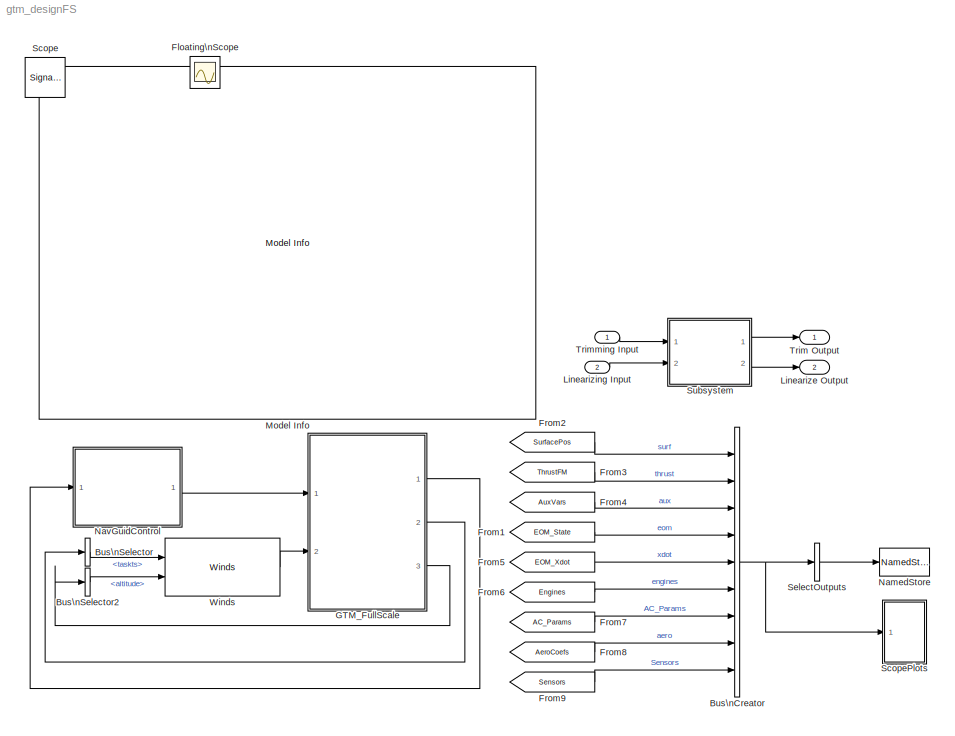
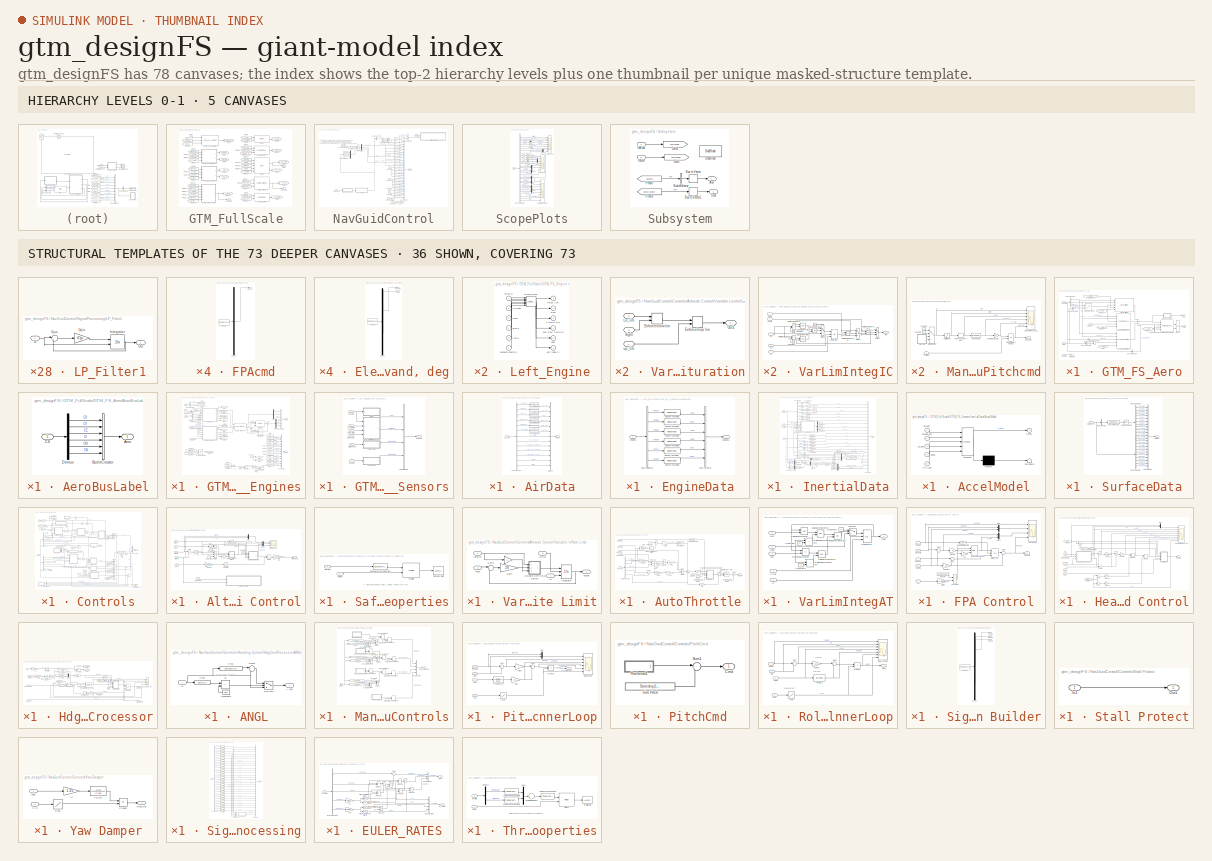
[diagram: thumbnail index - top-2 hierarchy levels (5 canvases) + 36 structural-template representatives of the remaining 73 canvases]
MODEL gtm_designFS
KIND model
CONFIG StopFcn = MWSout=grabmws(bdroot);\nMWSout.lastrun=datestr(now);\n
BLOCK [BusCreator] Bus\nCreator
  DisplayOption = bar
  Inputs = 9
  Ports = [9, 1]
  SID = 3
BLOCK [BusSelector] Bus\nSelector
  OutputSignals = taskts
  Ports = [1, 1]
  SID = 1494
BLOCK [BusSelector] Bus\nSelector2
  OutputSignals = altitude
  Ports = [1, 1]
  SID = 1498
BLOCK [Scope] Floating\nScope
  DataFormat = StructureWithTime
  Floating = on
  IOType = viewer
  NumInputPorts = 1
  Ports = []
  SID = 359
  SampleTime = 0
  ShowLegends = off
  YMax = 7
  YMin = 0
BLOCK [From] From1
  CloseFcn = tagdialog Close
  GotoTag = EOM_State
  SID = 6
  TagVisibility = global
BLOCK [From] From2
  CloseFcn = tagdialog Close
  GotoTag = SurfacePos
  SID = 7
  TagVisibility = global
BLOCK [From] From3
  CloseFcn = tagdialog Close
  GotoTag = ThrustFM
  SID = 8
  TagVisibility = global
BLOCK [From] From4
  CloseFcn = tagdialog Close
  GotoTag = AuxVars
  SID = 9
  TagVisibility = global
BLOCK [From] From5
  CloseFcn = tagdialog Close
  GotoTag = EOM_Xdot
  SID = 10
  TagVisibility = global
BLOCK [From] From6
  CloseFcn = tagdialog Close
  GotoTag = Engines
  SID = 11
  TagVisibility = global
BLOCK [From] From7
  CloseFcn = tagdialog Close
  GotoTag = AC_Params
  SID = 12
  TagVisibility = global
BLOCK [From] From8
  CloseFcn = tagdialog Close
  GotoTag = AeroCoefs
  SID = 13
  TagVisibility = global
BLOCK [From] From9
  CloseFcn = tagdialog Close
  GotoTag = Sensors
  SID = 14
  TagVisibility = global
BLOCK [SubSystem] GTM_FullScale
  FunctionWithSeparateData = off
  MaskHideContents = off
  MinAlgLoopOccurrences = off
  Opaque = off
  Ports = [2, 3]
  PropExecContextOutsideSubsystem = off
  RTWSystemCode = Auto
  RequestExecContextInheritance = off
  SID = 15
BLOCK [Reference] GTM_FullScale/A//C parameters  REF=acparams_lib/A//C parameters
  Ports = [2, 1]
  SID = 18
  SourceBlock = acparams_lib/A//C parameters
  SourceType = SubSystem
BLOCK [Outport] GTM_FullScale/AuxVars
  IconDisplay = Port number
  Port = 2
  SID = 1496
BLOCK [Reference] GTM_FullScale/AuxiliaryVariables  REF=auxvars_lib/AuxiliaryVariables
  Ports = [3, 1]
  SID = 19
  SourceBlock = auxvars_lib/AuxiliaryVariables
  SourceType = SubSystem
BLOCK [Inport] GTM_FullScale/Cmds
  IconDisplay = Port number
  SID = 16
BLOCK [Reference] GTM_FullScale/EOM  REF=eomlib/EOM
  Ports = [5, 2]
  SID = 20
  SourceBlock = eomlib/EOM
  SourceType = SubSystem
BLOCK [From] GTM_FullScale/From
  CloseFcn = tagdialog Close
  GotoTag = EOM_State
  SID = 21
  TagVisibility = global
BLOCK [From] GTM_FullScale/From1
  CloseFcn = tagdialog Close
  GotoTag = EOM_State
  SID = 22
  TagVisibility = global
BLOCK [From] GTM_FullScale/From10
  CloseFcn = tagdialog Close
  GotoTag = SurfacePos
  SID = 23
  TagVisibility = global
BLOCK [From] GTM_FullScale/From11
  CloseFcn = tagdialog Close
  GotoTag = EOM_State
  SID = 24
  TagVisibility = global
BLOCK [From] GTM_FullScale/From12
  CloseFcn = tagdialog Close
  GotoTag = AC_Params
  SID = 25
  TagVisibility = global
BLOCK [From] GTM_FullScale/From13
  CloseFcn = tagdialog Close
  GotoTag = AuxVars
  SID = 26
  TagVisibility = global
BLOCK [From] GTM_FullScale/From14
  CloseFcn = tagdialog Close
  GotoTag = EOM_Xdot
  SID = 27
  TagVisibility = global
BLOCK [From] GTM_FullScale/From15
  CloseFcn = tagdialog Close
  GotoTag = SurfacePos
  SID = 28
  TagVisibility = global
BLOCK [From] GTM_FullScale/From16
  CloseFcn = tagdialog Close
  GotoTag = Engines
  SID = 29
  TagVisibility = global
BLOCK [From] GTM_FullScale/From17
  CloseFcn = tagdialog Close
  GotoTag = EOM_Xdot
  SID = 30
  TagVisibility = global
BLOCK [From] GTM_FullScale/From18
  CloseFcn = tagdialog Close
  GotoTag = SurfacePos
  SID = 31
  TagVisibility = global
BLOCK [From] GTM_FullScale/From19
  CloseFcn = tagdialog Close
  GotoTag = Engines
  SID = 32
  TagVisibility = global
BLOCK [From] GTM_FullScale/From2
  CloseFcn = tagdialog Close
  GotoTag = AC_Params
  SID = 33
  TagVisibility = global
BLOCK [From] GTM_FullScale/From20
  CloseFcn = tagdialog Close
  GotoTag = AC_Params
  SID = 34
  TagVisibility = global
BLOCK [From] GTM_FullScale/From21
  CloseFcn = tagdialog Close
  GotoTag = SurfacePos
  SID = 35
  TagVisibility = global
BLOCK [From] GTM_FullScale/From22
  CloseFcn = tagdialog Close
  GotoTag = SurfacePos
  SID = 36
  TagVisibility = global
BLOCK [From] GTM_FullScale/From23
  CloseFcn = tagdialog Close
  GotoTag = ThrustFM
  SID = 37
  TagVisibility = global
BLOCK [From] GTM_FullScale/From24
  CloseFcn = tagdialog Close
  GotoTag = AeroFM
  SID = 38
  TagVisibility = global
BLOCK [From] GTM_FullScale/From25
  CloseFcn = tagdialog Close
  GotoTag = GravityFM
  SID = 39
  TagVisibility = global
BLOCK [From] GTM_FullScale/From26
  CloseFcn = tagdialog Close
  GotoTag = GearFM
  SID = 40
  TagVisibility = global
BLOCK [From] GTM_FullScale/From27
  CloseFcn = tagdialog Close
  GotoTag = AuxVars
  SID = 41
  TagVisibility = global
BLOCK [From] GTM_FullScale/From28
  CloseFcn = tagdialog Close
  GotoTag = Sensors
  SID = 42
  TagVisibility = global
BLOCK [From] GTM_FullScale/From3
  CloseFcn = tagdialog Close
  GotoTag = AuxVars
  SID = 43
  TagVisibility = global
BLOCK [From] GTM_FullScale/From4
  CloseFcn = tagdialog Close
  GotoTag = AuxVars
  SID = 44
  TagVisibility = global
BLOCK [From] GTM_FullScale/From5
  CloseFcn = tagdialog Close
  GotoTag = EOM_State
  SID = 45
  TagVisibility = global
BLOCK [From] GTM_FullScale/From6
  CloseFcn = tagdialog Close
  GotoTag = AC_Params
  SID = 46
  TagVisibility = global
BLOCK [From] GTM_FullScale/From7
  CloseFcn = tagdialog Close
  GotoTag = EOM_State
  SID = 47
  TagVisibility = global
BLOCK [From] GTM_FullScale/From8
  CloseFcn = tagdialog Close
  GotoTag = AuxVars
  SID = 48
  TagVisibility = global
BLOCK [From] GTM_FullScale/From9
  CloseFcn = tagdialog Close
  GotoTag = Engines
  SID = 49
  TagVisibility = global
BLOCK [Reference] GTM_FullScale/GTM_FS_Actuators  REF=actuator_FS_lib/GTM_FS_Actuators
  Ports = [3, 1]
  SID = 50
  SourceBlock = actuator_FS_lib/GTM_FS_Actuators
  SourceType = SubSystem
BLOCK [SubSystem] GTM_FullScale/GTM_FS_Aero
  FunctionWithSeparateData = off
  MaskHideContents = off
  MinAlgLoopOccurrences = off
  Opaque = off
  Ports = [4, 2]
  PropExecContextOutsideSubsystem = off
  RTWSystemCode = Auto
  RequestExecContextInheritance = off
  SID = 51
BLOCK [Outport] GTM_FullScale/GTM_FS_Aero/Aero
  IconDisplay = Port number
  Port = 2
  SID = 82
BLOCK [SubSystem] GTM_FullScale/GTM_FS_Aero/AeroBusLabel
  FunctionWithSeparateData = off
  MaskHideContents = off
  MinAlgLoopOccurrences = off
  Opaque = off
  Ports = [1, 1]
  PropExecContextOutsideSubsystem = off
  RTWSystemCode = Auto
  RequestExecContextInheritance = off
  SID = 56
BLOCK [Outport] GTM_FullScale/GTM_FS_Aero/AeroBusLabel/Aero
  IconDisplay = Port number
  SID = 60
BLOCK [BusCreator] GTM_FullScale/GTM_FS_Aero/AeroBusLabel/Bus\nCreator
  DisplayOption = bar
  Inputs = 6
  Ports = [6, 1]
  SID = 58
BLOCK [Inport] GTM_FullScale/GTM_FS_Aero/AeroBusLabel/C6
  IconDisplay = Port number
  SID = 57
BLOCK [Demux] GTM_FullScale/GTM_FS_Aero/AeroBusLabel/Demux
  DisplayOption = bar
  Outputs = 6
  Ports = [1, 6]
  SID = 59
BLOCK [Inport] GTM_FullScale/GTM_FS_Aero/AuxVars
  IconDisplay = Port number
  Port = 2
  SID = 53
BLOCK [Reference] GTM_FullScale/GTM_FS_Aero/Basic Airframe  REF=GTM_FS_aerolib/Basic Airframe
  Ports = [5, 1]
  SID = 61
  SourceBlock = GTM_FS_aerolib/Basic Airframe
  SourceType = SubSystem
BLOCK [BusToVector] GTM_FullScale/GTM_FS_Aero/Bus to Vector5
  SID = 68
BLOCK [BusSelector] GTM_FullScale/GTM_FS_Aero/Bus\nSelector
  OutputSignals = alphadeg,betadeg,Mach
  Ports = [1, 3]
  SID = 62
BLOCK [BusSelector] GTM_FullScale/GTM_FS_Aero/Bus\nSelector1
  OutputSignals = CG,CP
  Ports = [1, 2]
  SID = 63
BLOCK [BusSelector] GTM_FullScale/GTM_FS_Aero/Bus\nSelector2
  OutputSignals = altitude
  Ports = [1, 1]
  SID = 64
BLOCK [BusSelector] GTM_FullScale/GTM_FS_Aero/Bus\nSelector6
  OutputSignals = taskts
  Ports = [1, 1]
  SID = 65
BLOCK [BusSelector] GTM_FullScale/GTM_FS_Aero/Bus\nSelector7
  OutputSignals = qbar_lbs/ft2
  Ports = [1, 1]
  SID = 66
BLOCK [BusSelector] GTM_FullScale/GTM_FS_Aero/Bus\nSelector8
  OutputAsBus = on
  OutputSignals = pb,qb,rb
  Ports = [1, 1]
  SID = 67
BLOCK [Reference] GTM_FullScale/GTM_FS_Aero/Coefficent\nEvaluation  REF=Coefficient_Evaluation_lib/Coefficent\nEvaluation
  Ports = [4, 2]
  SID = 69
  SourceBlock = Coefficient_Evaluation_lib/Coefficent\nEvaluation
  Sref = S
  b = b
  cbar = Cbar
BLOCK [Reference] GTM_FullScale/GTM_FS_Aero/Control Surfaces  REF=GTM_FS_aerolib/Control Surfaces
  Ports = [5, 1]
  SID = 70
  SourceBlock = GTM_FS_aerolib/Control Surfaces
  SourceType = SubSystem
BLOCK [Reference] GTM_FullScale/GTM_FS_Aero/Dynamic Derviatives  REF=GTM_FS_aerolib/Dynamic Derviatives
  Ports = [5, 1]
  SID = 71
  SourceBlock = GTM_FS_aerolib/Dynamic Derviatives
  SourceType = SubSystem
BLOCK [Inport] GTM_FullScale/GTM_FS_Aero/Engines
  IconDisplay = Port number
  Port = 4
  SID = 55
BLOCK [Outport] GTM_FullScale/GTM_FS_Aero/FM
  IconDisplay = Port number
  SID = 81
BLOCK [From] GTM_FullScale/GTM_FS_Aero/From2
  CloseFcn = tagdialog Close
  GotoTag = AC_Params
  SID = 72
  TagVisibility = global
BLOCK [From] GTM_FullScale/GTM_FS_Aero/From3
  CloseFcn = tagdialog Close
  GotoTag = AC_Params
  SID = 73
  TagVisibility = global
BLOCK [From] GTM_FullScale/GTM_FS_Aero/From4
  CloseFcn = tagdialog Close
  GotoTag = AC_Params
  SID = 74
  TagVisibility = global
BLOCK [From] GTM_FullScale/GTM_FS_Aero/From5
  CloseFcn = tagdialog Close
  GotoTag = AC_Params
  SID = 75
  TagVisibility = global
BLOCK [Reference] GTM_FullScale/GTM_FS_Aero/Label  REF=aero_lib/GTM_T2/Label
  Ports = [2, 1]
  SID = 76
  SourceBlock = aero_lib/GTM_T2/Label
  SourceType = SubSystem
BLOCK [Lookup2D] GTM_FullScale/GTM_FS_Aero/Reynolds\nNumber
  ColumnIndex = Aero.Reyn.alt
  InputSameDT = off
  RowIndex = Aero.Reyn.mach
  SID = 77
  SaturateOnIntegerOverflow = off
  Table = Aero.Reyn.data
BLOCK [Inport] GTM_FullScale/GTM_FS_Aero/State
  IconDisplay = Port number
  Port = 3
  SID = 54
BLOCK [Sum] GTM_FullScale/GTM_FS_Aero/Sum8
  Inputs = +++
  Ports = [3, 1]
  SID = 78
BLOCK [Inport] GTM_FullScale/GTM_FS_Aero/Surfaces
  IconDisplay = Port number
  SID = 52
BLOCK [Terminator] GTM_FullScale/GTM_FS_Aero/Terminator
  SID = 79
BLOCK [Constant] GTM_FullScale/GTM_FS_Aero/symmetry_on
  SID = 80
  Value = symmetric_aero_on
BLOCK [SubSystem] GTM_FullScale/GTM_FS_Engines
  FunctionWithSeparateData = off
  MaskHideContents = off
  MinAlgLoopOccurrences = off
  Opaque = off
  Ports = [4, 2]
  PropExecContextOutsideSubsystem = off
  RTWSystemCode = Auto
  RequestExecContextInheritance = off
  SID = 83
BLOCK [Reference] GTM_FullScale/GTM_FS_Engines/3D Vector\nCross Product  REF=Cross_Product_3D_lib/3D Vector\nCross Product
  Ports = [2, 1]
  SID = 88
  SourceBlock = Cross_Product_3D_lib/3D Vector\nCross Product
  SourceType = SubSystem
BLOCK [Inport] GTM_FullScale/GTM_FS_Engines/AC_Params
  IconDisplay = Port number
  Port = 4
  SID = 87
BLOCK [Sum] GTM_FullScale/GTM_FS_Engines/Add
  InputSameDT = off
  OutDataTypeStr = Inherit: Inherit via internal rule
  Ports = [2, 1]
  SID = 89
  SaturateOnIntegerOverflow = off
BLOCK [Inport] GTM_FullScale/GTM_FS_Engines/AuxVars
  IconDisplay = Port number
  Port = 2
  SID = 85
BLOCK [BusCreator] GTM_FullScale/GTM_FS_Engines/BusCreator1
  Inputs = 13
  Ports = [13, 1]
  SID = 93
BLOCK [BusCreator] GTM_FullScale/GTM_FS_Engines/Bus\nCreator
  DisplayOption = bar
  Inputs = 6
  Ports = [6, 1]
  SID = 90
BLOCK [BusSelector] GTM_FullScale/GTM_FS_Engines/Bus\nSelector2
  OutputAsBus = on
  OutputSignals = pb,qb,rb
  Ports = [1, 1]
  SID = 91
BLOCK [BusSelector] GTM_FullScale/GTM_FS_Engines/Bus\nSelector30
  OutputSignals = THROTL,THROTR
  Ports = [1, 2]
  SID = 92
BLOCK [Constant] GTM_FullScale/GTM_FS_Engines/Bypass1
  SID = 94
  Value = 0
BLOCK [Reference] GTM_FullScale/GTM_FS_Engines/CG torque  REF=engine_GTM_FS_lib/GTM_FS/CG torque
  Ports = [3, 1]
  SID = 95
  SourceBlock = engine_GTM_FS_lib/GTM_FS/CG torque
  SourceType = SubSystem
BLOCK [Constant] GTM_FullScale/GTM_FS_Engines/Constant2
  SID = 96
  Value = TrimModeOn
BLOCK [Constant] GTM_FullScale/GTM_FS_Engines/Constant3
  SID = 97
  Value = LinearizeModeOn
BLOCK [Demux] GTM_FullScale/GTM_FS_Engines/Demux
  DisplayOption = bar
  Outputs = 3
  Ports = [1, 3]
  SID = 98
BLOCK [Demux] GTM_FullScale/GTM_FS_Engines/Demux1
  DisplayOption = bar
  Outputs = 3
  Ports = [1, 3]
  SID = 99
BLOCK [Reference] GTM_FullScale/GTM_FS_Engines/Engine Alignment  REF=engine_GTM_FS_lib/GTM_FS/Engine Alignment
  Ports = [4, 4]
  SID = 100
  SourceBlock = engine_GTM_FS_lib/GTM_FS/Engine Alignment
  SourceType = Stateflow
BLOCK [Outport] GTM_FullScale/GTM_FS_Engines/Engines
  IconDisplay = Port number
  SID = 146
BLOCK [Outport] GTM_FullScale/GTM_FS_Engines/FM
  IconDisplay = Port number
  Port = 2
  PortDimensions = 6
  SID = 147
BLOCK [From] GTM_FullScale/GTM_FS_Engines/From
  CloseFcn = tagdialog Close
  GotoTag = RPML
  SID = 101
BLOCK [From] GTM_FullScale/GTM_FS_Engines/From1
  CloseFcn = tagdialog Close
  GotoTag = RPMR
  SID = 102
BLOCK [From] GTM_FullScale/GTM_FS_Engines/From10
  CloseFcn = tagdialog Close
  GotoTag = EPRL
  SID = 103
BLOCK [From] GTM_FullScale/GTM_FS_Engines/From11
  CloseFcn = tagdialog Close
  GotoTag = EPRR
  SID = 104
BLOCK [From] GTM_FullScale/GTM_FS_Engines/From12
  CloseFcn = tagdialog Close
  GotoTag = fuel_flow_l
  SID = 105
BLOCK [From] GTM_FullScale/GTM_FS_Engines/From13
  CloseFcn = tagdialog Close
  GotoTag = fuel_flow_r
  SID = 106
BLOCK [From] GTM_FullScale/GTM_FS_Engines/From14
  CloseFcn = tagdialog Close
  GotoTag = Bypass
  SID = 107
BLOCK [From] GTM_FullScale/GTM_FS_Engines/From15
  CloseFcn = tagdialog Close
  GotoTag = Bypass
  SID = 108
BLOCK [From] GTM_FullScale/GTM_FS_Engines/From16
  CloseFcn = tagdialog Close
  GotoTag = THRUSTL
  SID = 109
BLOCK [From] GTM_FullScale/GTM_FS_Engines/From17
  CloseFcn = tagdialog Close
  GotoTag = THRUSTR
  SID = 110
BLOCK [From] GTM_FullScale/GTM_FS_Engines/From2
  CloseFcn = tagdialog Close
  GotoTag = fuel_flow_l
  SID = 111
BLOCK [From] GTM_FullScale/GTM_FS_Engines/From3
  CloseFcn = tagdialog Close
  GotoTag = fuel_flow_r
  SID = 112
BLOCK [From] GTM_FullScale/GTM_FS_Engines/From4
  CloseFcn = tagdialog Close
  GotoTag = THROTLC
  SID = 113
BLOCK [From] GTM_FullScale/GTM_FS_Engines/From5
  CloseFcn = tagdialog Close
  GotoTag = THROTRC
  SID = 114
BLOCK [From] GTM_FullScale/GTM_FS_Engines/From6
  CloseFcn = tagdialog Close
  GotoTag = THROTLC
  SID = 115
BLOCK [From] GTM_FullScale/GTM_FS_Engines/From7
  CloseFcn = tagdialog Close
  GotoTag = THROTRC
  SID = 116
BLOCK [From] GTM_FullScale/GTM_FS_Engines/From8
  CloseFcn = tagdialog Close
  GotoTag = EGTL
  SID = 117
BLOCK [From] GTM_FullScale/GTM_FS_Engines/From9
  CloseFcn = tagdialog Close
  GotoTag = EGTR
  SID = 118
BLOCK [Goto] GTM_FullScale/GTM_FS_Engines/Goto1
  GotoTag = RPML
  SID = 119
BLOCK [Goto] GTM_FullScale/GTM_FS_Engines/Goto10
  GotoTag = fuel_flow_r
  SID = 120
BLOCK [Goto] GTM_FullScale/GTM_FS_Engines/Goto11
  GotoTag = THRUSTL
  SID = 121
BLOCK [Goto] GTM_FullScale/GTM_FS_Engines/Goto12
  GotoTag = Bypass
  SID = 122
BLOCK [Goto] GTM_FullScale/GTM_FS_Engines/Goto13
  GotoTag = THRUSTR
  SID = 123
BLOCK [Goto] GTM_FullScale/GTM_FS_Engines/Goto2
  GotoTag = RPMR
  SID = 124
BLOCK [Goto] GTM_FullScale/GTM_FS_Engines/Goto3
  GotoTag = EPRL
  SID = 125
BLOCK [Goto] GTM_FullScale/GTM_FS_Engines/Goto4
  GotoTag = EPRR
  SID = 126
BLOCK [Goto] GTM_FullScale/GTM_FS_Engines/Goto5
  GotoTag = THROTLC
  SID = 127
BLOCK [Goto] GTM_FullScale/GTM_FS_Engines/Goto6
  GotoTag = THROTRC
  SID = 128
BLOCK [Goto] GTM_FullScale/GTM_FS_Engines/Goto7
  GotoTag = EGTL
  SID = 129
BLOCK [Goto] GTM_FullScale/GTM_FS_Engines/Goto8
  GotoTag = fuel_flow_l
  SID = 130
BLOCK [Goto] GTM_FullScale/GTM_FS_Engines/Goto9
  GotoTag = EGTR
  SID = 131
BLOCK [Integrator] GTM_FullScale/GTM_FS_Engines/Integrator2
  InitialConditionSource = external
  Ports = [2, 1]
  SID = 132
BLOCK [SubSystem] GTM_FullScale/GTM_FS_Engines/Left_Engine
  AttributesFormatString = %<BlockChoice>
  BlockChoice = Glenn_simp2
  FunctionWithSeparateData = off
  MaskHideContents = off
  MemberBlocks = GTM_FS_Simple,Glenn_simp2
  MinAlgLoopOccurrences = off
  Opaque = off
  Ports = [6, 6]
  PropExecContextOutsideSubsystem = off
  RTWSystemCode = Auto
  RequestExecContextInheritance = off
  SID = 133
  TemplateBlock = enginelib_FS/Engine_FS
BLOCK [Inport] GTM_FullScale/GTM_FS_Engines/Left_Engine/Altitude
  IconDisplay = Port number
  Port = 2
  SID = 133::3
BLOCK [Inport] GTM_FullScale/GTM_FS_Engines/Left_Engine/BypassDynamics
  IconDisplay = Port number
  Port = 6
  SID = 133::7
BLOCK [Outport] GTM_FullScale/GTM_FS_Engines/Left_Engine/EGT (deg C)
  IconDisplay = Port number
  Port = 6
  SID = 133::14
BLOCK [Outport] GTM_FullScale/GTM_FS_Engines/Left_Engine/EPR
  IconDisplay = Port number
  Port = 5
  SID = 133::13
BLOCK [Outport] GTM_FullScale/GTM_FS_Engines/Left_Engine/Fuel Flow (lbs//min)
  IconDisplay = Port number
  Port = 4
  SID = 133::12
BLOCK [Reference] GTM_FullScale/GTM_FS_Engines/Left_Engine/Glenn_simp2  REF=Glenn_simp2_engine_lib/Glenn_simp2
  Ports = [6, 6]
  SID = 133::16
  SourceBlock = Glenn_simp2_engine_lib/Glenn_simp2
  SourceType = SubSystem
BLOCK [Inport] GTM_FullScale/GTM_FS_Engines/Left_Engine/Mach
  IconDisplay = Port number
  Port = 3
  SID = 133::4
BLOCK [Outport] GTM_FullScale/GTM_FS_Engines/Left_Engine/RPM
  IconDisplay = Port number
  Port = 2
  SID = 133::10
BLOCK [Inport] GTM_FullScale/GTM_FS_Engines/Left_Engine/Throttle
  IconDisplay = Port number
  SID = 133::2
BLOCK [Outport] GTM_FullScale/GTM_FS_Engines/Left_Engine/Thrust (lbf)
  IconDisplay = Port number
  SID = 133::9
BLOCK [Outport] GTM_FullScale/GTM_FS_Engines/Left_Engine/h (slg-ft^2//s)
  IconDisplay = Port number
  Port = 3
  SID = 133::11
BLOCK [Inport] GTM_FullScale/GTM_FS_Engines/Left_Engine/pratio
  IconDisplay = Port number
  Port = 4
  SID = 133::5
BLOCK [Inport] GTM_FullScale/GTM_FS_Engines/Left_Engine/tratio
  IconDisplay = Port number
  Port = 5
  SID = 133::6
BLOCK [Logic] GTM_FullScale/GTM_FS_Engines/Logical\nOperator1
  AllPortsSameDT = off
  Operator = OR
  OutDataTypeStr = boolean
  Ports = [2, 1]
  SID = 134
BLOCK [SubSystem] GTM_FullScale/GTM_FS_Engines/Right_Engine
  AttributesFormatString = %<BlockChoice>
  BlockChoice = Glenn_simp2
  FunctionWithSeparateData = off
  MaskHideContents = off
  MemberBlocks = GTM_FS_Simple,Glenn_simp2
  MinAlgLoopOccurrences = off
  Opaque = off
  Ports = [6, 6]
  PropExecContextOutsideSubsystem = off
  RTWSystemCode = Auto
  RequestExecContextInheritance = off
  SID = 135
  TemplateBlock = enginelib_FS/Engine_FS
BLOCK [Inport] GTM_FullScale/GTM_FS_Engines/Right_Engine/Altitude
  IconDisplay = Port number
  Port = 2
  SID = 135::3
BLOCK [Inport] GTM_FullScale/GTM_FS_Engines/Right_Engine/BypassDynamics
  IconDisplay = Port number
  Port = 6
  SID = 135::7
BLOCK [Outport] GTM_FullScale/GTM_FS_Engines/Right_Engine/EGT (deg C)
  IconDisplay = Port number
  Port = 6
  SID = 135::14
BLOCK [Outport] GTM_FullScale/GTM_FS_Engines/Right_Engine/EPR
  IconDisplay = Port number
  Port = 5
  SID = 135::13
BLOCK [Outport] GTM_FullScale/GTM_FS_Engines/Right_Engine/Fuel Flow (lbs//min)
  IconDisplay = Port number
  Port = 4
  SID = 135::12
BLOCK [Reference] GTM_FullScale/GTM_FS_Engines/Right_Engine/Glenn_simp2  REF=Glenn_simp2_engine_lib/Glenn_simp2
  Ports = [6, 6]
  SID = 135::16
  SourceBlock = Glenn_simp2_engine_lib/Glenn_simp2
  SourceType = SubSystem
BLOCK [Inport] GTM_FullScale/GTM_FS_Engines/Right_Engine/Mach
  IconDisplay = Port number
  Port = 3
  SID = 135::4
BLOCK [Outport] GTM_FullScale/GTM_FS_Engines/Right_Engine/RPM
  IconDisplay = Port number
  Port = 2
  SID = 135::10
BLOCK [Inport] GTM_FullScale/GTM_FS_Engines/Right_Engine/Throttle
  IconDisplay = Port number
  SID = 135::2
BLOCK [Outport] GTM_FullScale/GTM_FS_Engines/Right_Engine/Thrust (lbf)
  IconDisplay = Port number
  SID = 135::9
BLOCK [Outport] GTM_FullScale/GTM_FS_Engines/Right_Engine/h (slg-ft^2//s)
  IconDisplay = Port number
  Port = 3
  SID = 135::11
BLOCK [Inport] GTM_FullScale/GTM_FS_Engines/Right_Engine/pratio
  IconDisplay = Port number
  Port = 4
  SID = 135::5
BLOCK [Inport] GTM_FullScale/GTM_FS_Engines/Right_Engine/tratio
  IconDisplay = Port number
  Port = 5
  SID = 135::6
BLOCK [BusSelector] GTM_FullScale/GTM_FS_Engines/SelectOutputs1
  OutputSignals = Mach,pratio,tratio
  Ports = [1, 3]
  SID = 136
BLOCK [BusSelector] GTM_FullScale/GTM_FS_Engines/SelectOutputs2
  OutputSignals = altitude
  Ports = [1, 1]
  SID = 137
BLOCK [Inport] GTM_FullScale/GTM_FS_Engines/State
  IconDisplay = Port number
  Port = 3
  SID = 86
BLOCK [InportShadow] GTM_FullScale/GTM_FS_Engines/State1
  IconDisplay = Port number
  LatchByDelayingOutsideSignal = off
  LatchInputForFeedbackSignals = off
  Port = 3
  SID = 138
BLOCK [Sum] GTM_FullScale/GTM_FS_Engines/Sum
  IconShape = round
  InputSameDT = off
  Inputs = |++
  OutDataTypeStr = Inherit: Inherit via internal rule
  Ports = [2, 1]
  SID = 139
  SaturateOnIntegerOverflow = off
BLOCK [Terminator] GTM_FullScale/GTM_FS_Engines/Terminator
  SID = 140
BLOCK [Terminator] GTM_FullScale/GTM_FS_Engines/Terminator1
  SID = 141
BLOCK [Inport] GTM_FullScale/GTM_FS_Engines/cmds
  IconDisplay = Port number
  SID = 84
BLOCK [ManualSwitch] GTM_FullScale/GTM_FS_Engines/fuel_in_use
  CurrentSetting = 0
  SID = 142
BLOCK [Gain] GTM_FullScale/GTM_FS_Engines/sec_per_min
  Gain = 1.0/60.
  SID = 143
BLOCK [Constant] GTM_FullScale/GTM_FS_Engines/zero1
  SID = 144
  Value = 0
BLOCK [Constant] GTM_FullScale/GTM_FS_Engines/zero2
  SID = 145
  Value = 0
BLOCK [SubSystem] GTM_FullScale/GTM_FS_Sensors
  FunctionWithSeparateData = off
  MaskHideContents = off
  MinAlgLoopOccurrences = off
  Opaque = off
  Ports = [6, 1]
  PropExecContextOutsideSubsystem = off
  RTWSystemCode = Auto
  RequestExecContextInheritance = off
  SID = 148
BLOCK [Inport] GTM_FullScale/GTM_FS_Sensors/AC_Params
  IconDisplay = Port number
  Port = 3
  SID = 151
BLOCK [SubSystem] GTM_FullScale/GTM_FS_Sensors/AirData
  FunctionWithSeparateData = off
  MaskHideContents = off
  MinAlgLoopOccurrences = off
  Opaque = off
  Ports = [1, 1]
  PropExecContextOutsideSubsystem = off
  RTWSystemCode = Auto
  RequestExecContextInheritance = off
  SID = 155
BLOCK [Outport] GTM_FullScale/GTM_FS_Sensors/AirData/AirData
  IconDisplay = Port number
  SID = 165
BLOCK [Inport] GTM_FullScale/GTM_FS_Sensors/AirData/AuxVars
  IconDisplay = Port number
  SID = 156
BLOCK [BusSelector] GTM_FullScale/GTM_FS_Sensors/AirData/Bus\nSelector
  OutputSignals = caskts,taskts,Mach,alphadeg,betadeg,qbar_lbs/ft2,qc_lbs/ft2,TAT_degC,TotalPres_lbsPerFt2,pressure_lbsPerFt2,temperature_degK,pratio,tratio
  Ports = [1, 13]
  SID = 157
BLOCK [Reference] GTM_FullScale/GTM_FS_Sensors/AirData/Sensor\nModel1  REF=NoiseModel_lib/NoiseModel
  Ports = [1, 1]
  SID = 158
  SourceBlock = NoiseModel_lib/NoiseModel
  SourceType = Sensor Model
  bias = SensorNoise.KTAS.Bias
  noise_on = SensorNoise.On
  scf = SensorNoise.KTAS.Scf
  seed = 278234
  sigma = SensorNoise.KTAS.Std
BLOCK [Reference] GTM_FullScale/GTM_FS_Sensors/AirData/Sensor\nModel2  REF=NoiseModel_lib/NoiseModel
  Ports = [1, 1]
  SID = 159
  SourceBlock = NoiseModel_lib/NoiseModel
  SourceType = Sensor Model
  bias = SensorNoise.mach.Bias
  noise_on = SensorNoise.On
  scf = SensorNoise.mach.Scf
  seed = 278234
  sigma = SensorNoise.mach.Std
BLOCK [Reference] GTM_FullScale/GTM_FS_Sensors/AirData/Sensor\nModel3  REF=NoiseModel_lib/NoiseModel
  Ports = [1, 1]
  SID = 160
  SourceBlock = NoiseModel_lib/NoiseModel
  SourceType = Sensor Model
  bias = SensorNoise.alpha.Bias
  noise_on = SensorNoise.On
  scf = SensorNoise.alpha.Scf
  seed = 278234
  sigma = SensorNoise.alpha.Std
BLOCK [Reference] GTM_FullScale/GTM_FS_Sensors/AirData/Sensor\nModel4  REF=NoiseModel_lib/NoiseModel
  Ports = [1, 1]
  SID = 161
  SourceBlock = NoiseModel_lib/NoiseModel
  SourceType = Sensor Model
  bias = SensorNoise.beta.Bias
  noise_on = SensorNoise.On
  scf = SensorNoise.beta.Scf
  seed = 278234
  sigma = SensorNoise.beta.Std
BLOCK [Reference] GTM_FullScale/GTM_FS_Sensors/AirData/Sensor\nModel5  REF=NoiseModel_lib/NoiseModel
  Ports = [1, 1]
  SID = 162
  SourceBlock = NoiseModel_lib/NoiseModel
  SourceType = Sensor Model
  bias = SensorNoise.KCAS.Bias
  noise_on = SensorNoise.On
  scf = SensorNoise.KCAS.Scf
  seed = 278234
  sigma = SensorNoise.KCAS.Std
BLOCK [Reference] GTM_FullScale/GTM_FS_Sensors/AirData/Sensor\nModel6  REF=NoiseModel_lib/NoiseModel
  Ports = [1, 1]
  SID = 163
  SourceBlock = NoiseModel_lib/NoiseModel
  SourceType = Sensor Model
  bias = SensorNoise.dyn_press.Bias
  noise_on = SensorNoise.On
  scf = SensorNoise.dyn_press.Scf
  seed = 278234
  sigma = SensorNoise.dyn_press.Std
BLOCK [BusCreator] GTM_FullScale/GTM_FS_Sensors/AirData/pitot bus
  DisplayOption = bar
  Inputs = 13
  Ports = [13, 1]
  SID = 164
BLOCK [Inport] GTM_FullScale/GTM_FS_Sensors/AuxVars
  IconDisplay = Port number
  Port = 4
  SID = 152
BLOCK [BusCreator] GTM_FullScale/GTM_FS_Sensors/Bus\nCreator
  DisplayOption = bar
  Ports = [4, 1]
  SID = 166
BLOCK [Inport] GTM_FullScale/GTM_FS_Sensors/EOM_State
  IconDisplay = Port number
  SID = 149
BLOCK [Inport] GTM_FullScale/GTM_FS_Sensors/EOM_Xdot
  IconDisplay = Port number
  Port = 2
  SID = 150
BLOCK [SubSystem] GTM_FullScale/GTM_FS_Sensors/EngineData
  FunctionWithSeparateData = off
  MaskHideContents = off
  MinAlgLoopOccurrences = off
  Opaque = off
  Ports = [1, 1]
  PropExecContextOutsideSubsystem = off
  RTWSystemCode = Auto
  RequestExecContextInheritance = off
  SID = 167
BLOCK [BusCreator] GTM_FullScale/GTM_FS_Sensors/EngineData/Bus\nCreator
  DisplayOption = bar
  Inputs = 6
  Ports = [6, 1]
  SID = 169
BLOCK [BusSelector] GTM_FullScale/GTM_FS_Sensors/EngineData/Bus\nSelector
  OutputSignals = EPRL,EPRR,RPML,RPMR,EGTL,EGTR
  Ports = [1, 6]
  SID = 170
BLOCK [Outport] GTM_FullScale/GTM_FS_Sensors/EngineData/EngData
  IconDisplay = Port number
  SID = 177
BLOCK [Inport] GTM_FullScale/GTM_FS_Sensors/EngineData/Engines
  IconDisplay = Port number
  SID = 168
BLOCK [Reference] GTM_FullScale/GTM_FS_Sensors/EngineData/Sensor\nModel1  REF=NoiseModel_lib/NoiseModel
  Ports = [1, 1]
  SID = 171
  SourceBlock = NoiseModel_lib/NoiseModel
  SourceType = Sensor Model
  bias = SensorNoise.alpha.Bias
  noise_on = SensorNoise.On
  scf = SensorNoise.alpha.Scf
  seed = 278234
  sigma = SensorNoise.alpha.Std
BLOCK [Reference] GTM_FullScale/GTM_FS_Sensors/EngineData/Sensor\nModel2  REF=NoiseModel_lib/NoiseModel
  Ports = [1, 1]
  SID = 172
  SourceBlock = NoiseModel_lib/NoiseModel
  SourceType = Sensor Model
  bias = SensorNoise.alpha.Bias
  noise_on = SensorNoise.On
  scf = SensorNoise.alpha.Scf
  seed = 278234
  sigma = SensorNoise.alpha.Std
BLOCK [Reference] GTM_FullScale/GTM_FS_Sensors/EngineData/Sensor\nModel3  REF=NoiseModel_lib/NoiseModel
  Ports = [1, 1]
  SID = 173
  SourceBlock = NoiseModel_lib/NoiseModel
  SourceType = Sensor Model
  bias = SensorNoise.alpha.Bias
  noise_on = SensorNoise.On
  scf = SensorNoise.alpha.Scf
  seed = 278234
  sigma = SensorNoise.alpha.Std
BLOCK [Reference] GTM_FullScale/GTM_FS_Sensors/EngineData/Sensor\nModel4  REF=NoiseModel_lib/NoiseModel
  Ports = [1, 1]
  SID = 174
  SourceBlock = NoiseModel_lib/NoiseModel
  SourceType = Sensor Model
  bias = SensorNoise.alpha.Bias
  noise_on = SensorNoise.On
  scf = SensorNoise.alpha.Scf
  seed = 278234
  sigma = SensorNoise.alpha.Std
BLOCK [Reference] GTM_FullScale/GTM_FS_Sensors/EngineData/Sensor\nModel5  REF=NoiseModel_lib/NoiseModel
  Ports = [1, 1]
  SID = 175
  SourceBlock = NoiseModel_lib/NoiseModel
  SourceType = Sensor Model
  bias = SensorNoise.alpha.Bias
  noise_on = SensorNoise.On
  scf = SensorNoise.alpha.Scf
  seed = 278234
  sigma = SensorNoise.alpha.Std
BLOCK [Reference] GTM_FullScale/GTM_FS_Sensors/EngineData/Sensor\nModel6  REF=NoiseModel_lib/NoiseModel
  Ports = [1, 1]
  SID = 176
  SourceBlock = NoiseModel_lib/NoiseModel
  SourceType = Sensor Model
  bias = SensorNoise.alpha.Bias
  noise_on = SensorNoise.On
  scf = SensorNoise.alpha.Scf
  seed = 278234
  sigma = SensorNoise.alpha.Std
BLOCK [Inport] GTM_FullScale/GTM_FS_Sensors/Engines
  IconDisplay = Port number
  Port = 6
  SID = 154
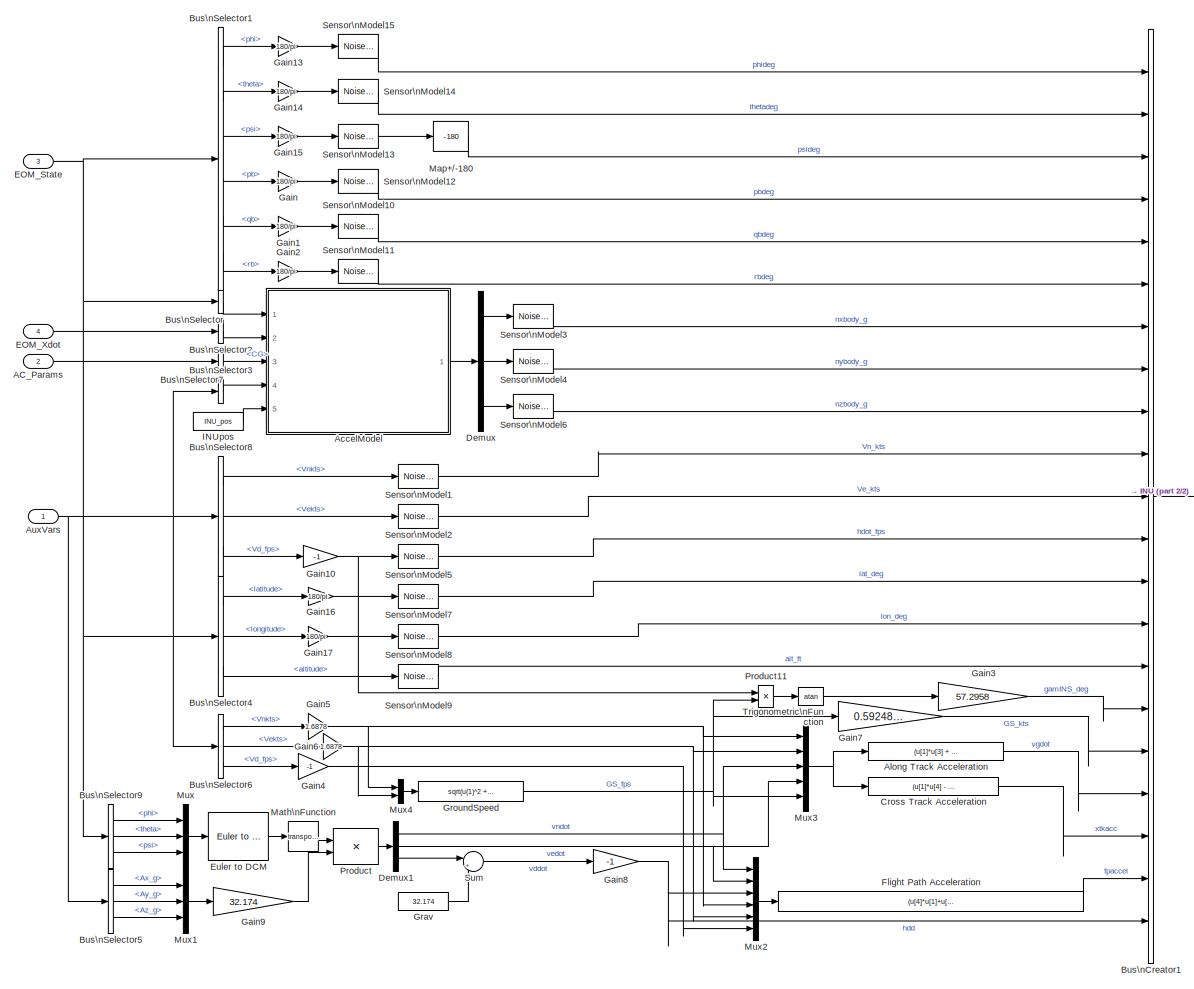
[diagram: GTM_FullScale/GTM_FS_Sensors/InertialData - part 1/2, most of the canvas]
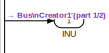
[diagram: GTM_FullScale/GTM_FS_Sensors/InertialData - part 2/2, middle right region]
BLOCK [SubSystem] GTM_FullScale/GTM_FS_Sensors/InertialData
  FunctionWithSeparateData = off
  MaskHideContents = off
  MinAlgLoopOccurrences = off
  Opaque = off
  Ports = [4, 1]
  PropExecContextOutsideSubsystem = off
  RTWSystemCode = Auto
  RequestExecContextInheritance = off
  SID = 178
BLOCK [Inport] GTM_FullScale/GTM_FS_Sensors/InertialData/AC_Params
  IconDisplay = Port number
  Port = 2
  SID = 180
BLOCK [SubSystem] GTM_FullScale/GTM_FS_Sensors/InertialData/AccelModel
  ErrorFcn = Stateflow.Translate.translate
  FunctionWithSeparateData = off
  MaskHideContents = off
  MinAlgLoopOccurrences = off
  Opaque = off
  PermitHierarchicalResolution = ExplicitOnly
  Ports = [5, 1]
  PropExecContextOutsideSubsystem = off
  RTWSystemCode = Auto
  RequestExecContextInheritance = off
  SFBlockType = MATLAB Function
  SID = 183
  TreatAsAtomicUnit = on
BLOCK [Demux] GTM_FullScale/GTM_FS_Sensors/InertialData/AccelModel/ Demux 
  Outputs = 1
  Ports = [1, 1]
  SID = 183::19
BLOCK [S-Function] GTM_FullScale/GTM_FS_Sensors/InertialData/AccelModel/ SFunction 
  EnableBusSupport = on
  FunctionName = sf_sfun
  PortCounts = [5 2]
  Ports = [5, 2]
  SID = 183::18
  Tag = Stateflow S-Function gtm_designFS 2
BLOCK [Terminator] GTM_FullScale/GTM_FS_Sensors/InertialData/AccelModel/ Terminator 
  SID = 183::21
BLOCK [Inport] GTM_FullScale/GTM_FS_Sensors/InertialData/AccelModel/INU_pos
  IconDisplay = Port number
  Port = 5
  SID = 183::5
BLOCK [Inport] GTM_FullScale/GTM_FS_Sensors/InertialData/AccelModel/cg_pos
  IconDisplay = Port number
  Port = 3
  SID = 183::3
BLOCK [Outport] GTM_FullScale/GTM_FS_Sensors/InertialData/AccelModel/n_body
  IconDisplay = Port number
  SID = 183::9
BLOCK [Inport] GTM_FullScale/GTM_FS_Sensors/InertialData/AccelModel/nbody
  IconDisplay = Port number
  Port = 4
  SID = 183::4
BLOCK [Inport] GTM_FullScale/GTM_FS_Sensors/InertialData/AccelModel/omega
  IconDisplay = Port number
  SID = 183::1
BLOCK [Inport] GTM_FullScale/GTM_FS_Sensors/InertialData/AccelModel/omega_dot
  IconDisplay = Port number
  Port = 2
  SID = 183::2
BLOCK [Fcn] GTM_FullScale/GTM_FS_Sensors/InertialData/Along Track Acceleration
  Expr = (u[1]*u[3] + u[2]*u[4])/u[5]
  SID = 184
BLOCK [Inport] GTM_FullScale/GTM_FS_Sensors/InertialData/AuxVars
  IconDisplay = Port number
  SID = 179
BLOCK [BusCreator] GTM_FullScale/GTM_FS_Sensors/InertialData/Bus\nCreator1
  DisplayOption = bar
  Inputs = 21
  Ports = [21, 1]
  SID = 185
BLOCK [BusSelector] GTM_FullScale/GTM_FS_Sensors/InertialData/Bus\nSelector
  OutputAsBus = on
  OutputSignals = pb,qb,rb
  Ports = [1, 1]
  SID = 186
BLOCK [BusSelector] GTM_FullScale/GTM_FS_Sensors/InertialData/Bus\nSelector1
  OutputSignals = phi,theta,psi,pb,qb,rb
  Ports = [1, 6]
  SID = 187
BLOCK [BusSelector] GTM_FullScale/GTM_FS_Sensors/InertialData/Bus\nSelector2
  OutputAsBus = on
  OutputSignals = pb_dot,qb_dot,rb_dot
  Ports = [1, 1]
  SID = 188
BLOCK [BusSelector] GTM_FullScale/GTM_FS_Sensors/InertialData/Bus\nSelector3
  OutputAsBus = on
  OutputSignals = Ax_g,Ay_g,Az_g
  Ports = [1, 1]
  SID = 189
BLOCK [BusSelector] GTM_FullScale/GTM_FS_Sensors/InertialData/Bus\nSelector4
  OutputSignals = latitude,longitude,altitude
  Ports = [1, 3]
  SID = 190
BLOCK [BusSelector] GTM_FullScale/GTM_FS_Sensors/InertialData/Bus\nSelector5
  OutputSignals = Ax_g,Ay_g,Az_g
  Ports = [1, 3]
  SID = 191
BLOCK [BusSelector] GTM_FullScale/GTM_FS_Sensors/InertialData/Bus\nSelector6
  OutputSignals = Vnkts,Vekts,Vd_fps
  Ports = [1, 3]
  SID = 192
BLOCK [BusSelector] GTM_FullScale/GTM_FS_Sensors/InertialData/Bus\nSelector7
  OutputSignals = CG
  Ports = [1, 1]
  SID = 193
BLOCK [BusSelector] GTM_FullScale/GTM_FS_Sensors/InertialData/Bus\nSelector8
  OutputSignals = Vnkts,Vekts,Vd_fps
  Ports = [1, 3]
  SID = 194
BLOCK [BusSelector] GTM_FullScale/GTM_FS_Sensors/InertialData/Bus\nSelector9
  OutputSignals = phi,theta,psi
  Ports = [1, 3]
  SID = 195
BLOCK [Fcn] GTM_FullScale/GTM_FS_Sensors/InertialData/Cross Track Acceleration
  Expr = (u[1]*u[4] - u[2]*u[3])/u[5]
  SID = 196
BLOCK [Demux] GTM_FullScale/GTM_FS_Sensors/InertialData/Demux
  DisplayOption = bar
  Outputs = 3
  Ports = [1, 3]
  SID = 197
BLOCK [Demux] GTM_FullScale/GTM_FS_Sensors/InertialData/Demux1
  DisplayOption = bar
  Outputs = 3
  Ports = [1, 3]
  SID = 198
BLOCK [Inport] GTM_FullScale/GTM_FS_Sensors/InertialData/EOM_State
  IconDisplay = Port number
  Port = 3
  SID = 181
BLOCK [Inport] GTM_FullScale/GTM_FS_Sensors/InertialData/EOM_Xdot
  IconDisplay = Port number
  Port = 4
  SID = 182
BLOCK [Reference] GTM_FullScale/GTM_FS_Sensors/InertialData/Euler to DCM  REF=Euler_to_DCM_lib/Euler to DCM
  Ports = [1, 1]
  SID = 199
  SourceBlock = Euler_to_DCM_lib/Euler to DCM
  SourceType = SubSystem
BLOCK [Fcn] GTM_FullScale/GTM_FS_Sensors/InertialData/Flight Path Acceleration
  Expr = (u[4]*u[1]+u[5]*u[2]+u[6]*u[3])/sqrt(u[4]*u[4]+u[5]*u[5]+u[6]*u[6])
  SID = 200
BLOCK [Gain] GTM_FullScale/GTM_FS_Sensors/InertialData/Gain
  Gain = 180/pi
  OutDataTypeStr = Inherit: Inherit via internal rule
  ParamDataTypeStr = Inherit: Inherit via internal rule
  SID = 201
  SaturateOnIntegerOverflow = off
BLOCK [Gain] GTM_FullScale/GTM_FS_Sensors/InertialData/Gain1
  Gain = 180/pi
  OutDataTypeStr = Inherit: Inherit via internal rule
  ParamDataTypeStr = Inherit: Inherit via internal rule
  SID = 202
  SaturateOnIntegerOverflow = off
BLOCK [Gain] GTM_FullScale/GTM_FS_Sensors/InertialData/Gain10
  Gain = -1
  OutDataTypeStr = Inherit: Inherit via internal rule
  ParamDataTypeStr = Inherit: Inherit via internal rule
  SID = 834
  SaturateOnIntegerOverflow = off
BLOCK [Gain] GTM_FullScale/GTM_FS_Sensors/InertialData/Gain13
  Gain = 180/pi
  OutDataTypeStr = Inherit: Inherit via internal rule
  ParamDataTypeStr = Inherit: Inherit via internal rule
  SID = 204
  SaturateOnIntegerOverflow = off
BLOCK [Gain] GTM_FullScale/GTM_FS_Sensors/InertialData/Gain14
  Gain = 180/pi
  OutDataTypeStr = Inherit: Inherit via internal rule
  ParamDataTypeStr = Inherit: Inherit via internal rule
  SID = 205
  SaturateOnIntegerOverflow = off
BLOCK [Gain] GTM_FullScale/GTM_FS_Sensors/InertialData/Gain15
  Gain = 180/pi
  OutDataTypeStr = Inherit: Inherit via internal rule
  ParamDataTypeStr = Inherit: Inherit via internal rule
  SID = 206
  SaturateOnIntegerOverflow = off
BLOCK [Gain] GTM_FullScale/GTM_FS_Sensors/InertialData/Gain16
  Gain = 180/pi
  OutDataTypeStr = Inherit: Inherit via internal rule
  ParamDataTypeStr = Inherit: Inherit via internal rule
  SID = 207
  SaturateOnIntegerOverflow = off
BLOCK [Gain] GTM_FullScale/GTM_FS_Sensors/InertialData/Gain17
  Gain = 180/pi
  OutDataTypeStr = Inherit: Inherit via internal rule
  ParamDataTypeStr = Inherit: Inherit via internal rule
  SID = 208
  SaturateOnIntegerOverflow = off
BLOCK [Gain] GTM_FullScale/GTM_FS_Sensors/InertialData/Gain2
  Gain = 180/pi
  OutDataTypeStr = Inherit: Inherit via internal rule
  ParamDataTypeStr = Inherit: Inherit via internal rule
  SID = 209
  SaturateOnIntegerOverflow = off
BLOCK [Gain] GTM_FullScale/GTM_FS_Sensors/InertialData/Gain3
  Gain = 57.2958
  SID = 210
BLOCK [Gain] GTM_FullScale/GTM_FS_Sensors/InertialData/Gain4
  Gain = -1
  OutDataTypeStr = Inherit: Inherit via internal rule
  ParamDataTypeStr = Inherit: Inherit via internal rule
  SID = 211
  SaturateOnIntegerOverflow = off
BLOCK [Gain] GTM_FullScale/GTM_FS_Sensors/InertialData/Gain5
  Gain = 1.6878
  OutDataTypeStr = Inherit: Inherit via internal rule
  ParamDataTypeStr = Inherit: Inherit via internal rule
  SID = 212
  SaturateOnIntegerOverflow = off
BLOCK [Gain] GTM_FullScale/GTM_FS_Sensors/InertialData/Gain6
  Gain = 1.6878
  OutDataTypeStr = Inherit: Inherit via internal rule
  ParamDataTypeStr = Inherit: Inherit via internal rule
  SID = 213
  SaturateOnIntegerOverflow = off
BLOCK [Gain] GTM_FullScale/GTM_FS_Sensors/InertialData/Gain7
  Gain = 0.5924873
  SID = 214
BLOCK [Gain] GTM_FullScale/GTM_FS_Sensors/InertialData/Gain8
  Gain = -1
  SID = 215
BLOCK [Gain] GTM_FullScale/GTM_FS_Sensors/InertialData/Gain9
  Gain = 32.174
  SID = 216
BLOCK [Constant] GTM_FullScale/GTM_FS_Sensors/InertialData/Grav
  SID = 217
  Value = 32.174
  VectorParams1D = off
BLOCK [Fcn] GTM_FullScale/GTM_FS_Sensors/InertialData/GroundSpeed
  Expr = sqrt(u(1)^2 + u(2)^2)
  SID = 218
BLOCK [Outport] GTM_FullScale/GTM_FS_Sensors/InertialData/INU
  IconDisplay = Port number
  SID = 246
BLOCK [Constant] GTM_FullScale/GTM_FS_Sensors/InertialData/INUpos
  SID = 219
  Value = INU_pos
  VectorParams1D = off
BLOCK [Reference] GTM_FullScale/GTM_FS_Sensors/InertialData/Map+//-180  REF=sensors_T2_lib/GTM_T2/MIDG II 50 Hz/Map+//-180
  Ports = [1, 1]
  SID = 220
  SourceBlock = sensors_T2_lib/GTM_T2/MIDG II 50 Hz/Map+//-180
  SourceType = SubSystem
BLOCK [Math] GTM_FullScale/GTM_FS_Sensors/InertialData/Math\nFunction
  Operator = transpose
  Ports = [1, 1]
  SID = 221
BLOCK [Mux] GTM_FullScale/GTM_FS_Sensors/InertialData/Mux
  DisplayOption = bar
  Inputs = 3
  Ports = [3, 1]
  SID = 222
BLOCK [Mux] GTM_FullScale/GTM_FS_Sensors/InertialData/Mux1
  DisplayOption = bar
  Inputs = 3
  Ports = [3, 1]
  SID = 223
BLOCK [Mux] GTM_FullScale/GTM_FS_Sensors/InertialData/Mux2
  DisplayOption = bar
  Inputs = 6
  Ports = [6, 1]
  SID = 224
BLOCK [Mux] GTM_FullScale/GTM_FS_Sensors/InertialData/Mux3
  DisplayOption = bar
  Inputs = 5
  Ports = [5, 1]
  SID = 225
BLOCK [Mux] GTM_FullScale/GTM_FS_Sensors/InertialData/Mux4
  DisplayOption = bar
  Inputs = 2
  Ports = [2, 1]
  SID = 226
BLOCK [Product] GTM_FullScale/GTM_FS_Sensors/InertialData/Product
  InputSameDT = off
  Multiplication = Matrix(*)
  OutDataTypeStr = Inherit: Inherit via internal rule
  Ports = [2, 1]
  SID = 227
  SaturateOnIntegerOverflow = off
BLOCK [Product] GTM_FullScale/GTM_FS_Sensors/InertialData/Product11
  Inputs = */
  Ports = [2, 1]
  SID = 228
BLOCK [Reference] GTM_FullScale/GTM_FS_Sensors/InertialData/Sensor\nModel1  REF=NoiseModel_lib/NoiseModel
  Ports = [1, 1]
  SID = 229
  SourceBlock = NoiseModel_lib/NoiseModel
  SourceType = Sensor Model
  bias = SensorNoise.INU.Vn.Bias
  noise_on = SensorNoise.On
  scf = SensorNoise.INU.Vn.Scf
  seed = 878234
  sigma = SensorNoise.INU.Vn.Std
BLOCK [Reference] GTM_FullScale/GTM_FS_Sensors/InertialData/Sensor\nModel10  REF=NoiseModel_lib/NoiseModel
  Ports = [1, 1]
  SID = 230
  SourceBlock = NoiseModel_lib/NoiseModel
  SourceType = Sensor Model
  bias = SensorNoise.INU.qdeg.Bias
  noise_on = SensorNoise.On
  scf = SensorNoise.INU.qdeg.Scf
  seed = 871234
  sigma = SensorNoise.INU.qdeg.Std
BLOCK [Reference] GTM_FullScale/GTM_FS_Sensors/InertialData/Sensor\nModel11  REF=NoiseModel_lib/NoiseModel
  Ports = [1, 1]
  SID = 231
  SourceBlock = NoiseModel_lib/NoiseModel
  SourceType = Sensor Model
  bias = SensorNoise.INU.rdeg.Bias
  noise_on = SensorNoise.On
  scf = SensorNoise.INU.rdeg.Scf
  seed = 878134
  sigma = SensorNoise.INU.rdeg.Std
BLOCK [Reference] GTM_FullScale/GTM_FS_Sensors/InertialData/Sensor\nModel12  REF=NoiseModel_lib/NoiseModel
  Ports = [1, 1]
  SID = 232
  SourceBlock = NoiseModel_lib/NoiseModel
  SourceType = Sensor Model
  bias = SensorNoise.INU.pdeg.Bias
  noise_on = SensorNoise.On
  scf = SensorNoise.INU.pdeg.Scf
  seed = 878233
  sigma = SensorNoise.INU.pdeg.Std
BLOCK [Reference] GTM_FullScale/GTM_FS_Sensors/InertialData/Sensor\nModel13  REF=NoiseModel_lib/NoiseModel
  Ports = [1, 1]
  SID = 233
  SourceBlock = NoiseModel_lib/NoiseModel
  SourceType = Sensor Model
  bias = SensorNoise.INU.psi.Bias
  noise_on = SensorNoise.On
  scf = SensorNoise.INU.psi.Scf
  seed = 878232
  sigma = SensorNoise.INU.psi.Std
BLOCK [Reference] GTM_FullScale/GTM_FS_Sensors/InertialData/Sensor\nModel14  REF=NoiseModel_lib/NoiseModel
  Ports = [1, 1]
  SID = 234
  SourceBlock = NoiseModel_lib/NoiseModel
  SourceType = Sensor Model
  bias = SensorNoise.INU.theta.Bias
  noise_on = SensorNoise.On
  scf = SensorNoise.INU.theta.Scf
  seed = 878231
  sigma = SensorNoise.INU.theta.Std
BLOCK [Reference] GTM_FullScale/GTM_FS_Sensors/InertialData/Sensor\nModel15  REF=NoiseModel_lib/NoiseModel
  Ports = [1, 1]
  SID = 235
  SourceBlock = NoiseModel_lib/NoiseModel
  SourceType = Sensor Model
  bias = SensorNoise.INU.phi.Bias
  noise_on = SensorNoise.On
  scf = SensorNoise.INU.phi.Scf
  seed = 878230
  sigma = SensorNoise.INU.phi.Std
BLOCK [Reference] GTM_FullScale/GTM_FS_Sensors/InertialData/Sensor\nModel2  REF=NoiseModel_lib/NoiseModel
  Ports = [1, 1]
  SID = 236
  SourceBlock = NoiseModel_lib/NoiseModel
  SourceType = Sensor Model
  bias = SensorNoise.INU.Ve.Bias
  noise_on = SensorNoise.On
  scf = SensorNoise.INU.Ve.Scf
  seed = 8782345
  sigma = SensorNoise.INU.Ve.Std
BLOCK [Reference] GTM_FullScale/GTM_FS_Sensors/InertialData/Sensor\nModel3  REF=NoiseModel_lib/NoiseModel
  Ports = [1, 1]
  SID = 237
  SourceBlock = NoiseModel_lib/NoiseModel
  SourceType = Sensor Model
  bias = SensorNoise.INU.nxbody.Bias
  noise_on = SensorNoise.On
  scf = SensorNoise.INU.nxbody.Scf
  seed = 878234
  sigma = SensorNoise.INU.nxbody.Std
BLOCK [Reference] GTM_FullScale/GTM_FS_Sensors/InertialData/Sensor\nModel4  REF=NoiseModel_lib/NoiseModel
  Ports = [1, 1]
  SID = 238
  SourceBlock = NoiseModel_lib/NoiseModel
  SourceType = Sensor Model
  bias = SensorNoise.INU.nybody.Bias
  noise_on = SensorNoise.On
  scf = SensorNoise.INU.nybody.Scf
  seed = 8782345
  sigma = SensorNoise.INU.nybody.Std
BLOCK [Reference] GTM_FullScale/GTM_FS_Sensors/InertialData/Sensor\nModel5  REF=NoiseModel_lib/NoiseModel
  Ports = [1, 1]
  SID = 239
  SourceBlock = NoiseModel_lib/NoiseModel
  SourceType = Sensor Model
  bias = SensorNoise.INU.hdot.Bias
  noise_on = SensorNoise.On
  scf = SensorNoise.INU.hdot.Scf
  seed = 8782345
  sigma = SensorNoise.INU.hdot.Std
BLOCK [Reference] GTM_FullScale/GTM_FS_Sensors/InertialData/Sensor\nModel6  REF=NoiseModel_lib/NoiseModel
  Ports = [1, 1]
  SID = 240
  SourceBlock = NoiseModel_lib/NoiseModel
  SourceType = Sensor Model
  bias = SensorNoise.INU.nzbody.Bias
  noise_on = SensorNoise.On
  scf = SensorNoise.INU.nzbody.Scf
  seed = 878236
  sigma = SensorNoise.INU.nzbody.Std
BLOCK [Reference] GTM_FullScale/GTM_FS_Sensors/InertialData/Sensor\nModel7  REF=NoiseModel_lib/NoiseModel
  Ports = [1, 1]
  SID = 241
  SourceBlock = NoiseModel_lib/NoiseModel
  SourceType = Sensor Model
  bias = SensorNoise.INU.lat.Bias
  noise_on = SensorNoise.On
  scf = SensorNoise.INU.lat.Scf
  seed = 8782345
  sigma = SensorNoise.INU.lat.Std
BLOCK [Reference] GTM_FullScale/GTM_FS_Sensors/InertialData/Sensor\nModel8  REF=NoiseModel_lib/NoiseModel
  Ports = [1, 1]
  SID = 242
  SourceBlock = NoiseModel_lib/NoiseModel
  SourceType = Sensor Model
  bias = SensorNoise.INU.lon.Bias
  noise_on = SensorNoise.On
  scf = SensorNoise.INU.lon.Scf
  seed = 8782345
  sigma = SensorNoise.INU.lon.Std
BLOCK [Reference] GTM_FullScale/GTM_FS_Sensors/InertialData/Sensor\nModel9  REF=NoiseModel_lib/NoiseModel
  Ports = [1, 1]
  SID = 243
  SourceBlock = NoiseModel_lib/NoiseModel
  SourceType = Sensor Model
  bias = SensorNoise.INU.alt.Bias
  noise_on = SensorNoise.On
  scf = SensorNoise.INU.alt.Scf
  seed = 8782345
  sigma = SensorNoise.INU.alt.Std
BLOCK [Sum] GTM_FullScale/GTM_FS_Sensors/InertialData/Sum
  IconShape = round
  InputSameDT = off
  Inputs = |++
  OutDataTypeStr = Inherit: Inherit via internal rule
  Ports = [2, 1]
  SID = 244
  SaturateOnIntegerOverflow = off
BLOCK [Trigonometry] GTM_FullScale/GTM_FS_Sensors/InertialData/Trigonometric\nFunction
  Operator = atan
  Ports = [1, 1]
  SID = 245
BLOCK [Outport] GTM_FullScale/GTM_FS_Sensors/Sensors
  IconDisplay = Port number
  SID = 256
BLOCK [SubSystem] GTM_FullScale/GTM_FS_Sensors/SurfaceData
  FunctionWithSeparateData = off
  MaskHideContents = off
  MinAlgLoopOccurrences = off
  Opaque = off
  Ports = [1, 1]
  PropExecContextOutsideSubsystem = off
  RTWSystemCode = Auto
  RequestExecContextInheritance = off
  SID = 247
BLOCK [BusCreator] GTM_FullScale/GTM_FS_Sensors/SurfaceData/Bus\nCreator
  DisplayOption = bar
  Inputs = 22
  Ports = [22, 1]
  SID = 249
BLOCK [BusSelector] GTM_FullScale/GTM_FS_Sensors/SurfaceData/Bus\nSelector
  OutputAsBus = on
  OutputSignals = ELLOB,ELLIB,ELROB,ELRIB,AILL,AILR,RUDU,RUDL,FLAPLIB,FLAPLOB,FLAPRIB,FLAPROB
  Ports = [1, 1]
  SID = 250
BLOCK [BusSelector] GTM_FullScale/GTM_FS_Sensors/SurfaceData/Bus\nSelector1
  OutputSignals = ELLOB,ELLIB,ELROB,ELRIB,AILL,AILR,RUDU,RUDL,FLAPLIB,FLAPLOB,FLAPRIB,FLAPROB
  Ports = [1, 12]
  SID = 251
BLOCK [BusSelector] GTM_FullScale/GTM_FS_Sensors/SurfaceData/Bus\nSelector2
  OutputSignals = SPLLIB,SPLLOB,SPLRIB,SPLROB,STAB,GEAR,BRAKE,THROTL,THROTR,STEER
  Ports = [1, 10]
  SID = 252
BLOCK [Reference] GTM_FullScale/GTM_FS_Sensors/SurfaceData/Sensor\nModel5  REF=NoiseModel_lib/NoiseModel
  Ports = [1, 1]
  SID = 253
  SourceBlock = NoiseModel_lib/NoiseModel
  SourceType = Sensor Model
  bias = SensorNoise.pots.Bias
  noise_on = SensorNoise.On
  scf = SensorNoise.pots.Scf
  seed = 878239
  sigma = SensorNoise.pots.Std
BLOCK [Outport] GTM_FullScale/GTM_FS_Sensors/SurfaceData/SurfPos
  IconDisplay = Port number
  SID = 255
BLOCK [Inport] GTM_FullScale/GTM_FS_Sensors/SurfaceData/SurfacePos
  IconDisplay = Port number
  SID = 248
BLOCK [Reference] GTM_FullScale/GTM_FS_Sensors/SurfaceData/Surface\nLabels  REF=sensors_T2_lib/GTM_T2/Surface Pots/Surface\nLabels
  Ports = [1, 1]
  SID = 254
  SourceBlock = sensors_T2_lib/GTM_T2/Surface Pots/Surface\nLabels
  SourceType = SubSystem
BLOCK [Inport] GTM_FullScale/GTM_FS_Sensors/SurfacePos
  IconDisplay = Port number
  Port = 5
  SID = 153
BLOCK [Goto] GTM_FullScale/Goto
  GotoTag = EOM_State
  SID = 257
  TagVisibility = global
BLOCK [Goto] GTM_FullScale/Goto1
  GotoTag = AuxVars
  SID = 258
  TagVisibility = global
BLOCK [Goto] GTM_FullScale/Goto10
  GotoTag = GearFM
  SID = 259
  TagVisibility = global
BLOCK [Goto] GTM_FullScale/Goto12
  GotoTag = Sensors
  SID = 260
  TagVisibility = global
BLOCK [Goto] GTM_FullScale/Goto2
  GotoTag = SurfacePos
  SID = 261
  TagVisibility = global
BLOCK [Goto] GTM_FullScale/Goto3
  GotoTag = ThrustFM
  SID = 262
  TagVisibility = global
BLOCK [Goto] GTM_FullScale/Goto4
  GotoTag = AC_Params
  SID = 263
  TagVisibility = global
BLOCK [Goto] GTM_FullScale/Goto5
  GotoTag = Engines
  SID = 264
  TagVisibility = global
BLOCK [Goto] GTM_FullScale/Goto6
  GotoTag = EOM_Xdot
  SID = 265
  TagVisibility = global
BLOCK [Goto] GTM_FullScale/Goto7
  GotoTag = AeroCoefs
  SID = 266
  TagVisibility = global
BLOCK [Goto] GTM_FullScale/Goto8
  GotoTag = AeroFM
  SID = 267
  TagVisibility = global
BLOCK [Goto] GTM_FullScale/Goto9
  GotoTag = GravityFM
  SID = 268
  TagVisibility = global
BLOCK [Reference] GTM_FullScale/Gravity  REF=gravity_lib/Gravity
  Ports = [2, 1]
  SID = 269
  SourceBlock = gravity_lib/Gravity
  SourceType = SubSystem
BLOCK [Reference] GTM_FullScale/LandingGear  REF=landinggear_lib/LandingGear
  GEAR_SPRING = 25*12
  NoseWheelRate = 0.15
  Ports = [3, 1]
  SID = 270
  SourceBlock = landinggear_lib/LandingGear
  SourceType = LandingGear
  zeta = 0.4
BLOCK [Constant] GTM_FullScale/RunwayAlt
  SID = 271
  Value = runway_alt
BLOCK [Outport] GTM_FullScale/Sensors
  IconDisplay = Port number
  SID = 272
BLOCK [Outport] GTM_FullScale/States
  IconDisplay = Port number
  Port = 3
  SID = 1497
BLOCK [Inport] GTM_FullScale/winds
  IconDisplay = Port number
  Port = 2
  PortDimensions = 6
  SID = 17
BLOCK [Outport] Linearize Output
  IconDisplay = Port number
  OutDataTypeStr = double
  Port = 2
  PortDimensions = 12
  SID = 358
  SamplingMode = Sample based
  SignalType = real
BLOCK [Inport] Linearizing Input
  IconDisplay = Port number
  OutDataTypeStr = double
  Port = 2
  PortDimensions = 19
  SID = 2
  SamplingMode = Sample based
  SignalType = real
BLOCK [Reference] Model Info  REF=simulink/Model-Wide\nUtilities/Model Info
  BlockCM = none
  DisplayStringWithTags = Transport Class Model (TCM) Simulation or Full-Scale GTM Simulation\nSubversion Info: %<ModelVersion>\nLast modified by %<LastModifiedBy> on %<LastModificationDate>\n\nLIMITATIONS OF SIMULATION\n\n1.  The trailing edge flap effects are not representative of a full-scale transport aircraft and, therefore,\nany flaps-down stability and control or performance analyses would not produce any valid resu...<+908ch>
  Frame = on
  HorizontalTextAlignment = Left
  InitialBlockCM = none
  LeftAlignmentValue = 0.02
  MaskDisplayString = Transport Class Model (TCM) Simulation or Full-Scale GTM Simulation\\nSubversion Info: $LastChangedRevision: 1936 $\\nLast modified by s37176 on 06-Mar-2013 23:08:41\\n\\nLIMITATIONS OF SIMULATION\\n\\n1.  The trailing edge flap effects are not representative of a full-scale transport aircraft and, therefore,\\nany flaps-down stability and control or performance analyses would not produce any vali...<+932ch>
  Ports = []
  SID = 281
  SourceBlock = simulink/Model-Wide\nUtilities/Model Info
  SourceBlockDiagram = gtm_designFS
  SourceType = CMBlock
  TagMaxNumber = 20
BLOCK [Reference] NamedStore  REF=NamedStore_lib/NamedStore
  Npts = inf
  Ports = [1]
  SID = 290
  SourceBlock = NamedStore_lib/NamedStore
  SourceType = Custom To Workspace Block
  VarName = sout
  expand = off
BLOCK [SubSystem] NavGuidControl
  FunctionWithSeparateData = off
  MaskHideContents = off
  MinAlgLoopOccurrences = off
  Opaque = off
  Ports = [1, 1]
  PropExecContextOutsideSubsystem = off
  RTWSystemCode = Auto
  RequestExecContextInheritance = off
  SID = 291
BLOCK [BusCreator] NavGuidControl/Bus\nCreator
  DisplayOption = bar
  Inputs = 22
  Ports = [22, 1]
  SID = 293
BLOCK [BusCreator] NavGuidControl/Bus\nCreator1
  DisplayOption = bar
  Inputs = 2
  Ports = [2, 1]
  SID = 1614
BLOCK [BusSelector] NavGuidControl/Bus\nSelector2
  OutputSignals = throtc
  Ports = [1, 1]
  SID = 1405
BLOCK [BusSelector] NavGuidControl/Bus\nSelector3
  OutputSignals = delec,delac,delrc
  Ports = [1, 3]
  SID = 1406
BLOCK [Clock] NavGuidControl/Clock
  SID = 295
BLOCK [Constant] NavGuidControl/ConstDoub
  SID = 296
  Value = 0
BLOCK [Constant] NavGuidControl/Constant
  SID = 297
  Value = 0
BLOCK [Constant] NavGuidControl/Constant1
  SID = 298
  Value = 0
BLOCK [Constant] NavGuidControl/Constant2
  SID = 303
  Value = 0
BLOCK [Constant] NavGuidControl/Constant3
  SID = 304
  Value = 0
BLOCK [Constant] NavGuidControl/Constant4
  SID = 305
  Value = 0
BLOCK [Constant] NavGuidControl/Constant6
  SID = 1616
BLOCK [Constant] NavGuidControl/Constant8
  SID = 309
  Value = 0
BLOCK [Constant] NavGuidControl/Constant9
  SID = 310
  Value = 0
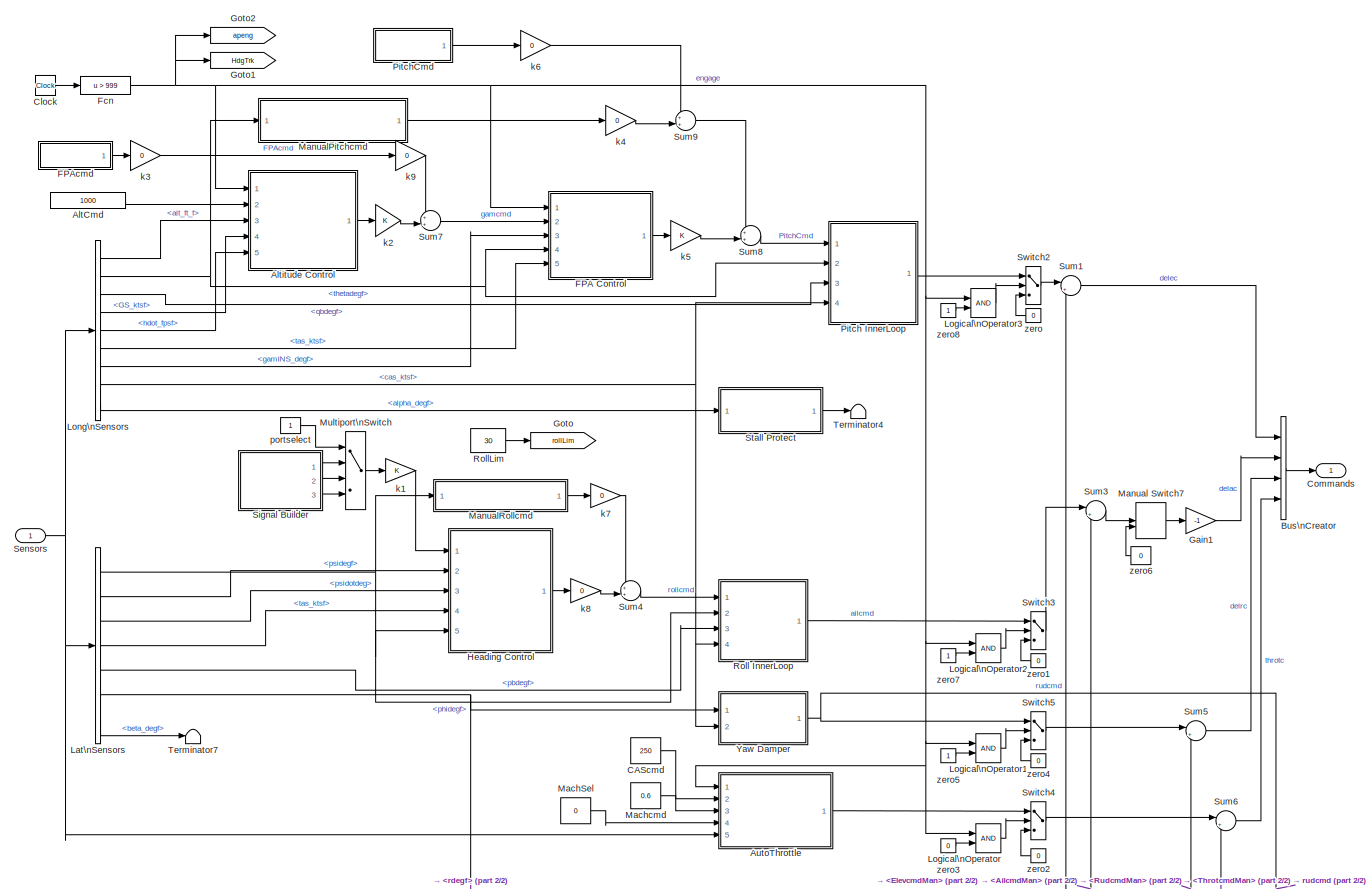
[diagram: NavGuidControl/Controls - part 1/2, most of the canvas]
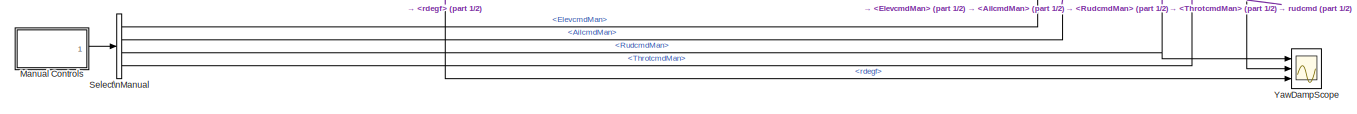
[diagram: NavGuidControl/Controls - part 2/2, full width, bottom band]
BLOCK [SubSystem] NavGuidControl/Controls
  FunctionWithSeparateData = off
  MaskHideContents = off
  MinAlgLoopOccurrences = off
  Opaque = off
  Ports = [1, 1]
  PropExecContextOutsideSubsystem = off
  RTWSystemCode = Auto
  RequestExecContextInheritance = off
  SID = 838
BLOCK [Constant] NavGuidControl/Controls/AltCmd
  SID = 840
  Value = 1000
BLOCK [SubSystem] NavGuidControl/Controls/Altitude Control
  FunctionWithSeparateData = off
  MaskHideContents = off
  MinAlgLoopOccurrences = off
  Opaque = off
  Ports = [5, 1]
  PropExecContextOutsideSubsystem = off
  RTWSystemCode = Auto
  RequestExecContextInheritance = off
  SID = 841
BLOCK [Abs] NavGuidControl/Controls/Altitude Control/Abs
  SID = 848
BLOCK [Inport] NavGuidControl/Controls/Altitude Control/AltCmd
  IconDisplay = Port number
  Port = 2
  SID = 843
BLOCK [Scope] NavGuidControl/Controls/Altitude Control/AltCtnlScope
  DataFormat = StructureWithTime
  Floating = off
  LimitDataPoints = off
  NumInputPorts = 3
  Ports = [3]
  SID = 849
  SampleTime = 0
  SaveName = ScopeData3
  ShowLegends = off
  TimeRange = 30
  YMax = 10200~15~1
  YMin = 10000~-5~0
BLOCK [Inport] NavGuidControl/Controls/Altitude Control/Altitude
  IconDisplay = Port number
  Port = 3
  SID = 844
BLOCK [Constant] NavGuidControl/Controls/Altitude Control/Constant1
  SID = 1443
  Value = 0
BLOCK [Constant] NavGuidControl/Controls/Altitude Control/Constant2
  SID = 1537
BLOCK [Constant] NavGuidControl/Controls/Altitude Control/Constant3
  SID = 850
  Value = 10
BLOCK [Constant] NavGuidControl/Controls/Altitude Control/Constant4
  SID = 851
  Value = 3.2
BLOCK [Product] NavGuidControl/Controls/Altitude Control/Divide
  InputSameDT = off
  Inputs = */
  OutDataTypeStr = Inherit: Inherit via internal rule
  Ports = [2, 1]
  RndMeth = Floor
  SID = 852
  SaturateOnIntegerOverflow = off
BLOCK [Gain] NavGuidControl/Controls/Altitude Control/Kh
  Gain = 0.08
  OutDataTypeStr = Inherit: Inherit via internal rule
  ParamDataTypeStr = Inherit: Inherit via internal rule
  SID = 853
  SaturateOnIntegerOverflow = off
BLOCK [Logic] NavGuidControl/Controls/Altitude Control/Logical\nOperator
  Operator = NOT
  Ports = [1, 1]
  SID = 854
BLOCK [Mux] NavGuidControl/Controls/Altitude Control/Mux
  DisplayOption = bar
  Inputs = 2
  Ports = [2, 1]
  SID = 1444
BLOCK [Mux] NavGuidControl/Controls/Altitude Control/Mux1
  DisplayOption = bar
  Inputs = 2
  Ports = [2, 1]
  SID = 1445
BLOCK [SubSystem] NavGuidControl/Controls/Altitude Control/Safety Properties
  CopyFcn = sldvsubsys('copy');
  DisableCoverage = on
  FunctionWithSeparateData = off
  LoadFcn = sldvsubsys('check')
  MaskHideContents = off
  MinAlgLoopOccurrences = off
  Opaque = off
  OpenFcn = open_system(gcb,'force');
  Ports = [2]
  PreSaveFcn = set_param(gcb,'SimViewingDevice','on');\nsldvsubsys('check');
  PropExecContextOutsideSubsystem = off
  RTWSystemCode = Auto
  RequestExecContextInheritance = off
  SID = 1597
  SimViewingDevice = on
  Tag = VerificationSubsystem
  TreatAsAtomicUnit = on
BLOCK [Reference] NavGuidControl/Controls/Altitude Control/Safety Properties/Compare\nTo Constant  REF=simulink/Logic and Bit\nOperations/Compare\nTo Constant
  OutDataTypeStr = uint8
  Ports = [1, 1]
  SID = 1597:53
  SourceBlock = simulink/Logic and Bit\nOperations/Compare\nTo Constant
  SourceType = Compare To Constant
  ZeroCross = off
  const = 100000
  relop = >
BLOCK [Reference] NavGuidControl/Controls/Altitude Control/Safety Properties/Implies  REF=sldvlib/Verification Utilities/Implies
  Ports = [2, 1]
  SID = 1597:56
  SourceBlock = sldvlib/Verification Utilities/Implies
  SourceType = Design Verifier Implies
BLOCK [Inport] NavGuidControl/Controls/Altitude Control/Safety Properties/altitude
  IconDisplay = Port number
  Port = 2
  SID = 1597:2
BLOCK [Assertion] NavGuidControl/Controls/Altitude Control/Safety Properties/altitude valid
  Enabled = on
  SID = 1597:57
BLOCK [Inport] NavGuidControl/Controls/Altitude Control/Safety Properties/deploy
  IconDisplay = Port number
  SID = 1597:1
BLOCK [Saturate] NavGuidControl/Controls/Altitude Control/Saturation
  InputPortMap = u0
  LowerLimit = 0.0001
  Ports = [1, 1]
  SID = 1408
  UpperLimit = 1000
BLOCK [Sum] NavGuidControl/Controls/Altitude Control/Sum
  IconShape = round
  InputSameDT = off
  Inputs = |+-
  OutDataTypeStr = Inherit: Inherit via internal rule
  Ports = [2, 1]
  SID = 855
  SaturateOnIntegerOverflow = off
BLOCK [Sum] NavGuidControl/Controls/Altitude Control/Sum3
  IconShape = round
  Inputs = |++
  Ports = [2, 1]
  SID = 857
BLOCK [Switch] NavGuidControl/Controls/Altitude Control/Switch
  InputSameDT = off
  SID = 1442
  SaturateOnIntegerOverflow = off
BLOCK [SubSystem] NavGuidControl/Controls/Altitude Control/Variable Limit\nSaturation
  FunctionWithSeparateData = off
  MaskHideContents = off
  MinAlgLoopOccurrences = off
  Opaque = off
  Ports = [3, 1]
  PropExecContextOutsideSubsystem = off
  RTWSystemCode = Auto
  RequestExecContextInheritance = off
  SID = 875
BLOCK [MinMax] NavGuidControl/Controls/Altitude Control/Variable Limit\nSaturation/Enforce\nlow lim
  Function = max
  InputSameDT = off
  Inputs = 2
  Ports = [2, 1]
  SID = 879
  SaturateOnIntegerOverflow = off
BLOCK [MinMax] NavGuidControl/Controls/Altitude Control/Variable Limit\nSaturation/Enforce\nup lim
  InputSameDT = off
  Inputs = 2
  Ports = [2, 1]
  SID = 880
  SaturateOnIntegerOverflow = off
BLOCK [Inport] NavGuidControl/Controls/Altitude Control/Variable Limit\nSaturation/Lo_lim
  IconDisplay = Port number
  Port = 3
  SID = 878
BLOCK [Outport] NavGuidControl/Controls/Altitude Control/Variable Limit\nSaturation/Out1
  IconDisplay = Port number
  SID = 881
BLOCK [Inport] NavGuidControl/Controls/Altitude Control/Variable Limit\nSaturation/SigIn
  IconDisplay = Port number
  Port = 2
  SID = 877
BLOCK [Inport] NavGuidControl/Controls/Altitude Control/Variable Limit\nSaturation/up_lim
  IconDisplay = Port number
  SID = 876
BLOCK [SubSystem] NavGuidControl/Controls/Altitude Control/Variable \nRate Limit
  FunctionWithSeparateData = off
  MaskHideContents = off
  MinAlgLoopOccurrences = off
  Opaque = off
  Ports = [4, 1]
  PropExecContextOutsideSubsystem = off
  RTWSystemCode = Auto
  RequestExecContextInheritance = off
  SID = 858
BLOCK [Gain] NavGuidControl/Controls/Altitude Control/Variable \nRate Limit/Gain
  Gain = 20
  SID = 863
BLOCK [Gain] NavGuidControl/Controls/Altitude Control/Variable \nRate Limit/Gain1
  Gain = -1
  SID = 864
BLOCK [Inport] NavGuidControl/Controls/Altitude Control/Variable \nRate Limit/IC
  IconDisplay = Port number
  Port = 4
  SID = 862
BLOCK [Inport] NavGuidControl/Controls/Altitude Control/Variable \nRate Limit/ICtrig
  IconDisplay = Port number
  Port = 3
  SID = 861
BLOCK [Integrator] NavGuidControl/Controls/Altitude Control/Variable \nRate Limit/Integrator
  ExternalReset = level
  IgnoreLimit = on
  InitialConditionSource = external
  Ports = [3, 1]
  SID = 865
BLOCK [Sum] NavGuidControl/Controls/Altitude Control/Variable \nRate Limit/Sum2
  IconShape = round
  InputSameDT = off
  Inputs = |+-
  OutDataTypeStr = Inherit: Inherit via internal rule
  Ports = [2, 1]
  SID = 866
BLOCK [SubSystem] NavGuidControl/Controls/Altitude Control/Variable \nRate Limit/Variable Limit\nSaturation
  FunctionWithSeparateData = off
  MaskHideContents = off
  MinAlgLoopOccurrences = off
  Opaque = off
  Ports = [3, 1]
  PropExecContextOutsideSubsystem = off
  RTWSystemCode = Auto
  RequestExecContextInheritance = off
  SID = 867
BLOCK [MinMax] NavGuidControl/Controls/Altitude Control/Variable \nRate Limit/Variable Limit\nSaturation/Enforce\nlow lim
  Function = max
  InputSameDT = off
  Inputs = 2
  Ports = [2, 1]
  SID = 871
  SaturateOnIntegerOverflow = off
BLOCK [MinMax] NavGuidControl/Controls/Altitude Control/Variable \nRate Limit/Variable Limit\nSaturation/Enforce\nup lim
  InputSameDT = off
  Inputs = 2
  Ports = [2, 1]
  SID = 872
  SaturateOnIntegerOverflow = off
BLOCK [Inport] NavGuidControl/Controls/Altitude Control/Variable \nRate Limit/Variable Limit\nSaturation/Lo_lim
  IconDisplay = Port number
  Port = 3
  SID = 870
BLOCK [Outport] NavGuidControl/Controls/Altitude Control/Variable \nRate Limit/Variable Limit\nSaturation/Out1
  IconDisplay = Port number
  SID = 873
BLOCK [Inport] NavGuidControl/Controls/Altitude Control/Variable \nRate Limit/Variable Limit\nSaturation/SigIn
  IconDisplay = Port number
  Port = 2
  SID = 869
BLOCK [Inport] NavGuidControl/Controls/Altitude Control/Variable \nRate Limit/Variable Limit\nSaturation/up_lim
  IconDisplay = Port number
  SID = 868
BLOCK [Inport] NavGuidControl/Controls/Altitude Control/Variable \nRate Limit/input
  IconDisplay = Port number
  Port = 2
  SID = 860
BLOCK [Outport] NavGuidControl/Controls/Altitude Control/Variable \nRate Limit/output
  IconDisplay = Port number
  SID = 874
BLOCK [Inport] NavGuidControl/Controls/Altitude Control/Variable \nRate Limit/ratelim
  IconDisplay = Port number
  SID = 859
BLOCK [Inport] NavGuidControl/Controls/Altitude Control/alteng
  IconDisplay = Port number
  SID = 842
BLOCK [Outport] NavGuidControl/Controls/Altitude Control/altgamcmd
  IconDisplay = Port number
  SID = 884
BLOCK [Inport] NavGuidControl/Controls/Altitude Control/gskts
  IconDisplay = Port number
  Port = 4
  SID = 846
BLOCK [Inport] NavGuidControl/Controls/Altitude Control/hdot
  IconDisplay = Port number
  Port = 5
  SID = 847
BLOCK [Gain] NavGuidControl/Controls/Altitude Control/k
  Gain = -1
  OutDataTypeStr = Inherit: Inherit via internal rule
  ParamDataTypeStr = Inherit: Inherit via internal rule
  SID = 882
  SaturateOnIntegerOverflow = off
BLOCK [Gain] NavGuidControl/Controls/Altitude Control/kts2fps
  Gain = 1.6878
  OutDataTypeStr = Inherit: Inherit via internal rule
  ParamDataTypeStr = Inherit: Inherit via internal rule
  SID = 1407
  SaturateOnIntegerOverflow = off
BLOCK [Gain] NavGuidControl/Controls/Altitude Control/r2d
  Gain = 57.2958
  OutDataTypeStr = Inherit: Inherit via internal rule
  ParamDataTypeStr = Inherit: Inherit via internal rule
  SID = 883
  SaturateOnIntegerOverflow = off
BLOCK [SubSystem] NavGuidControl/Controls/AutoThrottle
  FunctionWithSeparateData = off
  MaskHideContents = off
  MinAlgLoopOccurrences = off
  Opaque = off
  Ports = [5, 1]
  PropExecContextOutsideSubsystem = off
  RTWSystemCode = Auto
  RequestExecContextInheritance = off
  SID = 885
BLOCK [Inport] NavGuidControl/Controls/AutoThrottle/CAScmd
  IconDisplay = Port number
  Port = 2
  SID = 886
BLOCK [Inport] NavGuidControl/Controls/AutoThrottle/Engage
  IconDisplay = Port number
  SID = 1492
BLOCK [Gain] NavGuidControl/Controls/AutoThrottle/Gain
  Gain = pi/180
  OutDataTypeStr = Inherit: Inherit via internal rule
  ParamDataTypeStr = Inherit: Inherit via internal rule
  SID = 1450
  SaturateOnIntegerOverflow = off
BLOCK [Gain] NavGuidControl/Controls/AutoThrottle/Gain1
  Gain = 5
  OutDataTypeStr = Inherit: Inherit via internal rule
  ParamDataTypeStr = Inherit: Inherit via internal rule
  SID = 1451
  SaturateOnIntegerOverflow = off
BLOCK [Constant] NavGuidControl/Controls/AutoThrottle/ICthrot
  SID = 1483
  SampleTime = -1
  Value = bias.throttle
BLOCK [Constant] NavGuidControl/Controls/AutoThrottle/ICthrot1
  SID = 1485
  SampleTime = -1
  Value = bias.throttle
BLOCK [Gain] NavGuidControl/Controls/AutoThrottle/Kcas
  Gain = 0.2
  OutDataTypeStr = Inherit: Inherit via internal rule
  ParamDataTypeStr = Inherit: Inherit via internal rule
  SID = 889
  SaturateOnIntegerOverflow = off
BLOCK [Gain] NavGuidControl/Controls/AutoThrottle/Kr
  Gain = 2.5
  OutDataTypeStr = Inherit: Inherit via internal rule
  ParamDataTypeStr = Inherit: Inherit via internal rule
  SID = 890
  SaturateOnIntegerOverflow = off
BLOCK [Gain] NavGuidControl/Controls/AutoThrottle/Kr1
  Gain = 1.2
  OutDataTypeStr = Inherit: Inherit via internal rule
  ParamDataTypeStr = Inherit: Inherit via internal rule
  SID = 891
  SaturateOnIntegerOverflow = off
BLOCK [Gain] NavGuidControl/Controls/AutoThrottle/Ktas
  Gain = 0.11
  OutDataTypeStr = Inherit: Inherit via internal rule
  ParamDataTypeStr = Inherit: Inherit via internal rule
  SID = 1452
  SaturateOnIntegerOverflow = off
BLOCK [BusSelector] NavGuidControl/Controls/AutoThrottle/Lat\nSensors
  OutputSignals = phidegf,tas_ktsf,machf,cas_ktsf,vgdotf
  Ports = [1, 5]
  SID = 1488
BLOCK [Logic] NavGuidControl/Controls/AutoThrottle/Logical\nOperator
  AllPortsSameDT = off
  Operator = NOT
  OutDataTypeStr = boolean
  Ports = [1, 1]
  SID = 1493
BLOCK [Inport] NavGuidControl/Controls/AutoThrottle/MachCmd
  IconDisplay = Port number
  Port = 3
  SID = 887
BLOCK [Inport] NavGuidControl/Controls/AutoThrottle/MachSel
  IconDisplay = Port number
  Port = 4
  SID = 1489
BLOCK [Switch] NavGuidControl/Controls/AutoThrottle/PHIMC1
  InputSameDT = off
  SID = 1482
  SampleTime = 0.02
  Threshold = 0.5
BLOCK [Product] NavGuidControl/Controls/AutoThrottle/Product
  InputSameDT = off
  OutDataTypeStr = Inherit: Inherit via internal rule
  Ports = [2, 1]
  SID = 1453
  SaturateOnIntegerOverflow = off
BLOCK [Product] NavGuidControl/Controls/AutoThrottle/Product1
  InputSameDT = off
  Inputs = */
  OutDataTypeStr = Inherit: Inherit via internal rule
  Ports = [2, 1]
  SID = 1454
  SaturateOnIntegerOverflow = off
BLOCK [Constant] NavGuidControl/Controls/AutoThrottle/RollComp1
  SID = 1455
  SampleTime = -1
BLOCK [Reference] NavGuidControl/Controls/AutoThrottle/Saturation\nDynamic1  REF=simulink/Discontinuities/Saturation\nDynamic
  DoSatur = off
  LockScale = off
  OutDataType = sfix(16)
  OutDataTypeStr = Inherit: Same as second input
  OutMax = []
  OutMin = []
  OutScaling = 2^-10
  OutputDataTypeScalingMode = Same as second input
  Ports = [3, 1]
  RndMeth = Floor
  SID = 1481
  SourceBlock = simulink/Discontinuities/Saturation\nDynamic
  SourceType = Saturation Dynamic
BLOCK [Inport] NavGuidControl/Controls/AutoThrottle/Sensors
  IconDisplay = Port number
  Port = 5
  SID = 888
BLOCK [Sum] NavGuidControl/Controls/AutoThrottle/Sum
  IconShape = round
  InputSameDT = off
  Inputs = |+-
  OutDataTypeStr = Inherit: Inherit via internal rule
  Ports = [2, 1]
  SID = 1456
  SaturateOnIntegerOverflow = off
BLOCK [Sum] NavGuidControl/Controls/AutoThrottle/Sum1
  IconShape = round
  InputSameDT = off
  Inputs = ++-
  OutDataTypeStr = Inherit: Inherit via internal rule
  Ports = [3, 1]
  SID = 893
  SaturateOnIntegerOverflow = off
BLOCK [Sum] NavGuidControl/Controls/AutoThrottle/Sum2
  IconShape = round
  InputSameDT = off
  Inputs = |+-
  OutDataTypeStr = Inherit: Inherit via internal rule
  Ports = [2, 1]
  SID = 894
  SaturateOnIntegerOverflow = off
BLOCK [Sum] NavGuidControl/Controls/AutoThrottle/Sum3
  IconShape = round
  InputSameDT = off
  Inputs = |+-
  OutDataTypeStr = Inherit: Inherit via internal rule
  Ports = [2, 1]
  SID = 895
  SaturateOnIntegerOverflow = off
BLOCK [Sum] NavGuidControl/Controls/AutoThrottle/Sum4
  IconShape = round
  InputSameDT = off
  Inputs = |+-
  OutDataTypeStr = Inherit: Inherit via internal rule
  Ports = [2, 1]
  SID = 1457
  SaturateOnIntegerOverflow = off
BLOCK [Sum] NavGuidControl/Controls/AutoThrottle/Sum5
  IconShape = round
  InputSameDT = off
  Inputs = |+-
  OutDataTypeStr = Inherit: Inherit via internal rule
  Ports = [2, 1]
  SID = 1484
  SaturateOnIntegerOverflow = off
BLOCK [Outport] NavGuidControl/Controls/AutoThrottle/ThrotCmd
  IconDisplay = Port number
  SID = 898
BLOCK [TransferFcn] NavGuidControl/Controls/AutoThrottle/Transfer Fcn
  Denominator = [16 1]
  Numerator = [16 0]
  SID = 1458
BLOCK [Trigonometry] NavGuidControl/Controls/AutoThrottle/Trigonometric\nFunction
  Operator = cos
  Ports = [1, 1]
  SID = 1459
BLOCK [SubSystem] NavGuidControl/Controls/AutoThrottle/VarLimIntegAT
  FunctionWithSeparateData = off
  MaskHideContents = off
  MinAlgLoopOccurrences = off
  Opaque = off
  Ports = [5, 1]
  PropExecContextOutsideSubsystem = off
  RTWSystemCode = Auto
  RequestExecContextInheritance = off
  SID = 1462
BLOCK [Constant] NavGuidControl/Controls/AutoThrottle/VarLimIntegAT/Constant1
  SID = 1468
  SampleTime = -1
  Value = 0
BLOCK [Constant] NavGuidControl/Controls/AutoThrottle/VarLimIntegAT/Constant2
  SID = 1469
  SampleTime = -1
  Value = 0
BLOCK [Constant] NavGuidControl/Controls/AutoThrottle/VarLimIntegAT/Constant3
  SID = 1470
  SampleTime = -1
  Value = 0
BLOCK [Inport] NavGuidControl/Controls/AutoThrottle/VarLimIntegAT/IC
  IconDisplay = Port number
  Port = 5
  SID = 1467
BLOCK [Inport] NavGuidControl/Controls/AutoThrottle/VarLimIntegAT/ICtrig
  IconDisplay = Port number
  Port = 4
  SID = 1466
BLOCK [Inport] NavGuidControl/Controls/AutoThrottle/VarLimIntegAT/Input
  IconDisplay = Port number
  SID = 1463
BLOCK [Integrator] NavGuidControl/Controls/AutoThrottle/VarLimIntegAT/Integrator1
  ExternalReset = level
  InitialConditionSource = external
  Ports = [3, 1]
  SID = 1471
BLOCK [Logic] NavGuidControl/Controls/AutoThrottle/VarLimIntegAT/Logical\nOperator1
  Operator = OR
  Ports = [2, 1]
  SID = 1472
BLOCK [Logic] NavGuidControl/Controls/AutoThrottle/VarLimIntegAT/Logical\nOperator2
  Ports = [2, 1]
  SID = 1473
BLOCK [Logic] NavGuidControl/Controls/AutoThrottle/VarLimIntegAT/Logical\nOperator3
  Ports = [2, 1]
  SID = 1474
BLOCK [Inport] NavGuidControl/Controls/AutoThrottle/VarLimIntegAT/Max
  IconDisplay = Port number
  Port = 2
  SID = 1464
BLOCK [Inport] NavGuidControl/Controls/AutoThrottle/VarLimIntegAT/Min
  IconDisplay = Port number
  Port = 3
  SID = 1465
BLOCK [Outport] NavGuidControl/Controls/AutoThrottle/VarLimIntegAT/Out
  IconDisplay = Port number
  SID = 1480
BLOCK [RelationalOperator] NavGuidControl/Controls/AutoThrottle/VarLimIntegAT/Relational\nOperator1
  Operator = <=
  Ports = [2, 1]
  SID = 1475
BLOCK [RelationalOperator] NavGuidControl/Controls/AutoThrottle/VarLimIntegAT/Relational\nOperator2
  Ports = [2, 1]
  SID = 1476
BLOCK [RelationalOperator] NavGuidControl/Controls/AutoThrottle/VarLimIntegAT/Relational\nOperator3
  Operator = >
  Ports = [2, 1]
  SID = 1477
BLOCK [RelationalOperator] NavGuidControl/Controls/AutoThrottle/VarLimIntegAT/Relational\nOperator4
  Operator = <
  Ports = [2, 1]
  SID = 1478
BLOCK [Switch] NavGuidControl/Controls/AutoThrottle/VarLimIntegAT/Switch1
  SID = 1479
  Threshold = 0.1
BLOCK [Gain] NavGuidControl/Controls/AutoThrottle/kt2fps
  Gain = 1.6878
  OutDataTypeStr = Inherit: Inherit via internal rule
  ParamDataTypeStr = Inherit: Inherit via internal rule
  SID = 897
  SaturateOnIntegerOverflow = off
BLOCK [Gain] NavGuidControl/Controls/AutoThrottle/kt2fps1
  Gain = 1.6878
  OutDataTypeStr = Inherit: Inherit via internal rule
  ParamDataTypeStr = Inherit: Inherit via internal rule
  SID = 1460
  SaturateOnIntegerOverflow = off
BLOCK [Constant] NavGuidControl/Controls/AutoThrottle/maxthrot
  SID = 1486
  SampleTime = -1
  Value = 100
BLOCK [Constant] NavGuidControl/Controls/AutoThrottle/minthrot
  SID = 1487
  SampleTime = -1
  Value = 0
BLOCK [Constant] NavGuidControl/Controls/AutoThrottle/one
  SID = 1461
  SampleTime = -1
BLOCK [BusCreator] NavGuidControl/Controls/Bus\nCreator
  DisplayOption = bar
  Ports = [4, 1]
  SID = 899
BLOCK [Constant] NavGuidControl/Controls/CAScmd
  SID = 900
  Value = 250
BLOCK [Clock] NavGuidControl/Controls/Clock
  SID = 901
BLOCK [Outport] NavGuidControl/Controls/Commands
  IconDisplay = Port number
  SID = 1206
BLOCK [SubSystem] NavGuidControl/Controls/FPA Control
  FunctionWithSeparateData = off
  MaskHideContents = off
  MinAlgLoopOccurrences = off
  Opaque = off
  Ports = [5, 1]
  PropExecContextOutsideSubsystem = off
  RTWSystemCode = Auto
  RequestExecContextInheritance = off
  SID = 902
BLOCK [Scope] NavGuidControl/Controls/FPA Control/FPAScope
  DataFormat = StructureWithTime
  Floating = off
  LimitDataPoints = off
  NumInputPorts = 4
  Ports = [4]
  SID = 1446
  SampleTime = 0
  SaveName = ScopeData12
  ShowLegends = off
  YMax = 2~5~2~10
  YMin = -1~-5~-2~-5
BLOCK [Integrator] NavGuidControl/Controls/FPA Control/Integ_FPA
  ExternalReset = level
  IgnoreLimit = on
  InitialConditionSource = external
  Ports = [3, 1]
  SID = 907
BLOCK [Gain] NavGuidControl/Controls/FPA Control/KIgamerr
  OutDataTypeStr = Inherit: Inherit via internal rule
  ParamDataTypeStr = Inherit: Inherit via internal rule
  SID = 908
  SaturateOnIntegerOverflow = off
BLOCK [Gain] NavGuidControl/Controls/FPA Control/Kgamerr
  Gain = 1.4
  OutDataTypeStr = Inherit: Inherit via internal rule
  ParamDataTypeStr = Inherit: Inherit via internal rule
  SID = 909
  SaturateOnIntegerOverflow = off
BLOCK [Logic] NavGuidControl/Controls/FPA Control/Logical\nOperator
  AllPortsSameDT = off
  Operator = NOT
  OutDataTypeStr = boolean
  Ports = [1, 1]
  SID = 910
BLOCK [Mux] NavGuidControl/Controls/FPA Control/Mux
  DisplayOption = bar
  Inputs = 2
  Ports = [2, 1]
  SID = 1448
BLOCK [Mux] NavGuidControl/Controls/FPA Control/Mux1
  DisplayOption = bar
  Inputs = 2
  Ports = [2, 1]
  SID = 1449
BLOCK [Outport] NavGuidControl/Controls/FPA Control/PitchCmd
  IconDisplay = Port number
  SID = 913
BLOCK [Product] NavGuidControl/Controls/FPA Control/Product1
  InputSameDT = off
  OutDataTypeStr = Inherit: Inherit via internal rule
  Ports = [2, 1]
  SID = 1434
  SaturateOnIntegerOverflow = off
BLOCK [Reference] NavGuidControl/Controls/FPA Control/Saturation\nDynamic  REF=simulink/Discontinuities/Saturation\nDynamic
  DoSatur = off
  LockScale = off
  OutDataType = fixdt(1, 16)
  OutDataTypeStr = Inherit: Same as second input
  OutMax = []
  OutMin = []
  OutScaling = 2^-10
  OutputDataTypeScalingMode = Same as second input
  Ports = [3, 1]
  RndMeth = Floor
  SID = 1435
  SourceBlock = simulink/Discontinuities/Saturation\nDynamic
  SourceType = Saturation Dynamic
BLOCK [Sum] NavGuidControl/Controls/FPA Control/Sum
  IconShape = round
  InputSameDT = off
  Inputs = |++
  OutDataTypeStr = Inherit: Inherit via internal rule
  Ports = [2, 1]
  SID = 911
  SaturateOnIntegerOverflow = off
BLOCK [Sum] NavGuidControl/Controls/FPA Control/Sum1
  IconShape = round
  InputSameDT = off
  Inputs = |+-
  OutDataTypeStr = Inherit: Inherit via internal rule
  Ports = [2, 1]
  SID = 912
  SaturateOnIntegerOverflow = off
BLOCK [Sum] NavGuidControl/Controls/FPA Control/Sum2
  IconShape = round
  InputSameDT = off
  Inputs = |+-
  OutDataTypeStr = Inherit: Inherit via internal rule
  Ports = [2, 1]
  SID = 1447
  SaturateOnIntegerOverflow = off
BLOCK [Inport] NavGuidControl/Controls/FPA Control/VT
  IconDisplay = Port number
  Port = 5
  SID = 1439
BLOCK [Inport] NavGuidControl/Controls/FPA Control/engage
  IconDisplay = Port number
  SID = 903
BLOCK [Inport] NavGuidControl/Controls/FPA Control/gamcmd
  IconDisplay = Port number
  Port = 2
  SID = 904
BLOCK [Inport] NavGuidControl/Controls/FPA Control/gamma
  IconDisplay = Port number
  Port = 3
  SID = 905
BLOCK [Constant] NavGuidControl/Controls/FPA Control/hddLim
  SID = 1436
  Value = 4.83*57.2958
BLOCK [Gain] NavGuidControl/Controls/FPA Control/kt2fps
  Gain = 1.6878
  OutDataTypeStr = Inherit: Inherit via internal rule
  ParamDataTypeStr = Inherit: Inherit via internal rule
  SID = 1437
  SaturateOnIntegerOverflow = off
BLOCK [Gain] NavGuidControl/Controls/FPA Control/m1
  Gain = -1
  OutDataTypeStr = Inherit: Inherit via internal rule
  ParamDataTypeStr = Inherit: Inherit via internal rule
  SID = 1438
  SaturateOnIntegerOverflow = off
BLOCK [Inport] NavGuidControl/Controls/FPA Control/thetadeg
  IconDisplay = Port number
  Port = 4
  SID = 906
BLOCK [SubSystem] NavGuidControl/Controls/FPAcmd
  ClipboardFcn = sigbuilder_block('clipboard');
  CloseFcn = sigbuilder_block('close');
  ContinueFcn = sigbuilder_block('continue')
  CopyFcn = sigbuilder_block('copy');
  DeleteFcn = sigbuilder_block('delete');
  FunctionWithSeparateData = off
  LoadFcn = sigbuilder_block('load');
  MaskHideContents = on
  MinAlgLoopOccurrences = off
  ModelCloseFcn = sigbuilder_block('modelClose');
  NameChangeFcn = sigbuilder_block('namechange');
  Opaque = off
  OpenFcn = sigbuilder_block('open',[437.6 199.2 550.4 400 ]);
  PauseFcn = sigbuilder_block('pause')
  Ports = [0, 1]
  PreSaveFcn = sigbuilder_block('preSave');
  PropExecContextOutsideSubsystem = off
  RTWSystemCode = Auto
  RequestExecContextInheritance = off
  SID = 914
  StartFcn = sigbuilder_block('start');
  StopFcn = sigbuilder_block('stop');
  Tag = STV Subsys
BLOCK [Demux] NavGuidControl/Controls/FPAcmd/Demux
  Outputs = 1
  Ports = [1, 1]
  SID = 915
  Tag = STV Demux
BLOCK [FromWorkspace] NavGuidControl/Controls/FPAcmd/FromWs
  SID = 916
  SampleTime = 0
  SigBuilderData = DataTag0
  Tag = STV FromWs
  VariableName = tuvar
  VnvData = DataTag1
  ZeroCross = on
BLOCK [Outport] NavGuidControl/Controls/FPAcmd/Signal 1
  IconDisplay = Port number
  SID = 917
  Tag = STV Outport
BLOCK [Fcn] NavGuidControl/Controls/Fcn
  Expr = u > 999
  SID = 918
BLOCK [Gain] NavGuidControl/Controls/Gain1
  Gain = -1
  SID = 919
BLOCK [Goto] NavGuidControl/Controls/Goto
  GotoTag = rollLim
  SID = 920
  TagVisibility = global
BLOCK [Goto] NavGuidControl/Controls/Goto1
  GotoTag = HdgTrk
  SID = 921
  TagVisibility = global
BLOCK [Goto] NavGuidControl/Controls/Goto2
  GotoTag = apeng
  SID = 922
  TagVisibility = global
BLOCK [SubSystem] NavGuidControl/Controls/Heading Control
  FunctionWithSeparateData = off
  MaskHideContents = off
  MinAlgLoopOccurrences = off
  Opaque = off
  Ports = [5, 1]
  PropExecContextOutsideSubsystem = off
  RTWSystemCode = Auto
  RequestExecContextInheritance = off
  SID = 923
BLOCK [From] NavGuidControl/Controls/Heading Control/From1
  CloseFcn = tagdialog Close
  GotoTag = apeng
  SID = 929
  TagVisibility = global
BLOCK [From] NavGuidControl/Controls/Heading Control/From2
  CloseFcn = tagdialog Close
  GotoTag = rollLim
  SID = 930
  TagVisibility = global
BLOCK [From] NavGuidControl/Controls/Heading Control/From3
  CloseFcn = tagdialog Close
  GotoTag = rollLim
  SID = 931
  TagVisibility = global
BLOCK [Inport] NavGuidControl/Controls/Heading Control/HdgCmdMCP
  IconDisplay = Port number
  SID = 924
BLOCK [SubSystem] NavGuidControl/Controls/Heading Control/HdgCmdProcessor
  FunctionWithSeparateData = off
  MaskHideContents = off
  MinAlgLoopOccurrences = off
  Opaque = off
  Ports = [3, 2]
  PropExecContextOutsideSubsystem = off
  RTWSystemCode = Auto
  RequestExecContextInheritance = off
  SID = 932
BLOCK [Product] NavGuidControl/Controls/Heading Control/HdgCmdProcessor/2zetaOmega
  InputSameDT = off
  OutDataTypeStr = Inherit: Inherit via internal rule
  Ports = [2, 1]
  SID = 935
  SaturateOnIntegerOverflow = off
BLOCK [SubSystem] NavGuidControl/Controls/Heading Control/HdgCmdProcessor/ANGL
  FunctionWithSeparateData = off
  MaskHideContents = off
  MinAlgLoopOccurrences = off
  Opaque = off
  Ports = [1, 1]
  PropExecContextOutsideSubsystem = off
  RTWSystemCode = Auto
  RequestExecContextInheritance = off
  SID = 936
BLOCK [Outport] NavGuidControl/Controls/Heading Control/HdgCmdProcessor/ANGL/+ -180
  IconDisplay = Port number
  SID = 944
BLOCK [Constant] NavGuidControl/Controls/Heading Control/HdgCmdProcessor/ANGL/Constant1
  SID = 938
  Value = 180
BLOCK [Fcn] NavGuidControl/Controls/Heading Control/HdgCmdProcessor/ANGL/Fcn1
  Expr = 360*sgn(u(1))
  SID = 939
BLOCK [Fcn] NavGuidControl/Controls/Heading Control/HdgCmdProcessor/ANGL/Fcn2
  Expr = abs(u(1))
  SID = 940
BLOCK [RelationalOperator] NavGuidControl/Controls/Heading Control/HdgCmdProcessor/ANGL/Relational\nOperator
  InputSameDT = off
  Operator = >
  Ports = [2, 1]
  SID = 941
BLOCK [Sum] NavGuidControl/Controls/Heading Control/HdgCmdProcessor/ANGL/Sum6
  IconShape = round
  InputSameDT = off
  Inputs = |-+
  OutDataTypeStr = Inherit: Inherit via internal rule
  Ports = [2, 1]
  SID = 942
BLOCK [Switch] NavGuidControl/Controls/Heading Control/HdgCmdProcessor/ANGL/Switch1
  InputSameDT = off
  SID = 943
  Threshold = 0.1
BLOCK [Inport] NavGuidControl/Controls/Heading Control/HdgCmdProcessor/ANGL/in
  IconDisplay = Port number
  SID = 937
BLOCK [Fcn] NavGuidControl/Controls/Heading Control/HdgCmdProcessor/Fcn
  Expr = 1.6 - 0.0*u(1)
  SID = 945
BLOCK [Fcn] NavGuidControl/Controls/Heading Control/HdgCmdProcessor/Fcn1
  Expr = 514.8/u(1)
  SID = 946
BLOCK [Fcn] NavGuidControl/Controls/Heading Control/HdgCmdProcessor/Fcn2
  Expr = u(2)/u(1)
  SID = 947
BLOCK [From] NavGuidControl/Controls/Heading Control/HdgCmdProcessor/From
  CloseFcn = tagdialog Close
  GotoTag = omega
  SID = 948
BLOCK [From] NavGuidControl/Controls/Heading Control/HdgCmdProcessor/From1
  CloseFcn = tagdialog Close
  GotoTag = omegaSq
  SID = 949
BLOCK [From] NavGuidControl/Controls/Heading Control/HdgCmdProcessor/From2
  CloseFcn = tagdialog Close
  GotoTag = rollLim
  SID = 950
  TagVisibility = global
BLOCK [From] NavGuidControl/Controls/Heading Control/HdgCmdProcessor/From3
  CloseFcn = tagdialog Close
  GotoTag = HdgTrk
  SID = 951
  TagVisibility = global
BLOCK [Goto] NavGuidControl/Controls/Heading Control/HdgCmdProcessor/Goto
  GotoTag = omega
  SID = 952
BLOCK [Goto] NavGuidControl/Controls/Heading Control/HdgCmdProcessor/Goto1
  GotoTag = omegaSq
  SID = 953
BLOCK [Outport] NavGuidControl/Controls/Heading Control/HdgCmdProcessor/HdgCmd
  IconDisplay = Port number
  SID = 993
BLOCK [Inport] NavGuidControl/Controls/Heading Control/HdgCmdProcessor/HdgCmdMCP
  IconDisplay = Port number
  Port = 2
  SID = 934
BLOCK [Scope] NavGuidControl/Controls/Heading Control/HdgCmdProcessor/HdgCmdScope
  DataFormat = StructureWithTime
  Floating = off
  LimitDataPoints = off
  NumInputPorts = 4
  Ports = [4]
  SID = 954
  SampleTime = 0
  SaveName = ScopeData6
  ShowLegends = off
  YMax = 2~4~40~40
  YMin = -2~-4~-40~-40
BLOCK [Outport] NavGuidControl/Controls/Heading Control/HdgCmdProcessor/HdgRteCmd
  IconDisplay = Port number
  Port = 2
  SID = 994
BLOCK [Inport] NavGuidControl/Controls/Heading Control/HdgCmdProcessor/Heading
  IconDisplay = Port number
  Port = 3
  SID = 1509
BLOCK [Integrator] NavGuidControl/Controls/Heading Control/HdgCmdProcessor/Integrator1
  ExternalReset = level
  InitialConditionSource = external
  Ports = [3, 1]
  SID = 955
BLOCK [Logic] NavGuidControl/Controls/Heading Control/HdgCmdProcessor/Logical\nOperator
  AllPortsSameDT = off
  Operator = NOT
  OutDataTypeStr = boolean
  Ports = [1, 1]
  SID = 956
BLOCK [Mux] NavGuidControl/Controls/Heading Control/HdgCmdProcessor/Mux1
  DisplayOption = bar
  Inputs = 2
  Ports = [2, 1]
  SID = 957
BLOCK [Saturate] NavGuidControl/Controls/Heading Control/HdgCmdProcessor/Saturation
  InputPortMap = u0
  LowerLimit = 0.0001
  Ports = [1, 1]
  SID = 1409
  UpperLimit = 1000
BLOCK [Reference] NavGuidControl/Controls/Heading Control/HdgCmdProcessor/Saturation\nDynamic1  REF=simulink/Discontinuities/Saturation\nDynamic
  DoSatur = off
  LockScale = off
  OutDataType = fixdt(1, 16)
  OutDataTypeStr = Inherit: Same as second input
  OutMax = []
  OutMin = []
  OutScaling = 2^-10
  OutputDataTypeScalingMode = Same as second input
  Ports = [3, 1]
  RndMeth = Floor
  SID = 958
  SourceBlock = simulink/Discontinuities/Saturation\nDynamic
  SourceType = Saturation Dynamic
BLOCK [Sum] NavGuidControl/Controls/Heading Control/HdgCmdProcessor/Sum2
  IconShape = round
  InputSameDT = off
  Inputs = |+-
  OutDataTypeStr = Inherit: Inherit via internal rule
  Ports = [2, 1]
  SID = 959
  SaturateOnIntegerOverflow = off
BLOCK [Sum] NavGuidControl/Controls/Heading Control/HdgCmdProcessor/Sum3
  IconShape = round
  InputSameDT = off
  Inputs = |+-
  OutDataTypeStr = Inherit: Inherit via internal rule
  Ports = [2, 1]
  SID = 960
  SaturateOnIntegerOverflow = off
BLOCK [Trigonometry] NavGuidControl/Controls/Heading Control/HdgCmdProcessor/Trigonometric\nFunction
  Operator = tan
  Ports = [1, 1]
  SID = 961
BLOCK [SubSystem] NavGuidControl/Controls/Heading Control/HdgCmdProcessor/VarLimIntegIC
  FunctionWithSeparateData = off
  MaskHideContents = off
  MinAlgLoopOccurrences = off
  Opaque = off
  Ports = [5, 1]
  PropExecContextOutsideSubsystem = off
  RTWSystemCode = Auto
  RequestExecContextInheritance = off
  SID = 962
BLOCK [Constant] NavGuidControl/Controls/Heading Control/HdgCmdProcessor/VarLimIntegIC/Constant1
  SID = 968
  Value = 0
BLOCK [Constant] NavGuidControl/Controls/Heading Control/HdgCmdProcessor/VarLimIntegIC/Constant2
  SID = 969
  Value = 0
BLOCK [Constant] NavGuidControl/Controls/Heading Control/HdgCmdProcessor/VarLimIntegIC/Constant3
  SID = 970
  Value = 0
BLOCK [Inport] NavGuidControl/Controls/Heading Control/HdgCmdProcessor/VarLimIntegIC/IC
  IconDisplay = Port number
  Port = 5
  SID = 967
BLOCK [Inport] NavGuidControl/Controls/Heading Control/HdgCmdProcessor/VarLimIntegIC/In
  IconDisplay = Port number
  Port = 3
  SID = 965
BLOCK [Integrator] NavGuidControl/Controls/Heading Control/HdgCmdProcessor/VarLimIntegIC/Integrator
  ExternalReset = level
  InitialConditionSource = external
  Ports = [3, 1]
  SID = 971
BLOCK [Inport] NavGuidControl/Controls/Heading Control/HdgCmdProcessor/VarLimIntegIC/LoLim
  IconDisplay = Port number
  Port = 2
  SID = 964
BLOCK [Logic] NavGuidControl/Controls/Heading Control/HdgCmdProcessor/VarLimIntegIC/Logical\nOperator
  AllPortsSameDT = off
  Ports = [2, 1]
  SID = 972
BLOCK [Logic] NavGuidControl/Controls/Heading Control/HdgCmdProcessor/VarLimIntegIC/Logical\nOperator1
  AllPortsSameDT = off
  Ports = [2, 1]
  SID = 973
BLOCK [Logic] NavGuidControl/Controls/Heading Control/HdgCmdProcessor/VarLimIntegIC/Logical\nOperator2
  AllPortsSameDT = off
  Operator = OR
  Ports = [2, 1]
  SID = 974
BLOCK [Outport] NavGuidControl/Controls/Heading Control/HdgCmdProcessor/VarLimIntegIC/Out
  IconDisplay = Port number
  SID = 982
BLOCK [RelationalOperator] NavGuidControl/Controls/Heading Control/HdgCmdProcessor/VarLimIntegIC/Relational\nOperator
  InputSameDT = off
  Operator = <=
  Ports = [2, 1]
  SID = 975
BLOCK [RelationalOperator] NavGuidControl/Controls/Heading Control/HdgCmdProcessor/VarLimIntegIC/Relational\nOperator1
  InputSameDT = off
  Ports = [2, 1]
  SID = 976
BLOCK [RelationalOperator] NavGuidControl/Controls/Heading Control/HdgCmdProcessor/VarLimIntegIC/Relational\nOperator2
  InputSameDT = off
  Operator = >
  Ports = [2, 1]
  SID = 977
BLOCK [RelationalOperator] NavGuidControl/Controls/Heading Control/HdgCmdProcessor/VarLimIntegIC/Relational\nOperator3
  InputSameDT = off
  Operator = <
  Ports = [2, 1]
  SID = 978
BLOCK [Switch] NavGuidControl/Controls/Heading Control/HdgCmdProcessor/VarLimIntegIC/Switch1
  SID = 979
  Threshold = 0.5
BLOCK [Switch] NavGuidControl/Controls/Heading Control/HdgCmdProcessor/VarLimIntegIC/Switch2
  SID = 980
  Threshold = 0.5
BLOCK [Switch] NavGuidControl/Controls/Heading Control/HdgCmdProcessor/VarLimIntegIC/Switch3
  SID = 981
  Threshold = 0.5
BLOCK [Inport] NavGuidControl/Controls/Heading Control/HdgCmdProcessor/VarLimIntegIC/Trig
  IconDisplay = Port number
  Port = 4
  SID = 966
BLOCK [Inport] NavGuidControl/Controls/Heading Control/HdgCmdProcessor/VarLimIntegIC/UpLim
  IconDisplay = Port number
  SID = 963
BLOCK [Inport] NavGuidControl/Controls/Heading Control/HdgCmdProcessor/Vt
  IconDisplay = Port number
  SID = 933
BLOCK [Constant] NavGuidControl/Controls/Heading Control/HdgCmdProcessor/init
  SID = 983
  Value = 0
BLOCK [Gain] NavGuidControl/Controls/Heading Control/HdgCmdProcessor/k
  Gain = -1.0
  OutDataTypeStr = Inherit: Inherit via internal rule
  ParamDataTypeStr = Inherit: Inherit via internal rule
  SID = 984
  SaturateOnIntegerOverflow = off
BLOCK [Gain] NavGuidControl/Controls/Heading Control/HdgCmdProcessor/k1
  Gain = -1.0
  OutDataTypeStr = Inherit: Inherit via internal rule
  ParamDataTypeStr = Inherit: Inherit via internal rule
  SID = 985
  SaturateOnIntegerOverflow = off
BLOCK [Gain] NavGuidControl/Controls/Heading Control/HdgCmdProcessor/k2
  Gain = 1.6878
  OutDataTypeStr = Inherit: Inherit via internal rule
  ParamDataTypeStr = Inherit: Inherit via internal rule
  SID = 986
  SaturateOnIntegerOverflow = off
BLOCK [Gain] NavGuidControl/Controls/Heading Control/HdgCmdProcessor/k3
  Gain = pi/180
  OutDataTypeStr = Inherit: Inherit via internal rule
  ParamDataTypeStr = Inherit: Inherit via internal rule
  SID = 987
  SaturateOnIntegerOverflow = off
BLOCK [Gain] NavGuidControl/Controls/Heading Control/HdgCmdProcessor/k4
  Gain = 32.174
  OutDataTypeStr = Inherit: Inherit via internal rule
  ParamDataTypeStr = Inherit: Inherit via internal rule
  SID = 988
  SaturateOnIntegerOverflow = off
BLOCK [Gain] NavGuidControl/Controls/Heading Control/HdgCmdProcessor/k5
  Gain = 180/pi
  OutDataTypeStr = Inherit: Inherit via internal rule
  ParamDataTypeStr = Inherit: Inherit via internal rule
  SID = 989
  SaturateOnIntegerOverflow = off
BLOCK [Gain] NavGuidControl/Controls/Heading Control/HdgCmdProcessor/k6
  Gain = 2
  OutDataTypeStr = Inherit: Inherit via internal rule
  ParamDataTypeStr = Inherit: Inherit via internal rule
  SID = 990
  SaturateOnIntegerOverflow = off
BLOCK [Product] NavGuidControl/Controls/Heading Control/HdgCmdProcessor/omegaSq
  InputSameDT = off
  OutDataTypeStr = Inherit: Inherit via internal rule
  Ports = [2, 1]
  SID = 991
  SaturateOnIntegerOverflow = off
BLOCK [Product] NavGuidControl/Controls/Heading Control/HdgCmdProcessor/omegaSq2
  InputSameDT = off
  OutDataTypeStr = Inherit: Inherit via internal rule
  Ports = [2, 1]
  SID = 992
  SaturateOnIntegerOverflow = off
BLOCK [Scope] NavGuidControl/Controls/Heading Control/HdgRollCmdScope
  DataFormat = StructureWithTime
  Floating = off
  LimitDataPoints = off
  NumInputPorts = 8
  Ports = [8]
  SID = 995
  SampleTime = 0
  SaveName = ScopeData7
  ShowLegends = off
  YMax = 30~30~10~10~4~10~1~5
  YMin = -30~-30~-10~-10~-4~-10~0~-5
BLOCK [Inport] NavGuidControl/Controls/Heading Control/Heading
  IconDisplay = Port number
  Port = 2
  SID = 925
BLOCK [Gain] NavGuidControl/Controls/Heading Control/Khdg
  Gain = 0.05
  OutDataTypeStr = Inherit: Inherit via internal rule
  ParamDataTypeStr = Inherit: Inherit via internal rule
  SID = 996
  SaturateOnIntegerOverflow = off
BLOCK [Gain] NavGuidControl/Controls/Heading Control/Khdg1
  OutDataTypeStr = Inherit: Inherit via internal rule
  ParamDataTypeStr = Inherit: Inherit via internal rule
  SID = 997
  SaturateOnIntegerOverflow = off
BLOCK [Gain] NavGuidControl/Controls/Heading Control/Khdg2
  OutDataTypeStr = Inherit: Inherit via internal rule
  ParamDataTypeStr = Inherit: Inherit via internal rule
  SID = 998
  SaturateOnIntegerOverflow = off
BLOCK [Gain] NavGuidControl/Controls/Heading Control/Khdgrte
  Gain = 3
  OutDataTypeStr = Inherit: Inherit via internal rule
  ParamDataTypeStr = Inherit: Inherit via internal rule
  SID = 999
  SaturateOnIntegerOverflow = off
BLOCK [Logic] NavGuidControl/Controls/Heading Control/Logical\nOperator
  AllPortsSameDT = off
  Operator = NOT
  OutDataTypeStr = boolean
  Ports = [1, 1]
  SID = 1000
BLOCK [MinMax] NavGuidControl/Controls/Heading Control/MinMax
  InputSameDT = off
  Inputs = 2
  Ports = [2, 1]
  SID = 1001
  SaturateOnIntegerOverflow = off
BLOCK [MinMax] NavGuidControl/Controls/Heading Control/MinMax1
  Function = max
  InputSameDT = off
  Inputs = 2
  Ports = [2, 1]
  SID = 1002
  SaturateOnIntegerOverflow = off
BLOCK [Mux] NavGuidControl/Controls/Heading Control/Mux
  DisplayOption = bar
  Inputs = 2
  Ports = [2, 1]
  SID = 1510
BLOCK [Inport] NavGuidControl/Controls/Heading Control/Roll
  IconDisplay = Port number
  Port = 5
  SID = 928
BLOCK [Outport] NavGuidControl/Controls/Heading Control/RollCmd
  IconDisplay = Port number
  SID = 1030
BLOCK [Sum] NavGuidControl/Controls/Heading Control/Sum
  IconShape = round
  InputSameDT = off
  Inputs = |+-
  OutDataTypeStr = Inherit: Inherit via internal rule
  Ports = [2, 1]
  SID = 1003
  SaturateOnIntegerOverflow = off
BLOCK [Sum] NavGuidControl/Controls/Heading Control/Sum1
  IconShape = round
  InputSameDT = off
  Inputs = |++
  OutDataTypeStr = Inherit: Inherit via internal rule
  Ports = [2, 1]
  SID = 1004
  SaturateOnIntegerOverflow = off
BLOCK [Sum] NavGuidControl/Controls/Heading Control/Sum2
  IconShape = round
  InputSameDT = off
  Inputs = |+-
  OutDataTypeStr = Inherit: Inherit via internal rule
  Ports = [2, 1]
  SID = 1005
  SaturateOnIntegerOverflow = off
BLOCK [Sum] NavGuidControl/Controls/Heading Control/Sum3
  IconShape = round
  InputSameDT = off
  Inputs = |--
  OutDataTypeStr = Inherit: Inherit via internal rule
  Ports = [2, 1]
  SID = 1006
  SaturateOnIntegerOverflow = off
BLOCK [Sum] NavGuidControl/Controls/Heading Control/Sum4
  IconShape = round
  InputSameDT = off
  Inputs = +-|
  OutDataTypeStr = Inherit: Inherit via internal rule
  Ports = [2, 1]
  SID = 1007
  SaturateOnIntegerOverflow = off
BLOCK [SubSystem] NavGuidControl/Controls/Heading Control/VarLimIntegIC
  FunctionWithSeparateData = off
  MaskHideContents = off
  MinAlgLoopOccurrences = off
  Opaque = off
  Ports = [5, 1]
  PropExecContextOutsideSubsystem = off
  RTWSystemCode = Auto
  RequestExecContextInheritance = off
  SID = 1008
BLOCK [Constant] NavGuidControl/Controls/Heading Control/VarLimIntegIC/Constant1
  SID = 1014
  Value = 0
BLOCK [Constant] NavGuidControl/Controls/Heading Control/VarLimIntegIC/Constant2
  SID = 1015
  Value = 0
BLOCK [Constant] NavGuidControl/Controls/Heading Control/VarLimIntegIC/Constant3
  SID = 1016
  Value = 0
BLOCK [Inport] NavGuidControl/Controls/Heading Control/VarLimIntegIC/IC
  IconDisplay = Port number
  Port = 5
  SID = 1013
BLOCK [Inport] NavGuidControl/Controls/Heading Control/VarLimIntegIC/In
  IconDisplay = Port number
  Port = 3
  SID = 1011
BLOCK [Integrator] NavGuidControl/Controls/Heading Control/VarLimIntegIC/Integrator
  ExternalReset = level
  InitialConditionSource = external
  Ports = [3, 1]
  SID = 1017
BLOCK [Inport] NavGuidControl/Controls/Heading Control/VarLimIntegIC/LoLim
  IconDisplay = Port number
  Port = 2
  SID = 1010
BLOCK [Logic] NavGuidControl/Controls/Heading Control/VarLimIntegIC/Logical\nOperator
  AllPortsSameDT = off
  Ports = [2, 1]
  SID = 1018
BLOCK [Logic] NavGuidControl/Controls/Heading Control/VarLimIntegIC/Logical\nOperator1
  AllPortsSameDT = off
  Ports = [2, 1]
  SID = 1019
BLOCK [Logic] NavGuidControl/Controls/Heading Control/VarLimIntegIC/Logical\nOperator2
  AllPortsSameDT = off
  Operator = OR
  Ports = [2, 1]
  SID = 1020
BLOCK [Outport] NavGuidControl/Controls/Heading Control/VarLimIntegIC/Out
  IconDisplay = Port number
  SID = 1028
BLOCK [RelationalOperator] NavGuidControl/Controls/Heading Control/VarLimIntegIC/Relational\nOperator
  InputSameDT = off
  Operator = <=
  Ports = [2, 1]
  SID = 1021
BLOCK [RelationalOperator] NavGuidControl/Controls/Heading Control/VarLimIntegIC/Relational\nOperator1
  InputSameDT = off
  Ports = [2, 1]
  SID = 1022
BLOCK [RelationalOperator] NavGuidControl/Controls/Heading Control/VarLimIntegIC/Relational\nOperator2
  InputSameDT = off
  Operator = >
  Ports = [2, 1]
  SID = 1023
BLOCK [RelationalOperator] NavGuidControl/Controls/Heading Control/VarLimIntegIC/Relational\nOperator3
  InputSameDT = off
  Operator = <
  Ports = [2, 1]
  SID = 1024
BLOCK [Switch] NavGuidControl/Controls/Heading Control/VarLimIntegIC/Switch1
  SID = 1025
  Threshold = 0.5
BLOCK [Switch] NavGuidControl/Controls/Heading Control/VarLimIntegIC/Switch2
  SID = 1026
  Threshold = 0.5
BLOCK [Switch] NavGuidControl/Controls/Heading Control/VarLimIntegIC/Switch3
  SID = 1027
  Threshold = 0.5
BLOCK [Inport] NavGuidControl/Controls/Heading Control/VarLimIntegIC/Trig
  IconDisplay = Port number
  Port = 4
  SID = 1012
BLOCK [Inport] NavGuidControl/Controls/Heading Control/VarLimIntegIC/UpLim
  IconDisplay = Port number
  SID = 1009
BLOCK [Inport] NavGuidControl/Controls/Heading Control/Vt
  IconDisplay = Port number
  Port = 4
  SID = 927
BLOCK [Inport] NavGuidControl/Controls/Heading Control/psidot
  IconDisplay = Port number
  Port = 3
  SID = 926
BLOCK [Gain] NavGuidControl/Controls/Heading Control/sgn
  Gain = -1
  OutDataTypeStr = Inherit: Inherit via internal rule
  ParamDataTypeStr = Inherit: Inherit via internal rule
  SID = 1029
  SaturateOnIntegerOverflow = off
BLOCK [BusSelector] NavGuidControl/Controls/Lat\nSensors
  OutputSignals = phidegf,psidegf,EulerRates.psidotdeg,tas_ktsf,pbdegf,rdegf,beta_degf
  Ports = [1, 7]
  SID = 1031
BLOCK [Logic] NavGuidControl/Controls/Logical\nOperator
  AllPortsSameDT = off
  OutDataTypeStr = boolean
  Ports = [2, 1]
  SID = 1032
BLOCK [Logic] NavGuidControl/Controls/Logical\nOperator1
  AllPortsSameDT = off
  OutDataTypeStr = boolean
  Ports = [2, 1]
  SID = 1033
BLOCK [Logic] NavGuidControl/Controls/Logical\nOperator2
  AllPortsSameDT = off
  OutDataTypeStr = boolean
  Ports = [2, 1]
  SID = 1034
BLOCK [Logic] NavGuidControl/Controls/Logical\nOperator3
  AllPortsSameDT = off
  OutDataTypeStr = boolean
  Ports = [2, 1]
  SID = 1035
BLOCK [BusSelector] NavGuidControl/Controls/Long\nSensors
  OutputSignals = alt_ft_f,thetadegf,qbdegf,GS_ktsf,hdot_fpsf,tas_ktsf,gamINS_degf,cas_ktsf,alpha_degf
  Ports = [1, 9]
  SID = 1036
BLOCK [Constant] NavGuidControl/Controls/MachSel
  SID = 1491
  Value = 0
BLOCK [Constant] NavGuidControl/Controls/Machcmd
  SID = 1490
  Value = 0.6
BLOCK [SubSystem] NavGuidControl/Controls/Manual Controls
  FunctionWithSeparateData = off
  MaskHideContents = off
  MinAlgLoopOccurrences = off
  Opaque = off
  Ports = [0, 1]
  PropExecContextOutsideSubsystem = off
  RTWSystemCode = Auto
  RequestExecContextInheritance = off
  SID = 1037
BLOCK [SubSystem] NavGuidControl/Controls/Manual Controls/Ail Command, deg
  ClipboardFcn = sigbuilder_block('clipboard');
  CloseFcn = sigbuilder_block('close');
  ContinueFcn = sigbuilder_block('continue')
  CopyFcn = sigbuilder_block('copy');
  DeleteFcn = sigbuilder_block('delete');
  FunctionWithSeparateData = off
  LoadFcn = sigbuilder_block('load');
  MaskHideContents = on
  MinAlgLoopOccurrences = off
  ModelCloseFcn = sigbuilder_block('modelClose');
  NameChangeFcn = sigbuilder_block('namechange');
  Opaque = off
  OpenFcn = sigbuilder_block('open',[20.16 261.12 550.08 400.32 ]);
  PauseFcn = sigbuilder_block('pause')
  Ports = [0, 1]
  PreSaveFcn = sigbuilder_block('preSave');
  PropExecContextOutsideSubsystem = off
  RTWSystemCode = Auto
  RequestExecContextInheritance = off
  SID = 1038
  StartFcn = sigbuilder_block('start');
  StopFcn = sigbuilder_block('stop');
  Tag = STV Subsys
BLOCK [Demux] NavGuidControl/Controls/Manual Controls/Ail Command, deg/Demux
  Outputs = 1
  Ports = [1, 1]
  SID = 1039
  Tag = STV Demux
BLOCK [Outport] NavGuidControl/Controls/Manual Controls/Ail Command, deg/Doublet
  IconDisplay = Port number
  SID = 1041
  Tag = STV Outport
BLOCK [FromWorkspace] NavGuidControl/Controls/Manual Controls/Ail Command, deg/FromWs
  SID = 1040
  SampleTime = 0
  SigBuilderData = DataTag2
  Tag = STV FromWs
  VariableName = tuvar
  VnvData = DataTag3
  ZeroCross = on
BLOCK [BusCreator] NavGuidControl/Controls/Manual Controls/Bus\nCreator
  DisplayOption = bar
  Ports = [4, 1]
  SID = 1042
BLOCK [Clock] NavGuidControl/Controls/Manual Controls/Clock
  SID = 1043
BLOCK [Constant] NavGuidControl/Controls/Manual Controls/Constant
  SID = 1044
  Value = 0
BLOCK [Constant] NavGuidControl/Controls/Manual Controls/Constant1
  SID = 1045
  Value = 5
BLOCK [Constant] NavGuidControl/Controls/Manual Controls/Constant15
  SID = 1046
  Value = 5
BLOCK [Constant] NavGuidControl/Controls/Manual Controls/Constant2
  SID = 1047
  Value = -5
BLOCK [Constant] NavGuidControl/Controls/Manual Controls/Constant20
  SID = 1048
  Value = -5
BLOCK [Constant] NavGuidControl/Controls/Manual Controls/Constant3
  SID = 1049
  Value = 0
BLOCK [Constant] NavGuidControl/Controls/Manual Controls/Constant4
  SID = 1050
  Value = 5
BLOCK [Constant] NavGuidControl/Controls/Manual Controls/Constant7
  SID = 1051
  Value = -5
BLOCK [Constant] NavGuidControl/Controls/Manual Controls/Constant8
  SID = 1052
  Value = 0
BLOCK [SubSystem] NavGuidControl/Controls/Manual Controls/Elev Command, deg
  ClipboardFcn = sigbuilder_block('clipboard');
  CloseFcn = sigbuilder_block('close');
  ContinueFcn = sigbuilder_block('continue')
  CopyFcn = sigbuilder_block('copy');
  DeleteFcn = sigbuilder_block('delete');
  FunctionWithSeparateData = off
  LoadFcn = sigbuilder_block('load');
  MaskHideContents = on
  MinAlgLoopOccurrences = off
  ModelCloseFcn = sigbuilder_block('modelClose');
  NameChangeFcn = sigbuilder_block('namechange');
  Opaque = off
  OpenFcn = sigbuilder_block('open',[550.08 198.72 550.08 400.32 ]);
  PauseFcn = sigbuilder_block('pause')
  Ports = [0, 2]
  PreSaveFcn = sigbuilder_block('preSave');
  PropExecContextOutsideSubsystem = off
  RTWSystemCode = Auto
  RequestExecContextInheritance = off
  SID = 1053
  StartFcn = sigbuilder_block('start');
  StopFcn = sigbuilder_block('stop');
  Tag = STV Subsys
BLOCK [Demux] NavGuidControl/Controls/Manual Controls/Elev Command, deg/Demux
  Outputs = 2
  Ports = [1, 2]
  SID = 1054
  Tag = STV Demux
BLOCK [Outport] NavGuidControl/Controls/Manual Controls/Elev Command, deg/Doublet
  IconDisplay = Port number
  SID = 1056
  Tag = STV Outport
BLOCK [FromWorkspace] NavGuidControl/Controls/Manual Controls/Elev Command, deg/FromWs
  SID = 1055
  SampleTime = 0
  SigBuilderData = DataTag4
  Tag = STV FromWs
  VariableName = tuvar
  VnvData = DataTag5
  ZeroCross = on
BLOCK [Outport] NavGuidControl/Controls/Manual Controls/Elev Command, deg/Pulse
  IconDisplay = Port number
  Port = 2
  SID = 1057
  Tag = STV Outport
BLOCK [Fcn] NavGuidControl/Controls/Manual Controls/Fcn
  Expr = u > 998 && u < 999
  SID = 1058
BLOCK [Fcn] NavGuidControl/Controls/Manual Controls/Fcn1
  Expr = u >= 998 && u < 999
  SID = 1059
BLOCK [Fcn] NavGuidControl/Controls/Manual Controls/Fcn2
  Expr = u > 1 && u < 2
  SID = 1060
BLOCK [Fcn] NavGuidControl/Controls/Manual Controls/Fcn3
  Expr = u >= 998 && u < 999
  SID = 1061
BLOCK [Fcn] NavGuidControl/Controls/Manual Controls/Fcn4
  Expr = u > 1 && u < 2
  SID = 1062
BLOCK [Fcn] NavGuidControl/Controls/Manual Controls/Fcn5
  Expr = u >= 998 && u < 999
  SID = 1063
BLOCK [Ground] NavGuidControl/Controls/Manual Controls/Ground1
  SID = 1064
BLOCK [Ground] NavGuidControl/Controls/Manual Controls/Ground3
  SID = 1065
BLOCK [Ground] NavGuidControl/Controls/Manual Controls/Ground4
  SID = 1066
BLOCK [Ground] NavGuidControl/Controls/Manual Controls/Ground6
  SID = 1067
BLOCK [ManualSwitch] NavGuidControl/Controls/Manual Controls/Manual Switch1
  CurrentSetting = 0
  SID = 1068
BLOCK [ManualSwitch] NavGuidControl/Controls/Manual Controls/Manual Switch2
  SID = 1069
BLOCK [ManualSwitch] NavGuidControl/Controls/Manual Controls/Manual Switch3
  CurrentSetting = 0
  SID = 1070
BLOCK [ManualSwitch] NavGuidControl/Controls/Manual Controls/Manual Switch4
  CurrentSetting = 0
  SID = 1071
BLOCK [ManualSwitch] NavGuidControl/Controls/Manual Controls/Manual Switch5
  SID = 1072
BLOCK [ManualSwitch] NavGuidControl/Controls/Manual Controls/Manual Switch6
  SID = 1073
BLOCK [ManualSwitch] NavGuidControl/Controls/Manual Controls/Manual Switch7
  CurrentSetting = 0
  SID = 1074
BLOCK [ManualSwitch] NavGuidControl/Controls/Manual Controls/Manual Switch8
  SID = 1075
BLOCK [ManualSwitch] NavGuidControl/Controls/Manual Controls/Manual Switch9
  SID = 1076
BLOCK [Outport] NavGuidControl/Controls/Manual Controls/Manual\nCmds
  IconDisplay = Port number
  SID = 1092
BLOCK [SubSystem] NavGuidControl/Controls/Manual Controls/Rud Command, deg
  ClipboardFcn = sigbuilder_block('clipboard');
  CloseFcn = sigbuilder_block('close');
  ContinueFcn = sigbuilder_block('continue')
  CopyFcn = sigbuilder_block('copy');
  DeleteFcn = sigbuilder_block('delete');
  FunctionWithSeparateData = off
  LoadFcn = sigbuilder_block('load');
  MaskHideContents = on
  MinAlgLoopOccurrences = off
  ModelCloseFcn = sigbuilder_block('modelClose');
  NameChangeFcn = sigbuilder_block('namechange');
  Opaque = off
  OpenFcn = sigbuilder_block('open',[437.6 199.2 550.4 400 ]);
  PauseFcn = sigbuilder_block('pause')
  Ports = [0, 2]
  PreSaveFcn = sigbuilder_block('preSave');
  PropExecContextOutsideSubsystem = off
  RTWSystemCode = Auto
  RequestExecContextInheritance = off
  SID = 1077
  StartFcn = sigbuilder_block('start');
  StopFcn = sigbuilder_block('stop');
  Tag = STV Subsys
BLOCK [Demux] NavGuidControl/Controls/Manual Controls/Rud Command, deg/Demux
  Outputs = 2
  Ports = [1, 2]
  SID = 1078
  Tag = STV Demux
BLOCK [Outport] NavGuidControl/Controls/Manual Controls/Rud Command, deg/Doublet
  IconDisplay = Port number
  SID = 1080
  Tag = STV Outport
BLOCK [FromWorkspace] NavGuidControl/Controls/Manual Controls/Rud Command, deg/FromWs
  SID = 1079
  SampleTime = 0
  SigBuilderData = DataTag6
  Tag = STV FromWs
  VariableName = tuvar
  VnvData = DataTag7
  ZeroCross = on
BLOCK [Outport] NavGuidControl/Controls/Manual Controls/Rud Command, deg/Pulse
  IconDisplay = Port number
  Port = 2
  SID = 1081
  Tag = STV Outport
BLOCK [Switch] NavGuidControl/Controls/Manual Controls/Switch
  InputSameDT = off
  SID = 1082
  SaturateOnIntegerOverflow = off
  Threshold = .5
BLOCK [Switch] NavGuidControl/Controls/Manual Controls/Switch1
  InputSameDT = off
  SID = 1083
  SaturateOnIntegerOverflow = off
  Threshold = .5
BLOCK [Switch] NavGuidControl/Controls/Manual Controls/Switch2
  InputSameDT = off
  SID = 1084
  SaturateOnIntegerOverflow = off
  Threshold = .5
BLOCK [Switch] NavGuidControl/Controls/Manual Controls/Switch3
  InputSameDT = off
  SID = 1085
  SaturateOnIntegerOverflow = off
  Threshold = .5
BLOCK [Switch] NavGuidControl/Controls/Manual Controls/Switch4
  InputSameDT = off
  SID = 1086
  SaturateOnIntegerOverflow = off
  Threshold = .5
BLOCK [Switch] NavGuidControl/Controls/Manual Controls/Switch5
  InputSameDT = off
  SID = 1087
  SaturateOnIntegerOverflow = off
  Threshold = .5
BLOCK [SubSystem] NavGuidControl/Controls/Manual Controls/Throt Command, %
  ClipboardFcn = sigbuilder_block('clipboard');
  CloseFcn = sigbuilder_block('close');
  ContinueFcn = sigbuilder_block('continue')
  CopyFcn = sigbuilder_block('copy');
  DeleteFcn = sigbuilder_block('delete');
  FunctionWithSeparateData = off
  LoadFcn = sigbuilder_block('load');
  MaskHideContents = on
  MinAlgLoopOccurrences = off
  ModelCloseFcn = sigbuilder_block('modelClose');
  NameChangeFcn = sigbuilder_block('namechange');
  Opaque = off
  OpenFcn = sigbuilder_block('open',[436.656 201.841 549.567 399.685 ]);
  PauseFcn = sigbuilder_block('pause')
  Ports = [0, 1]
  PreSaveFcn = sigbuilder_block('preSave');
  PropExecContextOutsideSubsystem = off
  RTWSystemCode = Auto
  RequestExecContextInheritance = off
  SID = 1088
  StartFcn = sigbuilder_block('start');
  StopFcn = sigbuilder_block('stop');
  Tag = STV Subsys
BLOCK [Demux] NavGuidControl/Controls/Manual Controls/Throt Command, %/Demux
  Outputs = 1
  Ports = [1, 1]
  SID = 1089
  Tag = STV Demux
BLOCK [FromWorkspace] NavGuidControl/Controls/Manual Controls/Throt Command, %/FromWs
  SID = 1090
  SampleTime = 0
  SigBuilderData = DataTag8
  Tag = STV FromWs
  VariableName = tuvar
  VnvData = DataTag9
  ZeroCross = on
BLOCK [Outport] NavGuidControl/Controls/Manual Controls/Throt Command, %/Pulse
  IconDisplay = Port number
  SID = 1091
  Tag = STV Outport
BLOCK [ManualSwitch] NavGuidControl/Controls/Manual Switch7
  SID = 1093
BLOCK [SubSystem] NavGuidControl/Controls/ManualPitchcmd
  FunctionWithSeparateData = off
  MaskHideContents = off
  MinAlgLoopOccurrences = off
  Opaque = off
  Ports = [1, 1]
  PropExecContextOutsideSubsystem = off
  RTWSystemCode = Auto
  RequestExecContextInheritance = off
  SID = 1094
BLOCK [Constant] NavGuidControl/Controls/ManualPitchcmd/Constant
  SID = 1096
  Value = 3
BLOCK [Constant] NavGuidControl/Controls/ManualPitchcmd/Constant1
  SID = 1097
  Value = 0
BLOCK [Integrator] NavGuidControl/Controls/ManualPitchcmd/Integrator\n+//- 50 deg//sec
  InitialConditionSource = external
  LimitOutput = on
  LowerSaturationLimit = -50
  Ports = [2, 1]
  SID = 1098
  UpperSaturationLimit = 50
BLOCK [Scope] NavGuidControl/Controls/ManualPitchcmd/ManualPitchScope
  DataFormat = StructureWithTime
  Floating = off
  NumInputPorts = 6
  Ports = [6]
  SID = 1099
  SampleTime = 0
  SaveName = ScopeData8
  ShowLegends = off
  YMax = 5~5~5~5~5~5
  YMin = -5~-5~-5~-5~-5~-5
BLOCK [MultiPortSwitch] NavGuidControl/Controls/ManualPitchcmd/Multiport\nSwitch
  InputSameDT = off
  Ports = [4, 1]
  SID = 1100
  SaturateOnIntegerOverflow = off
BLOCK [Gain] NavGuidControl/Controls/ManualPitchcmd/PS Gain\ndeg//sec
  Gain = 50
  OutDataTypeStr = Inherit: Inherit via internal rule
  ParamDataTypeStr = Inherit: Inherit via internal rule
  SID = 1101
  SaturateOnIntegerOverflow = off
BLOCK [Fcn] NavGuidControl/Controls/ManualPitchcmd/PS Shaping 
  Expr = u(1)*abs(u(1))^1.0
  SID = 1102
BLOCK [DeadZone] NavGuidControl/Controls/ManualPitchcmd/PS deadband\n+//- 0.01
  LowerValue = -0.01
  SID = 1103
  UpperValue = 0.01
BLOCK [Saturate] NavGuidControl/Controls/ManualPitchcmd/PS limits\n+//- 1
  InputPortMap = u0
  LowerLimit = -1
  Ports = [1, 1]
  SID = 1104
  UpperLimit = 1
BLOCK [Outport] NavGuidControl/Controls/ManualPitchcmd/PitchCmd
  IconDisplay = Port number
  SID = 1110
BLOCK [SubSystem] NavGuidControl/Controls/ManualPitchcmd/Pitchcmd
  ClipboardFcn = sigbuilder_block('clipboard');
  CloseFcn = sigbuilder_block('close');
  ContinueFcn = sigbuilder_block('continue')
  CopyFcn = sigbuilder_block('copy');
  DeleteFcn = sigbuilder_block('delete');
  FunctionWithSeparateData = off
  LoadFcn = sigbuilder_block('load');
  MaskHideContents = on
  MinAlgLoopOccurrences = off
  ModelCloseFcn = sigbuilder_block('modelClose');
  NameChangeFcn = sigbuilder_block('namechange');
  Opaque = off
  OpenFcn = sigbuilder_block('open',[159.36 418.56 676.8 484.8 ]);
  PauseFcn = sigbuilder_block('pause')
  Ports = [0, 2]
  PreSaveFcn = sigbuilder_block('preSave');
  PropExecContextOutsideSubsystem = off
  RTWSystemCode = Auto
  RequestExecContextInheritance = off
  SID = 1105
  StartFcn = sigbuilder_block('start');
  StopFcn = sigbuilder_block('stop');
  Tag = STV Subsys
BLOCK [Demux] NavGuidControl/Controls/ManualPitchcmd/Pitchcmd/Demux
  Outputs = 2
  Ports = [1, 2]
  SID = 1106
  Tag = STV Demux
BLOCK [FromWorkspace] NavGuidControl/Controls/ManualPitchcmd/Pitchcmd/FromWs
  SID = 1107
  SampleTime = 0
  SigBuilderData = DataTag10
  Tag = STV FromWs
  VariableName = tuvar
  VnvData = DataTag11
  ZeroCross = on
BLOCK [Outport] NavGuidControl/Controls/ManualPitchcmd/Pitchcmd/Signal 1
  IconDisplay = Port number
  SID = 1108
  Tag = STV Outport
BLOCK [Outport] NavGuidControl/Controls/ManualPitchcmd/Pitchcmd/Signal 2
  IconDisplay = Port number
  Port = 2
  SID = 1109
  Tag = STV Outport
BLOCK [Inport] NavGuidControl/Controls/ManualPitchcmd/Thetafiltdeg
  IconDisplay = Port number
  SID = 1095
BLOCK [SubSystem] NavGuidControl/Controls/ManualRollcmd
  FunctionWithSeparateData = off
  MaskHideContents = off
  MinAlgLoopOccurrences = off
  Opaque = off
  Ports = [1, 1]
  PropExecContextOutsideSubsystem = off
  RTWSystemCode = Auto
  RequestExecContextInheritance = off
  SID = 1111
BLOCK [Constant] NavGuidControl/Controls/ManualRollcmd/Constant1
  SID = 1113
  Value = 0
BLOCK [Integrator] NavGuidControl/Controls/ManualRollcmd/Integrator\n+//- 225 deg//sec
  InitialConditionSource = external
  LimitOutput = on
  LowerSaturationLimit = -225
  Ports = [2, 1]
  SID = 1114
  UpperSaturationLimit = 225
BLOCK [Scope] NavGuidControl/Controls/ManualRollcmd/ManualRollScope
  DataFormat = StructureWithTime
  Floating = off
  NumInputPorts = 6
  Ports = [6]
  SID = 1115
  SampleTime = 0
  SaveName = ScopeData9
  ShowLegends = off
  YMax = 5~5~5~5~5~5
  YMin = -5~-5~-5~-5~-5~-5
BLOCK [MultiPortSwitch] NavGuidControl/Controls/ManualRollcmd/Multiport\nSwitch
  InputSameDT = off
  Ports = [4, 1]
  SID = 1116
  SaturateOnIntegerOverflow = off
BLOCK [Gain] NavGuidControl/Controls/ManualRollcmd/RS Gain\ndeg//sec
  Gain = 225
  OutDataTypeStr = Inherit: Inherit via internal rule
  ParamDataTypeStr = Inherit: Inherit via internal rule
  SID = 1117
  SaturateOnIntegerOverflow = off
BLOCK [Fcn] NavGuidControl/Controls/ManualRollcmd/RS Shaping 
  Expr = u(1)*abs(u(1))^1.0
  SID = 1118
BLOCK [DeadZone] NavGuidControl/Controls/ManualRollcmd/RS deadband\n+//- 0.01
  LowerValue = -0.01
  SID = 1119
  UpperValue = 0.01
BLOCK [Saturate] NavGuidControl/Controls/ManualRollcmd/RS limits\n+//- 1
  InputPortMap = u0
  LowerLimit = -1
  Ports = [1, 1]
  SID = 1120
  UpperLimit = 1
BLOCK [Outport] NavGuidControl/Controls/ManualRollcmd/RollCmd
  IconDisplay = Port number
  SID = 1127
BLOCK [SubSystem] NavGuidControl/Controls/ManualRollcmd/Rollcmd
  ClipboardFcn = sigbuilder_block('clipboard');
  CloseFcn = sigbuilder_block('close');
  ContinueFcn = sigbuilder_block('continue')
  CopyFcn = sigbuilder_block('copy');
  DeleteFcn = sigbuilder_block('delete');
  FunctionWithSeparateData = off
  LoadFcn = sigbuilder_block('load');
  MaskHideContents = on
  MinAlgLoopOccurrences = off
  ModelCloseFcn = sigbuilder_block('modelClose');
  NameChangeFcn = sigbuilder_block('namechange');
  Opaque = off
  OpenFcn = sigbuilder_block('open',[159.36 418.56 676.8 484.8 ]);
  PauseFcn = sigbuilder_block('pause')
  Ports = [0, 2]
  PreSaveFcn = sigbuilder_block('preSave');
  PropExecContextOutsideSubsystem = off
  RTWSystemCode = Auto
  RequestExecContextInheritance = off
  SID = 1121
  StartFcn = sigbuilder_block('start');
  StopFcn = sigbuilder_block('stop');
  Tag = STV Subsys
BLOCK [Demux] NavGuidControl/Controls/ManualRollcmd/Rollcmd/Demux
  Outputs = 2
  Ports = [1, 2]
  SID = 1122
  Tag = STV Demux
BLOCK [FromWorkspace] NavGuidControl/Controls/ManualRollcmd/Rollcmd/FromWs
  SID = 1123
  SampleTime = 0
  SigBuilderData = DataTag12
  Tag = STV FromWs
  VariableName = tuvar
  VnvData = DataTag13
  ZeroCross = on
BLOCK [Outport] NavGuidControl/Controls/ManualRollcmd/Rollcmd/Signal 1
  IconDisplay = Port number
  SID = 1124
  Tag = STV Outport
BLOCK [Outport] NavGuidControl/Controls/ManualRollcmd/Rollcmd/Signal 2
  IconDisplay = Port number
  Port = 2
  SID = 1125
  Tag = STV Outport
BLOCK [Constant] NavGuidControl/Controls/ManualRollcmd/portselect
  SID = 1126
BLOCK [Inport] NavGuidControl/Controls/ManualRollcmd/rollfiltdeg
  IconDisplay = Port number
  SID = 1112
BLOCK [MultiPortSwitch] NavGuidControl/Controls/Multiport\nSwitch
  InputSameDT = off
  Ports = [4, 1]
  SID = 1128
  SaturateOnIntegerOverflow = off
BLOCK [SubSystem] NavGuidControl/Controls/Pitch InnerLoop
  FunctionWithSeparateData = off
  MaskHideContents = off
  MinAlgLoopOccurrences = off
  Opaque = off
  Ports = [4, 1]
  PropExecContextOutsideSubsystem = off
  RTWSystemCode = Auto
  RequestExecContextInheritance = off
  SID = 1129
BLOCK [Inport] NavGuidControl/Controls/Pitch InnerLoop/CAS
  IconDisplay = Port number
  Port = 4
  SID = 1133
BLOCK [Outport] NavGuidControl/Controls/Pitch InnerLoop/ElevCmd
  IconDisplay = Port number
  SID = 1140
BLOCK [Lookup] NavGuidControl/Controls/Pitch InnerLoop/Kcas
  InputValues = [0 120 350 500]
  SID = 1134
  SaturateOnIntegerOverflow = off
  Table = [1.0 1.0 0.3 0.3]
BLOCK [Gain] NavGuidControl/Controls/Pitch InnerLoop/Kpitch
  Gain = 2
  OutDataTypeStr = Inherit: Inherit via internal rule
  ParamDataTypeStr = Inherit: Inherit via internal rule
  SID = 1135
  SaturateOnIntegerOverflow = off
BLOCK [Gain] NavGuidControl/Controls/Pitch InnerLoop/Kwo
  Gain = 0.5
  OutDataTypeStr = Inherit: Inherit via internal rule
  ParamDataTypeStr = Inherit: Inherit via internal rule
  SID = 1414
  SaturateOnIntegerOverflow = off
BLOCK [Mux] NavGuidControl/Controls/Pitch InnerLoop/Mux
  DisplayOption = bar
  Inputs = 2
  Ports = [2, 1]
  SID = 1440
BLOCK [Inport] NavGuidControl/Controls/Pitch InnerLoop/Pitch
  IconDisplay = Port number
  Port = 2
  SID = 1131
BLOCK [Inport] NavGuidControl/Controls/Pitch InnerLoop/PitchCmd
  IconDisplay = Port number
  SID = 1130
BLOCK [Scope] NavGuidControl/Controls/Pitch InnerLoop/PitchScope
  DataFormat = StructureWithTime
  Floating = off
  LimitDataPoints = off
  NumInputPorts = 6
  Ports = [6]
  SID = 1412
  SampleTime = 0
  SaveName = ScopeData11
  ShowLegends = off
  YMax = 10~2~2~20~20~1.2
  YMin = -2~-2~-2~-20~-20~0
BLOCK [Product] NavGuidControl/Controls/Pitch InnerLoop/Product
  InputSameDT = off
  OutDataTypeStr = Inherit: Inherit via internal rule
  Ports = [2, 1]
  SID = 1137
  SaturateOnIntegerOverflow = off
BLOCK [Sum] NavGuidControl/Controls/Pitch InnerLoop/Sum
  IconShape = round
  InputSameDT = off
  Inputs = |+-
  OutDataTypeStr = Inherit: Inherit via internal rule
  Ports = [2, 1]
  SID = 1138
  SaturateOnIntegerOverflow = off
BLOCK [Sum] NavGuidControl/Controls/Pitch InnerLoop/Sum1
  IconShape = round
  InputSameDT = off
  Inputs = |-+
  OutDataTypeStr = Inherit: Inherit via internal rule
  Ports = [2, 1]
  SID = 1139
  SaturateOnIntegerOverflow = off
BLOCK [TransferFcn] NavGuidControl/Controls/Pitch InnerLoop/Transfer Fcn
  Denominator = [16 1]
  Numerator = [16 0]
  SID = 1415
BLOCK [Inport] NavGuidControl/Controls/Pitch InnerLoop/qdeg
  IconDisplay = Port number
  Port = 3
  SID = 1132
BLOCK [SubSystem] NavGuidControl/Controls/PitchCmd
  FunctionWithSeparateData = off
  MaskHideContents = off
  MinAlgLoopOccurrences = off
  Opaque = off
  Ports = [0, 1]
  PropExecContextOutsideSubsystem = off
  RTWSystemCode = Auto
  RequestExecContextInheritance = off
  SID = 1422
BLOCK [Outport] NavGuidControl/Controls/PitchCmd/Cmd
  IconDisplay = Port number
  SID = 1423
BLOCK [SubSystem] NavGuidControl/Controls/PitchCmd/Pitchcmd1
  ClipboardFcn = sigbuilder_block('clipboard');
  CloseFcn = sigbuilder_block('close');
  ContinueFcn = sigbuilder_block('continue')
  CopyFcn = sigbuilder_block('copy');
  DeleteFcn = sigbuilder_block('delete');
  FunctionWithSeparateData = off
  LoadFcn = sigbuilder_block('load');
  MaskHideContents = on
  MinAlgLoopOccurrences = off
  ModelCloseFcn = sigbuilder_block('modelClose');
  NameChangeFcn = sigbuilder_block('namechange');
  Opaque = off
  OpenFcn = sigbuilder_block('open',[437.6 199.2 550.4 400 ]);
  PauseFcn = sigbuilder_block('pause')
  Ports = [0, 1]
  PreSaveFcn = sigbuilder_block('preSave');
  PropExecContextOutsideSubsystem = off
  RTWSystemCode = Auto
  RequestExecContextInheritance = off
  SID = 1416
  StartFcn = sigbuilder_block('start');
  StopFcn = sigbuilder_block('stop');
  Tag = STV Subsys
BLOCK [Demux] NavGuidControl/Controls/PitchCmd/Pitchcmd1/Demux
  Outputs = 1
  Ports = [1, 1]
  SID = 1417
  Tag = STV Demux
BLOCK [FromWorkspace] NavGuidControl/Controls/PitchCmd/Pitchcmd1/FromWs
  SID = 1418
  SampleTime = 0
  SigBuilderData = DataTag14
  Tag = STV FromWs
  VariableName = tuvar
  VnvData = DataTag15
  ZeroCross = on
BLOCK [Outport] NavGuidControl/Controls/PitchCmd/Pitchcmd1/Signal 1
  IconDisplay = Port number
  SID = 1419
  Tag = STV Outport
BLOCK [Sum] NavGuidControl/Controls/PitchCmd/Sum1
  IconShape = round
  InputSameDT = off
  Inputs = |++
  OutDataTypeStr = Inherit: Inherit via internal rule
  Ports = [2, 1]
  SID = 1424
  SaturateOnIntegerOverflow = off
BLOCK [Constant] NavGuidControl/Controls/PitchCmd/Trim Pitch
  SID = 1425
  Value = StatesInp(11)*180/pi
BLOCK [SubSystem] NavGuidControl/Controls/Roll InnerLoop
  FunctionWithSeparateData = off
  MaskHideContents = off
  MinAlgLoopOccurrences = off
  Opaque = off
  Ports = [4, 1]
  PropExecContextOutsideSubsystem = off
  RTWSystemCode = Auto
  RequestExecContextInheritance = off
  SID = 1141
BLOCK [Outport] NavGuidControl/Controls/Roll InnerLoop/AilCmd
  IconDisplay = Port number
  SID = 1153
BLOCK [Inport] NavGuidControl/Controls/Roll InnerLoop/CAS
  IconDisplay = Port number
  Port = 4
  SID = 1145
BLOCK [Lookup] NavGuidControl/Controls/Roll InnerLoop/Kcas
  InputValues = [0 120 350 500]
  SID = 1146
  SaturateOnIntegerOverflow = off
  Table = [1.0 1.0 0.3 0.3]
BLOCK [Gain] NavGuidControl/Controls/Roll InnerLoop/Kphierr
  Gain = 0.5
  OutDataTypeStr = Inherit: Inherit via internal rule
  ParamDataTypeStr = Inherit: Inherit via internal rule
  SID = 1147
  SaturateOnIntegerOverflow = off
BLOCK [Product] NavGuidControl/Controls/Roll InnerLoop/Product
  InputSameDT = off
  OutDataTypeStr = Inherit: Inherit via internal rule
  Ports = [2, 1]
  SID = 1148
  SaturateOnIntegerOverflow = off
BLOCK [Inport] NavGuidControl/Controls/Roll InnerLoop/Roll
  IconDisplay = Port number
  Port = 2
  SID = 1143
BLOCK [Inport] NavGuidControl/Controls/Roll InnerLoop/RollCmd
  IconDisplay = Port number
  SID = 1142
BLOCK [Scope] NavGuidControl/Controls/Roll InnerLoop/Roll_IL_scope
  DataFormat = StructureWithTime
  Floating = off
  LimitDataPoints = off
  NumInputPorts = 7
  Ports = [7]
  SID = 1149
  SampleTime = 0
  SaveName = ScopeData5
  ShowLegends = off
  YMax = 30~30~10~10~4~10~1
  YMin = -30~-30~-10~-10~-4~-10~0
BLOCK [Sum] NavGuidControl/Controls/Roll InnerLoop/Sum
  IconShape = round
  InputSameDT = off
  Inputs = |+-
  OutDataTypeStr = Inherit: Inherit via internal rule
  Ports = [2, 1]
  SID = 1150
  SaturateOnIntegerOverflow = off
BLOCK [Sum] NavGuidControl/Controls/Roll InnerLoop/Sum1
  IconShape = round
  InputSameDT = off
  Inputs = |+-
  OutDataTypeStr = Inherit: Inherit via internal rule
  Ports = [2, 1]
  SID = 1151
  SaturateOnIntegerOverflow = off
BLOCK [Inport] NavGuidControl/Controls/Roll InnerLoop/pdeg
  IconDisplay = Port number
  Port = 3
  SID = 1144
BLOCK [ZeroPole] NavGuidControl/Controls/Roll InnerLoop/rollrate_IL
  Gain = 0.00645
  Poles = -0.5
  SID = 1152
  Zeros = 0
BLOCK [Constant] NavGuidControl/Controls/RollLim
  SID = 1154
  Value = 30
BLOCK [BusSelector] NavGuidControl/Controls/Select\nManual
  OutputSignals = ElevcmdMan,AilcmdMan,RudcmdMan,ThrotcmdMan
  Ports = [1, 4]
  SID = 1155
BLOCK [Inport] NavGuidControl/Controls/Sensors
  IconDisplay = Port number
  SID = 839
BLOCK [SubSystem] NavGuidControl/Controls/Signal Builder
  ClipboardFcn = sigbuilder_block('clipboard');
  CloseFcn = sigbuilder_block('close');
  ContinueFcn = sigbuilder_block('continue')
  CopyFcn = sigbuilder_block('copy');
  DeleteFcn = sigbuilder_block('delete');
  FunctionWithSeparateData = off
  LoadFcn = sigbuilder_block('load');
  MaskHideContents = on
  MinAlgLoopOccurrences = off
  ModelCloseFcn = sigbuilder_block('modelClose');
  NameChangeFcn = sigbuilder_block('namechange');
  Opaque = off
  OpenFcn = sigbuilder_block('open',[436.656 200.842 549.567 399.685 ]);
  PauseFcn = sigbuilder_block('pause')
  Ports = [0, 3]
  PreSaveFcn = sigbuilder_block('preSave');
  PropExecContextOutsideSubsystem = off
  RTWSystemCode = Auto
  RequestExecContextInheritance = off
  SID = 1156
  StartFcn = sigbuilder_block('start');
  StopFcn = sigbuilder_block('stop');
  Tag = STV Subsys
BLOCK [Demux] NavGuidControl/Controls/Signal Builder/Demux
  Outputs = 3
  Ports = [1, 3]
  SID = 1157
  Tag = STV Demux
BLOCK [FromWorkspace] NavGuidControl/Controls/Signal Builder/FromWs
  SID = 1158
  SampleTime = 0
  SigBuilderData = DataTag16
  Tag = STV FromWs
  VariableName = tuvar
  VnvData = DataTag17
  ZeroCross = on
BLOCK [Outport] NavGuidControl/Controls/Signal Builder/Signal 1
  IconDisplay = Port number
  SID = 1159
  Tag = STV Outport
BLOCK [Outport] NavGuidControl/Controls/Signal Builder/Signal 2
  IconDisplay = Port number
  Port = 2
  SID = 1160
  Tag = STV Outport
BLOCK [Outport] NavGuidControl/Controls/Signal Builder/Signal 3
  IconDisplay = Port number
  Port = 3
  SID = 1161
  Tag = STV Outport
BLOCK [SubSystem] NavGuidControl/Controls/Stall Protect
  FunctionWithSeparateData = off
  MaskHideContents = off
  MinAlgLoopOccurrences = off
  Opaque = off
  Ports = [1, 1]
  PropExecContextOutsideSubsystem = off
  RTWSystemCode = Auto
  RequestExecContextInheritance = off
  SID = 1162
BLOCK [Inport] NavGuidControl/Controls/Stall Protect/In1
  IconDisplay = Port number
  SID = 1163
BLOCK [Outport] NavGuidControl/Controls/Stall Protect/Out1
  IconDisplay = Port number
  SID = 1164
BLOCK [Sum] NavGuidControl/Controls/Sum1
  IconShape = round
  InputSameDT = off
  Inputs = |++
  OutDataTypeStr = Inherit: Inherit via internal rule
  Ports = [2, 1]
  SID = 1165
  SaturateOnIntegerOverflow = off
BLOCK [Sum] NavGuidControl/Controls/Sum3
  IconShape = round
  InputSameDT = off
  Inputs = |++
  OutDataTypeStr = Inherit: Inherit via internal rule
  Ports = [2, 1]
  SID = 1167
  SaturateOnIntegerOverflow = off
BLOCK [Sum] NavGuidControl/Controls/Sum4
  IconShape = round
  InputSameDT = off
  Inputs = ++|
  OutDataTypeStr = Inherit: Inherit via internal rule
  Ports = [2, 1]
  SID = 1168
  SaturateOnIntegerOverflow = off
BLOCK [Sum] NavGuidControl/Controls/Sum5
  IconShape = round
  InputSameDT = off
  Inputs = |++
  OutDataTypeStr = Inherit: Inherit via internal rule
  Ports = [2, 1]
  SID = 1169
  SaturateOnIntegerOverflow = off
BLOCK [Sum] NavGuidControl/Controls/Sum6
  IconShape = round
  InputSameDT = off
  Inputs = |++
  OutDataTypeStr = Inherit: Inherit via internal rule
  Ports = [2, 1]
  SID = 1170
  SaturateOnIntegerOverflow = off
BLOCK [Sum] NavGuidControl/Controls/Sum7
  IconShape = round
  InputSameDT = off
  Inputs = ++|
  OutDataTypeStr = Inherit: Inherit via internal rule
  Ports = [2, 1]
  SID = 1171
  SaturateOnIntegerOverflow = off
BLOCK [Sum] NavGuidControl/Controls/Sum8
  IconShape = round
  InputSameDT = off
  Inputs = ++|
  OutDataTypeStr = Inherit: Inherit via internal rule
  Ports = [2, 1]
  SID = 1172
  SaturateOnIntegerOverflow = off
BLOCK [Sum] NavGuidControl/Controls/Sum9
  IconShape = round
  InputSameDT = off
  Inputs = ++|
  OutDataTypeStr = Inherit: Inherit via internal rule
  Ports = [2, 1]
  SID = 1421
  SaturateOnIntegerOverflow = off
BLOCK [Switch] NavGuidControl/Controls/Switch2
  InputSameDT = off
  SID = 1173
  SaturateOnIntegerOverflow = off
  Threshold = 0.5
BLOCK [Switch] NavGuidControl/Controls/Switch3
  InputSameDT = off
  SID = 1174
  SaturateOnIntegerOverflow = off
  Threshold = 0.5
BLOCK [Switch] NavGuidControl/Controls/Switch4
  InputSameDT = off
  SID = 1175
  SaturateOnIntegerOverflow = off
  Threshold = 0.5
BLOCK [Switch] NavGuidControl/Controls/Switch5
  InputSameDT = off
  SID = 1176
  SaturateOnIntegerOverflow = off
  Threshold = 0.5
BLOCK [Terminator] NavGuidControl/Controls/Terminator4
  SID = 1177
BLOCK [Terminator] NavGuidControl/Controls/Terminator7
  SID = 1178
BLOCK [SubSystem] NavGuidControl/Controls/Yaw Damper
  FunctionWithSeparateData = off
  MaskHideContents = off
  MinAlgLoopOccurrences = off
  Opaque = off
  Ports = [2, 1]
  PropExecContextOutsideSubsystem = off
  RTWSystemCode = Auto
  RequestExecContextInheritance = off
  SID = 1179
BLOCK [Inport] NavGuidControl/Controls/Yaw Damper/CAS
  IconDisplay = Port number
  Port = 2
  SID = 1181
BLOCK [Lookup] NavGuidControl/Controls/Yaw Damper/Kcas
  InputValues = [0 120 350 500]
  SID = 1182
  SaturateOnIntegerOverflow = off
  Table = [1.0 1.0 0.3 0.3]
BLOCK [Gain] NavGuidControl/Controls/Yaw Damper/Kr
  Gain = 1.25
  OutDataTypeStr = Inherit: Inherit via internal rule
  ParamDataTypeStr = Inherit: Inherit via internal rule
  SID = 1183
  SaturateOnIntegerOverflow = off
BLOCK [Product] NavGuidControl/Controls/Yaw Damper/Product
  InputSameDT = off
  OutDataTypeStr = Inherit: Inherit via internal rule
  Ports = [2, 1]
  SID = 1184
  SaturateOnIntegerOverflow = off
BLOCK [Outport] NavGuidControl/Controls/Yaw Damper/RudCmd
  IconDisplay = Port number
  SID = 1186
BLOCK [TransferFcn] NavGuidControl/Controls/Yaw Damper/YD_wo
  Denominator = [1 10]
  Numerator = [1 0]
  SID = 1185
BLOCK [Inport] NavGuidControl/Controls/Yaw Damper/rdeg
  IconDisplay = Port number
  SID = 1180
BLOCK [Scope] NavGuidControl/Controls/YawDampScope
  DataFormat = StructureWithTime
  Floating = off
  NumInputPorts = 3
  Ports = [3]
  SID = 1187
  SampleTime = 0
  SaveName = ScopeData4
  ShowLegends = off
  YMax = 5~5~5
  YMin = -5~-5~-5
BLOCK [Gain] NavGuidControl/Controls/k1
  OutDataTypeStr = Inherit: Inherit via internal rule
  ParamDataTypeStr = Inherit: Inherit via internal rule
  SID = 1188
  SaturateOnIntegerOverflow = off
BLOCK [Gain] NavGuidControl/Controls/k2
  OutDataTypeStr = Inherit: Inherit via internal rule
  ParamDataTypeStr = Inherit: Inherit via internal rule
  SID = 1189
  SaturateOnIntegerOverflow = off
BLOCK [Gain] NavGuidControl/Controls/k3
  Gain = 0
  OutDataTypeStr = Inherit: Inherit via internal rule
  ParamDataTypeStr = Inherit: Inherit via internal rule
  SID = 1190
  SaturateOnIntegerOverflow = off
BLOCK [Gain] NavGuidControl/Controls/k4
  Gain = 0
  OutDataTypeStr = Inherit: Inherit via internal rule
  ParamDataTypeStr = Inherit: Inherit via internal rule
  SID = 1191
  SaturateOnIntegerOverflow = off
BLOCK [Gain] NavGuidControl/Controls/k5
  OutDataTypeStr = Inherit: Inherit via internal rule
  ParamDataTypeStr = Inherit: Inherit via internal rule
  SID = 1192
  SaturateOnIntegerOverflow = off
BLOCK [Gain] NavGuidControl/Controls/k6
  Gain = 0
  OutDataTypeStr = Inherit: Inherit via internal rule
  ParamDataTypeStr = Inherit: Inherit via internal rule
  SID = 1426
  SaturateOnIntegerOverflow = off
BLOCK [Gain] NavGuidControl/Controls/k7
  Gain = 0
  OutDataTypeStr = Inherit: Inherit via internal rule
  ParamDataTypeStr = Inherit: Inherit via internal rule
  SID = 1193
  SaturateOnIntegerOverflow = off
BLOCK [Gain] NavGuidControl/Controls/k8
  Gain = 0
  OutDataTypeStr = Inherit: Inherit via internal rule
  ParamDataTypeStr = Inherit: Inherit via internal rule
  SID = 1194
  SaturateOnIntegerOverflow = off
BLOCK [Gain] NavGuidControl/Controls/k9
  Gain = 0
  OutDataTypeStr = Inherit: Inherit via internal rule
  ParamDataTypeStr = Inherit: Inherit via internal rule
  SID = 1195
  SaturateOnIntegerOverflow = off
BLOCK [Constant] NavGuidControl/Controls/portselect
  SID = 1196
BLOCK [Constant] NavGuidControl/Controls/zero
  SID = 1197
  Value = 0
BLOCK [Constant] NavGuidControl/Controls/zero1
  SID = 1198
  Value = 0
BLOCK [Constant] NavGuidControl/Controls/zero2
  SID = 1514
  Value = 0
BLOCK [Constant] NavGuidControl/Controls/zero3
  SID = 1200
  Value = 0
BLOCK [Constant] NavGuidControl/Controls/zero4
  SID = 1201
  Value = 0
BLOCK [Constant] NavGuidControl/Controls/zero5
  SID = 1202
BLOCK [Constant] NavGuidControl/Controls/zero6
  SID = 1203
  Value = 0
BLOCK [Constant] NavGuidControl/Controls/zero7
  SID = 1204
BLOCK [Constant] NavGuidControl/Controls/zero8
  SID = 1205
BLOCK [Demux] NavGuidControl/Demux
  DisplayOption = bar
  Outputs = 3
  Ports = [1, 3]
  SID = 311
BLOCK [Reference] NavGuidControl/Doublet\nGenerator  REF=Doublet_Generator_lib/Doublet\nGenerator
  Ports = [0, 1]
  SID = 312
  SourceBlock = Doublet_Generator_lib/Doublet\nGenerator
  SourceType = DoubletGenerator
  amplitude = [0 0 0]
  pulsewidth = [1.0 1.0 1.0]
  timeon = [2 22 12]
BLOCK [Inport] NavGuidControl/Feedback
  IconDisplay = Port number
  SID = 292
BLOCK [Gain] NavGuidControl/Gain1
  Gain = -1
  SID = 313
BLOCK [Gain] NavGuidControl/Gain10
  SID = 314
BLOCK [Gain] NavGuidControl/Gain11
  SID = 315
BLOCK [Gain] NavGuidControl/Gain12
  SID = 316
BLOCK [Gain] NavGuidControl/Gain13
  SID = 317
BLOCK [Gain] NavGuidControl/Gain14
  SID = 318
BLOCK [Gain] NavGuidControl/Gain15
  SID = 319
BLOCK [Gain] NavGuidControl/Gain16
  SID = 320
BLOCK [Gain] NavGuidControl/Gain17
  SID = 321
BLOCK [Gain] NavGuidControl/Gain18
  SID = 322
BLOCK [Gain] NavGuidControl/Gain19
  SID = 323
BLOCK [Gain] NavGuidControl/Gain2
  SID = 324
BLOCK [Gain] NavGuidControl/Gain20
  SID = 325
BLOCK [Gain] NavGuidControl/Gain21
  SID = 326
BLOCK [Gain] NavGuidControl/Gain22
  SID = 327
BLOCK [Gain] NavGuidControl/Gain3
  SID = 328
BLOCK [Gain] NavGuidControl/Gain4
  SID = 329
BLOCK [Gain] NavGuidControl/Gain5
  SID = 330
BLOCK [Gain] NavGuidControl/Gain6
  SID = 331
BLOCK [Gain] NavGuidControl/Gain7
  SID = 332
BLOCK [Gain] NavGuidControl/Gain8
  SID = 333
BLOCK [Gain] NavGuidControl/Gain9
  SID = 334
BLOCK [Goto] NavGuidControl/Goto
  GotoTag = APengage
  SID = 335
  TagVisibility = global
BLOCK [Mux] NavGuidControl/Mux
  DisplayOption = bar
  Inputs = 3
  Ports = [3, 1]
  SID = 337
BLOCK [SubSystem] NavGuidControl/SignalProcessing
  FunctionWithSeparateData = off
  MaskHideContents = off
  MinAlgLoopOccurrences = off
  Opaque = off
  Ports = [1, 1]
  PropExecContextOutsideSubsystem = off
  RTWSystemCode = Auto
  RequestExecContextInheritance = off
  SID = 1207
BLOCK [BusCreator] NavGuidControl/SignalProcessing/Bus\nCreator
  DisplayOption = bar
  Inputs = 30
  Ports = [30, 1]
  SID = 1209
BLOCK [BusCreator] NavGuidControl/SignalProcessing/Bus\nCreator1
  DisplayOption = bar
  Inputs = 5
  Ports = [5, 1]
  SID = 1210
BLOCK [BusSelector] NavGuidControl/SignalProcessing/Bus\nSelector
  OutputSignals = InertialData.phideg,InertialData.thetadeg,InertialData.psideg,InertialData.pbdeg,InertialData.qbdeg,InertialData.rbdeg,InertialData.nxbody_g,InertialData.nybody_g,InertialData.nzbody_g,InertialData.Vn_kts,InertialData.Ve_kts,InertialData.hdot_fps,InertialData.lat_deg,InertialData.lon_deg,InertialData.alt_ft,InertialData.gamINS_deg,InertialData.GS_kts,InertialData.vgdot,InertialData.xtkacc,Inertial...<+141ch>
  Ports = [1, 28]
  SID = 1211
BLOCK [SubSystem] NavGuidControl/SignalProcessing/EULER_RATES
  FunctionWithSeparateData = off
  MaskHideContents = off
  MinAlgLoopOccurrences = off
  Opaque = off
  Ports = [1, 2]
  PropExecContextOutsideSubsystem = off
  RTWSystemCode = Auto
  RequestExecContextInheritance = off
  SID = 1212
BLOCK [BusCreator] NavGuidControl/SignalProcessing/EULER_RATES/Bus\nCreator
  DisplayOption = bar
  Inputs = 3
  Ports = [3, 1]
  SID = 1214
BLOCK [BusCreator] NavGuidControl/SignalProcessing/EULER_RATES/Bus\nCreator1
  DisplayOption = bar
  Ports = [4, 1]
  SID = 1215
BLOCK [BusSelector] NavGuidControl/SignalProcessing/EULER_RATES/Bus\nSelector23
  OutputSignals = pbdegf,qbdegf,rdegf,phidegf,thetadegf
  Ports = [1, 5]
  SID = 1216
BLOCK [Product] NavGuidControl/SignalProcessing/EULER_RATES/Product
  InputSameDT = off
  Ports = [2, 1]
  RndMeth = Floor
  SID = 1217
BLOCK [Product] NavGuidControl/SignalProcessing/EULER_RATES/Product1
  InputSameDT = off
  Ports = [2, 1]
  RndMeth = Floor
  SID = 1218
BLOCK [Product] NavGuidControl/SignalProcessing/EULER_RATES/Product2
  InputSameDT = off
  Ports = [2, 1]
  RndMeth = Floor
  SID = 1219
BLOCK [Product] NavGuidControl/SignalProcessing/EULER_RATES/Product3
  InputSameDT = off
  Inputs = */
  Ports = [2, 1]
  RndMeth = Floor
  SID = 1220
BLOCK [Product] NavGuidControl/SignalProcessing/EULER_RATES/Product4
  InputSameDT = off
  Ports = [2, 1]
  RndMeth = Floor
  SID = 1221
BLOCK [Product] NavGuidControl/SignalProcessing/EULER_RATES/Product5
  InputSameDT = off
  Ports = [2, 1]
  RndMeth = Floor
  SID = 1222
BLOCK [Product] NavGuidControl/SignalProcessing/EULER_RATES/Product6
  InputSameDT = off
  Inputs = */
  Ports = [2, 1]
  RndMeth = Floor
  SID = 1223
BLOCK [Outport] NavGuidControl/SignalProcessing/EULER_RATES/Rates
  IconDisplay = Port number
  SID = 1233
BLOCK [Outport] NavGuidControl/SignalProcessing/EULER_RATES/SC_phithet
  IconDisplay = Port number
  Port = 2
  SID = 1234
BLOCK [Inport] NavGuidControl/SignalProcessing/EULER_RATES/Sensors
  IconDisplay = Port number
  SID = 1213
BLOCK [Sum] NavGuidControl/SignalProcessing/EULER_RATES/Sum
  IconShape = round
  InputSameDT = off
  Inputs = |++
  OutDataTypeStr = Inherit: Inherit via internal rule
  Ports = [2, 1]
  SID = 1224
BLOCK [Sum] NavGuidControl/SignalProcessing/EULER_RATES/Sum1
  IconShape = round
  InputSameDT = off
  Inputs = |++
  OutDataTypeStr = Inherit: Inherit via internal rule
  Ports = [2, 1]
  SID = 1225
BLOCK [Sum] NavGuidControl/SignalProcessing/EULER_RATES/Sum2
  IconShape = round
  InputSameDT = off
  Inputs = |+-
  OutDataTypeStr = Inherit: Inherit via internal rule
  Ports = [2, 1]
  SID = 1226
BLOCK [Trigonometry] NavGuidControl/SignalProcessing/EULER_RATES/Trigonometric\nFunction1
  Operator = cos
  Ports = [1, 1]
  SID = 1227
BLOCK [Trigonometry] NavGuidControl/SignalProcessing/EULER_RATES/Trigonometric\nFunction2
  Ports = [1, 1]
  SID = 1228
BLOCK [Trigonometry] NavGuidControl/SignalProcessing/EULER_RATES/Trigonometric\nFunction3
  Ports = [1, 1]
  SID = 1229
BLOCK [Trigonometry] NavGuidControl/SignalProcessing/EULER_RATES/Trigonometric\nFunction4
  Operator = cos
  Ports = [1, 1]
  SID = 1230
BLOCK [Gain] NavGuidControl/SignalProcessing/EULER_RATES/d2r
  Gain = pi/180
  OutDataTypeStr = Inherit: Inherit via internal rule
  ParamDataTypeStr = Inherit: Inherit via internal rule
  SID = 1231
  SaturateOnIntegerOverflow = off
BLOCK [Gain] NavGuidControl/SignalProcessing/EULER_RATES/d2r1
  Gain = pi/180
  OutDataTypeStr = Inherit: Inherit via internal rule
  ParamDataTypeStr = Inherit: Inherit via internal rule
  SID = 1232
  SaturateOnIntegerOverflow = off
BLOCK [SubSystem] NavGuidControl/SignalProcessing/LP_Filter1
  FunctionWithSeparateData = off
  MaskHideContents = off
  MinAlgLoopOccurrences = off
  Opaque = off
  Ports = [1, 1]
  PropExecContextOutsideSubsystem = off
  RTWSystemCode = Auto
  RequestExecContextInheritance = off
  SID = 1235
BLOCK [Gain] NavGuidControl/SignalProcessing/LP_Filter1/Gain
  Gain = 6*pi
  OutDataTypeStr = Inherit: Inherit via internal rule
  ParamDataTypeStr = Inherit: Inherit via internal rule
  SID = 1237
  SaturateOnIntegerOverflow = off
BLOCK [Inport] NavGuidControl/SignalProcessing/LP_Filter1/In
  IconDisplay = Port number
  SID = 1236
BLOCK [Integrator] NavGuidControl/SignalProcessing/LP_Filter1/Integrator
  InitialConditionSource = external
  Ports = [2, 1]
  SID = 1238
BLOCK [Outport] NavGuidControl/SignalProcessing/LP_Filter1/Out
  IconDisplay = Port number
  SID = 1240
BLOCK [Sum] NavGuidControl/SignalProcessing/LP_Filter1/Sum
  IconShape = round
  InputSameDT = off
  Inputs = |+-
  OutDataTypeStr = Inherit: Inherit via internal rule
  Ports = [2, 1]
  SID = 1239
  SaturateOnIntegerOverflow = off
BLOCK [SubSystem] NavGuidControl/SignalProcessing/LP_Filter10
  FunctionWithSeparateData = off
  MaskHideContents = off
  MinAlgLoopOccurrences = off
  Opaque = off
  Ports = [1, 1]
  PropExecContextOutsideSubsystem = off
  RTWSystemCode = Auto
  RequestExecContextInheritance = off
  SID = 1241
BLOCK [Gain] NavGuidControl/SignalProcessing/LP_Filter10/Gain
  Gain = 6*pi
  OutDataTypeStr = Inherit: Inherit via internal rule
  ParamDataTypeStr = Inherit: Inherit via internal rule
  SID = 1243
  SaturateOnIntegerOverflow = off
BLOCK [Inport] NavGuidControl/SignalProcessing/LP_Filter10/In
  IconDisplay = Port number
  SID = 1242
BLOCK [Integrator] NavGuidControl/SignalProcessing/LP_Filter10/Integrator
  InitialConditionSource = external
  Ports = [2, 1]
  SID = 1244
BLOCK [Outport] NavGuidControl/SignalProcessing/LP_Filter10/Out
  IconDisplay = Port number
  SID = 1246
BLOCK [Sum] NavGuidControl/SignalProcessing/LP_Filter10/Sum
  IconShape = round
  InputSameDT = off
  Inputs = |+-
  OutDataTypeStr = Inherit: Inherit via internal rule
  Ports = [2, 1]
  SID = 1245
  SaturateOnIntegerOverflow = off
BLOCK [SubSystem] NavGuidControl/SignalProcessing/LP_Filter11
  FunctionWithSeparateData = off
  MaskHideContents = off
  MinAlgLoopOccurrences = off
  Opaque = off
  Ports = [1, 1]
  PropExecContextOutsideSubsystem = off
  RTWSystemCode = Auto
  RequestExecContextInheritance = off
  SID = 1247
BLOCK [Gain] NavGuidControl/SignalProcessing/LP_Filter11/Gain
  Gain = 6*pi
  OutDataTypeStr = Inherit: Inherit via internal rule
  ParamDataTypeStr = Inherit: Inherit via internal rule
  SID = 1249
  SaturateOnIntegerOverflow = off
BLOCK [Inport] NavGuidControl/SignalProcessing/LP_Filter11/In
  IconDisplay = Port number
  SID = 1248
BLOCK [Integrator] NavGuidControl/SignalProcessing/LP_Filter11/Integrator
  InitialConditionSource = external
  Ports = [2, 1]
  SID = 1250
BLOCK [Outport] NavGuidControl/SignalProcessing/LP_Filter11/Out
  IconDisplay = Port number
  SID = 1252
BLOCK [Sum] NavGuidControl/SignalProcessing/LP_Filter11/Sum
  IconShape = round
  InputSameDT = off
  Inputs = |+-
  OutDataTypeStr = Inherit: Inherit via internal rule
  Ports = [2, 1]
  SID = 1251
  SaturateOnIntegerOverflow = off
BLOCK [SubSystem] NavGuidControl/SignalProcessing/LP_Filter12
  FunctionWithSeparateData = off
  MaskHideContents = off
  MinAlgLoopOccurrences = off
  Opaque = off
  Ports = [1, 1]
  PropExecContextOutsideSubsystem = off
  RTWSystemCode = Auto
  RequestExecContextInheritance = off
  SID = 1253
BLOCK [Gain] NavGuidControl/SignalProcessing/LP_Filter12/Gain
  Gain = 6*pi
  OutDataTypeStr = Inherit: Inherit via internal rule
  ParamDataTypeStr = Inherit: Inherit via internal rule
  SID = 1255
  SaturateOnIntegerOverflow = off
BLOCK [Inport] NavGuidControl/SignalProcessing/LP_Filter12/In
  IconDisplay = Port number
  SID = 1254
BLOCK [Integrator] NavGuidControl/SignalProcessing/LP_Filter12/Integrator
  InitialConditionSource = external
  Ports = [2, 1]
  SID = 1256
BLOCK [Outport] NavGuidControl/SignalProcessing/LP_Filter12/Out
  IconDisplay = Port number
  SID = 1258
BLOCK [Sum] NavGuidControl/SignalProcessing/LP_Filter12/Sum
  IconShape = round
  InputSameDT = off
  Inputs = |+-
  OutDataTypeStr = Inherit: Inherit via internal rule
  Ports = [2, 1]
  SID = 1257
  SaturateOnIntegerOverflow = off
BLOCK [SubSystem] NavGuidControl/SignalProcessing/LP_Filter13
  FunctionWithSeparateData = off
  MaskHideContents = off
  MinAlgLoopOccurrences = off
  Opaque = off
  Ports = [1, 1]
  PropExecContextOutsideSubsystem = off
  RTWSystemCode = Auto
  RequestExecContextInheritance = off
  SID = 1259
BLOCK [Gain] NavGuidControl/SignalProcessing/LP_Filter13/Gain
  Gain = 6*pi
  OutDataTypeStr = Inherit: Inherit via internal rule
  ParamDataTypeStr = Inherit: Inherit via internal rule
  SID = 1261
  SaturateOnIntegerOverflow = off
BLOCK [Inport] NavGuidControl/SignalProcessing/LP_Filter13/In
  IconDisplay = Port number
  SID = 1260
BLOCK [Integrator] NavGuidControl/SignalProcessing/LP_Filter13/Integrator
  InitialConditionSource = external
  Ports = [2, 1]
  SID = 1262
BLOCK [Outport] NavGuidControl/SignalProcessing/LP_Filter13/Out
  IconDisplay = Port number
  SID = 1264
BLOCK [Sum] NavGuidControl/SignalProcessing/LP_Filter13/Sum
  IconShape = round
  InputSameDT = off
  Inputs = |+-
  OutDataTypeStr = Inherit: Inherit via internal rule
  Ports = [2, 1]
  SID = 1263
  SaturateOnIntegerOverflow = off
BLOCK [SubSystem] NavGuidControl/SignalProcessing/LP_Filter14
  FunctionWithSeparateData = off
  MaskHideContents = off
  MinAlgLoopOccurrences = off
  Opaque = off
  Ports = [1, 1]
  PropExecContextOutsideSubsystem = off
  RTWSystemCode = Auto
  RequestExecContextInheritance = off
  SID = 1265
BLOCK [Gain] NavGuidControl/SignalProcessing/LP_Filter14/Gain
  Gain = 6*pi
  OutDataTypeStr = Inherit: Inherit via internal rule
  ParamDataTypeStr = Inherit: Inherit via internal rule
  SID = 1267
  SaturateOnIntegerOverflow = off
BLOCK [Inport] NavGuidControl/SignalProcessing/LP_Filter14/In
  IconDisplay = Port number
  SID = 1266
BLOCK [Integrator] NavGuidControl/SignalProcessing/LP_Filter14/Integrator
  InitialConditionSource = external
  Ports = [2, 1]
  SID = 1268
BLOCK [Outport] NavGuidControl/SignalProcessing/LP_Filter14/Out
  IconDisplay = Port number
  SID = 1270
BLOCK [Sum] NavGuidControl/SignalProcessing/LP_Filter14/Sum
  IconShape = round
  InputSameDT = off
  Inputs = |+-
  OutDataTypeStr = Inherit: Inherit via internal rule
  Ports = [2, 1]
  SID = 1269
  SaturateOnIntegerOverflow = off
BLOCK [SubSystem] NavGuidControl/SignalProcessing/LP_Filter15
  FunctionWithSeparateData = off
  MaskHideContents = off
  MinAlgLoopOccurrences = off
  Opaque = off
  Ports = [1, 1]
  PropExecContextOutsideSubsystem = off
  RTWSystemCode = Auto
  RequestExecContextInheritance = off
  SID = 1271
BLOCK [Gain] NavGuidControl/SignalProcessing/LP_Filter15/Gain
  Gain = 6*pi
  OutDataTypeStr = Inherit: Inherit via internal rule
  ParamDataTypeStr = Inherit: Inherit via internal rule
  SID = 1273
  SaturateOnIntegerOverflow = off
BLOCK [Inport] NavGuidControl/SignalProcessing/LP_Filter15/In
  IconDisplay = Port number
  SID = 1272
BLOCK [Integrator] NavGuidControl/SignalProcessing/LP_Filter15/Integrator
  InitialConditionSource = external
  Ports = [2, 1]
  SID = 1274
BLOCK [Outport] NavGuidControl/SignalProcessing/LP_Filter15/Out
  IconDisplay = Port number
  SID = 1276
BLOCK [Sum] NavGuidControl/SignalProcessing/LP_Filter15/Sum
  IconShape = round
  InputSameDT = off
  Inputs = |+-
  OutDataTypeStr = Inherit: Inherit via internal rule
  Ports = [2, 1]
  SID = 1275
  SaturateOnIntegerOverflow = off
BLOCK [SubSystem] NavGuidControl/SignalProcessing/LP_Filter16
  FunctionWithSeparateData = off
  MaskHideContents = off
  MinAlgLoopOccurrences = off
  Opaque = off
  Ports = [1, 1]
  PropExecContextOutsideSubsystem = off
  RTWSystemCode = Auto
  RequestExecContextInheritance = off
  SID = 1277
BLOCK [Gain] NavGuidControl/SignalProcessing/LP_Filter16/Gain
  Gain = 6*pi
  OutDataTypeStr = Inherit: Inherit via internal rule
  ParamDataTypeStr = Inherit: Inherit via internal rule
  SID = 1279
  SaturateOnIntegerOverflow = off
BLOCK [Inport] NavGuidControl/SignalProcessing/LP_Filter16/In
  IconDisplay = Port number
  SID = 1278
BLOCK [Integrator] NavGuidControl/SignalProcessing/LP_Filter16/Integrator
  InitialConditionSource = external
  Ports = [2, 1]
  SID = 1280
BLOCK [Outport] NavGuidControl/SignalProcessing/LP_Filter16/Out
  IconDisplay = Port number
  SID = 1282
BLOCK [Sum] NavGuidControl/SignalProcessing/LP_Filter16/Sum
  IconShape = round
  InputSameDT = off
  Inputs = |+-
  OutDataTypeStr = Inherit: Inherit via internal rule
  Ports = [2, 1]
  SID = 1281
  SaturateOnIntegerOverflow = off
BLOCK [SubSystem] NavGuidControl/SignalProcessing/LP_Filter17
  FunctionWithSeparateData = off
  MaskHideContents = off
  MinAlgLoopOccurrences = off
  Opaque = off
  Ports = [1, 1]
  PropExecContextOutsideSubsystem = off
  RTWSystemCode = Auto
  RequestExecContextInheritance = off
  SID = 1283
BLOCK [Gain] NavGuidControl/SignalProcessing/LP_Filter17/Gain
  Gain = 6*pi
  OutDataTypeStr = Inherit: Inherit via internal rule
  ParamDataTypeStr = Inherit: Inherit via internal rule
  SID = 1285
  SaturateOnIntegerOverflow = off
BLOCK [Inport] NavGuidControl/SignalProcessing/LP_Filter17/In
  IconDisplay = Port number
  SID = 1284
BLOCK [Integrator] NavGuidControl/SignalProcessing/LP_Filter17/Integrator
  InitialConditionSource = external
  Ports = [2, 1]
  SID = 1286
BLOCK [Outport] NavGuidControl/SignalProcessing/LP_Filter17/Out
  IconDisplay = Port number
  SID = 1288
BLOCK [Sum] NavGuidControl/SignalProcessing/LP_Filter17/Sum
  IconShape = round
  InputSameDT = off
  Inputs = |+-
  OutDataTypeStr = Inherit: Inherit via internal rule
  Ports = [2, 1]
  SID = 1287
  SaturateOnIntegerOverflow = off
BLOCK [SubSystem] NavGuidControl/SignalProcessing/LP_Filter18
  FunctionWithSeparateData = off
  MaskHideContents = off
  MinAlgLoopOccurrences = off
  Opaque = off
  Ports = [1, 1]
  PropExecContextOutsideSubsystem = off
  RTWSystemCode = Auto
  RequestExecContextInheritance = off
  SID = 1289
BLOCK [Gain] NavGuidControl/SignalProcessing/LP_Filter18/Gain
  Gain = 6*pi
  OutDataTypeStr = Inherit: Inherit via internal rule
  ParamDataTypeStr = Inherit: Inherit via internal rule
  SID = 1291
  SaturateOnIntegerOverflow = off
BLOCK [Inport] NavGuidControl/SignalProcessing/LP_Filter18/In
  IconDisplay = Port number
  SID = 1290
BLOCK [Integrator] NavGuidControl/SignalProcessing/LP_Filter18/Integrator
  Ports = [1, 1]
  SID = 1292
BLOCK [Outport] NavGuidControl/SignalProcessing/LP_Filter18/Out
  IconDisplay = Port number
  SID = 1294
BLOCK [Sum] NavGuidControl/SignalProcessing/LP_Filter18/Sum
  IconShape = round
  InputSameDT = off
  Inputs = |+-
  OutDataTypeStr = Inherit: Inherit via internal rule
  Ports = [2, 1]
  SID = 1293
  SaturateOnIntegerOverflow = off
BLOCK [SubSystem] NavGuidControl/SignalProcessing/LP_Filter19
  FunctionWithSeparateData = off
  MaskHideContents = off
  MinAlgLoopOccurrences = off
  Opaque = off
  Ports = [1, 1]
  PropExecContextOutsideSubsystem = off
  RTWSystemCode = Auto
  RequestExecContextInheritance = off
  SID = 1295
BLOCK [Gain] NavGuidControl/SignalProcessing/LP_Filter19/Gain
  Gain = 6*pi
  OutDataTypeStr = Inherit: Inherit via internal rule
  ParamDataTypeStr = Inherit: Inherit via internal rule
  SID = 1297
  SaturateOnIntegerOverflow = off
BLOCK [Inport] NavGuidControl/SignalProcessing/LP_Filter19/In
  IconDisplay = Port number
  SID = 1296
BLOCK [Integrator] NavGuidControl/SignalProcessing/LP_Filter19/Integrator
  Ports = [1, 1]
  SID = 1298
BLOCK [Outport] NavGuidControl/SignalProcessing/LP_Filter19/Out
  IconDisplay = Port number
  SID = 1300
BLOCK [Sum] NavGuidControl/SignalProcessing/LP_Filter19/Sum
  IconShape = round
  InputSameDT = off
  Inputs = |+-
  OutDataTypeStr = Inherit: Inherit via internal rule
  Ports = [2, 1]
  SID = 1299
  SaturateOnIntegerOverflow = off
BLOCK [SubSystem] NavGuidControl/SignalProcessing/LP_Filter2
  FunctionWithSeparateData = off
  MaskHideContents = off
  MinAlgLoopOccurrences = off
  Opaque = off
  Ports = [1, 1]
  PropExecContextOutsideSubsystem = off
  RTWSystemCode = Auto
  RequestExecContextInheritance = off
  SID = 1301
BLOCK [Gain] NavGuidControl/SignalProcessing/LP_Filter2/Gain
  Gain = 6*pi
  OutDataTypeStr = Inherit: Inherit via internal rule
  ParamDataTypeStr = Inherit: Inherit via internal rule
  SID = 1303
  SaturateOnIntegerOverflow = off
BLOCK [Inport] NavGuidControl/SignalProcessing/LP_Filter2/In
  IconDisplay = Port number
  SID = 1302
BLOCK [Integrator] NavGuidControl/SignalProcessing/LP_Filter2/Integrator
  InitialConditionSource = external
  Ports = [2, 1]
  SID = 1304
BLOCK [Outport] NavGuidControl/SignalProcessing/LP_Filter2/Out
  IconDisplay = Port number
  SID = 1306
BLOCK [Sum] NavGuidControl/SignalProcessing/LP_Filter2/Sum
  IconShape = round
  InputSameDT = off
  Inputs = |+-
  OutDataTypeStr = Inherit: Inherit via internal rule
  Ports = [2, 1]
  SID = 1305
  SaturateOnIntegerOverflow = off
BLOCK [SubSystem] NavGuidControl/SignalProcessing/LP_Filter20
  FunctionWithSeparateData = off
  MaskHideContents = off
  MinAlgLoopOccurrences = off
  Opaque = off
  Ports = [1, 1]
  PropExecContextOutsideSubsystem = off
  RTWSystemCode = Auto
  RequestExecContextInheritance = off
  SID = 1307
BLOCK [Gain] NavGuidControl/SignalProcessing/LP_Filter20/Gain
  Gain = 6*pi
  OutDataTypeStr = Inherit: Inherit via internal rule
  ParamDataTypeStr = Inherit: Inherit via internal rule
  SID = 1309
  SaturateOnIntegerOverflow = off
BLOCK [Inport] NavGuidControl/SignalProcessing/LP_Filter20/In
  IconDisplay = Port number
  SID = 1308
BLOCK [Integrator] NavGuidControl/SignalProcessing/LP_Filter20/Integrator
  Ports = [1, 1]
  SID = 1310
BLOCK [Outport] NavGuidControl/SignalProcessing/LP_Filter20/Out
  IconDisplay = Port number
  SID = 1312
BLOCK [Sum] NavGuidControl/SignalProcessing/LP_Filter20/Sum
  IconShape = round
  InputSameDT = off
  Inputs = |+-
  OutDataTypeStr = Inherit: Inherit via internal rule
  Ports = [2, 1]
  SID = 1311
  SaturateOnIntegerOverflow = off
BLOCK [SubSystem] NavGuidControl/SignalProcessing/LP_Filter21
  FunctionWithSeparateData = off
  MaskHideContents = off
  MinAlgLoopOccurrences = off
  Opaque = off
  Ports = [1, 1]
  PropExecContextOutsideSubsystem = off
  RTWSystemCode = Auto
  RequestExecContextInheritance = off
  SID = 1313
BLOCK [Gain] NavGuidControl/SignalProcessing/LP_Filter21/Gain
  Gain = 6*pi
  OutDataTypeStr = Inherit: Inherit via internal rule
  ParamDataTypeStr = Inherit: Inherit via internal rule
  SID = 1315
  SaturateOnIntegerOverflow = off
BLOCK [Inport] NavGuidControl/SignalProcessing/LP_Filter21/In
  IconDisplay = Port number
  SID = 1314
BLOCK [Integrator] NavGuidControl/SignalProcessing/LP_Filter21/Integrator
  Ports = [1, 1]
  SID = 1316
BLOCK [Outport] NavGuidControl/SignalProcessing/LP_Filter21/Out
  IconDisplay = Port number
  SID = 1318
BLOCK [Sum] NavGuidControl/SignalProcessing/LP_Filter21/Sum
  IconShape = round
  InputSameDT = off
  Inputs = |+-
  OutDataTypeStr = Inherit: Inherit via internal rule
  Ports = [2, 1]
  SID = 1317
  SaturateOnIntegerOverflow = off
BLOCK [SubSystem] NavGuidControl/SignalProcessing/LP_Filter22
  FunctionWithSeparateData = off
  MaskHideContents = off
  MinAlgLoopOccurrences = off
  Opaque = off
  Ports = [1, 1]
  PropExecContextOutsideSubsystem = off
  RTWSystemCode = Auto
  RequestExecContextInheritance = off
  SID = 1319
BLOCK [Gain] NavGuidControl/SignalProcessing/LP_Filter22/Gain
  Gain = 6*pi
  OutDataTypeStr = Inherit: Inherit via internal rule
  ParamDataTypeStr = Inherit: Inherit via internal rule
  SID = 1321
  SaturateOnIntegerOverflow = off
BLOCK [Inport] NavGuidControl/SignalProcessing/LP_Filter22/In
  IconDisplay = Port number
  SID = 1320
BLOCK [Integrator] NavGuidControl/SignalProcessing/LP_Filter22/Integrator
  InitialConditionSource = external
  Ports = [2, 1]
  SID = 1322
BLOCK [Outport] NavGuidControl/SignalProcessing/LP_Filter22/Out
  IconDisplay = Port number
  SID = 1324
BLOCK [Sum] NavGuidControl/SignalProcessing/LP_Filter22/Sum
  IconShape = round
  InputSameDT = off
  Inputs = |+-
  OutDataTypeStr = Inherit: Inherit via internal rule
  Ports = [2, 1]
  SID = 1323
  SaturateOnIntegerOverflow = off
BLOCK [SubSystem] NavGuidControl/SignalProcessing/LP_Filter23
  FunctionWithSeparateData = off
  MaskHideContents = off
  MinAlgLoopOccurrences = off
  Opaque = off
  Ports = [1, 1]
  PropExecContextOutsideSubsystem = off
  RTWSystemCode = Auto
  RequestExecContextInheritance = off
  SID = 1325
BLOCK [Gain] NavGuidControl/SignalProcessing/LP_Filter23/Gain
  Gain = 6*pi
  OutDataTypeStr = Inherit: Inherit via internal rule
  ParamDataTypeStr = Inherit: Inherit via internal rule
  SID = 1327
  SaturateOnIntegerOverflow = off
BLOCK [Inport] NavGuidControl/SignalProcessing/LP_Filter23/In
  IconDisplay = Port number
  SID = 1326
BLOCK [Integrator] NavGuidControl/SignalProcessing/LP_Filter23/Integrator
  InitialConditionSource = external
  Ports = [2, 1]
  SID = 1328
BLOCK [Outport] NavGuidControl/SignalProcessing/LP_Filter23/Out
  IconDisplay = Port number
  SID = 1330
BLOCK [Sum] NavGuidControl/SignalProcessing/LP_Filter23/Sum
  IconShape = round
  InputSameDT = off
  Inputs = |+-
  OutDataTypeStr = Inherit: Inherit via internal rule
  Ports = [2, 1]
  SID = 1329
  SaturateOnIntegerOverflow = off
BLOCK [SubSystem] NavGuidControl/SignalProcessing/LP_Filter24
  FunctionWithSeparateData = off
  MaskHideContents = off
  MinAlgLoopOccurrences = off
  Opaque = off
  Ports = [1, 1]
  PropExecContextOutsideSubsystem = off
  RTWSystemCode = Auto
  RequestExecContextInheritance = off
  SID = 1331
BLOCK [Gain] NavGuidControl/SignalProcessing/LP_Filter24/Gain
  Gain = 6*pi
  OutDataTypeStr = Inherit: Inherit via internal rule
  ParamDataTypeStr = Inherit: Inherit via internal rule
  SID = 1333
  SaturateOnIntegerOverflow = off
BLOCK [Inport] NavGuidControl/SignalProcessing/LP_Filter24/In
  IconDisplay = Port number
  SID = 1332
BLOCK [Integrator] NavGuidControl/SignalProcessing/LP_Filter24/Integrator
  InitialConditionSource = external
  Ports = [2, 1]
  SID = 1334
BLOCK [Outport] NavGuidControl/SignalProcessing/LP_Filter24/Out
  IconDisplay = Port number
  SID = 1336
BLOCK [Sum] NavGuidControl/SignalProcessing/LP_Filter24/Sum
  IconShape = round
  InputSameDT = off
  Inputs = |+-
  OutDataTypeStr = Inherit: Inherit via internal rule
  Ports = [2, 1]
  SID = 1335
  SaturateOnIntegerOverflow = off
BLOCK [SubSystem] NavGuidControl/SignalProcessing/LP_Filter25
  FunctionWithSeparateData = off
  MaskHideContents = off
  MinAlgLoopOccurrences = off
  Opaque = off
  Ports = [1, 1]
  PropExecContextOutsideSubsystem = off
  RTWSystemCode = Auto
  RequestExecContextInheritance = off
  SID = 1337
BLOCK [Gain] NavGuidControl/SignalProcessing/LP_Filter25/Gain
  Gain = 6*pi
  OutDataTypeStr = Inherit: Inherit via internal rule
  ParamDataTypeStr = Inherit: Inherit via internal rule
  SID = 1339
  SaturateOnIntegerOverflow = off
BLOCK [Inport] NavGuidControl/SignalProcessing/LP_Filter25/In
  IconDisplay = Port number
  SID = 1338
BLOCK [Integrator] NavGuidControl/SignalProcessing/LP_Filter25/Integrator
  InitialConditionSource = external
  Ports = [2, 1]
  SID = 1340
BLOCK [Outport] NavGuidControl/SignalProcessing/LP_Filter25/Out
  IconDisplay = Port number
  SID = 1342
BLOCK [Sum] NavGuidControl/SignalProcessing/LP_Filter25/Sum
  IconShape = round
  InputSameDT = off
  Inputs = |+-
  OutDataTypeStr = Inherit: Inherit via internal rule
  Ports = [2, 1]
  SID = 1341
  SaturateOnIntegerOverflow = off
BLOCK [SubSystem] NavGuidControl/SignalProcessing/LP_Filter26
  FunctionWithSeparateData = off
  MaskHideContents = off
  MinAlgLoopOccurrences = off
  Opaque = off
  Ports = [1, 1]
  PropExecContextOutsideSubsystem = off
  RTWSystemCode = Auto
  RequestExecContextInheritance = off
  SID = 1343
BLOCK [Gain] NavGuidControl/SignalProcessing/LP_Filter26/Gain
  Gain = 6*pi
  OutDataTypeStr = Inherit: Inherit via internal rule
  ParamDataTypeStr = Inherit: Inherit via internal rule
  SID = 1345
  SaturateOnIntegerOverflow = off
BLOCK [Inport] NavGuidControl/SignalProcessing/LP_Filter26/In
  IconDisplay = Port number
  SID = 1344
BLOCK [Integrator] NavGuidControl/SignalProcessing/LP_Filter26/Integrator
  InitialConditionSource = external
  Ports = [2, 1]
  SID = 1346
BLOCK [Outport] NavGuidControl/SignalProcessing/LP_Filter26/Out
  IconDisplay = Port number
  SID = 1348
BLOCK [Sum] NavGuidControl/SignalProcessing/LP_Filter26/Sum
  IconShape = round
  InputSameDT = off
  Inputs = |+-
  OutDataTypeStr = Inherit: Inherit via internal rule
  Ports = [2, 1]
  SID = 1347
  SaturateOnIntegerOverflow = off
BLOCK [SubSystem] NavGuidControl/SignalProcessing/LP_Filter27
  FunctionWithSeparateData = off
  MaskHideContents = off
  MinAlgLoopOccurrences = off
  Opaque = off
  Ports = [1, 1]
  PropExecContextOutsideSubsystem = off
  RTWSystemCode = Auto
  RequestExecContextInheritance = off
  SID = 1349
BLOCK [Gain] NavGuidControl/SignalProcessing/LP_Filter27/Gain
  Gain = 6*pi
  OutDataTypeStr = Inherit: Inherit via internal rule
  ParamDataTypeStr = Inherit: Inherit via internal rule
  SID = 1351
  SaturateOnIntegerOverflow = off
BLOCK [Inport] NavGuidControl/SignalProcessing/LP_Filter27/In
  IconDisplay = Port number
  SID = 1350
BLOCK [Integrator] NavGuidControl/SignalProcessing/LP_Filter27/Integrator
  InitialConditionSource = external
  Ports = [2, 1]
  SID = 1352
BLOCK [Outport] NavGuidControl/SignalProcessing/LP_Filter27/Out
  IconDisplay = Port number
  SID = 1354
BLOCK [Sum] NavGuidControl/SignalProcessing/LP_Filter27/Sum
  IconShape = round
  InputSameDT = off
  Inputs = |+-
  OutDataTypeStr = Inherit: Inherit via internal rule
  Ports = [2, 1]
  SID = 1353
  SaturateOnIntegerOverflow = off
BLOCK [SubSystem] NavGuidControl/SignalProcessing/LP_Filter28
  FunctionWithSeparateData = off
  MaskHideContents = off
  MinAlgLoopOccurrences = off
  Opaque = off
  Ports = [1, 1]
  PropExecContextOutsideSubsystem = off
  RTWSystemCode = Auto
  RequestExecContextInheritance = off
  SID = 1355
BLOCK [Gain] NavGuidControl/SignalProcessing/LP_Filter28/Gain
  Gain = 6*pi
  OutDataTypeStr = Inherit: Inherit via internal rule
  ParamDataTypeStr = Inherit: Inherit via internal rule
  SID = 1357
  SaturateOnIntegerOverflow = off
BLOCK [Inport] NavGuidControl/SignalProcessing/LP_Filter28/In
  IconDisplay = Port number
  SID = 1356
BLOCK [Integrator] NavGuidControl/SignalProcessing/LP_Filter28/Integrator
  InitialConditionSource = external
  Ports = [2, 1]
  SID = 1358
BLOCK [Outport] NavGuidControl/SignalProcessing/LP_Filter28/Out
  IconDisplay = Port number
  SID = 1360
BLOCK [Sum] NavGuidControl/SignalProcessing/LP_Filter28/Sum
  IconShape = round
  InputSameDT = off
  Inputs = |+-
  OutDataTypeStr = Inherit: Inherit via internal rule
  Ports = [2, 1]
  SID = 1359
  SaturateOnIntegerOverflow = off
BLOCK [SubSystem] NavGuidControl/SignalProcessing/LP_Filter3
  FunctionWithSeparateData = off
  MaskHideContents = off
  MinAlgLoopOccurrences = off
  Opaque = off
  Ports = [1, 1]
  PropExecContextOutsideSubsystem = off
  RTWSystemCode = Auto
  RequestExecContextInheritance = off
  SID = 1361
BLOCK [Gain] NavGuidControl/SignalProcessing/LP_Filter3/Gain
  Gain = 6*pi
  OutDataTypeStr = Inherit: Inherit via internal rule
  ParamDataTypeStr = Inherit: Inherit via internal rule
  SID = 1363
  SaturateOnIntegerOverflow = off
BLOCK [Inport] NavGuidControl/SignalProcessing/LP_Filter3/In
  IconDisplay = Port number
  SID = 1362
BLOCK [Integrator] NavGuidControl/SignalProcessing/LP_Filter3/Integrator
  InitialConditionSource = external
  Ports = [2, 1]
  SID = 1364
BLOCK [Outport] NavGuidControl/SignalProcessing/LP_Filter3/Out
  IconDisplay = Port number
  SID = 1366
BLOCK [Sum] NavGuidControl/SignalProcessing/LP_Filter3/Sum
  IconShape = round
  InputSameDT = off
  Inputs = |+-
  OutDataTypeStr = Inherit: Inherit via internal rule
  Ports = [2, 1]
  SID = 1365
  SaturateOnIntegerOverflow = off
BLOCK [SubSystem] NavGuidControl/SignalProcessing/LP_Filter4
  FunctionWithSeparateData = off
  MaskHideContents = off
  MinAlgLoopOccurrences = off
  Opaque = off
  Ports = [1, 1]
  PropExecContextOutsideSubsystem = off
  RTWSystemCode = Auto
  RequestExecContextInheritance = off
  SID = 1367
BLOCK [Gain] NavGuidControl/SignalProcessing/LP_Filter4/Gain
  Gain = 6*pi
  OutDataTypeStr = Inherit: Inherit via internal rule
  ParamDataTypeStr = Inherit: Inherit via internal rule
  SID = 1369
  SaturateOnIntegerOverflow = off
BLOCK [Inport] NavGuidControl/SignalProcessing/LP_Filter4/In
  IconDisplay = Port number
  SID = 1368
BLOCK [Integrator] NavGuidControl/SignalProcessing/LP_Filter4/Integrator
  InitialConditionSource = external
  Ports = [2, 1]
  SID = 1370
BLOCK [Outport] NavGuidControl/SignalProcessing/LP_Filter4/Out
  IconDisplay = Port number
  SID = 1372
BLOCK [Sum] NavGuidControl/SignalProcessing/LP_Filter4/Sum
  IconShape = round
  InputSameDT = off
  Inputs = |+-
  OutDataTypeStr = Inherit: Inherit via internal rule
  Ports = [2, 1]
  SID = 1371
  SaturateOnIntegerOverflow = off
BLOCK [SubSystem] NavGuidControl/SignalProcessing/LP_Filter5
  FunctionWithSeparateData = off
  MaskHideContents = off
  MinAlgLoopOccurrences = off
  Opaque = off
  Ports = [1, 1]
  PropExecContextOutsideSubsystem = off
  RTWSystemCode = Auto
  RequestExecContextInheritance = off
  SID = 1373
BLOCK [Gain] NavGuidControl/SignalProcessing/LP_Filter5/Gain
  Gain = 6*pi
  OutDataTypeStr = Inherit: Inherit via internal rule
  ParamDataTypeStr = Inherit: Inherit via internal rule
  SID = 1375
  SaturateOnIntegerOverflow = off
BLOCK [Inport] NavGuidControl/SignalProcessing/LP_Filter5/In
  IconDisplay = Port number
  SID = 1374
BLOCK [Integrator] NavGuidControl/SignalProcessing/LP_Filter5/Integrator
  InitialConditionSource = external
  Ports = [2, 1]
  SID = 1376
BLOCK [Outport] NavGuidControl/SignalProcessing/LP_Filter5/Out
  IconDisplay = Port number
  SID = 1378
BLOCK [Sum] NavGuidControl/SignalProcessing/LP_Filter5/Sum
  IconShape = round
  InputSameDT = off
  Inputs = |+-
  OutDataTypeStr = Inherit: Inherit via internal rule
  Ports = [2, 1]
  SID = 1377
  SaturateOnIntegerOverflow = off
BLOCK [SubSystem] NavGuidControl/SignalProcessing/LP_Filter6
  FunctionWithSeparateData = off
  MaskHideContents = off
  MinAlgLoopOccurrences = off
  Opaque = off
  Ports = [1, 1]
  PropExecContextOutsideSubsystem = off
  RTWSystemCode = Auto
  RequestExecContextInheritance = off
  SID = 1379
BLOCK [Gain] NavGuidControl/SignalProcessing/LP_Filter6/Gain
  Gain = 6*pi
  OutDataTypeStr = Inherit: Inherit via internal rule
  ParamDataTypeStr = Inherit: Inherit via internal rule
  SID = 1381
  SaturateOnIntegerOverflow = off
BLOCK [Inport] NavGuidControl/SignalProcessing/LP_Filter6/In
  IconDisplay = Port number
  SID = 1380
BLOCK [Integrator] NavGuidControl/SignalProcessing/LP_Filter6/Integrator
  InitialConditionSource = external
  Ports = [2, 1]
  SID = 1382
BLOCK [Outport] NavGuidControl/SignalProcessing/LP_Filter6/Out
  IconDisplay = Port number
  SID = 1384
BLOCK [Sum] NavGuidControl/SignalProcessing/LP_Filter6/Sum
  IconShape = round
  InputSameDT = off
  Inputs = |+-
  OutDataTypeStr = Inherit: Inherit via internal rule
  Ports = [2, 1]
  SID = 1383
  SaturateOnIntegerOverflow = off
BLOCK [SubSystem] NavGuidControl/SignalProcessing/LP_Filter7
  FunctionWithSeparateData = off
  MaskHideContents = off
  MinAlgLoopOccurrences = off
  Opaque = off
  Ports = [1, 1]
  PropExecContextOutsideSubsystem = off
  RTWSystemCode = Auto
  RequestExecContextInheritance = off
  SID = 1385
BLOCK [Gain] NavGuidControl/SignalProcessing/LP_Filter7/Gain
  Gain = 6*pi
  OutDataTypeStr = Inherit: Inherit via internal rule
  ParamDataTypeStr = Inherit: Inherit via internal rule
  SID = 1387
  SaturateOnIntegerOverflow = off
BLOCK [Inport] NavGuidControl/SignalProcessing/LP_Filter7/In
  IconDisplay = Port number
  SID = 1386
BLOCK [Integrator] NavGuidControl/SignalProcessing/LP_Filter7/Integrator
  Ports = [1, 1]
  SID = 1388
BLOCK [Outport] NavGuidControl/SignalProcessing/LP_Filter7/Out
  IconDisplay = Port number
  SID = 1390
BLOCK [Sum] NavGuidControl/SignalProcessing/LP_Filter7/Sum
  IconShape = round
  InputSameDT = off
  Inputs = |+-
  OutDataTypeStr = Inherit: Inherit via internal rule
  Ports = [2, 1]
  SID = 1389
  SaturateOnIntegerOverflow = off
BLOCK [SubSystem] NavGuidControl/SignalProcessing/LP_Filter8
  FunctionWithSeparateData = off
  MaskHideContents = off
  MinAlgLoopOccurrences = off
  Opaque = off
  Ports = [1, 1]
  PropExecContextOutsideSubsystem = off
  RTWSystemCode = Auto
  RequestExecContextInheritance = off
  SID = 1391
BLOCK [Gain] NavGuidControl/SignalProcessing/LP_Filter8/Gain
  Gain = 6*pi
  OutDataTypeStr = Inherit: Inherit via internal rule
  ParamDataTypeStr = Inherit: Inherit via internal rule
  SID = 1393
  SaturateOnIntegerOverflow = off
BLOCK [Inport] NavGuidControl/SignalProcessing/LP_Filter8/In
  IconDisplay = Port number
  SID = 1392
BLOCK [Integrator] NavGuidControl/SignalProcessing/LP_Filter8/Integrator
  Ports = [1, 1]
  SID = 1394
BLOCK [Outport] NavGuidControl/SignalProcessing/LP_Filter8/Out
  IconDisplay = Port number
  SID = 1396
BLOCK [Sum] NavGuidControl/SignalProcessing/LP_Filter8/Sum
  IconShape = round
  InputSameDT = off
  Inputs = |+-
  OutDataTypeStr = Inherit: Inherit via internal rule
  Ports = [2, 1]
  SID = 1395
  SaturateOnIntegerOverflow = off
BLOCK [SubSystem] NavGuidControl/SignalProcessing/LP_Filter9
  FunctionWithSeparateData = off
  MaskHideContents = off
  MinAlgLoopOccurrences = off
  Opaque = off
  Ports = [1, 1]
  PropExecContextOutsideSubsystem = off
  RTWSystemCode = Auto
  RequestExecContextInheritance = off
  SID = 1397
BLOCK [Gain] NavGuidControl/SignalProcessing/LP_Filter9/Gain
  Gain = 6*pi
  OutDataTypeStr = Inherit: Inherit via internal rule
  ParamDataTypeStr = Inherit: Inherit via internal rule
  SID = 1399
  SaturateOnIntegerOverflow = off
BLOCK [Inport] NavGuidControl/SignalProcessing/LP_Filter9/In
  IconDisplay = Port number
  SID = 1398
BLOCK [Integrator] NavGuidControl/SignalProcessing/LP_Filter9/Integrator
  InitialConditionSource = external
  Ports = [2, 1]
  SID = 1400
BLOCK [Outport] NavGuidControl/SignalProcessing/LP_Filter9/Out
  IconDisplay = Port number
  SID = 1402
BLOCK [Sum] NavGuidControl/SignalProcessing/LP_Filter9/Sum
  IconShape = round
  InputSameDT = off
  Inputs = |+-
  OutDataTypeStr = Inherit: Inherit via internal rule
  Ports = [2, 1]
  SID = 1401
  SaturateOnIntegerOverflow = off
BLOCK [Outport] NavGuidControl/SignalProcessing/Sensors
  IconDisplay = Port number
  SID = 1403
BLOCK [Inport] NavGuidControl/SignalProcessing/Sim In
  IconDisplay = Port number
  SID = 1208
BLOCK [Switch] NavGuidControl/Switch
  Criteria = u2 ~= 0
  InputSameDT = off
  SID = 338
  SaturateOnIntegerOverflow = off
BLOCK [Switch] NavGuidControl/Switch1
  Criteria = u2 ~= 0
  InputSameDT = off
  SID = 339
  SaturateOnIntegerOverflow = off
BLOCK [SubSystem] NavGuidControl/Throttle Properties
  CopyFcn = sldvsubsys('copy');
  DisableCoverage = on
  FunctionWithSeparateData = off
  LoadFcn = sldvsubsys('check')
  MaskHideContents = off
  MinAlgLoopOccurrences = off
  Opaque = off
  OpenFcn = open_system(gcb,'force');
  Ports = [2]
  PreSaveFcn = set_param(gcb,'SimViewingDevice','on');\nsldvsubsys('check');
  PropExecContextOutsideSubsystem = off
  RTWSystemCode = Auto
  RequestExecContextInheritance = off
  SID = 1620
  SimViewingDevice = on
  Tag = VerificationSubsystem
  TreatAsAtomicUnit = on
BLOCK [Reference] NavGuidControl/Throttle Properties/Compare\nTo Constant5  REF=simulink/Logic and Bit\nOperations/Compare\nTo Constant
  OutDataTypeStr = uint8
  Ports = [1, 1]
  SID = 1620:61
  SourceBlock = simulink/Logic and Bit\nOperations/Compare\nTo Constant
  SourceType = Compare To Constant
  ZeroCross = off
  const = -1
  relop = >
BLOCK [Reference] NavGuidControl/Throttle Properties/Compare\nTo Constant6  REF=simulink/Logic and Bit\nOperations/Compare\nTo Constant
  OutDataTypeStr = uint8
  Ports = [1, 1]
  SID = 1620:62
  SourceBlock = simulink/Logic and Bit\nOperations/Compare\nTo Constant
  SourceType = Compare To Constant
  ZeroCross = off
  const = -1
  relop = >
BLOCK [Reference] NavGuidControl/Throttle Properties/Compare\nTo Constant7  REF=simulink/Logic and Bit\nOperations/Compare\nTo Constant
  OutDataTypeStr = uint8
  Ports = [1, 1]
  SID = 1620:63
  SourceBlock = simulink/Logic and Bit\nOperations/Compare\nTo Constant
  SourceType = Compare To Constant
  ZeroCross = off
  const = 3
  relop = >=
BLOCK [Demux] NavGuidControl/Throttle Properties/Demux2
  DisplayOption = bar
  Outputs = [1 1]
  Ports = [1, 2]
  SID = 1620:64
BLOCK [Reference] NavGuidControl/Throttle Properties/Implies3  REF=sldvlib/Verification Utilities/Implies
  Ports = [2, 1]
  SID = 1620:65
  SourceBlock = sldvlib/Verification Utilities/Implies
  SourceType = Design Verifier Implies
BLOCK [Mux] NavGuidControl/Throttle Properties/Mux1
  DisplayOption = bar
  Inputs = 2
  Ports = [2, 1]
  SID = 1620:66
BLOCK [Sum] NavGuidControl/Throttle Properties/Sum of\nElements1
  InputSameDT = off
  Inputs = 1
  OutDataTypeStr = Inherit: Inherit via internal rule
  Ports = [1, 1]
  SID = 1620:67
  SaturateOnIntegerOverflow = off
BLOCK [Inport] NavGuidControl/Throttle Properties/deploy
  IconDisplay = Port number
  SID = 1620:59
BLOCK [Inport] NavGuidControl/Throttle Properties/throttle
  IconDisplay = Port number
  Port = 2
  SID = 1620:60
BLOCK [Assertion] NavGuidControl/Throttle Properties/throttle valid
  Enabled = on
  SID = 1620:68
BLOCK [Outport] NavGuidControl/cmds
  IconDisplay = Port number
  SID = 341
BLOCK [SignalViewerScope] Scope
  IOType = viewer
  MaxDataPoints = 7500
  NumInputPorts = 1
  Ports = []
  RefreshTime = 0.035000
  SID = 360
  ShowDataMarkers = off
  ShowLegends = off
BLOCK [SubSystem] ScopePlots
  FunctionWithSeparateData = off
  MaskHideContents = off
  MinAlgLoopOccurrences = off
  Opaque = off
  Ports = [1]
  PropExecContextOutsideSubsystem = off
  RTWSystemCode = Auto
  RequestExecContextInheritance = off
  SID = 1518
BLOCK [BusSelector] ScopePlots/Bus\nSelector1
  OutputSignals = eom.altitude,aux.caskts,aux.alphadeg,eom.theta,eom.qb,Sensors.InertialData.hdd,xdot.altitude_dot,surf.ELLOB,surf.STAB,eom.psi,eom.phi,eom.pb,eom.rb,aux.betadeg,surf.AILL,surf.AILR,surf.SPLLIB,surf.SPLRIB,surf.RUDU,engines.THROTLC,engines.THROTRC,engines.RPML,engines.RPMR,engines.EGTL,engines.EGTR,engines.fuel_burn_l,engines.fuel_burn_r,engines.ThrustL,engines.ThrustR,aux.pratio,aux.tratio
  Ports = [1, 31]
  SID = 4
BLOCK [Scope] ScopePlots/EngineScope
  DataFormat = StructureWithTime
  Floating = off
  LimitDataPoints = off
  NumInputPorts = 8
  Ports = [8]
  SID = 5
  SampleTime = 0
  SaveName = ScopeData1
  ShowLegends = off
  YMax = 100~4000~1~1~30000~30000~1~1
  YMin = 0~1000~-1~-1~1000~1000~0~0
BLOCK [Gain] ScopePlots/Gain
  Gain = 180/pi
  OutDataTypeStr = Inherit: Inherit via internal rule
  ParamDataTypeStr = Inherit: Inherit via internal rule
  SID = 273
  SaturateOnIntegerOverflow = off
BLOCK [Gain] ScopePlots/Gain1
  Gain = 180/pi
  OutDataTypeStr = Inherit: Inherit via internal rule
  ParamDataTypeStr = Inherit: Inherit via internal rule
  SID = 274
  SaturateOnIntegerOverflow = off
BLOCK [Gain] ScopePlots/Gain2
  Gain = 180/pi
  OutDataTypeStr = Inherit: Inherit via internal rule
  ParamDataTypeStr = Inherit: Inherit via internal rule
  SID = 275
  SaturateOnIntegerOverflow = off
BLOCK [Gain] ScopePlots/Gain3
  Gain = 180/pi
  OutDataTypeStr = Inherit: Inherit via internal rule
  ParamDataTypeStr = Inherit: Inherit via internal rule
  SID = 276
  SaturateOnIntegerOverflow = off
BLOCK [Gain] ScopePlots/Gain4
  Gain = 180/pi
  OutDataTypeStr = Inherit: Inherit via internal rule
  ParamDataTypeStr = Inherit: Inherit via internal rule
  SID = 277
  SaturateOnIntegerOverflow = off
BLOCK [Gain] ScopePlots/Gain5
  Gain = 180/pi
  OutDataTypeStr = Inherit: Inherit via internal rule
  ParamDataTypeStr = Inherit: Inherit via internal rule
  SID = 278
  SaturateOnIntegerOverflow = off
BLOCK [Inport] ScopePlots/In1
  IconDisplay = Port number
  SID = 1519
BLOCK [Scope] ScopePlots/LatScope
  DataFormat = StructureWithTime
  Floating = off
  LimitDataPoints = off
  NumInputPorts = 7
  Ports = [7]
  SID = 279
  SampleTime = 0
  SaveName = ScopeData2
  ShowLegends = off
  YMax = 360~30~20~4~20~40~4
  YMin = 0~-30~-20~-4~-20~0~-4
BLOCK [Scope] ScopePlots/LonScope
  DataFormat = StructureWithTime
  Floating = off
  LimitDataPoints = off
  NumInputPorts = 9
  Ports = [9]
  SID = 280
  SampleTime = 0
  SaveName = ScopeData3
  ShowLegends = off
  YMax = 12000~300~8~8~5~5~20~20~100
  YMin = 5000~100~0~0~-5~-5~-20~-20~0
  ZoomMode = yonly
BLOCK [Mux] ScopePlots/Mux1
  DisplayOption = bar
  Inputs = 2
  Ports = [2, 1]
  SID = 282
BLOCK [Mux] ScopePlots/Mux2
  DisplayOption = bar
  Inputs = 2
  Ports = [2, 1]
  SID = 283
BLOCK [Mux] ScopePlots/Mux3
  DisplayOption = bar
  Inputs = 2
  Ports = [2, 1]
  SID = 284
BLOCK [Mux] ScopePlots/Mux4
  DisplayOption = bar
  Inputs = 2
  Ports = [2, 1]
  SID = 285
BLOCK [Mux] ScopePlots/Mux5
  DisplayOption = bar
  Inputs = 2
  Ports = [2, 1]
  SID = 286
BLOCK [Mux] ScopePlots/Mux6
  DisplayOption = bar
  Inputs = 2
  Ports = [2, 1]
  SID = 287
BLOCK [Mux] ScopePlots/Mux7
  DisplayOption = bar
  Inputs = 2
  Ports = [2, 1]
  SID = 288
BLOCK [Mux] ScopePlots/Mux9
  DisplayOption = bar
  Inputs = 2
  Ports = [2, 1]
  SID = 289
BLOCK [BusSelector] SelectOutputs
  OutputAsBus = on
  OutputSignals = aux.caskts,aux.alphadeg,aux.betadeg,aux.gammadeg,Sensors.InertialData.phideg,aux.gndtrackdeg,Sensors.InertialData.pbdeg,Sensors.InertialData.qbdeg,Sensors.InertialData.rbdeg
  Ports = [1, 1]
  SID = 343
BLOCK [SubSystem] Subsystem
  FunctionWithSeparateData = off
  MaskHideContents = off
  MinAlgLoopOccurrences = off
  Opaque = off
  Ports = [2, 2]
  PropExecContextOutsideSubsystem = off
  RTWSystemCode = Auto
  RequestExecContextInheritance = off
  SID = 344
BLOCK [Outport] Subsystem/Aux
  IconDisplay = Port number
  SID = 355
BLOCK [BusToVector] Subsystem/Bus to Vector
  SID = 348
BLOCK [BusToVector] Subsystem/Bus to Vector1
  SID = 349
BLOCK [BusSelector] Subsystem/Bus\nSelector
  OutputAsBus = on
  OutputSignals = caskts,taskts,alphadeg,betadeg,gammadeg,gndtrackdeg,Vnkts,Vekts,Vd_fps
  Ports = [1, 1]
  SID = 347
BLOCK [Reference] Subsystem/DocBlock  REF=simulink/Model-Wide\nUtilities/DocBlock
  DocumentType = Text
  Ports = []
  SID = 350
  SourceBlock = simulink/Model-Wide\nUtilities/DocBlock
  SourceType = DocBlock
  UserData = DataTag18
  UserDataPersistent = on
BLOCK [From] Subsystem/From3
  CloseFcn = tagdialog Close
  GotoTag = EOM_State
  SID = 351
  TagVisibility = global
BLOCK [From] Subsystem/From5
  CloseFcn = tagdialog Close
  GotoTag = AuxVars
  SID = 352
  TagVisibility = global
BLOCK [Goto] Subsystem/Goto
  GotoTag = SurfaceDeltas
  SID = 353
  TagVisibility = global
BLOCK [Goto] Subsystem/Goto1
  GotoTag = SurfaceBias
  SID = 354
  TagVisibility = global
BLOCK [Inport] Subsystem/InBias
  IconDisplay = Port number
  SID = 345
BLOCK [Inport] Subsystem/InSurf
  IconDisplay = Port number
  Port = 2
  SID = 346
BLOCK [Outport] Subsystem/Xout
  IconDisplay = Port number
  Port = 2
  SID = 356
BLOCK [Outport] Trim Output
  IconDisplay = Port number
  OutDataTypeStr = double
  PortDimensions = 9
  SID = 357
  SamplingMode = Sample based
  SignalType = real
BLOCK [Inport] Trimming Input
  IconDisplay = Port number
  OutDataTypeStr = double
  PortDimensions = 4
  SID = 1
  SamplingMode = Sample based
  SignalType = real
BLOCK [Reference] Winds  REF=Winds_lib/Winds
  Ports = [2, 1]
  SID = 1495
  SourceBlock = Winds_lib/Winds
  SourceType = WindSource
  WindDirection_deg = WindDir
  WindSpeed_knots = WindSpd
  level = None
ANNOTATION NavGuidControl: +AilCmd = roll left
ANNOTATION NavGuidControl: +ElevCmd = nose down
ANNOTATION NavGuidControl: +RudCmd = nose left
ANNOTATION NavGuidControl: Note: Surface & Throttle commands in this block are perturbations from\n trim positions. Trim positions are stored in sturctured variable\n named bias and the bias elements are added to the perturbed \n commands in block GTM_Fullscale/GTM_FS_Actuators/Actuator_Dynamics
ANNOTATION NavGuidControl/Controls/Altitude Control/Safety Properties: If altitude>100000 feets, deploy cannot be true.
ANNOTATION NavGuidControl/Controls/Roll InnerLoop: orig = 0.25
ANNOTATION NavGuidControl/Controls/Roll InnerLoop: orig = 0.8
ANNOTATION NavGuidControl/Controls/Roll InnerLoop: orig =[0 60 140]
ANNOTATION NavGuidControl/Throttle Properties: If two thrust sensors are >0, deploy cannot be true.
NET Bus\nCreator:1 -> ScopePlots:1, SelectOutputs:1
LINE Bus\nSelector2:1 -> Winds:2
LINE Bus\nSelector:1 -> Winds:1
LINE From1:1 -> Bus\nCreator:4
LINE From2:1 -> Bus\nCreator:1
LINE From3:1 -> Bus\nCreator:2
LINE From4:1 -> Bus\nCreator:3
LINE From5:1 -> Bus\nCreator:5
LINE From6:1 -> Bus\nCreator:6
LINE From7:1 -> Bus\nCreator:7
LINE From8:1 -> Bus\nCreator:8
LINE From9:1 -> Bus\nCreator:9
LINE GTM_FullScale/A//C parameters:1 -> GTM_FullScale/Goto4:1
NET GTM_FullScale/AuxiliaryVariables:1 -> GTM_FullScale/AuxVars:1, GTM_FullScale/Goto1:1
LINE GTM_FullScale/Cmds:1 -> GTM_FullScale/GTM_FS_Actuators:1
NET GTM_FullScale/EOM:1 -> GTM_FullScale/Goto:1, GTM_FullScale/States:1
LINE GTM_FullScale/EOM:2 -> GTM_FullScale/Goto6:1
LINE GTM_FullScale/From10:1 -> GTM_FullScale/A//C parameters:2
LINE GTM_FullScale/From11:1 -> GTM_FullScale/GTM_FS_Sensors:1
LINE GTM_FullScale/From12:1 -> GTM_FullScale/GTM_FS_Sensors:3
LINE GTM_FullScale/From13:1 -> GTM_FullScale/GTM_FS_Sensors:4
LINE GTM_FullScale/From14:1 -> GTM_FullScale/GTM_FS_Sensors:2
LINE GTM_FullScale/From15:1 -> GTM_FullScale/GTM_FS_Sensors:5
LINE GTM_FullScale/From16:1 -> GTM_FullScale/GTM_FS_Sensors:6
LINE GTM_FullScale/From17:1 -> GTM_FullScale/AuxiliaryVariables:3
LINE GTM_FullScale/From18:1 -> GTM_FullScale/LandingGear:2
LINE GTM_FullScale/From19:1 -> GTM_FullScale/GTM_FS_Aero:4
LINE GTM_FullScale/From1:1 -> GTM_FullScale/GTM_FS_Aero:3
LINE GTM_FullScale/From20:1 -> GTM_FullScale/EOM:5
LINE GTM_FullScale/From21:1 -> GTM_FullScale/GTM_FS_Engines:1
LINE GTM_FullScale/From22:1 -> GTM_FullScale/GTM_FS_Aero:1
LINE GTM_FullScale/From23:1 -> GTM_FullScale/EOM:1
LINE GTM_FullScale/From24:1 -> GTM_FullScale/EOM:2
LINE GTM_FullScale/From25:1 -> GTM_FullScale/EOM:3
LINE GTM_FullScale/From26:1 -> GTM_FullScale/EOM:4
LINE GTM_FullScale/From27:1 -> GTM_FullScale/GTM_FS_Actuators:2
LINE GTM_FullScale/From28:1 -> GTM_FullScale/GTM_FS_Actuators:3
LINE GTM_FullScale/From2:1 -> GTM_FullScale/Gravity:2
LINE GTM_FullScale/From3:1 -> GTM_FullScale/GTM_FS_Engines:2
LINE GTM_FullScale/From4:1 -> GTM_FullScale/GTM_FS_Aero:2
LINE GTM_FullScale/From5:1 -> GTM_FullScale/GTM_FS_Engines:3
LINE GTM_FullScale/From6:1 -> GTM_FullScale/GTM_FS_Engines:4
LINE GTM_FullScale/From7:1 -> GTM_FullScale/LandingGear:1
LINE GTM_FullScale/From8:1 -> GTM_FullScale/Gravity:1
LINE GTM_FullScale/From9:1 -> GTM_FullScale/A//C parameters:1
LINE GTM_FullScale/From:1 -> GTM_FullScale/AuxiliaryVariables:2
LINE GTM_FullScale/GTM_FS_Actuators:1 -> GTM_FullScale/Goto2:1
LINE GTM_FullScale/GTM_FS_Aero/AeroBusLabel/Bus\nCreator:1 -> GTM_FullScale/GTM_FS_Aero/AeroBusLabel/Aero:1
LINE GTM_FullScale/GTM_FS_Aero/AeroBusLabel/C6:1 -> GTM_FullScale/GTM_FS_Aero/AeroBusLabel/Demux:1
LINE GTM_FullScale/GTM_FS_Aero/AeroBusLabel/Demux:1 -> GTM_FullScale/GTM_FS_Aero/AeroBusLabel/Bus\nCreator:1
LINE GTM_FullScale/GTM_FS_Aero/AeroBusLabel/Demux:2 -> GTM_FullScale/GTM_FS_Aero/AeroBusLabel/Bus\nCreator:2
LINE GTM_FullScale/GTM_FS_Aero/AeroBusLabel/Demux:3 -> GTM_FullScale/GTM_FS_Aero/AeroBusLabel/Bus\nCreator:3
LINE GTM_FullScale/GTM_FS_Aero/AeroBusLabel/Demux:4 -> GTM_FullScale/GTM_FS_Aero/AeroBusLabel/Bus\nCreator:4
LINE GTM_FullScale/GTM_FS_Aero/AeroBusLabel/Demux:5 -> GTM_FullScale/GTM_FS_Aero/AeroBusLabel/Bus\nCreator:5
LINE GTM_FullScale/GTM_FS_Aero/AeroBusLabel/Demux:6 -> GTM_FullScale/GTM_FS_Aero/AeroBusLabel/Bus\nCreator:6
LINE GTM_FullScale/GTM_FS_Aero/AeroBusLabel:1 -> GTM_FullScale/GTM_FS_Aero/Aero:1
NET GTM_FullScale/GTM_FS_Aero/AuxVars:1 -> GTM_FullScale/GTM_FS_Aero/Bus\nSelector6:1, GTM_FullScale/GTM_FS_Aero/Bus\nSelector7:1, GTM_FullScale/GTM_FS_Aero/Bus\nSelector:1
LINE GTM_FullScale/GTM_FS_Aero/Basic Airframe:1 -> GTM_FullScale/GTM_FS_Aero/Sum8:1
LINE GTM_FullScale/GTM_FS_Aero/Bus to Vector5:1 -> GTM_FullScale/GTM_FS_Aero/Dynamic Derviatives:4
LINE GTM_FullScale/GTM_FS_Aero/Bus\nSelector1:1 -> GTM_FullScale/GTM_FS_Aero/Coefficent\nEvaluation:3
LINE GTM_FullScale/GTM_FS_Aero/Bus\nSelector1:2 -> GTM_FullScale/GTM_FS_Aero/Coefficent\nEvaluation:4
LINE GTM_FullScale/GTM_FS_Aero/Bus\nSelector2:1 -> GTM_FullScale/GTM_FS_Aero/Reynolds\nNumber:2
LINE GTM_FullScale/GTM_FS_Aero/Bus\nSelector6:1 -> GTM_FullScale/GTM_FS_Aero/Dynamic Derviatives:3
LINE GTM_FullScale/GTM_FS_Aero/Bus\nSelector7:1 -> GTM_FullScale/GTM_FS_Aero/Coefficent\nEvaluation:2
LINE GTM_FullScale/GTM_FS_Aero/Bus\nSelector8:1 -> GTM_FullScale/GTM_FS_Aero/Bus to Vector5:1
NET GTM_FullScale/GTM_FS_Aero/Bus\nSelector:1 -> GTM_FullScale/GTM_FS_Aero/Basic Airframe:1, GTM_FullScale/GTM_FS_Aero/Control Surfaces:1, GTM_FullScale/GTM_FS_Aero/Dynamic Derviatives:1
NET GTM_FullScale/GTM_FS_Aero/Bus\nSelector:2 -> GTM_FullScale/GTM_FS_Aero/Basic Airframe:2, GTM_FullScale/GTM_FS_Aero/Control Surfaces:2, GTM_FullScale/GTM_FS_Aero/Dynamic Derviatives:2
LINE GTM_FullScale/GTM_FS_Aero/Bus\nSelector:3 -> GTM_FullScale/GTM_FS_Aero/Reynolds\nNumber:1
LINE GTM_FullScale/GTM_FS_Aero/Coefficent\nEvaluation:1 -> GTM_FullScale/GTM_FS_Aero/Label:1
LINE GTM_FullScale/GTM_FS_Aero/Coefficent\nEvaluation:2 -> GTM_FullScale/GTM_FS_Aero/Label:2
LINE GTM_FullScale/GTM_FS_Aero/Control Surfaces:1 -> GTM_FullScale/GTM_FS_Aero/Sum8:2
LINE GTM_FullScale/GTM_FS_Aero/Dynamic Derviatives:1 -> GTM_FullScale/GTM_FS_Aero/Sum8:3
LINE GTM_FullScale/GTM_FS_Aero/Engines:1 -> GTM_FullScale/GTM_FS_Aero/Terminator:1
LINE GTM_FullScale/GTM_FS_Aero/From2:1 -> GTM_FullScale/GTM_FS_Aero/Bus\nSelector1:1
LINE GTM_FullScale/GTM_FS_Aero/From3:1 -> GTM_FullScale/GTM_FS_Aero/Control Surfaces:5
LINE GTM_FullScale/GTM_FS_Aero/From4:1 -> GTM_FullScale/GTM_FS_Aero/Dynamic Derviatives:5
LINE GTM_FullScale/GTM_FS_Aero/From5:1 -> GTM_FullScale/GTM_FS_Aero/Basic Airframe:5
LINE GTM_FullScale/GTM_FS_Aero/Label:1 -> GTM_FullScale/GTM_FS_Aero/FM:1
NET GTM_FullScale/GTM_FS_Aero/Reynolds\nNumber:1 -> GTM_FullScale/GTM_FS_Aero/Basic Airframe:3, GTM_FullScale/GTM_FS_Aero/Control Surfaces:3
NET GTM_FullScale/GTM_FS_Aero/State:1 -> GTM_FullScale/GTM_FS_Aero/Bus\nSelector2:1, GTM_FullScale/GTM_FS_Aero/Bus\nSelector8:1
NET GTM_FullScale/GTM_FS_Aero/Sum8:1 -> GTM_FullScale/GTM_FS_Aero/AeroBusLabel:1, GTM_FullScale/GTM_FS_Aero/Coefficent\nEvaluation:1
LINE GTM_FullScale/GTM_FS_Aero/Surfaces:1 -> GTM_FullScale/GTM_FS_Aero/Control Surfaces:4
LINE GTM_FullScale/GTM_FS_Aero/symmetry_on:1 -> GTM_FullScale/GTM_FS_Aero/Basic Airframe:4
LINE GTM_FullScale/GTM_FS_Aero:1 -> GTM_FullScale/Goto8:1
LINE GTM_FullScale/GTM_FS_Aero:2 -> GTM_FullScale/Goto7:1
LINE GTM_FullScale/GTM_FS_Engines/3D Vector\nCross Product:1 -> GTM_FullScale/GTM_FS_Engines/Sum:2
LINE GTM_FullScale/GTM_FS_Engines/AC_Params:1 -> GTM_FullScale/GTM_FS_Engines/CG torque:1
LINE GTM_FullScale/GTM_FS_Engines/Add:1 -> GTM_FullScale/GTM_FS_Engines/fuel_in_use:1
LINE GTM_FullScale/GTM_FS_Engines/AuxVars:1 -> GTM_FullScale/GTM_FS_Engines/SelectOutputs1:1
LINE GTM_FullScale/GTM_FS_Engines/BusCreator1:1 -> GTM_FullScale/GTM_FS_Engines/Engines:1
LINE GTM_FullScale/GTM_FS_Engines/Bus\nCreator:1 -> GTM_FullScale/GTM_FS_Engines/FM:1
LINE GTM_FullScale/GTM_FS_Engines/Bus\nSelector2:1 -> GTM_FullScale/GTM_FS_Engines/3D Vector\nCross Product:1
LINE GTM_FullScale/GTM_FS_Engines/Bus\nSelector30:1 -> GTM_FullScale/GTM_FS_Engines/Goto5:1
LINE GTM_FullScale/GTM_FS_Engines/Bus\nSelector30:2 -> GTM_FullScale/GTM_FS_Engines/Goto6:1
NET GTM_FullScale/GTM_FS_Engines/Bypass1:1 -> GTM_FullScale/GTM_FS_Engines/Goto3:1, GTM_FullScale/GTM_FS_Engines/Goto4:1
LINE GTM_FullScale/GTM_FS_Engines/CG torque:1 -> GTM_FullScale/GTM_FS_Engines/Sum:1
LINE GTM_FullScale/GTM_FS_Engines/Constant2:1 -> GTM_FullScale/GTM_FS_Engines/Logical\nOperator1:1
LINE GTM_FullScale/GTM_FS_Engines/Constant3:1 -> GTM_FullScale/GTM_FS_Engines/Logical\nOperator1:2
LINE GTM_FullScale/GTM_FS_Engines/Demux1:1 -> GTM_FullScale/GTM_FS_Engines/Bus\nCreator:4
LINE GTM_FullScale/GTM_FS_Engines/Demux1:2 -> GTM_FullScale/GTM_FS_Engines/Bus\nCreator:5
LINE GTM_FullScale/GTM_FS_Engines/Demux1:3 -> GTM_FullScale/GTM_FS_Engines/Bus\nCreator:6
LINE GTM_FullScale/GTM_FS_Engines/Demux:1 -> GTM_FullScale/GTM_FS_Engines/Bus\nCreator:1
LINE GTM_FullScale/GTM_FS_Engines/Demux:2 -> GTM_FullScale/GTM_FS_Engines/Bus\nCreator:2
LINE GTM_FullScale/GTM_FS_Engines/Demux:3 -> GTM_FullScale/GTM_FS_Engines/Bus\nCreator:3
LINE GTM_FullScale/GTM_FS_Engines/Engine Alignment:1 -> GTM_FullScale/GTM_FS_Engines/Demux:1
LINE GTM_FullScale/GTM_FS_Engines/Engine Alignment:2 -> GTM_FullScale/GTM_FS_Engines/CG torque:2
LINE GTM_FullScale/GTM_FS_Engines/Engine Alignment:3 -> GTM_FullScale/GTM_FS_Engines/CG torque:3
LINE GTM_FullScale/GTM_FS_Engines/Engine Alignment:4 -> GTM_FullScale/GTM_FS_Engines/3D Vector\nCross Product:2
LINE GTM_FullScale/GTM_FS_Engines/From10:1 -> GTM_FullScale/GTM_FS_Engines/BusCreator1:9
LINE GTM_FullScale/GTM_FS_Engines/From11:1 -> GTM_FullScale/GTM_FS_Engines/BusCreator1:10
LINE GTM_FullScale/GTM_FS_Engines/From12:1 -> GTM_FullScale/GTM_FS_Engines/Add:1
LINE GTM_FullScale/GTM_FS_Engines/From13:1 -> GTM_FullScale/GTM_FS_Engines/Add:2
LINE GTM_FullScale/GTM_FS_Engines/From14:1 -> GTM_FullScale/GTM_FS_Engines/Left_Engine:6
LINE GTM_FullScale/GTM_FS_Engines/From15:1 -> GTM_FullScale/GTM_FS_Engines/Right_Engine:6
LINE GTM_FullScale/GTM_FS_Engines/From16:1 -> GTM_FullScale/GTM_FS_Engines/BusCreator1:11
LINE GTM_FullScale/GTM_FS_Engines/From17:1 -> GTM_FullScale/GTM_FS_Engines/BusCreator1:12
LINE GTM_FullScale/GTM_FS_Engines/From1:1 -> GTM_FullScale/GTM_FS_Engines/BusCreator1:3
LINE GTM_FullScale/GTM_FS_Engines/From2:1 -> GTM_FullScale/GTM_FS_Engines/BusCreator1:2
LINE GTM_FullScale/GTM_FS_Engines/From3:1 -> GTM_FullScale/GTM_FS_Engines/BusCreator1:4
LINE GTM_FullScale/GTM_FS_Engines/From4:1 -> GTM_FullScale/GTM_FS_Engines/BusCreator1:5
LINE GTM_FullScale/GTM_FS_Engines/From5:1 -> GTM_FullScale/GTM_FS_Engines/BusCreator1:6
LINE GTM_FullScale/GTM_FS_Engines/From6:1 -> GTM_FullScale/GTM_FS_Engines/Left_Engine:1
LINE GTM_FullScale/GTM_FS_Engines/From7:1 -> GTM_FullScale/GTM_FS_Engines/Right_Engine:1
LINE GTM_FullScale/GTM_FS_Engines/From8:1 -> GTM_FullScale/GTM_FS_Engines/BusCreator1:7
LINE GTM_FullScale/GTM_FS_Engines/From9:1 -> GTM_FullScale/GTM_FS_Engines/BusCreator1:8
LINE GTM_FullScale/GTM_FS_Engines/From:1 -> GTM_FullScale/GTM_FS_Engines/BusCreator1:1
LINE GTM_FullScale/GTM_FS_Engines/Integrator2:1 -> GTM_FullScale/GTM_FS_Engines/BusCreator1:13
LINE GTM_FullScale/GTM_FS_Engines/Left_Engine/Altitude:1 -> GTM_FullScale/GTM_FS_Engines/Left_Engine/Glenn_simp2:2
LINE GTM_FullScale/GTM_FS_Engines/Left_Engine/BypassDynamics:1 -> GTM_FullScale/GTM_FS_Engines/Left_Engine/Glenn_simp2:6
LINE GTM_FullScale/GTM_FS_Engines/Left_Engine/Glenn_simp2:1 -> GTM_FullScale/GTM_FS_Engines/Left_Engine/Thrust (lbf):1
LINE GTM_FullScale/GTM_FS_Engines/Left_Engine/Glenn_simp2:2 -> GTM_FullScale/GTM_FS_Engines/Left_Engine/RPM:1
LINE GTM_FullScale/GTM_FS_Engines/Left_Engine/Glenn_simp2:3 -> GTM_FullScale/GTM_FS_Engines/Left_Engine/h (slg-ft^2//s):1
LINE GTM_FullScale/GTM_FS_Engines/Left_Engine/Glenn_simp2:4 -> GTM_FullScale/GTM_FS_Engines/Left_Engine/Fuel Flow (lbs//min):1
LINE GTM_FullScale/GTM_FS_Engines/Left_Engine/Glenn_simp2:5 -> GTM_FullScale/GTM_FS_Engines/Left_Engine/EPR:1
LINE GTM_FullScale/GTM_FS_Engines/Left_Engine/Glenn_simp2:6 -> GTM_FullScale/GTM_FS_Engines/Left_Engine/EGT (deg C):1
LINE GTM_FullScale/GTM_FS_Engines/Left_Engine/Mach:1 -> GTM_FullScale/GTM_FS_Engines/Left_Engine/Glenn_simp2:3
LINE GTM_FullScale/GTM_FS_Engines/Left_Engine/Throttle:1 -> GTM_FullScale/GTM_FS_Engines/Left_Engine/Glenn_simp2:1
LINE GTM_FullScale/GTM_FS_Engines/Left_Engine/pratio:1 -> GTM_FullScale/GTM_FS_Engines/Left_Engine/Glenn_simp2:4
LINE GTM_FullScale/GTM_FS_Engines/Left_Engine/tratio:1 -> GTM_FullScale/GTM_FS_Engines/Left_Engine/Glenn_simp2:5
NET GTM_FullScale/GTM_FS_Engines/Left_Engine:1 -> GTM_FullScale/GTM_FS_Engines/Engine Alignment:1, GTM_FullScale/GTM_FS_Engines/Goto11:1
LINE GTM_FullScale/GTM_FS_Engines/Left_Engine:2 -> GTM_FullScale/GTM_FS_Engines/Goto1:1
LINE GTM_FullScale/GTM_FS_Engines/Left_Engine:3 -> GTM_FullScale/GTM_FS_Engines/Engine Alignment:2
LINE GTM_FullScale/GTM_FS_Engines/Left_Engine:4 -> GTM_FullScale/GTM_FS_Engines/Goto8:1
LINE GTM_FullScale/GTM_FS_Engines/Left_Engine:5 -> GTM_FullScale/GTM_FS_Engines/Terminator:1
LINE GTM_FullScale/GTM_FS_Engines/Left_Engine:6 -> GTM_FullScale/GTM_FS_Engines/Goto7:1
LINE GTM_FullScale/GTM_FS_Engines/Logical\nOperator1:1 -> GTM_FullScale/GTM_FS_Engines/Goto12:1
LINE GTM_FullScale/GTM_FS_Engines/Right_Engine/Altitude:1 -> GTM_FullScale/GTM_FS_Engines/Right_Engine/Glenn_simp2:2
LINE GTM_FullScale/GTM_FS_Engines/Right_Engine/BypassDynamics:1 -> GTM_FullScale/GTM_FS_Engines/Right_Engine/Glenn_simp2:6
LINE GTM_FullScale/GTM_FS_Engines/Right_Engine/Glenn_simp2:1 -> GTM_FullScale/GTM_FS_Engines/Right_Engine/Thrust (lbf):1
LINE GTM_FullScale/GTM_FS_Engines/Right_Engine/Glenn_simp2:2 -> GTM_FullScale/GTM_FS_Engines/Right_Engine/RPM:1
LINE GTM_FullScale/GTM_FS_Engines/Right_Engine/Glenn_simp2:3 -> GTM_FullScale/GTM_FS_Engines/Right_Engine/h (slg-ft^2//s):1
LINE GTM_FullScale/GTM_FS_Engines/Right_Engine/Glenn_simp2:4 -> GTM_FullScale/GTM_FS_Engines/Right_Engine/Fuel Flow (lbs//min):1
LINE GTM_FullScale/GTM_FS_Engines/Right_Engine/Glenn_simp2:5 -> GTM_FullScale/GTM_FS_Engines/Right_Engine/EPR:1
LINE GTM_FullScale/GTM_FS_Engines/Right_Engine/Glenn_simp2:6 -> GTM_FullScale/GTM_FS_Engines/Right_Engine/EGT (deg C):1
LINE GTM_FullScale/GTM_FS_Engines/Right_Engine/Mach:1 -> GTM_FullScale/GTM_FS_Engines/Right_Engine/Glenn_simp2:3
LINE GTM_FullScale/GTM_FS_Engines/Right_Engine/Throttle:1 -> GTM_FullScale/GTM_FS_Engines/Right_Engine/Glenn_simp2:1
LINE GTM_FullScale/GTM_FS_Engines/Right_Engine/pratio:1 -> GTM_FullScale/GTM_FS_Engines/Right_Engine/Glenn_simp2:4
LINE GTM_FullScale/GTM_FS_Engines/Right_Engine/tratio:1 -> GTM_FullScale/GTM_FS_Engines/Right_Engine/Glenn_simp2:5
NET GTM_FullScale/GTM_FS_Engines/Right_Engine:1 -> GTM_FullScale/GTM_FS_Engines/Engine Alignment:3, GTM_FullScale/GTM_FS_Engines/Goto13:1
LINE GTM_FullScale/GTM_FS_Engines/Right_Engine:2 -> GTM_FullScale/GTM_FS_Engines/Goto2:1
LINE GTM_FullScale/GTM_FS_Engines/Right_Engine:3 -> GTM_FullScale/GTM_FS_Engines/Engine Alignment:4
LINE GTM_FullScale/GTM_FS_Engines/Right_Engine:4 -> GTM_FullScale/GTM_FS_Engines/Goto10:1
LINE GTM_FullScale/GTM_FS_Engines/Right_Engine:5 -> GTM_FullScale/GTM_FS_Engines/Terminator1:1
LINE GTM_FullScale/GTM_FS_Engines/Right_Engine:6 -> GTM_FullScale/GTM_FS_Engines/Goto9:1
NET GTM_FullScale/GTM_FS_Engines/SelectOutputs1:1 -> GTM_FullScale/GTM_FS_Engines/Left_Engine:3, GTM_FullScale/GTM_FS_Engines/Right_Engine:3
NET GTM_FullScale/GTM_FS_Engines/SelectOutputs1:2 -> GTM_FullScale/GTM_FS_Engines/Left_Engine:4, GTM_FullScale/GTM_FS_Engines/Right_Engine:4
NET GTM_FullScale/GTM_FS_Engines/SelectOutputs1:3 -> GTM_FullScale/GTM_FS_Engines/Left_Engine:5, GTM_FullScale/GTM_FS_Engines/Right_Engine:5
NET GTM_FullScale/GTM_FS_Engines/SelectOutputs2:1 -> GTM_FullScale/GTM_FS_Engines/Left_Engine:2, GTM_FullScale/GTM_FS_Engines/Right_Engine:2
LINE GTM_FullScale/GTM_FS_Engines/State1:1 -> GTM_FullScale/GTM_FS_Engines/SelectOutputs2:1
LINE GTM_FullScale/GTM_FS_Engines/State:1 -> GTM_FullScale/GTM_FS_Engines/Bus\nSelector2:1
LINE GTM_FullScale/GTM_FS_Engines/Sum:1 -> GTM_FullScale/GTM_FS_Engines/Demux1:1
LINE GTM_FullScale/GTM_FS_Engines/cmds:1 -> GTM_FullScale/GTM_FS_Engines/Bus\nSelector30:1
LINE GTM_FullScale/GTM_FS_Engines/fuel_in_use:1 -> GTM_FullScale/GTM_FS_Engines/sec_per_min:1
LINE GTM_FullScale/GTM_FS_Engines/sec_per_min:1 -> GTM_FullScale/GTM_FS_Engines/Integrator2:1
LINE GTM_FullScale/GTM_FS_Engines/zero1:1 -> GTM_FullScale/GTM_FS_Engines/fuel_in_use:2
LINE GTM_FullScale/GTM_FS_Engines/zero2:1 -> GTM_FullScale/GTM_FS_Engines/Integrator2:2
LINE GTM_FullScale/GTM_FS_Engines:1 -> GTM_FullScale/Goto5:1
LINE GTM_FullScale/GTM_FS_Engines:2 -> GTM_FullScale/Goto3:1
LINE GTM_FullScale/GTM_FS_Sensors/AC_Params:1 -> GTM_FullScale/GTM_FS_Sensors/InertialData:2
LINE GTM_FullScale/GTM_FS_Sensors/AirData/AuxVars:1 -> GTM_FullScale/GTM_FS_Sensors/AirData/Bus\nSelector:1
LINE GTM_FullScale/GTM_FS_Sensors/AirData/Bus\nSelector:1 -> GTM_FullScale/GTM_FS_Sensors/AirData/Sensor\nModel5:1
LINE GTM_FullScale/GTM_FS_Sensors/AirData/Bus\nSelector:10 -> GTM_FullScale/GTM_FS_Sensors/AirData/pitot bus:10
LINE GTM_FullScale/GTM_FS_Sensors/AirData/Bus\nSelector:11 -> GTM_FullScale/GTM_FS_Sensors/AirData/pitot bus:11
LINE GTM_FullScale/GTM_FS_Sensors/AirData/Bus\nSelector:12 -> GTM_FullScale/GTM_FS_Sensors/AirData/pitot bus:12
LINE GTM_FullScale/GTM_FS_Sensors/AirData/Bus\nSelector:13 -> GTM_FullScale/GTM_FS_Sensors/AirData/pitot bus:13
LINE GTM_FullScale/GTM_FS_Sensors/AirData/Bus\nSelector:2 -> GTM_FullScale/GTM_FS_Sensors/AirData/Sensor\nModel1:1
LINE GTM_FullScale/GTM_FS_Sensors/AirData/Bus\nSelector:3 -> GTM_FullScale/GTM_FS_Sensors/AirData/Sensor\nModel2:1
LINE GTM_FullScale/GTM_FS_Sensors/AirData/Bus\nSelector:4 -> GTM_FullScale/GTM_FS_Sensors/AirData/Sensor\nModel3:1
LINE GTM_FullScale/GTM_FS_Sensors/AirData/Bus\nSelector:5 -> GTM_FullScale/GTM_FS_Sensors/AirData/Sensor\nModel4:1
LINE GTM_FullScale/GTM_FS_Sensors/AirData/Bus\nSelector:6 -> GTM_FullScale/GTM_FS_Sensors/AirData/Sensor\nModel6:1
LINE GTM_FullScale/GTM_FS_Sensors/AirData/Bus\nSelector:7 -> GTM_FullScale/GTM_FS_Sensors/AirData/pitot bus:7
LINE GTM_FullScale/GTM_FS_Sensors/AirData/Bus\nSelector:8 -> GTM_FullScale/GTM_FS_Sensors/AirData/pitot bus:8
LINE GTM_FullScale/GTM_FS_Sensors/AirData/Bus\nSelector:9 -> GTM_FullScale/GTM_FS_Sensors/AirData/pitot bus:9
LINE GTM_FullScale/GTM_FS_Sensors/AirData/Sensor\nModel1:1 -> GTM_FullScale/GTM_FS_Sensors/AirData/pitot bus:2
LINE GTM_FullScale/GTM_FS_Sensors/AirData/Sensor\nModel2:1 -> GTM_FullScale/GTM_FS_Sensors/AirData/pitot bus:3
LINE GTM_FullScale/GTM_FS_Sensors/AirData/Sensor\nModel3:1 -> GTM_FullScale/GTM_FS_Sensors/AirData/pitot bus:4
LINE GTM_FullScale/GTM_FS_Sensors/AirData/Sensor\nModel4:1 -> GTM_FullScale/GTM_FS_Sensors/AirData/pitot bus:5
LINE GTM_FullScale/GTM_FS_Sensors/AirData/Sensor\nModel5:1 -> GTM_FullScale/GTM_FS_Sensors/AirData/pitot bus:1
LINE GTM_FullScale/GTM_FS_Sensors/AirData/Sensor\nModel6:1 -> GTM_FullScale/GTM_FS_Sensors/AirData/pitot bus:6
LINE GTM_FullScale/GTM_FS_Sensors/AirData/pitot bus:1 -> GTM_FullScale/GTM_FS_Sensors/AirData/AirData:1
LINE GTM_FullScale/GTM_FS_Sensors/AirData:1 -> GTM_FullScale/GTM_FS_Sensors/Bus\nCreator:1
NET GTM_FullScale/GTM_FS_Sensors/AuxVars:1 -> GTM_FullScale/GTM_FS_Sensors/AirData:1, GTM_FullScale/GTM_FS_Sensors/InertialData:1
LINE GTM_FullScale/GTM_FS_Sensors/Bus\nCreator:1 -> GTM_FullScale/GTM_FS_Sensors/Sensors:1
LINE GTM_FullScale/GTM_FS_Sensors/EOM_State:1 -> GTM_FullScale/GTM_FS_Sensors/InertialData:3
LINE GTM_FullScale/GTM_FS_Sensors/EOM_Xdot:1 -> GTM_FullScale/GTM_FS_Sensors/InertialData:4
LINE GTM_FullScale/GTM_FS_Sensors/EngineData/Bus\nCreator:1 -> GTM_FullScale/GTM_FS_Sensors/EngineData/EngData:1
LINE GTM_FullScale/GTM_FS_Sensors/EngineData/Bus\nSelector:1 -> GTM_FullScale/GTM_FS_Sensors/EngineData/Sensor\nModel5:1
LINE GTM_FullScale/GTM_FS_Sensors/EngineData/Bus\nSelector:2 -> GTM_FullScale/GTM_FS_Sensors/EngineData/Sensor\nModel1:1
LINE GTM_FullScale/GTM_FS_Sensors/EngineData/Bus\nSelector:3 -> GTM_FullScale/GTM_FS_Sensors/EngineData/Sensor\nModel2:1
LINE GTM_FullScale/GTM_FS_Sensors/EngineData/Bus\nSelector:4 -> GTM_FullScale/GTM_FS_Sensors/EngineData/Sensor\nModel3:1
LINE GTM_FullScale/GTM_FS_Sensors/EngineData/Bus\nSelector:5 -> GTM_FullScale/GTM_FS_Sensors/EngineData/Sensor\nModel4:1
LINE GTM_FullScale/GTM_FS_Sensors/EngineData/Bus\nSelector:6 -> GTM_FullScale/GTM_FS_Sensors/EngineData/Sensor\nModel6:1
LINE GTM_FullScale/GTM_FS_Sensors/EngineData/Engines:1 -> GTM_FullScale/GTM_FS_Sensors/EngineData/Bus\nSelector:1
LINE GTM_FullScale/GTM_FS_Sensors/EngineData/Sensor\nModel1:1 -> GTM_FullScale/GTM_FS_Sensors/EngineData/Bus\nCreator:2
LINE GTM_FullScale/GTM_FS_Sensors/EngineData/Sensor\nModel2:1 -> GTM_FullScale/GTM_FS_Sensors/EngineData/Bus\nCreator:3
LINE GTM_FullScale/GTM_FS_Sensors/EngineData/Sensor\nModel3:1 -> GTM_FullScale/GTM_FS_Sensors/EngineData/Bus\nCreator:4
LINE GTM_FullScale/GTM_FS_Sensors/EngineData/Sensor\nModel4:1 -> GTM_FullScale/GTM_FS_Sensors/EngineData/Bus\nCreator:5
LINE GTM_FullScale/GTM_FS_Sensors/EngineData/Sensor\nModel5:1 -> GTM_FullScale/GTM_FS_Sensors/EngineData/Bus\nCreator:1
LINE GTM_FullScale/GTM_FS_Sensors/EngineData/Sensor\nModel6:1 -> GTM_FullScale/GTM_FS_Sensors/EngineData/Bus\nCreator:6
LINE GTM_FullScale/GTM_FS_Sensors/EngineData:1 -> GTM_FullScale/GTM_FS_Sensors/Bus\nCreator:4
LINE GTM_FullScale/GTM_FS_Sensors/Engines:1 -> GTM_FullScale/GTM_FS_Sensors/EngineData:1
LINE GTM_FullScale/GTM_FS_Sensors/InertialData/AC_Params:1 -> GTM_FullScale/GTM_FS_Sensors/InertialData/Bus\nSelector7:1
LINE GTM_FullScale/GTM_FS_Sensors/InertialData/AccelModel/ Demux :1 -> GTM_FullScale/GTM_FS_Sensors/InertialData/AccelModel/ Terminator :1
LINE GTM_FullScale/GTM_FS_Sensors/InertialData/AccelModel/ SFunction :1 -> GTM_FullScale/GTM_FS_Sensors/InertialData/AccelModel/ Demux :1
LINE GTM_FullScale/GTM_FS_Sensors/InertialData/AccelModel/ SFunction :2 -> GTM_FullScale/GTM_FS_Sensors/InertialData/AccelModel/n_body:1
LINE GTM_FullScale/GTM_FS_Sensors/InertialData/AccelModel/INU_pos:1 -> GTM_FullScale/GTM_FS_Sensors/InertialData/AccelModel/ SFunction :5
LINE GTM_FullScale/GTM_FS_Sensors/InertialData/AccelModel/cg_pos:1 -> GTM_FullScale/GTM_FS_Sensors/InertialData/AccelModel/ SFunction :3
LINE GTM_FullScale/GTM_FS_Sensors/InertialData/AccelModel/nbody:1 -> GTM_FullScale/GTM_FS_Sensors/InertialData/AccelModel/ SFunction :4
LINE GTM_FullScale/GTM_FS_Sensors/InertialData/AccelModel/omega:1 -> GTM_FullScale/GTM_FS_Sensors/InertialData/AccelModel/ SFunction :1
LINE GTM_FullScale/GTM_FS_Sensors/InertialData/AccelModel/omega_dot:1 -> GTM_FullScale/GTM_FS_Sensors/InertialData/AccelModel/ SFunction :2
LINE GTM_FullScale/GTM_FS_Sensors/InertialData/AccelModel:1 -> GTM_FullScale/GTM_FS_Sensors/InertialData/Demux:1
LINE GTM_FullScale/GTM_FS_Sensors/InertialData/Along Track Acceleration:1 -> GTM_FullScale/GTM_FS_Sensors/InertialData/Bus\nCreator1:18
NET GTM_FullScale/GTM_FS_Sensors/InertialData/AuxVars:1 -> GTM_FullScale/GTM_FS_Sensors/InertialData/Bus\nSelector3:1, GTM_FullScale/GTM_FS_Sensors/InertialData/Bus\nSelector5:1, GTM_FullScale/GTM_FS_Sensors/InertialData/Bus\nSelector6:1, GTM_FullScale/GTM_FS_Sensors/InertialData/Bus\nSelector8:1
LINE GTM_FullScale/GTM_FS_Sensors/InertialData/Bus\nCreator1:1 -> GTM_FullScale/GTM_FS_Sensors/InertialData/INU:1
LINE GTM_FullScale/GTM_FS_Sensors/InertialData/Bus\nSelector1:1 -> GTM_FullScale/GTM_FS_Sensors/InertialData/Gain13:1
LINE GTM_FullScale/GTM_FS_Sensors/InertialData/Bus\nSelector1:2 -> GTM_FullScale/GTM_FS_Sensors/InertialData/Gain14:1
LINE GTM_FullScale/GTM_FS_Sensors/InertialData/Bus\nSelector1:3 -> GTM_FullScale/GTM_FS_Sensors/InertialData/Gain15:1
LINE GTM_FullScale/GTM_FS_Sensors/InertialData/Bus\nSelector1:4 -> GTM_FullScale/GTM_FS_Sensors/InertialData/Gain:1
LINE GTM_FullScale/GTM_FS_Sensors/InertialData/Bus\nSelector1:5 -> GTM_FullScale/GTM_FS_Sensors/InertialData/Gain1:1
LINE GTM_FullScale/GTM_FS_Sensors/InertialData/Bus\nSelector1:6 -> GTM_FullScale/GTM_FS_Sensors/InertialData/Gain2:1
LINE GTM_FullScale/GTM_FS_Sensors/InertialData/Bus\nSelector2:1 -> GTM_FullScale/GTM_FS_Sensors/InertialData/AccelModel:2
LINE GTM_FullScale/GTM_FS_Sensors/InertialData/Bus\nSelector3:1 -> GTM_FullScale/GTM_FS_Sensors/InertialData/AccelModel:4
LINE GTM_FullScale/GTM_FS_Sensors/InertialData/Bus\nSelector4:1 -> GTM_FullScale/GTM_FS_Sensors/InertialData/Gain16:1
LINE GTM_FullScale/GTM_FS_Sensors/InertialData/Bus\nSelector4:2 -> GTM_FullScale/GTM_FS_Sensors/InertialData/Gain17:1
LINE GTM_FullScale/GTM_FS_Sensors/InertialData/Bus\nSelector4:3 -> GTM_FullScale/GTM_FS_Sensors/InertialData/Sensor\nModel9:1
LINE GTM_FullScale/GTM_FS_Sensors/InertialData/Bus\nSelector5:1 -> GTM_FullScale/GTM_FS_Sensors/InertialData/Mux1:1
LINE GTM_FullScale/GTM_FS_Sensors/InertialData/Bus\nSelector5:2 -> GTM_FullScale/GTM_FS_Sensors/InertialData/Mux1:2
LINE GTM_FullScale/GTM_FS_Sensors/InertialData/Bus\nSelector5:3 -> GTM_FullScale/GTM_FS_Sensors/InertialData/Mux1:3
LINE GTM_FullScale/GTM_FS_Sensors/InertialData/Bus\nSelector6:1 -> GTM_FullScale/GTM_FS_Sensors/InertialData/Gain5:1
LINE GTM_FullScale/GTM_FS_Sensors/InertialData/Bus\nSelector6:2 -> GTM_FullScale/GTM_FS_Sensors/InertialData/Gain6:1
LINE GTM_FullScale/GTM_FS_Sensors/InertialData/Bus\nSelector6:3 -> GTM_FullScale/GTM_FS_Sensors/InertialData/Gain4:1
LINE GTM_FullScale/GTM_FS_Sensors/InertialData/Bus\nSelector7:1 -> GTM_FullScale/GTM_FS_Sensors/InertialData/AccelModel:3
LINE GTM_FullScale/GTM_FS_Sensors/InertialData/Bus\nSelector8:1 -> GTM_FullScale/GTM_FS_Sensors/InertialData/Sensor\nModel1:1
LINE GTM_FullScale/GTM_FS_Sensors/InertialData/Bus\nSelector8:2 -> GTM_FullScale/GTM_FS_Sensors/InertialData/Sensor\nModel2:1
LINE GTM_FullScale/GTM_FS_Sensors/InertialData/Bus\nSelector8:3 -> GTM_FullScale/GTM_FS_Sensors/InertialData/Gain10:1
LINE GTM_FullScale/GTM_FS_Sensors/InertialData/Bus\nSelector9:1 -> GTM_FullScale/GTM_FS_Sensors/InertialData/Mux:1
LINE GTM_FullScale/GTM_FS_Sensors/InertialData/Bus\nSelector9:2 -> GTM_FullScale/GTM_FS_Sensors/InertialData/Mux:2
LINE GTM_FullScale/GTM_FS_Sensors/InertialData/Bus\nSelector9:3 -> GTM_FullScale/GTM_FS_Sensors/InertialData/Mux:3
LINE GTM_FullScale/GTM_FS_Sensors/InertialData/Bus\nSelector:1 -> GTM_FullScale/GTM_FS_Sensors/InertialData/AccelModel:1
LINE GTM_FullScale/GTM_FS_Sensors/InertialData/Cross Track Acceleration:1 -> GTM_FullScale/GTM_FS_Sensors/InertialData/Bus\nCreator1:19
NET GTM_FullScale/GTM_FS_Sensors/InertialData/Demux1:1 -> GTM_FullScale/GTM_FS_Sensors/InertialData/Mux2:1, GTM_FullScale/GTM_FS_Sensors/InertialData/Mux3:3
NET GTM_FullScale/GTM_FS_Sensors/InertialData/Demux1:2 -> GTM_FullScale/GTM_FS_Sensors/InertialData/Mux2:2, GTM_FullScale/GTM_FS_Sensors/InertialData/Mux3:4
LINE GTM_FullScale/GTM_FS_Sensors/InertialData/Demux1:3 -> GTM_FullScale/GTM_FS_Sensors/InertialData/Sum:1
LINE GTM_FullScale/GTM_FS_Sensors/InertialData/Demux:1 -> GTM_FullScale/GTM_FS_Sensors/InertialData/Sensor\nModel3:1
LINE GTM_FullScale/GTM_FS_Sensors/InertialData/Demux:2 -> GTM_FullScale/GTM_FS_Sensors/InertialData/Sensor\nModel4:1
LINE GTM_FullScale/GTM_FS_Sensors/InertialData/Demux:3 -> GTM_FullScale/GTM_FS_Sensors/InertialData/Sensor\nModel6:1
NET GTM_FullScale/GTM_FS_Sensors/InertialData/EOM_State:1 -> GTM_FullScale/GTM_FS_Sensors/InertialData/Bus\nSelector1:1, GTM_FullScale/GTM_FS_Sensors/InertialData/Bus\nSelector4:1, GTM_FullScale/GTM_FS_Sensors/InertialData/Bus\nSelector9:1, GTM_FullScale/GTM_FS_Sensors/InertialData/Bus\nSelector:1
LINE GTM_FullScale/GTM_FS_Sensors/InertialData/EOM_Xdot:1 -> GTM_FullScale/GTM_FS_Sensors/InertialData/Bus\nSelector2:1
LINE GTM_FullScale/GTM_FS_Sensors/InertialData/Euler to DCM:1 -> GTM_FullScale/GTM_FS_Sensors/InertialData/Math\nFunction:1
LINE GTM_FullScale/GTM_FS_Sensors/InertialData/Flight Path Acceleration:1 -> GTM_FullScale/GTM_FS_Sensors/InertialData/Bus\nCreator1:20
NET GTM_FullScale/GTM_FS_Sensors/InertialData/Gain10:1 -> GTM_FullScale/GTM_FS_Sensors/InertialData/Product11:1, GTM_FullScale/GTM_FS_Sensors/InertialData/Sensor\nModel5:1
LINE GTM_FullScale/GTM_FS_Sensors/InertialData/Gain13:1 -> GTM_FullScale/GTM_FS_Sensors/InertialData/Sensor\nModel15:1
LINE GTM_FullScale/GTM_FS_Sensors/InertialData/Gain14:1 -> GTM_FullScale/GTM_FS_Sensors/InertialData/Sensor\nModel14:1
LINE GTM_FullScale/GTM_FS_Sensors/InertialData/Gain15:1 -> GTM_FullScale/GTM_FS_Sensors/InertialData/Sensor\nModel13:1
LINE GTM_FullScale/GTM_FS_Sensors/InertialData/Gain16:1 -> GTM_FullScale/GTM_FS_Sensors/InertialData/Sensor\nModel7:1
LINE GTM_FullScale/GTM_FS_Sensors/InertialData/Gain17:1 -> GTM_FullScale/GTM_FS_Sensors/InertialData/Sensor\nModel8:1
LINE GTM_FullScale/GTM_FS_Sensors/InertialData/Gain1:1 -> GTM_FullScale/GTM_FS_Sensors/InertialData/Sensor\nModel10:1
LINE GTM_FullScale/GTM_FS_Sensors/InertialData/Gain2:1 -> GTM_FullScale/GTM_FS_Sensors/InertialData/Sensor\nModel11:1
LINE GTM_FullScale/GTM_FS_Sensors/InertialData/Gain3:1 -> GTM_FullScale/GTM_FS_Sensors/InertialData/Bus\nCreator1:16
LINE GTM_FullScale/GTM_FS_Sensors/InertialData/Gain4:1 -> GTM_FullScale/GTM_FS_Sensors/InertialData/Mux2:6
NET GTM_FullScale/GTM_FS_Sensors/InertialData/Gain5:1 -> GTM_FullScale/GTM_FS_Sensors/InertialData/Mux2:4, GTM_FullScale/GTM_FS_Sensors/InertialData/Mux3:1, GTM_FullScale/GTM_FS_Sensors/InertialData/Mux4:1
NET GTM_FullScale/GTM_FS_Sensors/InertialData/Gain6:1 -> GTM_FullScale/GTM_FS_Sensors/InertialData/Mux2:5, GTM_FullScale/GTM_FS_Sensors/InertialData/Mux3:2, GTM_FullScale/GTM_FS_Sensors/InertialData/Mux4:2
LINE GTM_FullScale/GTM_FS_Sensors/InertialData/Gain7:1 -> GTM_FullScale/GTM_FS_Sensors/InertialData/Bus\nCreator1:17
NET GTM_FullScale/GTM_FS_Sensors/InertialData/Gain8:1 -> GTM_FullScale/GTM_FS_Sensors/InertialData/Bus\nCreator1:21, GTM_FullScale/GTM_FS_Sensors/InertialData/Mux2:3
LINE GTM_FullScale/GTM_FS_Sensors/InertialData/Gain9:1 -> GTM_FullScale/GTM_FS_Sensors/InertialData/Product:2
LINE GTM_FullScale/GTM_FS_Sensors/InertialData/Gain:1 -> GTM_FullScale/GTM_FS_Sensors/InertialData/Sensor\nModel12:1
LINE GTM_FullScale/GTM_FS_Sensors/InertialData/Grav:1 -> GTM_FullScale/GTM_FS_Sensors/InertialData/Sum:2
NET GTM_FullScale/GTM_FS_Sensors/InertialData/GroundSpeed:1 -> GTM_FullScale/GTM_FS_Sensors/InertialData/Gain7:1, GTM_FullScale/GTM_FS_Sensors/InertialData/Mux3:5, GTM_FullScale/GTM_FS_Sensors/InertialData/Product11:2
LINE GTM_FullScale/GTM_FS_Sensors/InertialData/INUpos:1 -> GTM_FullScale/GTM_FS_Sensors/InertialData/AccelModel:5
LINE GTM_FullScale/GTM_FS_Sensors/InertialData/Map+//-180:1 -> GTM_FullScale/GTM_FS_Sensors/InertialData/Bus\nCreator1:3
LINE GTM_FullScale/GTM_FS_Sensors/InertialData/Math\nFunction:1 -> GTM_FullScale/GTM_FS_Sensors/InertialData/Product:1
LINE GTM_FullScale/GTM_FS_Sensors/InertialData/Mux1:1 -> GTM_FullScale/GTM_FS_Sensors/InertialData/Gain9:1
LINE GTM_FullScale/GTM_FS_Sensors/InertialData/Mux2:1 -> GTM_FullScale/GTM_FS_Sensors/InertialData/Flight Path Acceleration:1
NET GTM_FullScale/GTM_FS_Sensors/InertialData/Mux3:1 -> GTM_FullScale/GTM_FS_Sensors/InertialData/Along Track Acceleration:1, GTM_FullScale/GTM_FS_Sensors/InertialData/Cross Track Acceleration:1
LINE GTM_FullScale/GTM_FS_Sensors/InertialData/Mux4:1 -> GTM_FullScale/GTM_FS_Sensors/InertialData/GroundSpeed:1
LINE GTM_FullScale/GTM_FS_Sensors/InertialData/Mux:1 -> GTM_FullScale/GTM_FS_Sensors/InertialData/Euler to DCM:1
LINE GTM_FullScale/GTM_FS_Sensors/InertialData/Product11:1 -> GTM_FullScale/GTM_FS_Sensors/InertialData/Trigonometric\nFunction:1
LINE GTM_FullScale/GTM_FS_Sensors/InertialData/Product:1 -> GTM_FullScale/GTM_FS_Sensors/InertialData/Demux1:1
LINE GTM_FullScale/GTM_FS_Sensors/InertialData/Sensor\nModel10:1 -> GTM_FullScale/GTM_FS_Sensors/InertialData/Bus\nCreator1:5
LINE GTM_FullScale/GTM_FS_Sensors/InertialData/Sensor\nModel11:1 -> GTM_FullScale/GTM_FS_Sensors/InertialData/Bus\nCreator1:6
LINE GTM_FullScale/GTM_FS_Sensors/InertialData/Sensor\nModel12:1 -> GTM_FullScale/GTM_FS_Sensors/InertialData/Bus\nCreator1:4
LINE GTM_FullScale/GTM_FS_Sensors/InertialData/Sensor\nModel13:1 -> GTM_FullScale/GTM_FS_Sensors/InertialData/Map+//-180:1
LINE GTM_FullScale/GTM_FS_Sensors/InertialData/Sensor\nModel14:1 -> GTM_FullScale/GTM_FS_Sensors/InertialData/Bus\nCreator1:2
LINE GTM_FullScale/GTM_FS_Sensors/InertialData/Sensor\nModel15:1 -> GTM_FullScale/GTM_FS_Sensors/InertialData/Bus\nCreator1:1
LINE GTM_FullScale/GTM_FS_Sensors/InertialData/Sensor\nModel1:1 -> GTM_FullScale/GTM_FS_Sensors/InertialData/Bus\nCreator1:10
LINE GTM_FullScale/GTM_FS_Sensors/InertialData/Sensor\nModel2:1 -> GTM_FullScale/GTM_FS_Sensors/InertialData/Bus\nCreator1:11
LINE GTM_FullScale/GTM_FS_Sensors/InertialData/Sensor\nModel3:1 -> GTM_FullScale/GTM_FS_Sensors/InertialData/Bus\nCreator1:7
LINE GTM_FullScale/GTM_FS_Sensors/InertialData/Sensor\nModel4:1 -> GTM_FullScale/GTM_FS_Sensors/InertialData/Bus\nCreator1:8
LINE GTM_FullScale/GTM_FS_Sensors/InertialData/Sensor\nModel5:1 -> GTM_FullScale/GTM_FS_Sensors/InertialData/Bus\nCreator1:12
LINE GTM_FullScale/GTM_FS_Sensors/InertialData/Sensor\nModel6:1 -> GTM_FullScale/GTM_FS_Sensors/InertialData/Bus\nCreator1:9
LINE GTM_FullScale/GTM_FS_Sensors/InertialData/Sensor\nModel7:1 -> GTM_FullScale/GTM_FS_Sensors/InertialData/Bus\nCreator1:13
LINE GTM_FullScale/GTM_FS_Sensors/InertialData/Sensor\nModel8:1 -> GTM_FullScale/GTM_FS_Sensors/InertialData/Bus\nCreator1:14
LINE GTM_FullScale/GTM_FS_Sensors/InertialData/Sensor\nModel9:1 -> GTM_FullScale/GTM_FS_Sensors/InertialData/Bus\nCreator1:15
LINE GTM_FullScale/GTM_FS_Sensors/InertialData/Sum:1 -> GTM_FullScale/GTM_FS_Sensors/InertialData/Gain8:1
LINE GTM_FullScale/GTM_FS_Sensors/InertialData/Trigonometric\nFunction:1 -> GTM_FullScale/GTM_FS_Sensors/InertialData/Gain3:1
LINE GTM_FullScale/GTM_FS_Sensors/InertialData:1 -> GTM_FullScale/GTM_FS_Sensors/Bus\nCreator:2
LINE GTM_FullScale/GTM_FS_Sensors/SurfaceData/Bus\nCreator:1 -> GTM_FullScale/GTM_FS_Sensors/SurfaceData/SurfPos:1
LINE GTM_FullScale/GTM_FS_Sensors/SurfaceData/Bus\nSelector1:1 -> GTM_FullScale/GTM_FS_Sensors/SurfaceData/Bus\nCreator:1
LINE GTM_FullScale/GTM_FS_Sensors/SurfaceData/Bus\nSelector1:10 -> GTM_FullScale/GTM_FS_Sensors/SurfaceData/Bus\nCreator:10
LINE GTM_FullScale/GTM_FS_Sensors/SurfaceData/Bus\nSelector1:11 -> GTM_FullScale/GTM_FS_Sensors/SurfaceData/Bus\nCreator:11
LINE GTM_FullScale/GTM_FS_Sensors/SurfaceData/Bus\nSelector1:12 -> GTM_FullScale/GTM_FS_Sensors/SurfaceData/Bus\nCreator:12
LINE GTM_FullScale/GTM_FS_Sensors/SurfaceData/Bus\nSelector1:2 -> GTM_FullScale/GTM_FS_Sensors/SurfaceData/Bus\nCreator:2
LINE GTM_FullScale/GTM_FS_Sensors/SurfaceData/Bus\nSelector1:3 -> GTM_FullScale/GTM_FS_Sensors/SurfaceData/Bus\nCreator:3
LINE GTM_FullScale/GTM_FS_Sensors/SurfaceData/Bus\nSelector1:4 -> GTM_FullScale/GTM_FS_Sensors/SurfaceData/Bus\nCreator:4
LINE GTM_FullScale/GTM_FS_Sensors/SurfaceData/Bus\nSelector1:5 -> GTM_FullScale/GTM_FS_Sensors/SurfaceData/Bus\nCreator:5
LINE GTM_FullScale/GTM_FS_Sensors/SurfaceData/Bus\nSelector1:6 -> GTM_FullScale/GTM_FS_Sensors/SurfaceData/Bus\nCreator:6
LINE GTM_FullScale/GTM_FS_Sensors/SurfaceData/Bus\nSelector1:7 -> GTM_FullScale/GTM_FS_Sensors/SurfaceData/Bus\nCreator:7
LINE GTM_FullScale/GTM_FS_Sensors/SurfaceData/Bus\nSelector1:8 -> GTM_FullScale/GTM_FS_Sensors/SurfaceData/Bus\nCreator:8
LINE GTM_FullScale/GTM_FS_Sensors/SurfaceData/Bus\nSelector1:9 -> GTM_FullScale/GTM_FS_Sensors/SurfaceData/Bus\nCreator:9
LINE GTM_FullScale/GTM_FS_Sensors/SurfaceData/Bus\nSelector2:1 -> GTM_FullScale/GTM_FS_Sensors/SurfaceData/Bus\nCreator:13
LINE GTM_FullScale/GTM_FS_Sensors/SurfaceData/Bus\nSelector2:10 -> GTM_FullScale/GTM_FS_Sensors/SurfaceData/Bus\nCreator:22
LINE GTM_FullScale/GTM_FS_Sensors/SurfaceData/Bus\nSelector2:2 -> GTM_FullScale/GTM_FS_Sensors/SurfaceData/Bus\nCreator:14
LINE GTM_FullScale/GTM_FS_Sensors/SurfaceData/Bus\nSelector2:3 -> GTM_FullScale/GTM_FS_Sensors/SurfaceData/Bus\nCreator:15
LINE GTM_FullScale/GTM_FS_Sensors/SurfaceData/Bus\nSelector2:4 -> GTM_FullScale/GTM_FS_Sensors/SurfaceData/Bus\nCreator:16
LINE GTM_FullScale/GTM_FS_Sensors/SurfaceData/Bus\nSelector2:5 -> GTM_FullScale/GTM_FS_Sensors/SurfaceData/Bus\nCreator:17
LINE GTM_FullScale/GTM_FS_Sensors/SurfaceData/Bus\nSelector2:6 -> GTM_FullScale/GTM_FS_Sensors/SurfaceData/Bus\nCreator:18
LINE GTM_FullScale/GTM_FS_Sensors/SurfaceData/Bus\nSelector2:7 -> GTM_FullScale/GTM_FS_Sensors/SurfaceData/Bus\nCreator:19
LINE GTM_FullScale/GTM_FS_Sensors/SurfaceData/Bus\nSelector2:8 -> GTM_FullScale/GTM_FS_Sensors/SurfaceData/Bus\nCreator:20
LINE GTM_FullScale/GTM_FS_Sensors/SurfaceData/Bus\nSelector2:9 -> GTM_FullScale/GTM_FS_Sensors/SurfaceData/Bus\nCreator:21
LINE GTM_FullScale/GTM_FS_Sensors/SurfaceData/Bus\nSelector:1 -> GTM_FullScale/GTM_FS_Sensors/SurfaceData/Sensor\nModel5:1
LINE GTM_FullScale/GTM_FS_Sensors/SurfaceData/Sensor\nModel5:1 -> GTM_FullScale/GTM_FS_Sensors/SurfaceData/Surface\nLabels:1
NET GTM_FullScale/GTM_FS_Sensors/SurfaceData/SurfacePos:1 -> GTM_FullScale/GTM_FS_Sensors/SurfaceData/Bus\nSelector2:1, GTM_FullScale/GTM_FS_Sensors/SurfaceData/Bus\nSelector:1
LINE GTM_FullScale/GTM_FS_Sensors/SurfaceData/Surface\nLabels:1 -> GTM_FullScale/GTM_FS_Sensors/SurfaceData/Bus\nSelector1:1
LINE GTM_FullScale/GTM_FS_Sensors/SurfaceData:1 -> GTM_FullScale/GTM_FS_Sensors/Bus\nCreator:3
LINE GTM_FullScale/GTM_FS_Sensors/SurfacePos:1 -> GTM_FullScale/GTM_FS_Sensors/SurfaceData:1
NET GTM_FullScale/GTM_FS_Sensors:1 -> GTM_FullScale/Goto12:1, GTM_FullScale/Sensors:1
LINE GTM_FullScale/Gravity:1 -> GTM_FullScale/Goto9:1
LINE GTM_FullScale/LandingGear:1 -> GTM_FullScale/Goto10:1
LINE GTM_FullScale/RunwayAlt:1 -> GTM_FullScale/LandingGear:3
LINE GTM_FullScale/winds:1 -> GTM_FullScale/AuxiliaryVariables:1
LINE GTM_FullScale:1 -> NavGuidControl:1
LINE GTM_FullScale:2 -> Bus\nSelector:1
LINE GTM_FullScale:3 -> Bus\nSelector2:1
LINE Linearizing Input:1 -> Subsystem:2
LINE NavGuidControl/Bus\nCreator1:1 -> NavGuidControl/Throttle Properties:2
LINE NavGuidControl/Bus\nCreator:1 -> NavGuidControl/cmds:1
LINE NavGuidControl/Bus\nSelector2:1 -> NavGuidControl/Switch1:1
LINE NavGuidControl/Bus\nSelector3:1 -> NavGuidControl/Mux:1
LINE NavGuidControl/Bus\nSelector3:2 -> NavGuidControl/Mux:2
LINE NavGuidControl/Bus\nSelector3:3 -> NavGuidControl/Mux:3
LINE NavGuidControl/Clock:1 -> NavGuidControl/Switch1:2
LINE NavGuidControl/ConstDoub:1 -> NavGuidControl/Switch:2
NET NavGuidControl/Constant1:1 -> NavGuidControl/Gain19:1, NavGuidControl/Gain21:1
LINE NavGuidControl/Constant2:1 -> NavGuidControl/Gain22:1
LINE NavGuidControl/Constant3:1 -> NavGuidControl/Goto:1
LINE NavGuidControl/Constant4:1 -> NavGuidControl/Switch1:3
LINE NavGuidControl/Constant6:1 -> NavGuidControl/Throttle Properties:1
LINE NavGuidControl/Constant8:1 -> NavGuidControl/Gain20:1
NET NavGuidControl/Constant9:1 -> NavGuidControl/Gain11:1, NavGuidControl/Gain12:1, NavGuidControl/Gain13:1, NavGuidControl/Gain14:1
NET NavGuidControl/Constant:1 -> NavGuidControl/Gain15:1, NavGuidControl/Gain16:1, NavGuidControl/Gain17:1, NavGuidControl/Gain18:1
LINE NavGuidControl/Controls/AltCmd:1 -> NavGuidControl/Controls/Altitude Control:2
LINE NavGuidControl/Controls/Altitude Control/Abs:1 -> NavGuidControl/Controls/Altitude Control/Sum3:1
NET NavGuidControl/Controls/Altitude Control/AltCmd:1 -> NavGuidControl/Controls/Altitude Control/Mux:1, NavGuidControl/Controls/Altitude Control/Sum:1
NET NavGuidControl/Controls/Altitude Control/Altitude:1 -> NavGuidControl/Controls/Altitude Control/Mux:2, NavGuidControl/Controls/Altitude Control/Safety Properties:2, NavGuidControl/Controls/Altitude Control/Sum:2
LINE NavGuidControl/Controls/Altitude Control/Constant1:1 -> NavGuidControl/Controls/Altitude Control/Switch:3
LINE NavGuidControl/Controls/Altitude Control/Constant2:1 -> NavGuidControl/Controls/Altitude Control/Safety Properties:1
LINE NavGuidControl/Controls/Altitude Control/Constant3:1 -> NavGuidControl/Controls/Altitude Control/Sum3:2
LINE NavGuidControl/Controls/Altitude Control/Constant4:1 -> NavGuidControl/Controls/Altitude Control/Variable \nRate Limit:1
LINE NavGuidControl/Controls/Altitude Control/Divide:1 -> NavGuidControl/Controls/Altitude Control/r2d:1
LINE NavGuidControl/Controls/Altitude Control/Kh:1 -> NavGuidControl/Controls/Altitude Control/Switch:1
LINE NavGuidControl/Controls/Altitude Control/Logical\nOperator:1 -> NavGuidControl/Controls/Altitude Control/Variable \nRate Limit:3
LINE NavGuidControl/Controls/Altitude Control/Mux1:1 -> NavGuidControl/Controls/Altitude Control/AltCtnlScope:2
LINE NavGuidControl/Controls/Altitude Control/Mux:1 -> NavGuidControl/Controls/Altitude Control/AltCtnlScope:1
LINE NavGuidControl/Controls/Altitude Control/Safety Properties/Compare\nTo Constant:1 -> NavGuidControl/Controls/Altitude Control/Safety Properties/Implies:1
LINE NavGuidControl/Controls/Altitude Control/Safety Properties/Implies:1 -> NavGuidControl/Controls/Altitude Control/Safety Properties/altitude valid:1
LINE NavGuidControl/Controls/Altitude Control/Safety Properties/altitude:1 -> NavGuidControl/Controls/Altitude Control/Safety Properties/Compare\nTo Constant:1
LINE NavGuidControl/Controls/Altitude Control/Safety Properties/deploy:1 -> NavGuidControl/Controls/Altitude Control/Safety Properties/Implies:2
LINE NavGuidControl/Controls/Altitude Control/Saturation:1 -> NavGuidControl/Controls/Altitude Control/Divide:2
NET NavGuidControl/Controls/Altitude Control/Sum3:1 -> NavGuidControl/Controls/Altitude Control/Variable Limit\nSaturation:1, NavGuidControl/Controls/Altitude Control/k:1
LINE NavGuidControl/Controls/Altitude Control/Sum:1 -> NavGuidControl/Controls/Altitude Control/Kh:1
LINE NavGuidControl/Controls/Altitude Control/Switch:1 -> NavGuidControl/Controls/Altitude Control/Variable Limit\nSaturation:2
LINE NavGuidControl/Controls/Altitude Control/Variable Limit\nSaturation/Enforce\nlow lim:1 -> NavGuidControl/Controls/Altitude Control/Variable Limit\nSaturation/Enforce\nup lim:1
LINE NavGuidControl/Controls/Altitude Control/Variable Limit\nSaturation/Enforce\nup lim:1 -> NavGuidControl/Controls/Altitude Control/Variable Limit\nSaturation/Out1:1
LINE NavGuidControl/Controls/Altitude Control/Variable Limit\nSaturation/Lo_lim:1 -> NavGuidControl/Controls/Altitude Control/Variable Limit\nSaturation/Enforce\nlow lim:1
LINE NavGuidControl/Controls/Altitude Control/Variable Limit\nSaturation/SigIn:1 -> NavGuidControl/Controls/Altitude Control/Variable Limit\nSaturation/Enforce\nlow lim:2
LINE NavGuidControl/Controls/Altitude Control/Variable Limit\nSaturation/up_lim:1 -> NavGuidControl/Controls/Altitude Control/Variable Limit\nSaturation/Enforce\nup lim:2
NET NavGuidControl/Controls/Altitude Control/Variable Limit\nSaturation:1 -> NavGuidControl/Controls/Altitude Control/Mux1:1, NavGuidControl/Controls/Altitude Control/Variable \nRate Limit:2
LINE NavGuidControl/Controls/Altitude Control/Variable \nRate Limit/Gain1:1 -> NavGuidControl/Controls/Altitude Control/Variable \nRate Limit/Variable Limit\nSaturation:3
LINE NavGuidControl/Controls/Altitude Control/Variable \nRate Limit/Gain:1 -> NavGuidControl/Controls/Altitude Control/Variable \nRate Limit/Variable Limit\nSaturation:2
LINE NavGuidControl/Controls/Altitude Control/Variable \nRate Limit/IC:1 -> NavGuidControl/Controls/Altitude Control/Variable \nRate Limit/Integrator:3
LINE NavGuidControl/Controls/Altitude Control/Variable \nRate Limit/ICtrig:1 -> NavGuidControl/Controls/Altitude Control/Variable \nRate Limit/Integrator:2
NET NavGuidControl/Controls/Altitude Control/Variable \nRate Limit/Integrator:1 -> NavGuidControl/Controls/Altitude Control/Variable \nRate Limit/Sum2:2, NavGuidControl/Controls/Altitude Control/Variable \nRate Limit/output:1
LINE NavGuidControl/Controls/Altitude Control/Variable \nRate Limit/Sum2:1 -> NavGuidControl/Controls/Altitude Control/Variable \nRate Limit/Gain:1
LINE NavGuidControl/Controls/Altitude Control/Variable \nRate Limit/Variable Limit\nSaturation/Enforce\nlow lim:1 -> NavGuidControl/Controls/Altitude Control/Variable \nRate Limit/Variable Limit\nSaturation/Enforce\nup lim:1
LINE NavGuidControl/Controls/Altitude Control/Variable \nRate Limit/Variable Limit\nSaturation/Enforce\nup lim:1 -> NavGuidControl/Controls/Altitude Control/Variable \nRate Limit/Variable Limit\nSaturation/Out1:1
LINE NavGuidControl/Controls/Altitude Control/Variable \nRate Limit/Variable Limit\nSaturation/Lo_lim:1 -> NavGuidControl/Controls/Altitude Control/Variable \nRate Limit/Variable Limit\nSaturation/Enforce\nlow lim:1
LINE NavGuidControl/Controls/Altitude Control/Variable \nRate Limit/Variable Limit\nSaturation/SigIn:1 -> NavGuidControl/Controls/Altitude Control/Variable \nRate Limit/Variable Limit\nSaturation/Enforce\nlow lim:2
LINE NavGuidControl/Controls/Altitude Control/Variable \nRate Limit/Variable Limit\nSaturation/up_lim:1 -> NavGuidControl/Controls/Altitude Control/Variable \nRate Limit/Variable Limit\nSaturation/Enforce\nup lim:2
LINE NavGuidControl/Controls/Altitude Control/Variable \nRate Limit/Variable Limit\nSaturation:1 -> NavGuidControl/Controls/Altitude Control/Variable \nRate Limit/Integrator:1
LINE NavGuidControl/Controls/Altitude Control/Variable \nRate Limit/input:1 -> NavGuidControl/Controls/Altitude Control/Variable \nRate Limit/Sum2:1
NET NavGuidControl/Controls/Altitude Control/Variable \nRate Limit/ratelim:1 -> NavGuidControl/Controls/Altitude Control/Variable \nRate Limit/Gain1:1, NavGuidControl/Controls/Altitude Control/Variable \nRate Limit/Variable Limit\nSaturation:1
NET NavGuidControl/Controls/Altitude Control/Variable \nRate Limit:1 -> NavGuidControl/Controls/Altitude Control/Divide:1, NavGuidControl/Controls/Altitude Control/Mux1:2
NET NavGuidControl/Controls/Altitude Control/alteng:1 -> NavGuidControl/Controls/Altitude Control/AltCtnlScope:3, NavGuidControl/Controls/Altitude Control/Logical\nOperator:1, NavGuidControl/Controls/Altitude Control/Switch:2
LINE NavGuidControl/Controls/Altitude Control/gskts:1 -> NavGuidControl/Controls/Altitude Control/kts2fps:1
NET NavGuidControl/Controls/Altitude Control/hdot:1 -> NavGuidControl/Controls/Altitude Control/Abs:1, NavGuidControl/Controls/Altitude Control/Variable \nRate Limit:4
LINE NavGuidControl/Controls/Altitude Control/k:1 -> NavGuidControl/Controls/Altitude Control/Variable Limit\nSaturation:3
LINE NavGuidControl/Controls/Altitude Control/kts2fps:1 -> NavGuidControl/Controls/Altitude Control/Saturation:1
LINE NavGuidControl/Controls/Altitude Control/r2d:1 -> NavGuidControl/Controls/Altitude Control/altgamcmd:1
LINE NavGuidControl/Controls/Altitude Control:1 -> NavGuidControl/Controls/k2:1
LINE NavGuidControl/Controls/AutoThrottle/CAScmd:1 -> NavGuidControl/Controls/AutoThrottle/Sum2:1
LINE NavGuidControl/Controls/AutoThrottle/Engage:1 -> NavGuidControl/Controls/AutoThrottle/Logical\nOperator:1
LINE NavGuidControl/Controls/AutoThrottle/Gain1:1 -> NavGuidControl/Controls/AutoThrottle/Transfer Fcn:1
LINE NavGuidControl/Controls/AutoThrottle/Gain:1 -> NavGuidControl/Controls/AutoThrottle/Trigonometric\nFunction:1
LINE NavGuidControl/Controls/AutoThrottle/ICthrot1:1 -> NavGuidControl/Controls/AutoThrottle/Sum5:2
LINE NavGuidControl/Controls/AutoThrottle/ICthrot:1 -> NavGuidControl/Controls/AutoThrottle/VarLimIntegAT:5
LINE NavGuidControl/Controls/AutoThrottle/Kcas:1 -> NavGuidControl/Controls/AutoThrottle/PHIMC1:3
LINE NavGuidControl/Controls/AutoThrottle/Kr1:1 -> NavGuidControl/Controls/AutoThrottle/Sum3:2
LINE NavGuidControl/Controls/AutoThrottle/Kr:1 -> NavGuidControl/Controls/AutoThrottle/VarLimIntegAT:1
LINE NavGuidControl/Controls/AutoThrottle/Ktas:1 -> NavGuidControl/Controls/AutoThrottle/PHIMC1:1
LINE NavGuidControl/Controls/AutoThrottle/Lat\nSensors:1 -> NavGuidControl/Controls/AutoThrottle/Gain:1
LINE NavGuidControl/Controls/AutoThrottle/Lat\nSensors:2 -> NavGuidControl/Controls/AutoThrottle/kt2fps1:1
LINE NavGuidControl/Controls/AutoThrottle/Lat\nSensors:3 -> NavGuidControl/Controls/AutoThrottle/Product1:2
LINE NavGuidControl/Controls/AutoThrottle/Lat\nSensors:4 -> NavGuidControl/Controls/AutoThrottle/Sum2:2
NET NavGuidControl/Controls/AutoThrottle/Lat\nSensors:5 -> NavGuidControl/Controls/AutoThrottle/Kr1:1, NavGuidControl/Controls/AutoThrottle/Sum1:3
LINE NavGuidControl/Controls/AutoThrottle/Logical\nOperator:1 -> NavGuidControl/Controls/AutoThrottle/VarLimIntegAT:4
LINE NavGuidControl/Controls/AutoThrottle/MachCmd:1 -> NavGuidControl/Controls/AutoThrottle/Product1:1
LINE NavGuidControl/Controls/AutoThrottle/MachSel:1 -> NavGuidControl/Controls/AutoThrottle/PHIMC1:2
LINE NavGuidControl/Controls/AutoThrottle/PHIMC1:1 -> NavGuidControl/Controls/AutoThrottle/Sum1:2
LINE NavGuidControl/Controls/AutoThrottle/Product1:1 -> NavGuidControl/Controls/AutoThrottle/Sum4:1
LINE NavGuidControl/Controls/AutoThrottle/Product:1 -> NavGuidControl/Controls/AutoThrottle/Ktas:1
LINE NavGuidControl/Controls/AutoThrottle/RollComp1:1 -> NavGuidControl/Controls/AutoThrottle/Sum:1
LINE NavGuidControl/Controls/AutoThrottle/Saturation\nDynamic1:1 -> NavGuidControl/Controls/AutoThrottle/Sum5:1
LINE NavGuidControl/Controls/AutoThrottle/Sensors:1 -> NavGuidControl/Controls/AutoThrottle/Lat\nSensors:1
LINE NavGuidControl/Controls/AutoThrottle/Sum1:1 -> NavGuidControl/Controls/AutoThrottle/Kr:1
LINE NavGuidControl/Controls/AutoThrottle/Sum2:1 -> NavGuidControl/Controls/AutoThrottle/kt2fps:1
LINE NavGuidControl/Controls/AutoThrottle/Sum3:1 -> NavGuidControl/Controls/AutoThrottle/Saturation\nDynamic1:2
LINE NavGuidControl/Controls/AutoThrottle/Sum4:1 -> NavGuidControl/Controls/AutoThrottle/Product:2
LINE NavGuidControl/Controls/AutoThrottle/Sum5:1 -> NavGuidControl/Controls/AutoThrottle/ThrotCmd:1
LINE NavGuidControl/Controls/AutoThrottle/Sum:1 -> NavGuidControl/Controls/AutoThrottle/Gain1:1
LINE NavGuidControl/Controls/AutoThrottle/Transfer Fcn:1 -> NavGuidControl/Controls/AutoThrottle/Sum1:1
LINE NavGuidControl/Controls/AutoThrottle/Trigonometric\nFunction:1 -> NavGuidControl/Controls/AutoThrottle/Sum:2
LINE NavGuidControl/Controls/AutoThrottle/VarLimIntegAT/Constant1:1 -> NavGuidControl/Controls/AutoThrottle/VarLimIntegAT/Switch1:1
LINE NavGuidControl/Controls/AutoThrottle/VarLimIntegAT/Constant2:1 -> NavGuidControl/Controls/AutoThrottle/VarLimIntegAT/Relational\nOperator3:2
LINE NavGuidControl/Controls/AutoThrottle/VarLimIntegAT/Constant3:1 -> NavGuidControl/Controls/AutoThrottle/VarLimIntegAT/Relational\nOperator4:2
LINE NavGuidControl/Controls/AutoThrottle/VarLimIntegAT/IC:1 -> NavGuidControl/Controls/AutoThrottle/VarLimIntegAT/Integrator1:3
LINE NavGuidControl/Controls/AutoThrottle/VarLimIntegAT/ICtrig:1 -> NavGuidControl/Controls/AutoThrottle/VarLimIntegAT/Integrator1:2
NET NavGuidControl/Controls/AutoThrottle/VarLimIntegAT/Input:1 -> NavGuidControl/Controls/AutoThrottle/VarLimIntegAT/Relational\nOperator3:1, NavGuidControl/Controls/AutoThrottle/VarLimIntegAT/Relational\nOperator4:1, NavGuidControl/Controls/AutoThrottle/VarLimIntegAT/Switch1:3
NET NavGuidControl/Controls/AutoThrottle/VarLimIntegAT/Integrator1:1 -> NavGuidControl/Controls/AutoThrottle/VarLimIntegAT/Out:1, NavGuidControl/Controls/AutoThrottle/VarLimIntegAT/Relational\nOperator1:1, NavGuidControl/Controls/AutoThrottle/VarLimIntegAT/Relational\nOperator2:1
LINE NavGuidControl/Controls/AutoThrottle/VarLimIntegAT/Logical\nOperator1:1 -> NavGuidControl/Controls/AutoThrottle/VarLimIntegAT/Switch1:2
LINE NavGuidControl/Controls/AutoThrottle/VarLimIntegAT/Logical\nOperator2:1 -> NavGuidControl/Controls/AutoThrottle/VarLimIntegAT/Logical\nOperator1:1
LINE NavGuidControl/Controls/AutoThrottle/VarLimIntegAT/Logical\nOperator3:1 -> NavGuidControl/Controls/AutoThrottle/VarLimIntegAT/Logical\nOperator1:2
LINE NavGuidControl/Controls/AutoThrottle/VarLimIntegAT/Max:1 -> NavGuidControl/Controls/AutoThrottle/VarLimIntegAT/Relational\nOperator2:2
LINE NavGuidControl/Controls/AutoThrottle/VarLimIntegAT/Min:1 -> NavGuidControl/Controls/AutoThrottle/VarLimIntegAT/Relational\nOperator1:2
LINE NavGuidControl/Controls/AutoThrottle/VarLimIntegAT/Relational\nOperator1:1 -> NavGuidControl/Controls/AutoThrottle/VarLimIntegAT/Logical\nOperator3:1
LINE NavGuidControl/Controls/AutoThrottle/VarLimIntegAT/Relational\nOperator2:1 -> NavGuidControl/Controls/AutoThrottle/VarLimIntegAT/Logical\nOperator2:1
LINE NavGuidControl/Controls/AutoThrottle/VarLimIntegAT/Relational\nOperator3:1 -> NavGuidControl/Controls/AutoThrottle/VarLimIntegAT/Logical\nOperator2:2
LINE NavGuidControl/Controls/AutoThrottle/VarLimIntegAT/Relational\nOperator4:1 -> NavGuidControl/Controls/AutoThrottle/VarLimIntegAT/Logical\nOperator3:2
LINE NavGuidControl/Controls/AutoThrottle/VarLimIntegAT/Switch1:1 -> NavGuidControl/Controls/AutoThrottle/VarLimIntegAT/Integrator1:1
LINE NavGuidControl/Controls/AutoThrottle/VarLimIntegAT:1 -> NavGuidControl/Controls/AutoThrottle/Sum3:1
LINE NavGuidControl/Controls/AutoThrottle/kt2fps1:1 -> NavGuidControl/Controls/AutoThrottle/Product:1
LINE NavGuidControl/Controls/AutoThrottle/kt2fps:1 -> NavGuidControl/Controls/AutoThrottle/Kcas:1
NET NavGuidControl/Controls/AutoThrottle/maxthrot:1 -> NavGuidControl/Controls/AutoThrottle/Saturation\nDynamic1:1, NavGuidControl/Controls/AutoThrottle/VarLimIntegAT:2
NET NavGuidControl/Controls/AutoThrottle/minthrot:1 -> NavGuidControl/Controls/AutoThrottle/Saturation\nDynamic1:3, NavGuidControl/Controls/AutoThrottle/VarLimIntegAT:3
LINE NavGuidControl/Controls/AutoThrottle/one:1 -> NavGuidControl/Controls/AutoThrottle/Sum4:2
LINE NavGuidControl/Controls/AutoThrottle:1 -> NavGuidControl/Controls/Switch4:1
LINE NavGuidControl/Controls/Bus\nCreator:1 -> NavGuidControl/Controls/Commands:1
LINE NavGuidControl/Controls/CAScmd:1 -> NavGuidControl/Controls/AutoThrottle:2
LINE NavGuidControl/Controls/Clock:1 -> NavGuidControl/Controls/Fcn:1
LINE NavGuidControl/Controls/FPA Control/Integ_FPA:1 -> NavGuidControl/Controls/FPA Control/Sum1:1
LINE NavGuidControl/Controls/FPA Control/KIgamerr:1 -> NavGuidControl/Controls/FPA Control/Saturation\nDynamic:2
NET NavGuidControl/Controls/FPA Control/Kgamerr:1 -> NavGuidControl/Controls/FPA Control/Sum1:2, NavGuidControl/Controls/FPA Control/Sum:2
LINE NavGuidControl/Controls/FPA Control/Logical\nOperator:1 -> NavGuidControl/Controls/FPA Control/Integ_FPA:2
LINE NavGuidControl/Controls/FPA Control/Mux1:1 -> NavGuidControl/Controls/FPA Control/FPAScope:3
LINE NavGuidControl/Controls/FPA Control/Mux:1 -> NavGuidControl/Controls/FPA Control/FPAScope:2
NET NavGuidControl/Controls/FPA Control/Product1:1 -> NavGuidControl/Controls/FPA Control/Saturation\nDynamic:1, NavGuidControl/Controls/FPA Control/m1:1
NET NavGuidControl/Controls/FPA Control/Saturation\nDynamic:1 -> NavGuidControl/Controls/FPA Control/Integ_FPA:1, NavGuidControl/Controls/FPA Control/Mux1:2
NET NavGuidControl/Controls/FPA Control/Sum1:1 -> NavGuidControl/Controls/FPA Control/FPAScope:4, NavGuidControl/Controls/FPA Control/PitchCmd:1
NET NavGuidControl/Controls/FPA Control/Sum2:1 -> NavGuidControl/Controls/FPA Control/KIgamerr:1, NavGuidControl/Controls/FPA Control/Mux1:1
LINE NavGuidControl/Controls/FPA Control/Sum:1 -> NavGuidControl/Controls/FPA Control/Integ_FPA:3
LINE NavGuidControl/Controls/FPA Control/VT:1 -> NavGuidControl/Controls/FPA Control/kt2fps:1
NET NavGuidControl/Controls/FPA Control/engage:1 -> NavGuidControl/Controls/FPA Control/FPAScope:1, NavGuidControl/Controls/FPA Control/Logical\nOperator:1
NET NavGuidControl/Controls/FPA Control/gamcmd:1 -> NavGuidControl/Controls/FPA Control/Mux:1, NavGuidControl/Controls/FPA Control/Sum2:1
NET NavGuidControl/Controls/FPA Control/gamma:1 -> NavGuidControl/Controls/FPA Control/Kgamerr:1, NavGuidControl/Controls/FPA Control/Mux:2, NavGuidControl/Controls/FPA Control/Sum2:2
LINE NavGuidControl/Controls/FPA Control/hddLim:1 -> NavGuidControl/Controls/FPA Control/Product1:1
LINE NavGuidControl/Controls/FPA Control/kt2fps:1 -> NavGuidControl/Controls/FPA Control/Product1:2
LINE NavGuidControl/Controls/FPA Control/m1:1 -> NavGuidControl/Controls/FPA Control/Saturation\nDynamic:3
LINE NavGuidControl/Controls/FPA Control/thetadeg:1 -> NavGuidControl/Controls/FPA Control/Sum:1
LINE NavGuidControl/Controls/FPA Control:1 -> NavGuidControl/Controls/k5:1
LINE NavGuidControl/Controls/FPAcmd/Demux:1 -> NavGuidControl/Controls/FPAcmd/Signal 1:1
LINE NavGuidControl/Controls/FPAcmd/FromWs:1 -> NavGuidControl/Controls/FPAcmd/Demux:1
LINE NavGuidControl/Controls/FPAcmd:1 -> NavGuidControl/Controls/k3:1
NET NavGuidControl/Controls/Fcn:1 -> NavGuidControl/Controls/Altitude Control:1, NavGuidControl/Controls/AutoThrottle:1, NavGuidControl/Controls/FPA Control:1, NavGuidControl/Controls/Goto1:1, NavGuidControl/Controls/Goto2:1, NavGuidControl/Controls/Logical\nOperator1:1, NavGuidControl/Controls/Logical\nOperator2:1, NavGuidControl/Controls/Logical\nOperator3:1, NavGuidControl/Controls/Logical\nOperator:1
LINE NavGuidControl/Controls/Gain1:1 -> NavGuidControl/Controls/Bus\nCreator:2
LINE NavGuidControl/Controls/Heading Control/From1:1 -> NavGuidControl/Controls/Heading Control/Logical\nOperator:1
NET NavGuidControl/Controls/Heading Control/From2:1 -> NavGuidControl/Controls/Heading Control/VarLimIntegIC:1, NavGuidControl/Controls/Heading Control/sgn:1
NET NavGuidControl/Controls/Heading Control/From3:1 -> NavGuidControl/Controls/Heading Control/Sum3:2, NavGuidControl/Controls/Heading Control/Sum4:1
NET NavGuidControl/Controls/Heading Control/HdgCmdMCP:1 -> NavGuidControl/Controls/Heading Control/HdgCmdProcessor:2, NavGuidControl/Controls/Heading Control/Mux:1
LINE NavGuidControl/Controls/Heading Control/HdgCmdProcessor/2zetaOmega:1 -> NavGuidControl/Controls/Heading Control/HdgCmdProcessor/Sum3:2
LINE NavGuidControl/Controls/Heading Control/HdgCmdProcessor/ANGL/Constant1:1 -> NavGuidControl/Controls/Heading Control/HdgCmdProcessor/ANGL/Relational\nOperator:2
LINE NavGuidControl/Controls/Heading Control/HdgCmdProcessor/ANGL/Fcn1:1 -> NavGuidControl/Controls/Heading Control/HdgCmdProcessor/ANGL/Sum6:1
LINE NavGuidControl/Controls/Heading Control/HdgCmdProcessor/ANGL/Fcn2:1 -> NavGuidControl/Controls/Heading Control/HdgCmdProcessor/ANGL/Relational\nOperator:1
LINE NavGuidControl/Controls/Heading Control/HdgCmdProcessor/ANGL/Relational\nOperator:1 -> NavGuidControl/Controls/Heading Control/HdgCmdProcessor/ANGL/Switch1:2
LINE NavGuidControl/Controls/Heading Control/HdgCmdProcessor/ANGL/Sum6:1 -> NavGuidControl/Controls/Heading Control/HdgCmdProcessor/ANGL/Switch1:1
LINE NavGuidControl/Controls/Heading Control/HdgCmdProcessor/ANGL/Switch1:1 -> NavGuidControl/Controls/Heading Control/HdgCmdProcessor/ANGL/+ -180:1
NET NavGuidControl/Controls/Heading Control/HdgCmdProcessor/ANGL/in:1 -> NavGuidControl/Controls/Heading Control/HdgCmdProcessor/ANGL/Fcn1:1, NavGuidControl/Controls/Heading Control/HdgCmdProcessor/ANGL/Fcn2:1, NavGuidControl/Controls/Heading Control/HdgCmdProcessor/ANGL/Sum6:2, NavGuidControl/Controls/Heading Control/HdgCmdProcessor/ANGL/Switch1:3
LINE NavGuidControl/Controls/Heading Control/HdgCmdProcessor/ANGL:1 -> NavGuidControl/Controls/Heading Control/HdgCmdProcessor/omegaSq2:2
NET NavGuidControl/Controls/Heading Control/HdgCmdProcessor/Fcn1:1 -> NavGuidControl/Controls/Heading Control/HdgCmdProcessor/Saturation\nDynamic1:1, NavGuidControl/Controls/Heading Control/HdgCmdProcessor/k:1
NET NavGuidControl/Controls/Heading Control/HdgCmdProcessor/Fcn2:1 -> NavGuidControl/Controls/Heading Control/HdgCmdProcessor/VarLimIntegIC:1, NavGuidControl/Controls/Heading Control/HdgCmdProcessor/k1:1
NET NavGuidControl/Controls/Heading Control/HdgCmdProcessor/Fcn:1 -> NavGuidControl/Controls/Heading Control/HdgCmdProcessor/Goto:1, NavGuidControl/Controls/Heading Control/HdgCmdProcessor/omegaSq:1, NavGuidControl/Controls/Heading Control/HdgCmdProcessor/omegaSq:2
LINE NavGuidControl/Controls/Heading Control/HdgCmdProcessor/From1:1 -> NavGuidControl/Controls/Heading Control/HdgCmdProcessor/omegaSq2:1
LINE NavGuidControl/Controls/Heading Control/HdgCmdProcessor/From2:1 -> NavGuidControl/Controls/Heading Control/HdgCmdProcessor/k3:1
LINE NavGuidControl/Controls/Heading Control/HdgCmdProcessor/From3:1 -> NavGuidControl/Controls/Heading Control/HdgCmdProcessor/Logical\nOperator:1
LINE NavGuidControl/Controls/Heading Control/HdgCmdProcessor/From:1 -> NavGuidControl/Controls/Heading Control/HdgCmdProcessor/k6:1
NET NavGuidControl/Controls/Heading Control/HdgCmdProcessor/HdgCmdMCP:1 -> NavGuidControl/Controls/Heading Control/HdgCmdProcessor/HdgCmdScope:4, NavGuidControl/Controls/Heading Control/HdgCmdProcessor/Sum2:1
LINE NavGuidControl/Controls/Heading Control/HdgCmdProcessor/Heading:1 -> NavGuidControl/Controls/Heading Control/HdgCmdProcessor/Integrator1:3
NET NavGuidControl/Controls/Heading Control/HdgCmdProcessor/Integrator1:1 -> NavGuidControl/Controls/Heading Control/HdgCmdProcessor/HdgCmd:1, NavGuidControl/Controls/Heading Control/HdgCmdProcessor/HdgCmdScope:3, NavGuidControl/Controls/Heading Control/HdgCmdProcessor/Sum2:2
NET NavGuidControl/Controls/Heading Control/HdgCmdProcessor/Logical\nOperator:1 -> NavGuidControl/Controls/Heading Control/HdgCmdProcessor/Integrator1:2, NavGuidControl/Controls/Heading Control/HdgCmdProcessor/VarLimIntegIC:4
LINE NavGuidControl/Controls/Heading Control/HdgCmdProcessor/Mux1:1 -> NavGuidControl/Controls/Heading Control/HdgCmdProcessor/Fcn2:1
NET NavGuidControl/Controls/Heading Control/HdgCmdProcessor/Saturation:1 -> NavGuidControl/Controls/Heading Control/HdgCmdProcessor/Fcn1:1, NavGuidControl/Controls/Heading Control/HdgCmdProcessor/Fcn:1, NavGuidControl/Controls/Heading Control/HdgCmdProcessor/Mux1:1
NET NavGuidControl/Controls/Heading Control/HdgCmdProcessor/Saturation\nDynamic1:1 -> NavGuidControl/Controls/Heading Control/HdgCmdProcessor/HdgCmdScope:1, NavGuidControl/Controls/Heading Control/HdgCmdProcessor/VarLimIntegIC:3
LINE NavGuidControl/Controls/Heading Control/HdgCmdProcessor/Sum2:1 -> NavGuidControl/Controls/Heading Control/HdgCmdProcessor/ANGL:1
LINE NavGuidControl/Controls/Heading Control/HdgCmdProcessor/Sum3:1 -> NavGuidControl/Controls/Heading Control/HdgCmdProcessor/Saturation\nDynamic1:2
LINE NavGuidControl/Controls/Heading Control/HdgCmdProcessor/Trigonometric\nFunction:1 -> NavGuidControl/Controls/Heading Control/HdgCmdProcessor/k4:1
LINE NavGuidControl/Controls/Heading Control/HdgCmdProcessor/VarLimIntegIC/Constant1:1 -> NavGuidControl/Controls/Heading Control/HdgCmdProcessor/VarLimIntegIC/Relational\nOperator2:2
LINE NavGuidControl/Controls/Heading Control/HdgCmdProcessor/VarLimIntegIC/Constant2:1 -> NavGuidControl/Controls/Heading Control/HdgCmdProcessor/VarLimIntegIC/Relational\nOperator3:2
LINE NavGuidControl/Controls/Heading Control/HdgCmdProcessor/VarLimIntegIC/Constant3:1 -> NavGuidControl/Controls/Heading Control/HdgCmdProcessor/VarLimIntegIC/Switch3:1
LINE NavGuidControl/Controls/Heading Control/HdgCmdProcessor/VarLimIntegIC/IC:1 -> NavGuidControl/Controls/Heading Control/HdgCmdProcessor/VarLimIntegIC/Integrator:3
NET NavGuidControl/Controls/Heading Control/HdgCmdProcessor/VarLimIntegIC/In:1 -> NavGuidControl/Controls/Heading Control/HdgCmdProcessor/VarLimIntegIC/Relational\nOperator2:1, NavGuidControl/Controls/Heading Control/HdgCmdProcessor/VarLimIntegIC/Relational\nOperator3:1, NavGuidControl/Controls/Heading Control/HdgCmdProcessor/VarLimIntegIC/Switch3:3
NET NavGuidControl/Controls/Heading Control/HdgCmdProcessor/VarLimIntegIC/Integrator:1 -> NavGuidControl/Controls/Heading Control/HdgCmdProcessor/VarLimIntegIC/Relational\nOperator:2, NavGuidControl/Controls/Heading Control/HdgCmdProcessor/VarLimIntegIC/Switch1:3
NET NavGuidControl/Controls/Heading Control/HdgCmdProcessor/VarLimIntegIC/LoLim:1 -> NavGuidControl/Controls/Heading Control/HdgCmdProcessor/VarLimIntegIC/Relational\nOperator1:1, NavGuidControl/Controls/Heading Control/HdgCmdProcessor/VarLimIntegIC/Switch2:1
LINE NavGuidControl/Controls/Heading Control/HdgCmdProcessor/VarLimIntegIC/Logical\nOperator1:1 -> NavGuidControl/Controls/Heading Control/HdgCmdProcessor/VarLimIntegIC/Logical\nOperator2:2
LINE NavGuidControl/Controls/Heading Control/HdgCmdProcessor/VarLimIntegIC/Logical\nOperator2:1 -> NavGuidControl/Controls/Heading Control/HdgCmdProcessor/VarLimIntegIC/Switch3:2
LINE NavGuidControl/Controls/Heading Control/HdgCmdProcessor/VarLimIntegIC/Logical\nOperator:1 -> NavGuidControl/Controls/Heading Control/HdgCmdProcessor/VarLimIntegIC/Logical\nOperator2:1
NET NavGuidControl/Controls/Heading Control/HdgCmdProcessor/VarLimIntegIC/Relational\nOperator1:1 -> NavGuidControl/Controls/Heading Control/HdgCmdProcessor/VarLimIntegIC/Logical\nOperator1:2, NavGuidControl/Controls/Heading Control/HdgCmdProcessor/VarLimIntegIC/Switch2:2
LINE NavGuidControl/Controls/Heading Control/HdgCmdProcessor/VarLimIntegIC/Relational\nOperator2:1 -> NavGuidControl/Controls/Heading Control/HdgCmdProcessor/VarLimIntegIC/Logical\nOperator:2
LINE NavGuidControl/Controls/Heading Control/HdgCmdProcessor/VarLimIntegIC/Relational\nOperator3:1 -> NavGuidControl/Controls/Heading Control/HdgCmdProcessor/VarLimIntegIC/Logical\nOperator1:1
NET NavGuidControl/Controls/Heading Control/HdgCmdProcessor/VarLimIntegIC/Relational\nOperator:1 -> NavGuidControl/Controls/Heading Control/HdgCmdProcessor/VarLimIntegIC/Logical\nOperator:1, NavGuidControl/Controls/Heading Control/HdgCmdProcessor/VarLimIntegIC/Switch1:2
NET NavGuidControl/Controls/Heading Control/HdgCmdProcessor/VarLimIntegIC/Switch1:1 -> NavGuidControl/Controls/Heading Control/HdgCmdProcessor/VarLimIntegIC/Relational\nOperator1:2, NavGuidControl/Controls/Heading Control/HdgCmdProcessor/VarLimIntegIC/Switch2:3
LINE NavGuidControl/Controls/Heading Control/HdgCmdProcessor/VarLimIntegIC/Switch2:1 -> NavGuidControl/Controls/Heading Control/HdgCmdProcessor/VarLimIntegIC/Out:1
LINE NavGuidControl/Controls/Heading Control/HdgCmdProcessor/VarLimIntegIC/Switch3:1 -> NavGuidControl/Controls/Heading Control/HdgCmdProcessor/VarLimIntegIC/Integrator:1
LINE NavGuidControl/Controls/Heading Control/HdgCmdProcessor/VarLimIntegIC/Trig:1 -> NavGuidControl/Controls/Heading Control/HdgCmdProcessor/VarLimIntegIC/Integrator:2
NET NavGuidControl/Controls/Heading Control/HdgCmdProcessor/VarLimIntegIC/UpLim:1 -> NavGuidControl/Controls/Heading Control/HdgCmdProcessor/VarLimIntegIC/Relational\nOperator:1, NavGuidControl/Controls/Heading Control/HdgCmdProcessor/VarLimIntegIC/Switch1:1
NET NavGuidControl/Controls/Heading Control/HdgCmdProcessor/VarLimIntegIC:1 -> NavGuidControl/Controls/Heading Control/HdgCmdProcessor/2zetaOmega:1, NavGuidControl/Controls/Heading Control/HdgCmdProcessor/HdgCmdScope:2, NavGuidControl/Controls/Heading Control/HdgCmdProcessor/HdgRteCmd:1, NavGuidControl/Controls/Heading Control/HdgCmdProcessor/Integrator1:1
LINE NavGuidControl/Controls/Heading Control/HdgCmdProcessor/Vt:1 -> NavGuidControl/Controls/Heading Control/HdgCmdProcessor/k2:1
LINE NavGuidControl/Controls/Heading Control/HdgCmdProcessor/init:1 -> NavGuidControl/Controls/Heading Control/HdgCmdProcessor/VarLimIntegIC:5
LINE NavGuidControl/Controls/Heading Control/HdgCmdProcessor/k1:1 -> NavGuidControl/Controls/Heading Control/HdgCmdProcessor/VarLimIntegIC:2
LINE NavGuidControl/Controls/Heading Control/HdgCmdProcessor/k2:1 -> NavGuidControl/Controls/Heading Control/HdgCmdProcessor/Saturation:1
LINE NavGuidControl/Controls/Heading Control/HdgCmdProcessor/k3:1 -> NavGuidControl/Controls/Heading Control/HdgCmdProcessor/Trigonometric\nFunction:1
LINE NavGuidControl/Controls/Heading Control/HdgCmdProcessor/k4:1 -> NavGuidControl/Controls/Heading Control/HdgCmdProcessor/k5:1
LINE NavGuidControl/Controls/Heading Control/HdgCmdProcessor/k5:1 -> NavGuidControl/Controls/Heading Control/HdgCmdProcessor/Mux1:2
LINE NavGuidControl/Controls/Heading Control/HdgCmdProcessor/k6:1 -> NavGuidControl/Controls/Heading Control/HdgCmdProcessor/2zetaOmega:2
LINE NavGuidControl/Controls/Heading Control/HdgCmdProcessor/k:1 -> NavGuidControl/Controls/Heading Control/HdgCmdProcessor/Saturation\nDynamic1:3
LINE NavGuidControl/Controls/Heading Control/HdgCmdProcessor/omegaSq2:1 -> NavGuidControl/Controls/Heading Control/HdgCmdProcessor/Sum3:1
LINE NavGuidControl/Controls/Heading Control/HdgCmdProcessor/omegaSq:1 -> NavGuidControl/Controls/Heading Control/HdgCmdProcessor/Goto1:1
NET NavGuidControl/Controls/Heading Control/HdgCmdProcessor:1 -> NavGuidControl/Controls/Heading Control/Mux:2, NavGuidControl/Controls/Heading Control/Sum:1
NET NavGuidControl/Controls/Heading Control/HdgCmdProcessor:2 -> NavGuidControl/Controls/Heading Control/HdgRollCmdScope:2, NavGuidControl/Controls/Heading Control/Sum2:1
NET NavGuidControl/Controls/Heading Control/Heading:1 -> NavGuidControl/Controls/Heading Control/HdgCmdProcessor:3, NavGuidControl/Controls/Heading Control/Sum:2
LINE NavGuidControl/Controls/Heading Control/Khdg1:1 -> NavGuidControl/Controls/Heading Control/MinMax1:2
LINE NavGuidControl/Controls/Heading Control/Khdg2:1 -> NavGuidControl/Controls/Heading Control/MinMax:2
LINE NavGuidControl/Controls/Heading Control/Khdg:1 -> NavGuidControl/Controls/Heading Control/Sum1:1
NET NavGuidControl/Controls/Heading Control/Khdgrte:1 -> NavGuidControl/Controls/Heading Control/HdgRollCmdScope:5, NavGuidControl/Controls/Heading Control/MinMax1:1
LINE NavGuidControl/Controls/Heading Control/Logical\nOperator:1 -> NavGuidControl/Controls/Heading Control/VarLimIntegIC:4
NET NavGuidControl/Controls/Heading Control/MinMax1:1 -> NavGuidControl/Controls/Heading Control/HdgRollCmdScope:6, NavGuidControl/Controls/Heading Control/MinMax:1
NET NavGuidControl/Controls/Heading Control/MinMax:1 -> NavGuidControl/Controls/Heading Control/HdgRollCmdScope:7, NavGuidControl/Controls/Heading Control/VarLimIntegIC:3
LINE NavGuidControl/Controls/Heading Control/Mux:1 -> NavGuidControl/Controls/Heading Control/HdgRollCmdScope:1
LINE NavGuidControl/Controls/Heading Control/Roll:1 -> NavGuidControl/Controls/Heading Control/VarLimIntegIC:5
LINE NavGuidControl/Controls/Heading Control/Sum1:1 -> NavGuidControl/Controls/Heading Control/Khdgrte:1
NET NavGuidControl/Controls/Heading Control/Sum2:1 -> NavGuidControl/Controls/Heading Control/HdgRollCmdScope:4, NavGuidControl/Controls/Heading Control/Sum1:2
LINE NavGuidControl/Controls/Heading Control/Sum3:1 -> NavGuidControl/Controls/Heading Control/Khdg1:1
LINE NavGuidControl/Controls/Heading Control/Sum4:1 -> NavGuidControl/Controls/Heading Control/Khdg2:1
NET NavGuidControl/Controls/Heading Control/Sum:1 -> NavGuidControl/Controls/Heading Control/HdgRollCmdScope:3, NavGuidControl/Controls/Heading Control/Khdg:1
LINE NavGuidControl/Controls/Heading Control/VarLimIntegIC/Constant1:1 -> NavGuidControl/Controls/Heading Control/VarLimIntegIC/Relational\nOperator2:2
LINE NavGuidControl/Controls/Heading Control/VarLimIntegIC/Constant2:1 -> NavGuidControl/Controls/Heading Control/VarLimIntegIC/Relational\nOperator3:2
LINE NavGuidControl/Controls/Heading Control/VarLimIntegIC/Constant3:1 -> NavGuidControl/Controls/Heading Control/VarLimIntegIC/Switch3:1
LINE NavGuidControl/Controls/Heading Control/VarLimIntegIC/IC:1 -> NavGuidControl/Controls/Heading Control/VarLimIntegIC/Integrator:3
NET NavGuidControl/Controls/Heading Control/VarLimIntegIC/In:1 -> NavGuidControl/Controls/Heading Control/VarLimIntegIC/Relational\nOperator2:1, NavGuidControl/Controls/Heading Control/VarLimIntegIC/Relational\nOperator3:1, NavGuidControl/Controls/Heading Control/VarLimIntegIC/Switch3:3
NET NavGuidControl/Controls/Heading Control/VarLimIntegIC/Integrator:1 -> NavGuidControl/Controls/Heading Control/VarLimIntegIC/Relational\nOperator:2, NavGuidControl/Controls/Heading Control/VarLimIntegIC/Switch1:3
NET NavGuidControl/Controls/Heading Control/VarLimIntegIC/LoLim:1 -> NavGuidControl/Controls/Heading Control/VarLimIntegIC/Relational\nOperator1:1, NavGuidControl/Controls/Heading Control/VarLimIntegIC/Switch2:1
LINE NavGuidControl/Controls/Heading Control/VarLimIntegIC/Logical\nOperator1:1 -> NavGuidControl/Controls/Heading Control/VarLimIntegIC/Logical\nOperator2:2
LINE NavGuidControl/Controls/Heading Control/VarLimIntegIC/Logical\nOperator2:1 -> NavGuidControl/Controls/Heading Control/VarLimIntegIC/Switch3:2
LINE NavGuidControl/Controls/Heading Control/VarLimIntegIC/Logical\nOperator:1 -> NavGuidControl/Controls/Heading Control/VarLimIntegIC/Logical\nOperator2:1
NET NavGuidControl/Controls/Heading Control/VarLimIntegIC/Relational\nOperator1:1 -> NavGuidControl/Controls/Heading Control/VarLimIntegIC/Logical\nOperator1:2, NavGuidControl/Controls/Heading Control/VarLimIntegIC/Switch2:2
LINE NavGuidControl/Controls/Heading Control/VarLimIntegIC/Relational\nOperator2:1 -> NavGuidControl/Controls/Heading Control/VarLimIntegIC/Logical\nOperator:2
LINE NavGuidControl/Controls/Heading Control/VarLimIntegIC/Relational\nOperator3:1 -> NavGuidControl/Controls/Heading Control/VarLimIntegIC/Logical\nOperator1:1
NET NavGuidControl/Controls/Heading Control/VarLimIntegIC/Relational\nOperator:1 -> NavGuidControl/Controls/Heading Control/VarLimIntegIC/Logical\nOperator:1, NavGuidControl/Controls/Heading Control/VarLimIntegIC/Switch1:2
NET NavGuidControl/Controls/Heading Control/VarLimIntegIC/Switch1:1 -> NavGuidControl/Controls/Heading Control/VarLimIntegIC/Relational\nOperator1:2, NavGuidControl/Controls/Heading Control/VarLimIntegIC/Switch2:3
LINE NavGuidControl/Controls/Heading Control/VarLimIntegIC/Switch2:1 -> NavGuidControl/Controls/Heading Control/VarLimIntegIC/Out:1
LINE NavGuidControl/Controls/Heading Control/VarLimIntegIC/Switch3:1 -> NavGuidControl/Controls/Heading Control/VarLimIntegIC/Integrator:1
LINE NavGuidControl/Controls/Heading Control/VarLimIntegIC/Trig:1 -> NavGuidControl/Controls/Heading Control/VarLimIntegIC/Integrator:2
NET NavGuidControl/Controls/Heading Control/VarLimIntegIC/UpLim:1 -> NavGuidControl/Controls/Heading Control/VarLimIntegIC/Relational\nOperator:1, NavGuidControl/Controls/Heading Control/VarLimIntegIC/Switch1:1
NET NavGuidControl/Controls/Heading Control/VarLimIntegIC:1 -> NavGuidControl/Controls/Heading Control/HdgRollCmdScope:8, NavGuidControl/Controls/Heading Control/RollCmd:1, NavGuidControl/Controls/Heading Control/Sum3:1, NavGuidControl/Controls/Heading Control/Sum4:2
LINE NavGuidControl/Controls/Heading Control/Vt:1 -> NavGuidControl/Controls/Heading Control/HdgCmdProcessor:1
LINE NavGuidControl/Controls/Heading Control/psidot:1 -> NavGuidControl/Controls/Heading Control/Sum2:2
LINE NavGuidControl/Controls/Heading Control/sgn:1 -> NavGuidControl/Controls/Heading Control/VarLimIntegIC:2
LINE NavGuidControl/Controls/Heading Control:1 -> NavGuidControl/Controls/k8:1
NET NavGuidControl/Controls/Lat\nSensors:1 -> NavGuidControl/Controls/Heading Control:5, NavGuidControl/Controls/ManualRollcmd:1, NavGuidControl/Controls/Roll InnerLoop:2
LINE NavGuidControl/Controls/Lat\nSensors:2 -> NavGuidControl/Controls/Heading Control:2
LINE NavGuidControl/Controls/Lat\nSensors:3 -> NavGuidControl/Controls/Heading Control:3
LINE NavGuidControl/Controls/Lat\nSensors:4 -> NavGuidControl/Controls/Heading Control:4
LINE NavGuidControl/Controls/Lat\nSensors:5 -> NavGuidControl/Controls/Roll InnerLoop:3
NET NavGuidControl/Controls/Lat\nSensors:6 -> NavGuidControl/Controls/Yaw Damper:1, NavGuidControl/Controls/YawDampScope:3
LINE NavGuidControl/Controls/Lat\nSensors:7 -> NavGuidControl/Controls/Terminator7:1
LINE NavGuidControl/Controls/Logical\nOperator1:1 -> NavGuidControl/Controls/Switch5:2
LINE NavGuidControl/Controls/Logical\nOperator2:1 -> NavGuidControl/Controls/Switch3:2
LINE NavGuidControl/Controls/Logical\nOperator3:1 -> NavGuidControl/Controls/Switch2:2
LINE NavGuidControl/Controls/Logical\nOperator:1 -> NavGuidControl/Controls/Switch4:2
LINE NavGuidControl/Controls/Long\nSensors:1 -> NavGuidControl/Controls/Altitude Control:3
NET NavGuidControl/Controls/Long\nSensors:2 -> NavGuidControl/Controls/FPA Control:4, NavGuidControl/Controls/ManualPitchcmd:1, NavGuidControl/Controls/Pitch InnerLoop:2
LINE NavGuidControl/Controls/Long\nSensors:3 -> NavGuidControl/Controls/Pitch InnerLoop:3
LINE NavGuidControl/Controls/Long\nSensors:4 -> NavGuidControl/Controls/Altitude Control:4
LINE NavGuidControl/Controls/Long\nSensors:5 -> NavGuidControl/Controls/Altitude Control:5
LINE NavGuidControl/Controls/Long\nSensors:6 -> NavGuidControl/Controls/FPA Control:5
LINE NavGuidControl/Controls/Long\nSensors:7 -> NavGuidControl/Controls/FPA Control:3
NET NavGuidControl/Controls/Long\nSensors:8 -> NavGuidControl/Controls/Pitch InnerLoop:4, NavGuidControl/Controls/Roll InnerLoop:4, NavGuidControl/Controls/Yaw Damper:2
LINE NavGuidControl/Controls/Long\nSensors:9 -> NavGuidControl/Controls/Stall Protect:1
LINE NavGuidControl/Controls/MachSel:1 -> NavGuidControl/Controls/AutoThrottle:4
LINE NavGuidControl/Controls/Machcmd:1 -> NavGuidControl/Controls/AutoThrottle:3
LINE NavGuidControl/Controls/Manual Controls/Ail Command, deg/Demux:1 -> NavGuidControl/Controls/Manual Controls/Ail Command, deg/Doublet:1
LINE NavGuidControl/Controls/Manual Controls/Ail Command, deg/FromWs:1 -> NavGuidControl/Controls/Manual Controls/Ail Command, deg/Demux:1
LINE NavGuidControl/Controls/Manual Controls/Ail Command, deg:1 -> NavGuidControl/Controls/Manual Controls/Manual Switch8:1
LINE NavGuidControl/Controls/Manual Controls/Bus\nCreator:1 -> NavGuidControl/Controls/Manual Controls/Manual\nCmds:1
NET NavGuidControl/Controls/Manual Controls/Clock:1 -> NavGuidControl/Controls/Manual Controls/Fcn1:1, NavGuidControl/Controls/Manual Controls/Fcn2:1, NavGuidControl/Controls/Manual Controls/Fcn3:1, NavGuidControl/Controls/Manual Controls/Fcn4:1, NavGuidControl/Controls/Manual Controls/Fcn5:1, NavGuidControl/Controls/Manual Controls/Fcn:1
LINE NavGuidControl/Controls/Manual Controls/Constant15:1 -> NavGuidControl/Controls/Manual Controls/Switch4:1
LINE NavGuidControl/Controls/Manual Controls/Constant1:1 -> NavGuidControl/Controls/Manual Controls/Switch:1
LINE NavGuidControl/Controls/Manual Controls/Constant20:1 -> NavGuidControl/Controls/Manual Controls/Switch5:1
LINE NavGuidControl/Controls/Manual Controls/Constant2:1 -> NavGuidControl/Controls/Manual Controls/Switch1:1
LINE NavGuidControl/Controls/Manual Controls/Constant3:1 -> NavGuidControl/Controls/Manual Controls/Switch2:3
LINE NavGuidControl/Controls/Manual Controls/Constant4:1 -> NavGuidControl/Controls/Manual Controls/Switch2:1
LINE NavGuidControl/Controls/Manual Controls/Constant7:1 -> NavGuidControl/Controls/Manual Controls/Switch3:1
LINE NavGuidControl/Controls/Manual Controls/Constant8:1 -> NavGuidControl/Controls/Manual Controls/Switch4:3
LINE NavGuidControl/Controls/Manual Controls/Constant:1 -> NavGuidControl/Controls/Manual Controls/Switch:3
LINE NavGuidControl/Controls/Manual Controls/Elev Command, deg/Demux:1 -> NavGuidControl/Controls/Manual Controls/Elev Command, deg/Doublet:1
LINE NavGuidControl/Controls/Manual Controls/Elev Command, deg/Demux:2 -> NavGuidControl/Controls/Manual Controls/Elev Command, deg/Pulse:1
LINE NavGuidControl/Controls/Manual Controls/Elev Command, deg/FromWs:1 -> NavGuidControl/Controls/Manual Controls/Elev Command, deg/Demux:1
LINE NavGuidControl/Controls/Manual Controls/Elev Command, deg:1 -> NavGuidControl/Controls/Manual Controls/Manual Switch2:1
LINE NavGuidControl/Controls/Manual Controls/Elev Command, deg:2 -> NavGuidControl/Controls/Manual Controls/Manual Switch2:2
LINE NavGuidControl/Controls/Manual Controls/Fcn1:1 -> NavGuidControl/Controls/Manual Controls/Switch1:2
LINE NavGuidControl/Controls/Manual Controls/Fcn2:1 -> NavGuidControl/Controls/Manual Controls/Switch2:2
LINE NavGuidControl/Controls/Manual Controls/Fcn3:1 -> NavGuidControl/Controls/Manual Controls/Switch3:2
LINE NavGuidControl/Controls/Manual Controls/Fcn4:1 -> NavGuidControl/Controls/Manual Controls/Switch4:2
LINE NavGuidControl/Controls/Manual Controls/Fcn5:1 -> NavGuidControl/Controls/Manual Controls/Switch5:2
LINE NavGuidControl/Controls/Manual Controls/Fcn:1 -> NavGuidControl/Controls/Manual Controls/Switch:2
LINE NavGuidControl/Controls/Manual Controls/Ground1:1 -> NavGuidControl/Controls/Manual Controls/Manual Switch3:2
LINE NavGuidControl/Controls/Manual Controls/Ground3:1 -> NavGuidControl/Controls/Manual Controls/Manual Switch1:2
LINE NavGuidControl/Controls/Manual Controls/Ground4:1 -> NavGuidControl/Controls/Manual Controls/Manual Switch4:2
LINE NavGuidControl/Controls/Manual Controls/Ground6:1 -> NavGuidControl/Controls/Manual Controls/Manual Switch5:2
LINE NavGuidControl/Controls/Manual Controls/Manual Switch1:1 -> NavGuidControl/Controls/Manual Controls/Bus\nCreator:2
LINE NavGuidControl/Controls/Manual Controls/Manual Switch2:1 -> NavGuidControl/Controls/Manual Controls/Manual Switch7:1
LINE NavGuidControl/Controls/Manual Controls/Manual Switch3:1 -> NavGuidControl/Controls/Manual Controls/Bus\nCreator:1
LINE NavGuidControl/Controls/Manual Controls/Manual Switch4:1 -> NavGuidControl/Controls/Manual Controls/Bus\nCreator:3
LINE NavGuidControl/Controls/Manual Controls/Manual Switch5:1 -> NavGuidControl/Controls/Manual Controls/Bus\nCreator:4
LINE NavGuidControl/Controls/Manual Controls/Manual Switch6:1 -> NavGuidControl/Controls/Manual Controls/Manual Switch4:1
LINE NavGuidControl/Controls/Manual Controls/Manual Switch7:1 -> NavGuidControl/Controls/Manual Controls/Manual Switch1:1
LINE NavGuidControl/Controls/Manual Controls/Manual Switch8:1 -> NavGuidControl/Controls/Manual Controls/Manual Switch3:1
LINE NavGuidControl/Controls/Manual Controls/Manual Switch9:1 -> NavGuidControl/Controls/Manual Controls/Manual Switch6:1
LINE NavGuidControl/Controls/Manual Controls/Rud Command, deg/Demux:1 -> NavGuidControl/Controls/Manual Controls/Rud Command, deg/Doublet:1
LINE NavGuidControl/Controls/Manual Controls/Rud Command, deg/Demux:2 -> NavGuidControl/Controls/Manual Controls/Rud Command, deg/Pulse:1
LINE NavGuidControl/Controls/Manual Controls/Rud Command, deg/FromWs:1 -> NavGuidControl/Controls/Manual Controls/Rud Command, deg/Demux:1
LINE NavGuidControl/Controls/Manual Controls/Rud Command, deg:1 -> NavGuidControl/Controls/Manual Controls/Manual Switch9:1
LINE NavGuidControl/Controls/Manual Controls/Rud Command, deg:2 -> NavGuidControl/Controls/Manual Controls/Manual Switch9:2
LINE NavGuidControl/Controls/Manual Controls/Switch1:1 -> NavGuidControl/Controls/Manual Controls/Manual Switch6:2
LINE NavGuidControl/Controls/Manual Controls/Switch2:1 -> NavGuidControl/Controls/Manual Controls/Switch3:3
LINE NavGuidControl/Controls/Manual Controls/Switch3:1 -> NavGuidControl/Controls/Manual Controls/Manual Switch7:2
LINE NavGuidControl/Controls/Manual Controls/Switch4:1 -> NavGuidControl/Controls/Manual Controls/Switch5:3
LINE NavGuidControl/Controls/Manual Controls/Switch5:1 -> NavGuidControl/Controls/Manual Controls/Manual Switch8:2
LINE NavGuidControl/Controls/Manual Controls/Switch:1 -> NavGuidControl/Controls/Manual Controls/Switch1:3
LINE NavGuidControl/Controls/Manual Controls/Throt Command, %/Demux:1 -> NavGuidControl/Controls/Manual Controls/Throt Command, %/Pulse:1
LINE NavGuidControl/Controls/Manual Controls/Throt Command, %/FromWs:1 -> NavGuidControl/Controls/Manual Controls/Throt Command, %/Demux:1
LINE NavGuidControl/Controls/Manual Controls/Throt Command, %:1 -> NavGuidControl/Controls/Manual Controls/Manual Switch5:1
LINE NavGuidControl/Controls/Manual Controls:1 -> NavGuidControl/Controls/Select\nManual:1
LINE NavGuidControl/Controls/Manual Switch7:1 -> NavGuidControl/Controls/Gain1:1
LINE NavGuidControl/Controls/ManualPitchcmd/Constant1:1 -> NavGuidControl/Controls/ManualPitchcmd/Multiport\nSwitch:2
LINE NavGuidControl/Controls/ManualPitchcmd/Constant:1 -> NavGuidControl/Controls/ManualPitchcmd/Multiport\nSwitch:1
NET NavGuidControl/Controls/ManualPitchcmd/Integrator\n+//- 50 deg//sec:1 -> NavGuidControl/Controls/ManualPitchcmd/ManualPitchScope:6, NavGuidControl/Controls/ManualPitchcmd/PitchCmd:1
NET NavGuidControl/Controls/ManualPitchcmd/Multiport\nSwitch:1 -> NavGuidControl/Controls/ManualPitchcmd/ManualPitchScope:1, NavGuidControl/Controls/ManualPitchcmd/PS limits\n+//- 1:1
NET NavGuidControl/Controls/ManualPitchcmd/PS Gain\ndeg//sec:1 -> NavGuidControl/Controls/ManualPitchcmd/Integrator\n+//- 50 deg//sec:1, NavGuidControl/Controls/ManualPitchcmd/ManualPitchScope:5
NET NavGuidControl/Controls/ManualPitchcmd/PS Shaping :1 -> NavGuidControl/Controls/ManualPitchcmd/ManualPitchScope:4, NavGuidControl/Controls/ManualPitchcmd/PS Gain\ndeg//sec:1
NET NavGuidControl/Controls/ManualPitchcmd/PS deadband\n+//- 0.01:1 -> NavGuidControl/Controls/ManualPitchcmd/ManualPitchScope:3, NavGuidControl/Controls/ManualPitchcmd/PS Shaping :1
NET NavGuidControl/Controls/ManualPitchcmd/PS limits\n+//- 1:1 -> NavGuidControl/Controls/ManualPitchcmd/ManualPitchScope:2, NavGuidControl/Controls/ManualPitchcmd/PS deadband\n+//- 0.01:1
LINE NavGuidControl/Controls/ManualPitchcmd/Pitchcmd/Demux:1 -> NavGuidControl/Controls/ManualPitchcmd/Pitchcmd/Signal 1:1
LINE NavGuidControl/Controls/ManualPitchcmd/Pitchcmd/Demux:2 -> NavGuidControl/Controls/ManualPitchcmd/Pitchcmd/Signal 2:1
LINE NavGuidControl/Controls/ManualPitchcmd/Pitchcmd/FromWs:1 -> NavGuidControl/Controls/ManualPitchcmd/Pitchcmd/Demux:1
LINE NavGuidControl/Controls/ManualPitchcmd/Pitchcmd:1 -> NavGuidControl/Controls/ManualPitchcmd/Multiport\nSwitch:3
LINE NavGuidControl/Controls/ManualPitchcmd/Pitchcmd:2 -> NavGuidControl/Controls/ManualPitchcmd/Multiport\nSwitch:4
LINE NavGuidControl/Controls/ManualPitchcmd/Thetafiltdeg:1 -> NavGuidControl/Controls/ManualPitchcmd/Integrator\n+//- 50 deg//sec:2
LINE NavGuidControl/Controls/ManualPitchcmd:1 -> NavGuidControl/Controls/k4:1
LINE NavGuidControl/Controls/ManualRollcmd/Constant1:1 -> NavGuidControl/Controls/ManualRollcmd/Multiport\nSwitch:2
NET NavGuidControl/Controls/ManualRollcmd/Integrator\n+//- 225 deg//sec:1 -> NavGuidControl/Controls/ManualRollcmd/ManualRollScope:6, NavGuidControl/Controls/ManualRollcmd/RollCmd:1
NET NavGuidControl/Controls/ManualRollcmd/Multiport\nSwitch:1 -> NavGuidControl/Controls/ManualRollcmd/ManualRollScope:1, NavGuidControl/Controls/ManualRollcmd/RS limits\n+//- 1:1
NET NavGuidControl/Controls/ManualRollcmd/RS Gain\ndeg//sec:1 -> NavGuidControl/Controls/ManualRollcmd/Integrator\n+//- 225 deg//sec:1, NavGuidControl/Controls/ManualRollcmd/ManualRollScope:5
NET NavGuidControl/Controls/ManualRollcmd/RS Shaping :1 -> NavGuidControl/Controls/ManualRollcmd/ManualRollScope:4, NavGuidControl/Controls/ManualRollcmd/RS Gain\ndeg//sec:1
NET NavGuidControl/Controls/ManualRollcmd/RS deadband\n+//- 0.01:1 -> NavGuidControl/Controls/ManualRollcmd/ManualRollScope:3, NavGuidControl/Controls/ManualRollcmd/RS Shaping :1
NET NavGuidControl/Controls/ManualRollcmd/RS limits\n+//- 1:1 -> NavGuidControl/Controls/ManualRollcmd/ManualRollScope:2, NavGuidControl/Controls/ManualRollcmd/RS deadband\n+//- 0.01:1
LINE NavGuidControl/Controls/ManualRollcmd/Rollcmd/Demux:1 -> NavGuidControl/Controls/ManualRollcmd/Rollcmd/Signal 1:1
LINE NavGuidControl/Controls/ManualRollcmd/Rollcmd/Demux:2 -> NavGuidControl/Controls/ManualRollcmd/Rollcmd/Signal 2:1
LINE NavGuidControl/Controls/ManualRollcmd/Rollcmd/FromWs:1 -> NavGuidControl/Controls/ManualRollcmd/Rollcmd/Demux:1
LINE NavGuidControl/Controls/ManualRollcmd/Rollcmd:1 -> NavGuidControl/Controls/ManualRollcmd/Multiport\nSwitch:3
LINE NavGuidControl/Controls/ManualRollcmd/Rollcmd:2 -> NavGuidControl/Controls/ManualRollcmd/Multiport\nSwitch:4
LINE NavGuidControl/Controls/ManualRollcmd/portselect:1 -> NavGuidControl/Controls/ManualRollcmd/Multiport\nSwitch:1
LINE NavGuidControl/Controls/ManualRollcmd/rollfiltdeg:1 -> NavGuidControl/Controls/ManualRollcmd/Integrator\n+//- 225 deg//sec:2
LINE NavGuidControl/Controls/ManualRollcmd:1 -> NavGuidControl/Controls/k7:1
LINE NavGuidControl/Controls/Multiport\nSwitch:1 -> NavGuidControl/Controls/k1:1
LINE NavGuidControl/Controls/Pitch InnerLoop/CAS:1 -> NavGuidControl/Controls/Pitch InnerLoop/Kcas:1
NET NavGuidControl/Controls/Pitch InnerLoop/Kcas:1 -> NavGuidControl/Controls/Pitch InnerLoop/PitchScope:6, NavGuidControl/Controls/Pitch InnerLoop/Product:2
LINE NavGuidControl/Controls/Pitch InnerLoop/Kpitch:1 -> NavGuidControl/Controls/Pitch InnerLoop/Sum1:1
NET NavGuidControl/Controls/Pitch InnerLoop/Kwo:1 -> NavGuidControl/Controls/Pitch InnerLoop/PitchScope:3, NavGuidControl/Controls/Pitch InnerLoop/Sum1:2
LINE NavGuidControl/Controls/Pitch InnerLoop/Mux:1 -> NavGuidControl/Controls/Pitch InnerLoop/PitchScope:1
NET NavGuidControl/Controls/Pitch InnerLoop/Pitch:1 -> NavGuidControl/Controls/Pitch InnerLoop/Mux:2, NavGuidControl/Controls/Pitch InnerLoop/Sum:2
NET NavGuidControl/Controls/Pitch InnerLoop/PitchCmd:1 -> NavGuidControl/Controls/Pitch InnerLoop/Mux:1, NavGuidControl/Controls/Pitch InnerLoop/Sum:1
NET NavGuidControl/Controls/Pitch InnerLoop/Product:1 -> NavGuidControl/Controls/Pitch InnerLoop/ElevCmd:1, NavGuidControl/Controls/Pitch InnerLoop/PitchScope:5
NET NavGuidControl/Controls/Pitch InnerLoop/Sum1:1 -> NavGuidControl/Controls/Pitch InnerLoop/PitchScope:4, NavGuidControl/Controls/Pitch InnerLoop/Product:1
NET NavGuidControl/Controls/Pitch InnerLoop/Sum:1 -> NavGuidControl/Controls/Pitch InnerLoop/Kpitch:1, NavGuidControl/Controls/Pitch InnerLoop/PitchScope:2
LINE NavGuidControl/Controls/Pitch InnerLoop/Transfer Fcn:1 -> NavGuidControl/Controls/Pitch InnerLoop/Kwo:1
LINE NavGuidControl/Controls/Pitch InnerLoop/qdeg:1 -> NavGuidControl/Controls/Pitch InnerLoop/Transfer Fcn:1
LINE NavGuidControl/Controls/Pitch InnerLoop:1 -> NavGuidControl/Controls/Switch2:1
LINE NavGuidControl/Controls/PitchCmd/Pitchcmd1/Demux:1 -> NavGuidControl/Controls/PitchCmd/Pitchcmd1/Signal 1:1
LINE NavGuidControl/Controls/PitchCmd/Pitchcmd1/FromWs:1 -> NavGuidControl/Controls/PitchCmd/Pitchcmd1/Demux:1
LINE NavGuidControl/Controls/PitchCmd/Pitchcmd1:1 -> NavGuidControl/Controls/PitchCmd/Sum1:1
LINE NavGuidControl/Controls/PitchCmd/Sum1:1 -> NavGuidControl/Controls/PitchCmd/Cmd:1
LINE NavGuidControl/Controls/PitchCmd/Trim Pitch:1 -> NavGuidControl/Controls/PitchCmd/Sum1:2
LINE NavGuidControl/Controls/PitchCmd:1 -> NavGuidControl/Controls/k6:1
LINE NavGuidControl/Controls/Roll InnerLoop/CAS:1 -> NavGuidControl/Controls/Roll InnerLoop/Kcas:1
NET NavGuidControl/Controls/Roll InnerLoop/Kcas:1 -> NavGuidControl/Controls/Roll InnerLoop/Product:2, NavGuidControl/Controls/Roll InnerLoop/Roll_IL_scope:7
LINE NavGuidControl/Controls/Roll InnerLoop/Kphierr:1 -> NavGuidControl/Controls/Roll InnerLoop/Sum1:1
NET NavGuidControl/Controls/Roll InnerLoop/Product:1 -> NavGuidControl/Controls/Roll InnerLoop/AilCmd:1, NavGuidControl/Controls/Roll InnerLoop/Roll_IL_scope:6
NET NavGuidControl/Controls/Roll InnerLoop/Roll:1 -> NavGuidControl/Controls/Roll InnerLoop/Roll_IL_scope:2, NavGuidControl/Controls/Roll InnerLoop/Sum:2
NET NavGuidControl/Controls/Roll InnerLoop/RollCmd:1 -> NavGuidControl/Controls/Roll InnerLoop/Roll_IL_scope:1, NavGuidControl/Controls/Roll InnerLoop/Sum:1
LINE NavGuidControl/Controls/Roll InnerLoop/Sum1:1 -> NavGuidControl/Controls/Roll InnerLoop/Product:1
NET NavGuidControl/Controls/Roll InnerLoop/Sum:1 -> NavGuidControl/Controls/Roll InnerLoop/Kphierr:1, NavGuidControl/Controls/Roll InnerLoop/Roll_IL_scope:3
NET NavGuidControl/Controls/Roll InnerLoop/pdeg:1 -> NavGuidControl/Controls/Roll InnerLoop/Roll_IL_scope:4, NavGuidControl/Controls/Roll InnerLoop/rollrate_IL:1
NET NavGuidControl/Controls/Roll InnerLoop/rollrate_IL:1 -> NavGuidControl/Controls/Roll InnerLoop/Roll_IL_scope:5, NavGuidControl/Controls/Roll InnerLoop/Sum1:2
LINE NavGuidControl/Controls/Roll InnerLoop:1 -> NavGuidControl/Controls/Switch3:1
LINE NavGuidControl/Controls/RollLim:1 -> NavGuidControl/Controls/Goto:1
LINE NavGuidControl/Controls/Select\nManual:1 -> NavGuidControl/Controls/Sum1:2
LINE NavGuidControl/Controls/Select\nManual:2 -> NavGuidControl/Controls/Sum3:2
NET NavGuidControl/Controls/Select\nManual:3 -> NavGuidControl/Controls/Sum5:2, NavGuidControl/Controls/YawDampScope:1
LINE NavGuidControl/Controls/Select\nManual:4 -> NavGuidControl/Controls/Sum6:2
NET NavGuidControl/Controls/Sensors:1 -> NavGuidControl/Controls/AutoThrottle:5, NavGuidControl/Controls/Lat\nSensors:1, NavGuidControl/Controls/Long\nSensors:1
LINE NavGuidControl/Controls/Signal Builder/Demux:1 -> NavGuidControl/Controls/Signal Builder/Signal 1:1
LINE NavGuidControl/Controls/Signal Builder/Demux:2 -> NavGuidControl/Controls/Signal Builder/Signal 2:1
LINE NavGuidControl/Controls/Signal Builder/Demux:3 -> NavGuidControl/Controls/Signal Builder/Signal 3:1
LINE NavGuidControl/Controls/Signal Builder/FromWs:1 -> NavGuidControl/Controls/Signal Builder/Demux:1
LINE NavGuidControl/Controls/Signal Builder:1 -> NavGuidControl/Controls/Multiport\nSwitch:2
LINE NavGuidControl/Controls/Signal Builder:2 -> NavGuidControl/Controls/Multiport\nSwitch:3
LINE NavGuidControl/Controls/Signal Builder:3 -> NavGuidControl/Controls/Multiport\nSwitch:4
LINE NavGuidControl/Controls/Stall Protect/In1:1 -> NavGuidControl/Controls/Stall Protect/Out1:1
LINE NavGuidControl/Controls/Stall Protect:1 -> NavGuidControl/Controls/Terminator4:1
LINE NavGuidControl/Controls/Sum1:1 -> NavGuidControl/Controls/Bus\nCreator:1
LINE NavGuidControl/Controls/Sum3:1 -> NavGuidControl/Controls/Manual Switch7:1
LINE NavGuidControl/Controls/Sum4:1 -> NavGuidControl/Controls/Roll InnerLoop:1
LINE NavGuidControl/Controls/Sum5:1 -> NavGuidControl/Controls/Bus\nCreator:3
LINE NavGuidControl/Controls/Sum6:1 -> NavGuidControl/Controls/Bus\nCreator:4
LINE NavGuidControl/Controls/Sum7:1 -> NavGuidControl/Controls/FPA Control:2
LINE NavGuidControl/Controls/Sum8:1 -> NavGuidControl/Controls/Pitch InnerLoop:1
LINE NavGuidControl/Controls/Sum9:1 -> NavGuidControl/Controls/Sum8:1
LINE NavGuidControl/Controls/Switch2:1 -> NavGuidControl/Controls/Sum1:1
LINE NavGuidControl/Controls/Switch3:1 -> NavGuidControl/Controls/Sum3:1
LINE NavGuidControl/Controls/Switch4:1 -> NavGuidControl/Controls/Sum6:1
LINE NavGuidControl/Controls/Switch5:1 -> NavGuidControl/Controls/Sum5:1
LINE NavGuidControl/Controls/Yaw Damper/CAS:1 -> NavGuidControl/Controls/Yaw Damper/Kcas:1
LINE NavGuidControl/Controls/Yaw Damper/Kcas:1 -> NavGuidControl/Controls/Yaw Damper/Product:2
LINE NavGuidControl/Controls/Yaw Damper/Kr:1 -> NavGuidControl/Controls/Yaw Damper/YD_wo:1
LINE NavGuidControl/Controls/Yaw Damper/Product:1 -> NavGuidControl/Controls/Yaw Damper/RudCmd:1
LINE NavGuidControl/Controls/Yaw Damper/YD_wo:1 -> NavGuidControl/Controls/Yaw Damper/Product:1
LINE NavGuidControl/Controls/Yaw Damper/rdeg:1 -> NavGuidControl/Controls/Yaw Damper/Kr:1
NET NavGuidControl/Controls/Yaw Damper:1 -> NavGuidControl/Controls/Switch5:1, NavGuidControl/Controls/YawDampScope:2
LINE NavGuidControl/Controls/k1:1 -> NavGuidControl/Controls/Heading Control:1
LINE NavGuidControl/Controls/k2:1 -> NavGuidControl/Controls/Sum7:2
LINE NavGuidControl/Controls/k3:1 -> NavGuidControl/Controls/k9:1
LINE NavGuidControl/Controls/k4:1 -> NavGuidControl/Controls/Sum9:2
LINE NavGuidControl/Controls/k5:1 -> NavGuidControl/Controls/Sum8:2
LINE NavGuidControl/Controls/k6:1 -> NavGuidControl/Controls/Sum9:1
LINE NavGuidControl/Controls/k7:1 -> NavGuidControl/Controls/Sum4:1
LINE NavGuidControl/Controls/k8:1 -> NavGuidControl/Controls/Sum4:2
LINE NavGuidControl/Controls/k9:1 -> NavGuidControl/Controls/Sum7:1
LINE NavGuidControl/Controls/portselect:1 -> NavGuidControl/Controls/Multiport\nSwitch:1
LINE NavGuidControl/Controls/zero1:1 -> NavGuidControl/Controls/Switch3:3
LINE NavGuidControl/Controls/zero2:1 -> NavGuidControl/Controls/Switch4:3
LINE NavGuidControl/Controls/zero3:1 -> NavGuidControl/Controls/Logical\nOperator:2
LINE NavGuidControl/Controls/zero4:1 -> NavGuidControl/Controls/Switch5:3
LINE NavGuidControl/Controls/zero5:1 -> NavGuidControl/Controls/Logical\nOperator1:2
LINE NavGuidControl/Controls/zero6:1 -> NavGuidControl/Controls/Manual Switch7:2
LINE NavGuidControl/Controls/zero7:1 -> NavGuidControl/Controls/Logical\nOperator2:2
LINE NavGuidControl/Controls/zero8:1 -> NavGuidControl/Controls/Logical\nOperator3:2
LINE NavGuidControl/Controls/zero:1 -> NavGuidControl/Controls/Switch2:3
NET NavGuidControl/Controls:1 -> NavGuidControl/Bus\nSelector2:1, NavGuidControl/Bus\nSelector3:1
NET NavGuidControl/Demux:1 -> NavGuidControl/Gain5:1, NavGuidControl/Gain6:1, NavGuidControl/Gain7:1, NavGuidControl/Gain8:1
NET NavGuidControl/Demux:2 -> NavGuidControl/Gain1:1, NavGuidControl/Gain2:1
NET NavGuidControl/Demux:3 -> NavGuidControl/Gain3:1, NavGuidControl/Gain4:1
LINE NavGuidControl/Doublet\nGenerator:1 -> NavGuidControl/Switch:1
LINE NavGuidControl/Feedback:1 -> NavGuidControl/SignalProcessing:1
NET NavGuidControl/Gain10:1 -> NavGuidControl/Bus\nCreator1:1, NavGuidControl/Bus\nCreator:2
LINE NavGuidControl/Gain11:1 -> NavGuidControl/Bus\nCreator:14
LINE NavGuidControl/Gain12:1 -> NavGuidControl/Bus\nCreator:11
LINE NavGuidControl/Gain13:1 -> NavGuidControl/Bus\nCreator:12
LINE NavGuidControl/Gain14:1 -> NavGuidControl/Bus\nCreator:13
LINE NavGuidControl/Gain15:1 -> NavGuidControl/Bus\nCreator:18
LINE NavGuidControl/Gain16:1 -> NavGuidControl/Bus\nCreator:15
LINE NavGuidControl/Gain17:1 -> NavGuidControl/Bus\nCreator:16
LINE NavGuidControl/Gain18:1 -> NavGuidControl/Bus\nCreator:17
LINE NavGuidControl/Gain19:1 -> NavGuidControl/Bus\nCreator:20
LINE NavGuidControl/Gain1:1 -> NavGuidControl/Bus\nCreator:7
LINE NavGuidControl/Gain20:1 -> NavGuidControl/Bus\nCreator:19
LINE NavGuidControl/Gain21:1 -> NavGuidControl/Bus\nCreator:21
LINE NavGuidControl/Gain22:1 -> NavGuidControl/Bus\nCreator:22
LINE NavGuidControl/Gain2:1 -> NavGuidControl/Bus\nCreator:8
LINE NavGuidControl/Gain3:1 -> NavGuidControl/Bus\nCreator:9
LINE NavGuidControl/Gain4:1 -> NavGuidControl/Bus\nCreator:10
LINE NavGuidControl/Gain5:1 -> NavGuidControl/Bus\nCreator:4
LINE NavGuidControl/Gain6:1 -> NavGuidControl/Bus\nCreator:3
LINE NavGuidControl/Gain7:1 -> NavGuidControl/Bus\nCreator:5
LINE NavGuidControl/Gain8:1 -> NavGuidControl/Bus\nCreator:6
NET NavGuidControl/Gain9:1 -> NavGuidControl/Bus\nCreator1:2, NavGuidControl/Bus\nCreator:1
LINE NavGuidControl/Mux:1 -> NavGuidControl/Switch:3
LINE NavGuidControl/SignalProcessing/Bus\nCreator1:1 -> NavGuidControl/SignalProcessing/EULER_RATES:1
LINE NavGuidControl/SignalProcessing/Bus\nCreator:1 -> NavGuidControl/SignalProcessing/Sensors:1
LINE NavGuidControl/SignalProcessing/Bus\nSelector:1 -> NavGuidControl/SignalProcessing/LP_Filter2:1
LINE NavGuidControl/SignalProcessing/Bus\nSelector:10 -> NavGuidControl/SignalProcessing/LP_Filter10:1
LINE NavGuidControl/SignalProcessing/Bus\nSelector:11 -> NavGuidControl/SignalProcessing/LP_Filter11:1
LINE NavGuidControl/SignalProcessing/Bus\nSelector:12 -> NavGuidControl/SignalProcessing/LP_Filter12:1
LINE NavGuidControl/SignalProcessing/Bus\nSelector:13 -> NavGuidControl/SignalProcessing/LP_Filter13:1
LINE NavGuidControl/SignalProcessing/Bus\nSelector:14 -> NavGuidControl/SignalProcessing/LP_Filter14:1
LINE NavGuidControl/SignalProcessing/Bus\nSelector:15 -> NavGuidControl/SignalProcessing/LP_Filter15:1
LINE NavGuidControl/SignalProcessing/Bus\nSelector:16 -> NavGuidControl/SignalProcessing/LP_Filter16:1
LINE NavGuidControl/SignalProcessing/Bus\nSelector:17 -> NavGuidControl/SignalProcessing/LP_Filter17:1
LINE NavGuidControl/SignalProcessing/Bus\nSelector:18 -> NavGuidControl/SignalProcessing/LP_Filter18:1
LINE NavGuidControl/SignalProcessing/Bus\nSelector:19 -> NavGuidControl/SignalProcessing/LP_Filter19:1
LINE NavGuidControl/SignalProcessing/Bus\nSelector:2 -> NavGuidControl/SignalProcessing/LP_Filter1:1
LINE NavGuidControl/SignalProcessing/Bus\nSelector:20 -> NavGuidControl/SignalProcessing/LP_Filter20:1
LINE NavGuidControl/SignalProcessing/Bus\nSelector:21 -> NavGuidControl/SignalProcessing/LP_Filter21:1
LINE NavGuidControl/SignalProcessing/Bus\nSelector:22 -> NavGuidControl/SignalProcessing/LP_Filter22:1
LINE NavGuidControl/SignalProcessing/Bus\nSelector:23 -> NavGuidControl/SignalProcessing/LP_Filter23:1
LINE NavGuidControl/SignalProcessing/Bus\nSelector:24 -> NavGuidControl/SignalProcessing/LP_Filter24:1
LINE NavGuidControl/SignalProcessing/Bus\nSelector:25 -> NavGuidControl/SignalProcessing/LP_Filter25:1
LINE NavGuidControl/SignalProcessing/Bus\nSelector:26 -> NavGuidControl/SignalProcessing/LP_Filter26:1
LINE NavGuidControl/SignalProcessing/Bus\nSelector:27 -> NavGuidControl/SignalProcessing/LP_Filter27:1
LINE NavGuidControl/SignalProcessing/Bus\nSelector:28 -> NavGuidControl/SignalProcessing/LP_Filter28:1
LINE NavGuidControl/SignalProcessing/Bus\nSelector:3 -> NavGuidControl/SignalProcessing/LP_Filter3:1
LINE NavGuidControl/SignalProcessing/Bus\nSelector:4 -> NavGuidControl/SignalProcessing/LP_Filter4:1
LINE NavGuidControl/SignalProcessing/Bus\nSelector:5 -> NavGuidControl/SignalProcessing/LP_Filter5:1
LINE NavGuidControl/SignalProcessing/Bus\nSelector:6 -> NavGuidControl/SignalProcessing/LP_Filter6:1
LINE NavGuidControl/SignalProcessing/Bus\nSelector:7 -> NavGuidControl/SignalProcessing/LP_Filter7:1
LINE NavGuidControl/SignalProcessing/Bus\nSelector:8 -> NavGuidControl/SignalProcessing/LP_Filter8:1
LINE NavGuidControl/SignalProcessing/Bus\nSelector:9 -> NavGuidControl/SignalProcessing/LP_Filter9:1
LINE NavGuidControl/SignalProcessing/EULER_RATES/Bus\nCreator1:1 -> NavGuidControl/SignalProcessing/EULER_RATES/SC_phithet:1
LINE NavGuidControl/SignalProcessing/EULER_RATES/Bus\nCreator:1 -> NavGuidControl/SignalProcessing/EULER_RATES/Rates:1
LINE NavGuidControl/SignalProcessing/EULER_RATES/Bus\nSelector23:1 -> NavGuidControl/SignalProcessing/EULER_RATES/Sum1:1
NET NavGuidControl/SignalProcessing/EULER_RATES/Bus\nSelector23:2 -> NavGuidControl/SignalProcessing/EULER_RATES/Product4:1, NavGuidControl/SignalProcessing/EULER_RATES/Product:1
NET NavGuidControl/SignalProcessing/EULER_RATES/Bus\nSelector23:3 -> NavGuidControl/SignalProcessing/EULER_RATES/Product1:1, NavGuidControl/SignalProcessing/EULER_RATES/Product5:1
LINE NavGuidControl/SignalProcessing/EULER_RATES/Bus\nSelector23:4 -> NavGuidControl/SignalProcessing/EULER_RATES/d2r:1
LINE NavGuidControl/SignalProcessing/EULER_RATES/Bus\nSelector23:5 -> NavGuidControl/SignalProcessing/EULER_RATES/d2r1:1
LINE NavGuidControl/SignalProcessing/EULER_RATES/Product1:1 -> NavGuidControl/SignalProcessing/EULER_RATES/Sum:2
LINE NavGuidControl/SignalProcessing/EULER_RATES/Product2:1 -> NavGuidControl/SignalProcessing/EULER_RATES/Sum1:2
LINE NavGuidControl/SignalProcessing/EULER_RATES/Product3:1 -> NavGuidControl/SignalProcessing/EULER_RATES/Product2:2
LINE NavGuidControl/SignalProcessing/EULER_RATES/Product4:1 -> NavGuidControl/SignalProcessing/EULER_RATES/Sum2:1
LINE NavGuidControl/SignalProcessing/EULER_RATES/Product5:1 -> NavGuidControl/SignalProcessing/EULER_RATES/Sum2:2
LINE NavGuidControl/SignalProcessing/EULER_RATES/Product6:1 -> NavGuidControl/SignalProcessing/EULER_RATES/Bus\nCreator:3
LINE NavGuidControl/SignalProcessing/EULER_RATES/Product:1 -> NavGuidControl/SignalProcessing/EULER_RATES/Sum:1
LINE NavGuidControl/SignalProcessing/EULER_RATES/Sensors:1 -> NavGuidControl/SignalProcessing/EULER_RATES/Bus\nSelector23:1
LINE NavGuidControl/SignalProcessing/EULER_RATES/Sum1:1 -> NavGuidControl/SignalProcessing/EULER_RATES/Bus\nCreator:1
LINE NavGuidControl/SignalProcessing/EULER_RATES/Sum2:1 -> NavGuidControl/SignalProcessing/EULER_RATES/Bus\nCreator:2
NET NavGuidControl/SignalProcessing/EULER_RATES/Sum:1 -> NavGuidControl/SignalProcessing/EULER_RATES/Product2:1, NavGuidControl/SignalProcessing/EULER_RATES/Product6:1
NET NavGuidControl/SignalProcessing/EULER_RATES/Trigonometric\nFunction1:1 -> NavGuidControl/SignalProcessing/EULER_RATES/Bus\nCreator1:2, NavGuidControl/SignalProcessing/EULER_RATES/Product1:2, NavGuidControl/SignalProcessing/EULER_RATES/Product4:2
NET NavGuidControl/SignalProcessing/EULER_RATES/Trigonometric\nFunction2:1 -> NavGuidControl/SignalProcessing/EULER_RATES/Bus\nCreator1:1, NavGuidControl/SignalProcessing/EULER_RATES/Product5:2, NavGuidControl/SignalProcessing/EULER_RATES/Product:2
NET NavGuidControl/SignalProcessing/EULER_RATES/Trigonometric\nFunction3:1 -> NavGuidControl/SignalProcessing/EULER_RATES/Bus\nCreator1:3, NavGuidControl/SignalProcessing/EULER_RATES/Product3:1
NET NavGuidControl/SignalProcessing/EULER_RATES/Trigonometric\nFunction4:1 -> NavGuidControl/SignalProcessing/EULER_RATES/Bus\nCreator1:4, NavGuidControl/SignalProcessing/EULER_RATES/Product3:2, NavGuidControl/SignalProcessing/EULER_RATES/Product6:2
NET NavGuidControl/SignalProcessing/EULER_RATES/d2r1:1 -> NavGuidControl/SignalProcessing/EULER_RATES/Trigonometric\nFunction3:1, NavGuidControl/SignalProcessing/EULER_RATES/Trigonometric\nFunction4:1
NET NavGuidControl/SignalProcessing/EULER_RATES/d2r:1 -> NavGuidControl/SignalProcessing/EULER_RATES/Trigonometric\nFunction1:1, NavGuidControl/SignalProcessing/EULER_RATES/Trigonometric\nFunction2:1
LINE NavGuidControl/SignalProcessing/EULER_RATES:1 -> NavGuidControl/SignalProcessing/Bus\nCreator:29
LINE NavGuidControl/SignalProcessing/EULER_RATES:2 -> NavGuidControl/SignalProcessing/Bus\nCreator:30
LINE NavGuidControl/SignalProcessing/LP_Filter1/Gain:1 -> NavGuidControl/SignalProcessing/LP_Filter1/Integrator:1
NET NavGuidControl/SignalProcessing/LP_Filter1/In:1 -> NavGuidControl/SignalProcessing/LP_Filter1/Integrator:2, NavGuidControl/SignalProcessing/LP_Filter1/Sum:1
NET NavGuidControl/SignalProcessing/LP_Filter1/Integrator:1 -> NavGuidControl/SignalProcessing/LP_Filter1/Out:1, NavGuidControl/SignalProcessing/LP_Filter1/Sum:2
LINE NavGuidControl/SignalProcessing/LP_Filter1/Sum:1 -> NavGuidControl/SignalProcessing/LP_Filter1/Gain:1
LINE NavGuidControl/SignalProcessing/LP_Filter10/Gain:1 -> NavGuidControl/SignalProcessing/LP_Filter10/Integrator:1
NET NavGuidControl/SignalProcessing/LP_Filter10/In:1 -> NavGuidControl/SignalProcessing/LP_Filter10/Integrator:2, NavGuidControl/SignalProcessing/LP_Filter10/Sum:1
NET NavGuidControl/SignalProcessing/LP_Filter10/Integrator:1 -> NavGuidControl/SignalProcessing/LP_Filter10/Out:1, NavGuidControl/SignalProcessing/LP_Filter10/Sum:2
LINE NavGuidControl/SignalProcessing/LP_Filter10/Sum:1 -> NavGuidControl/SignalProcessing/LP_Filter10/Gain:1
LINE NavGuidControl/SignalProcessing/LP_Filter10:1 -> NavGuidControl/SignalProcessing/Bus\nCreator:10
LINE NavGuidControl/SignalProcessing/LP_Filter11/Gain:1 -> NavGuidControl/SignalProcessing/LP_Filter11/Integrator:1
NET NavGuidControl/SignalProcessing/LP_Filter11/In:1 -> NavGuidControl/SignalProcessing/LP_Filter11/Integrator:2, NavGuidControl/SignalProcessing/LP_Filter11/Sum:1
NET NavGuidControl/SignalProcessing/LP_Filter11/Integrator:1 -> NavGuidControl/SignalProcessing/LP_Filter11/Out:1, NavGuidControl/SignalProcessing/LP_Filter11/Sum:2
LINE NavGuidControl/SignalProcessing/LP_Filter11/Sum:1 -> NavGuidControl/SignalProcessing/LP_Filter11/Gain:1
LINE NavGuidControl/SignalProcessing/LP_Filter11:1 -> NavGuidControl/SignalProcessing/Bus\nCreator:11
LINE NavGuidControl/SignalProcessing/LP_Filter12/Gain:1 -> NavGuidControl/SignalProcessing/LP_Filter12/Integrator:1
NET NavGuidControl/SignalProcessing/LP_Filter12/In:1 -> NavGuidControl/SignalProcessing/LP_Filter12/Integrator:2, NavGuidControl/SignalProcessing/LP_Filter12/Sum:1
NET NavGuidControl/SignalProcessing/LP_Filter12/Integrator:1 -> NavGuidControl/SignalProcessing/LP_Filter12/Out:1, NavGuidControl/SignalProcessing/LP_Filter12/Sum:2
LINE NavGuidControl/SignalProcessing/LP_Filter12/Sum:1 -> NavGuidControl/SignalProcessing/LP_Filter12/Gain:1
LINE NavGuidControl/SignalProcessing/LP_Filter12:1 -> NavGuidControl/SignalProcessing/Bus\nCreator:12
LINE NavGuidControl/SignalProcessing/LP_Filter13/Gain:1 -> NavGuidControl/SignalProcessing/LP_Filter13/Integrator:1
NET NavGuidControl/SignalProcessing/LP_Filter13/In:1 -> NavGuidControl/SignalProcessing/LP_Filter13/Integrator:2, NavGuidControl/SignalProcessing/LP_Filter13/Sum:1
NET NavGuidControl/SignalProcessing/LP_Filter13/Integrator:1 -> NavGuidControl/SignalProcessing/LP_Filter13/Out:1, NavGuidControl/SignalProcessing/LP_Filter13/Sum:2
LINE NavGuidControl/SignalProcessing/LP_Filter13/Sum:1 -> NavGuidControl/SignalProcessing/LP_Filter13/Gain:1
LINE NavGuidControl/SignalProcessing/LP_Filter13:1 -> NavGuidControl/SignalProcessing/Bus\nCreator:13
LINE NavGuidControl/SignalProcessing/LP_Filter14/Gain:1 -> NavGuidControl/SignalProcessing/LP_Filter14/Integrator:1
NET NavGuidControl/SignalProcessing/LP_Filter14/In:1 -> NavGuidControl/SignalProcessing/LP_Filter14/Integrator:2, NavGuidControl/SignalProcessing/LP_Filter14/Sum:1
NET NavGuidControl/SignalProcessing/LP_Filter14/Integrator:1 -> NavGuidControl/SignalProcessing/LP_Filter14/Out:1, NavGuidControl/SignalProcessing/LP_Filter14/Sum:2
LINE NavGuidControl/SignalProcessing/LP_Filter14/Sum:1 -> NavGuidControl/SignalProcessing/LP_Filter14/Gain:1
LINE NavGuidControl/SignalProcessing/LP_Filter14:1 -> NavGuidControl/SignalProcessing/Bus\nCreator:14
LINE NavGuidControl/SignalProcessing/LP_Filter15/Gain:1 -> NavGuidControl/SignalProcessing/LP_Filter15/Integrator:1
NET NavGuidControl/SignalProcessing/LP_Filter15/In:1 -> NavGuidControl/SignalProcessing/LP_Filter15/Integrator:2, NavGuidControl/SignalProcessing/LP_Filter15/Sum:1
NET NavGuidControl/SignalProcessing/LP_Filter15/Integrator:1 -> NavGuidControl/SignalProcessing/LP_Filter15/Out:1, NavGuidControl/SignalProcessing/LP_Filter15/Sum:2
LINE NavGuidControl/SignalProcessing/LP_Filter15/Sum:1 -> NavGuidControl/SignalProcessing/LP_Filter15/Gain:1
LINE NavGuidControl/SignalProcessing/LP_Filter15:1 -> NavGuidControl/SignalProcessing/Bus\nCreator:15
LINE NavGuidControl/SignalProcessing/LP_Filter16/Gain:1 -> NavGuidControl/SignalProcessing/LP_Filter16/Integrator:1
NET NavGuidControl/SignalProcessing/LP_Filter16/In:1 -> NavGuidControl/SignalProcessing/LP_Filter16/Integrator:2, NavGuidControl/SignalProcessing/LP_Filter16/Sum:1
NET NavGuidControl/SignalProcessing/LP_Filter16/Integrator:1 -> NavGuidControl/SignalProcessing/LP_Filter16/Out:1, NavGuidControl/SignalProcessing/LP_Filter16/Sum:2
LINE NavGuidControl/SignalProcessing/LP_Filter16/Sum:1 -> NavGuidControl/SignalProcessing/LP_Filter16/Gain:1
LINE NavGuidControl/SignalProcessing/LP_Filter16:1 -> NavGuidControl/SignalProcessing/Bus\nCreator:16
LINE NavGuidControl/SignalProcessing/LP_Filter17/Gain:1 -> NavGuidControl/SignalProcessing/LP_Filter17/Integrator:1
NET NavGuidControl/SignalProcessing/LP_Filter17/In:1 -> NavGuidControl/SignalProcessing/LP_Filter17/Integrator:2, NavGuidControl/SignalProcessing/LP_Filter17/Sum:1
NET NavGuidControl/SignalProcessing/LP_Filter17/Integrator:1 -> NavGuidControl/SignalProcessing/LP_Filter17/Out:1, NavGuidControl/SignalProcessing/LP_Filter17/Sum:2
LINE NavGuidControl/SignalProcessing/LP_Filter17/Sum:1 -> NavGuidControl/SignalProcessing/LP_Filter17/Gain:1
LINE NavGuidControl/SignalProcessing/LP_Filter17:1 -> NavGuidControl/SignalProcessing/Bus\nCreator:17
LINE NavGuidControl/SignalProcessing/LP_Filter18/Gain:1 -> NavGuidControl/SignalProcessing/LP_Filter18/Integrator:1
LINE NavGuidControl/SignalProcessing/LP_Filter18/In:1 -> NavGuidControl/SignalProcessing/LP_Filter18/Sum:1
NET NavGuidControl/SignalProcessing/LP_Filter18/Integrator:1 -> NavGuidControl/SignalProcessing/LP_Filter18/Out:1, NavGuidControl/SignalProcessing/LP_Filter18/Sum:2
LINE NavGuidControl/SignalProcessing/LP_Filter18/Sum:1 -> NavGuidControl/SignalProcessing/LP_Filter18/Gain:1
LINE NavGuidControl/SignalProcessing/LP_Filter18:1 -> NavGuidControl/SignalProcessing/Bus\nCreator:18
LINE NavGuidControl/SignalProcessing/LP_Filter19/Gain:1 -> NavGuidControl/SignalProcessing/LP_Filter19/Integrator:1
LINE NavGuidControl/SignalProcessing/LP_Filter19/In:1 -> NavGuidControl/SignalProcessing/LP_Filter19/Sum:1
NET NavGuidControl/SignalProcessing/LP_Filter19/Integrator:1 -> NavGuidControl/SignalProcessing/LP_Filter19/Out:1, NavGuidControl/SignalProcessing/LP_Filter19/Sum:2
LINE NavGuidControl/SignalProcessing/LP_Filter19/Sum:1 -> NavGuidControl/SignalProcessing/LP_Filter19/Gain:1
LINE NavGuidControl/SignalProcessing/LP_Filter19:1 -> NavGuidControl/SignalProcessing/Bus\nCreator:19
NET NavGuidControl/SignalProcessing/LP_Filter1:1 -> NavGuidControl/SignalProcessing/Bus\nCreator1:2, NavGuidControl/SignalProcessing/Bus\nCreator:2
LINE NavGuidControl/SignalProcessing/LP_Filter2/Gain:1 -> NavGuidControl/SignalProcessing/LP_Filter2/Integrator:1
NET NavGuidControl/SignalProcessing/LP_Filter2/In:1 -> NavGuidControl/SignalProcessing/LP_Filter2/Integrator:2, NavGuidControl/SignalProcessing/LP_Filter2/Sum:1
NET NavGuidControl/SignalProcessing/LP_Filter2/Integrator:1 -> NavGuidControl/SignalProcessing/LP_Filter2/Out:1, NavGuidControl/SignalProcessing/LP_Filter2/Sum:2
LINE NavGuidControl/SignalProcessing/LP_Filter2/Sum:1 -> NavGuidControl/SignalProcessing/LP_Filter2/Gain:1
LINE NavGuidControl/SignalProcessing/LP_Filter20/Gain:1 -> NavGuidControl/SignalProcessing/LP_Filter20/Integrator:1
LINE NavGuidControl/SignalProcessing/LP_Filter20/In:1 -> NavGuidControl/SignalProcessing/LP_Filter20/Sum:1
NET NavGuidControl/SignalProcessing/LP_Filter20/Integrator:1 -> NavGuidControl/SignalProcessing/LP_Filter20/Out:1, NavGuidControl/SignalProcessing/LP_Filter20/Sum:2
LINE NavGuidControl/SignalProcessing/LP_Filter20/Sum:1 -> NavGuidControl/SignalProcessing/LP_Filter20/Gain:1
LINE NavGuidControl/SignalProcessing/LP_Filter20:1 -> NavGuidControl/SignalProcessing/Bus\nCreator:20
LINE NavGuidControl/SignalProcessing/LP_Filter21/Gain:1 -> NavGuidControl/SignalProcessing/LP_Filter21/Integrator:1
LINE NavGuidControl/SignalProcessing/LP_Filter21/In:1 -> NavGuidControl/SignalProcessing/LP_Filter21/Sum:1
NET NavGuidControl/SignalProcessing/LP_Filter21/Integrator:1 -> NavGuidControl/SignalProcessing/LP_Filter21/Out:1, NavGuidControl/SignalProcessing/LP_Filter21/Sum:2
LINE NavGuidControl/SignalProcessing/LP_Filter21/Sum:1 -> NavGuidControl/SignalProcessing/LP_Filter21/Gain:1
LINE NavGuidControl/SignalProcessing/LP_Filter21:1 -> NavGuidControl/SignalProcessing/Bus\nCreator:21
LINE NavGuidControl/SignalProcessing/LP_Filter22/Gain:1 -> NavGuidControl/SignalProcessing/LP_Filter22/Integrator:1
NET NavGuidControl/SignalProcessing/LP_Filter22/In:1 -> NavGuidControl/SignalProcessing/LP_Filter22/Integrator:2, NavGuidControl/SignalProcessing/LP_Filter22/Sum:1
NET NavGuidControl/SignalProcessing/LP_Filter22/Integrator:1 -> NavGuidControl/SignalProcessing/LP_Filter22/Out:1, NavGuidControl/SignalProcessing/LP_Filter22/Sum:2
LINE NavGuidControl/SignalProcessing/LP_Filter22/Sum:1 -> NavGuidControl/SignalProcessing/LP_Filter22/Gain:1
LINE NavGuidControl/SignalProcessing/LP_Filter22:1 -> NavGuidControl/SignalProcessing/Bus\nCreator:22
LINE NavGuidControl/SignalProcessing/LP_Filter23/Gain:1 -> NavGuidControl/SignalProcessing/LP_Filter23/Integrator:1
NET NavGuidControl/SignalProcessing/LP_Filter23/In:1 -> NavGuidControl/SignalProcessing/LP_Filter23/Integrator:2, NavGuidControl/SignalProcessing/LP_Filter23/Sum:1
NET NavGuidControl/SignalProcessing/LP_Filter23/Integrator:1 -> NavGuidControl/SignalProcessing/LP_Filter23/Out:1, NavGuidControl/SignalProcessing/LP_Filter23/Sum:2
LINE NavGuidControl/SignalProcessing/LP_Filter23/Sum:1 -> NavGuidControl/SignalProcessing/LP_Filter23/Gain:1
LINE NavGuidControl/SignalProcessing/LP_Filter23:1 -> NavGuidControl/SignalProcessing/Bus\nCreator:23
LINE NavGuidControl/SignalProcessing/LP_Filter24/Gain:1 -> NavGuidControl/SignalProcessing/LP_Filter24/Integrator:1
NET NavGuidControl/SignalProcessing/LP_Filter24/In:1 -> NavGuidControl/SignalProcessing/LP_Filter24/Integrator:2, NavGuidControl/SignalProcessing/LP_Filter24/Sum:1
NET NavGuidControl/SignalProcessing/LP_Filter24/Integrator:1 -> NavGuidControl/SignalProcessing/LP_Filter24/Out:1, NavGuidControl/SignalProcessing/LP_Filter24/Sum:2
LINE NavGuidControl/SignalProcessing/LP_Filter24/Sum:1 -> NavGuidControl/SignalProcessing/LP_Filter24/Gain:1
LINE NavGuidControl/SignalProcessing/LP_Filter24:1 -> NavGuidControl/SignalProcessing/Bus\nCreator:24
LINE NavGuidControl/SignalProcessing/LP_Filter25/Gain:1 -> NavGuidControl/SignalProcessing/LP_Filter25/Integrator:1
NET NavGuidControl/SignalProcessing/LP_Filter25/In:1 -> NavGuidControl/SignalProcessing/LP_Filter25/Integrator:2, NavGuidControl/SignalProcessing/LP_Filter25/Sum:1
NET NavGuidControl/SignalProcessing/LP_Filter25/Integrator:1 -> NavGuidControl/SignalProcessing/LP_Filter25/Out:1, NavGuidControl/SignalProcessing/LP_Filter25/Sum:2
LINE NavGuidControl/SignalProcessing/LP_Filter25/Sum:1 -> NavGuidControl/SignalProcessing/LP_Filter25/Gain:1
LINE NavGuidControl/SignalProcessing/LP_Filter25:1 -> NavGuidControl/SignalProcessing/Bus\nCreator:25
LINE NavGuidControl/SignalProcessing/LP_Filter26/Gain:1 -> NavGuidControl/SignalProcessing/LP_Filter26/Integrator:1
NET NavGuidControl/SignalProcessing/LP_Filter26/In:1 -> NavGuidControl/SignalProcessing/LP_Filter26/Integrator:2, NavGuidControl/SignalProcessing/LP_Filter26/Sum:1
NET NavGuidControl/SignalProcessing/LP_Filter26/Integrator:1 -> NavGuidControl/SignalProcessing/LP_Filter26/Out:1, NavGuidControl/SignalProcessing/LP_Filter26/Sum:2
LINE NavGuidControl/SignalProcessing/LP_Filter26/Sum:1 -> NavGuidControl/SignalProcessing/LP_Filter26/Gain:1
LINE NavGuidControl/SignalProcessing/LP_Filter26:1 -> NavGuidControl/SignalProcessing/Bus\nCreator:26
LINE NavGuidControl/SignalProcessing/LP_Filter27/Gain:1 -> NavGuidControl/SignalProcessing/LP_Filter27/Integrator:1
NET NavGuidControl/SignalProcessing/LP_Filter27/In:1 -> NavGuidControl/SignalProcessing/LP_Filter27/Integrator:2, NavGuidControl/SignalProcessing/LP_Filter27/Sum:1
NET NavGuidControl/SignalProcessing/LP_Filter27/Integrator:1 -> NavGuidControl/SignalProcessing/LP_Filter27/Out:1, NavGuidControl/SignalProcessing/LP_Filter27/Sum:2
LINE NavGuidControl/SignalProcessing/LP_Filter27/Sum:1 -> NavGuidControl/SignalProcessing/LP_Filter27/Gain:1
LINE NavGuidControl/SignalProcessing/LP_Filter27:1 -> NavGuidControl/SignalProcessing/Bus\nCreator:27
LINE NavGuidControl/SignalProcessing/LP_Filter28/Gain:1 -> NavGuidControl/SignalProcessing/LP_Filter28/Integrator:1
NET NavGuidControl/SignalProcessing/LP_Filter28/In:1 -> NavGuidControl/SignalProcessing/LP_Filter28/Integrator:2, NavGuidControl/SignalProcessing/LP_Filter28/Sum:1
NET NavGuidControl/SignalProcessing/LP_Filter28/Integrator:1 -> NavGuidControl/SignalProcessing/LP_Filter28/Out:1, NavGuidControl/SignalProcessing/LP_Filter28/Sum:2
LINE NavGuidControl/SignalProcessing/LP_Filter28/Sum:1 -> NavGuidControl/SignalProcessing/LP_Filter28/Gain:1
LINE NavGuidControl/SignalProcessing/LP_Filter28:1 -> NavGuidControl/SignalProcessing/Bus\nCreator:28
NET NavGuidControl/SignalProcessing/LP_Filter2:1 -> NavGuidControl/SignalProcessing/Bus\nCreator1:1, NavGuidControl/SignalProcessing/Bus\nCreator:1
LINE NavGuidControl/SignalProcessing/LP_Filter3/Gain:1 -> NavGuidControl/SignalProcessing/LP_Filter3/Integrator:1
NET NavGuidControl/SignalProcessing/LP_Filter3/In:1 -> NavGuidControl/SignalProcessing/LP_Filter3/Integrator:2, NavGuidControl/SignalProcessing/LP_Filter3/Sum:1
NET NavGuidControl/SignalProcessing/LP_Filter3/Integrator:1 -> NavGuidControl/SignalProcessing/LP_Filter3/Out:1, NavGuidControl/SignalProcessing/LP_Filter3/Sum:2
LINE NavGuidControl/SignalProcessing/LP_Filter3/Sum:1 -> NavGuidControl/SignalProcessing/LP_Filter3/Gain:1
LINE NavGuidControl/SignalProcessing/LP_Filter3:1 -> NavGuidControl/SignalProcessing/Bus\nCreator:3
LINE NavGuidControl/SignalProcessing/LP_Filter4/Gain:1 -> NavGuidControl/SignalProcessing/LP_Filter4/Integrator:1
NET NavGuidControl/SignalProcessing/LP_Filter4/In:1 -> NavGuidControl/SignalProcessing/LP_Filter4/Integrator:2, NavGuidControl/SignalProcessing/LP_Filter4/Sum:1
NET NavGuidControl/SignalProcessing/LP_Filter4/Integrator:1 -> NavGuidControl/SignalProcessing/LP_Filter4/Out:1, NavGuidControl/SignalProcessing/LP_Filter4/Sum:2
LINE NavGuidControl/SignalProcessing/LP_Filter4/Sum:1 -> NavGuidControl/SignalProcessing/LP_Filter4/Gain:1
NET NavGuidControl/SignalProcessing/LP_Filter4:1 -> NavGuidControl/SignalProcessing/Bus\nCreator1:3, NavGuidControl/SignalProcessing/Bus\nCreator:4
LINE NavGuidControl/SignalProcessing/LP_Filter5/Gain:1 -> NavGuidControl/SignalProcessing/LP_Filter5/Integrator:1
NET NavGuidControl/SignalProcessing/LP_Filter5/In:1 -> NavGuidControl/SignalProcessing/LP_Filter5/Integrator:2, NavGuidControl/SignalProcessing/LP_Filter5/Sum:1
NET NavGuidControl/SignalProcessing/LP_Filter5/Integrator:1 -> NavGuidControl/SignalProcessing/LP_Filter5/Out:1, NavGuidControl/SignalProcessing/LP_Filter5/Sum:2
LINE NavGuidControl/SignalProcessing/LP_Filter5/Sum:1 -> NavGuidControl/SignalProcessing/LP_Filter5/Gain:1
NET NavGuidControl/SignalProcessing/LP_Filter5:1 -> NavGuidControl/SignalProcessing/Bus\nCreator1:4, NavGuidControl/SignalProcessing/Bus\nCreator:5
LINE NavGuidControl/SignalProcessing/LP_Filter6/Gain:1 -> NavGuidControl/SignalProcessing/LP_Filter6/Integrator:1
NET NavGuidControl/SignalProcessing/LP_Filter6/In:1 -> NavGuidControl/SignalProcessing/LP_Filter6/Integrator:2, NavGuidControl/SignalProcessing/LP_Filter6/Sum:1
NET NavGuidControl/SignalProcessing/LP_Filter6/Integrator:1 -> NavGuidControl/SignalProcessing/LP_Filter6/Out:1, NavGuidControl/SignalProcessing/LP_Filter6/Sum:2
LINE NavGuidControl/SignalProcessing/LP_Filter6/Sum:1 -> NavGuidControl/SignalProcessing/LP_Filter6/Gain:1
NET NavGuidControl/SignalProcessing/LP_Filter6:1 -> NavGuidControl/SignalProcessing/Bus\nCreator1:5, NavGuidControl/SignalProcessing/Bus\nCreator:6
LINE NavGuidControl/SignalProcessing/LP_Filter7/Gain:1 -> NavGuidControl/SignalProcessing/LP_Filter7/Integrator:1
LINE NavGuidControl/SignalProcessing/LP_Filter7/In:1 -> NavGuidControl/SignalProcessing/LP_Filter7/Sum:1
NET NavGuidControl/SignalProcessing/LP_Filter7/Integrator:1 -> NavGuidControl/SignalProcessing/LP_Filter7/Out:1, NavGuidControl/SignalProcessing/LP_Filter7/Sum:2
LINE NavGuidControl/SignalProcessing/LP_Filter7/Sum:1 -> NavGuidControl/SignalProcessing/LP_Filter7/Gain:1
LINE NavGuidControl/SignalProcessing/LP_Filter7:1 -> NavGuidControl/SignalProcessing/Bus\nCreator:7
LINE NavGuidControl/SignalProcessing/LP_Filter8/Gain:1 -> NavGuidControl/SignalProcessing/LP_Filter8/Integrator:1
LINE NavGuidControl/SignalProcessing/LP_Filter8/In:1 -> NavGuidControl/SignalProcessing/LP_Filter8/Sum:1
NET NavGuidControl/SignalProcessing/LP_Filter8/Integrator:1 -> NavGuidControl/SignalProcessing/LP_Filter8/Out:1, NavGuidControl/SignalProcessing/LP_Filter8/Sum:2
LINE NavGuidControl/SignalProcessing/LP_Filter8/Sum:1 -> NavGuidControl/SignalProcessing/LP_Filter8/Gain:1
LINE NavGuidControl/SignalProcessing/LP_Filter8:1 -> NavGuidControl/SignalProcessing/Bus\nCreator:8
LINE NavGuidControl/SignalProcessing/LP_Filter9/Gain:1 -> NavGuidControl/SignalProcessing/LP_Filter9/Integrator:1
NET NavGuidControl/SignalProcessing/LP_Filter9/In:1 -> NavGuidControl/SignalProcessing/LP_Filter9/Integrator:2, NavGuidControl/SignalProcessing/LP_Filter9/Sum:1
NET NavGuidControl/SignalProcessing/LP_Filter9/Integrator:1 -> NavGuidControl/SignalProcessing/LP_Filter9/Out:1, NavGuidControl/SignalProcessing/LP_Filter9/Sum:2
LINE NavGuidControl/SignalProcessing/LP_Filter9/Sum:1 -> NavGuidControl/SignalProcessing/LP_Filter9/Gain:1
LINE NavGuidControl/SignalProcessing/LP_Filter9:1 -> NavGuidControl/SignalProcessing/Bus\nCreator:9
LINE NavGuidControl/SignalProcessing/Sim In:1 -> NavGuidControl/SignalProcessing/Bus\nSelector:1
LINE NavGuidControl/SignalProcessing:1 -> NavGuidControl/Controls:1
NET NavGuidControl/Switch1:1 -> NavGuidControl/Gain10:1, NavGuidControl/Gain9:1
LINE NavGuidControl/Switch:1 -> NavGuidControl/Demux:1
LINE NavGuidControl/Throttle Properties/Compare\nTo Constant5:1 -> NavGuidControl/Throttle Properties/Mux1:1
LINE NavGuidControl/Throttle Properties/Compare\nTo Constant6:1 -> NavGuidControl/Throttle Properties/Mux1:2
LINE NavGuidControl/Throttle Properties/Compare\nTo Constant7:1 -> NavGuidControl/Throttle Properties/Implies3:1
LINE NavGuidControl/Throttle Properties/Demux2:1 -> NavGuidControl/Throttle Properties/Compare\nTo Constant5:1
LINE NavGuidControl/Throttle Properties/Demux2:2 -> NavGuidControl/Throttle Properties/Compare\nTo Constant6:1
LINE NavGuidControl/Throttle Properties/Implies3:1 -> NavGuidControl/Throttle Properties/throttle valid:1
LINE NavGuidControl/Throttle Properties/Mux1:1 -> NavGuidControl/Throttle Properties/Sum of\nElements1:1
LINE NavGuidControl/Throttle Properties/Sum of\nElements1:1 -> NavGuidControl/Throttle Properties/Compare\nTo Constant7:1
LINE NavGuidControl/Throttle Properties/deploy:1 -> NavGuidControl/Throttle Properties/Implies3:2
LINE NavGuidControl/Throttle Properties/throttle:1 -> NavGuidControl/Throttle Properties/Demux2:1
LINE NavGuidControl:1 -> GTM_FullScale:1
LINE ScopePlots/Bus\nSelector1:1 -> ScopePlots/LonScope:1
LINE ScopePlots/Bus\nSelector1:10 -> ScopePlots/Gain2:1
LINE ScopePlots/Bus\nSelector1:11 -> ScopePlots/Gain3:1
LINE ScopePlots/Bus\nSelector1:12 -> ScopePlots/Gain4:1
LINE ScopePlots/Bus\nSelector1:13 -> ScopePlots/Gain5:1
LINE ScopePlots/Bus\nSelector1:14 -> ScopePlots/LatScope:4
LINE ScopePlots/Bus\nSelector1:15 -> ScopePlots/Mux2:1
LINE ScopePlots/Bus\nSelector1:16 -> ScopePlots/Mux2:2
LINE ScopePlots/Bus\nSelector1:17 -> ScopePlots/Mux3:1
LINE ScopePlots/Bus\nSelector1:18 -> ScopePlots/Mux3:2
LINE ScopePlots/Bus\nSelector1:19 -> ScopePlots/LatScope:7
LINE ScopePlots/Bus\nSelector1:2 -> ScopePlots/LonScope:2
LINE ScopePlots/Bus\nSelector1:20 -> ScopePlots/Mux4:1
LINE ScopePlots/Bus\nSelector1:21 -> ScopePlots/Mux4:2
LINE ScopePlots/Bus\nSelector1:22 -> ScopePlots/Mux5:1
LINE ScopePlots/Bus\nSelector1:23 -> ScopePlots/Mux5:2
LINE ScopePlots/Bus\nSelector1:24 -> ScopePlots/Mux6:1
LINE ScopePlots/Bus\nSelector1:25 -> ScopePlots/Mux6:2
LINE ScopePlots/Bus\nSelector1:26 -> ScopePlots/Mux7:1
LINE ScopePlots/Bus\nSelector1:27 -> ScopePlots/Mux7:2
LINE ScopePlots/Bus\nSelector1:28 -> ScopePlots/EngineScope:5
LINE ScopePlots/Bus\nSelector1:29 -> ScopePlots/EngineScope:6
LINE ScopePlots/Bus\nSelector1:3 -> ScopePlots/LonScope:3
LINE ScopePlots/Bus\nSelector1:30 -> ScopePlots/EngineScope:7
LINE ScopePlots/Bus\nSelector1:31 -> ScopePlots/EngineScope:8
LINE ScopePlots/Bus\nSelector1:4 -> ScopePlots/Gain:1
LINE ScopePlots/Bus\nSelector1:5 -> ScopePlots/Gain1:1
LINE ScopePlots/Bus\nSelector1:6 -> ScopePlots/LonScope:6
LINE ScopePlots/Bus\nSelector1:7 -> ScopePlots/LonScope:7
LINE ScopePlots/Bus\nSelector1:8 -> ScopePlots/Mux9:1
LINE ScopePlots/Bus\nSelector1:9 -> ScopePlots/Mux9:2
LINE ScopePlots/Gain1:1 -> ScopePlots/LonScope:5
LINE ScopePlots/Gain2:1 -> ScopePlots/LatScope:1
LINE ScopePlots/Gain3:1 -> ScopePlots/LatScope:2
LINE ScopePlots/Gain4:1 -> ScopePlots/Mux1:1
LINE ScopePlots/Gain5:1 -> ScopePlots/Mux1:2
LINE ScopePlots/Gain:1 -> ScopePlots/LonScope:4
LINE ScopePlots/In1:1 -> ScopePlots/Bus\nSelector1:1
LINE ScopePlots/Mux1:1 -> ScopePlots/LatScope:3
LINE ScopePlots/Mux2:1 -> ScopePlots/LatScope:5
LINE ScopePlots/Mux3:1 -> ScopePlots/LatScope:6
NET ScopePlots/Mux4:1 -> ScopePlots/EngineScope:1, ScopePlots/LonScope:9
LINE ScopePlots/Mux5:1 -> ScopePlots/EngineScope:2
LINE ScopePlots/Mux6:1 -> ScopePlots/EngineScope:3
LINE ScopePlots/Mux7:1 -> ScopePlots/EngineScope:4
LINE ScopePlots/Mux9:1 -> ScopePlots/LonScope:8
LINE SelectOutputs:1 -> NamedStore:1
LINE Subsystem/Bus to Vector1:1 -> Subsystem/Xout:1
LINE Subsystem/Bus to Vector:1 -> Subsystem/Aux:1
LINE Subsystem/Bus\nSelector:1 -> Subsystem/Bus to Vector:1
LINE Subsystem/From3:1 -> Subsystem/Bus to Vector1:1
LINE Subsystem/From5:1 -> Subsystem/Bus\nSelector:1
LINE Subsystem/InBias:1 -> Subsystem/Goto1:1
LINE Subsystem/InSurf:1 -> Subsystem/Goto:1
LINE Subsystem:1 -> Trim Output:1
LINE Subsystem:2 -> Linearize Output:1
LINE Trimming Input:1 -> Subsystem:1
LINE Winds:1 -> GTM_FullScale:2
note: NET lines group one-source signal fan-out (src -> all destinations, sorted); 1:1 wires keep LINE
CHART GTM_FullScale/GTM_FS_Sensors/InertialData/AccelModel states=1 transitions=1
  STATE_LABEL 'eML_blk_kernel()'
